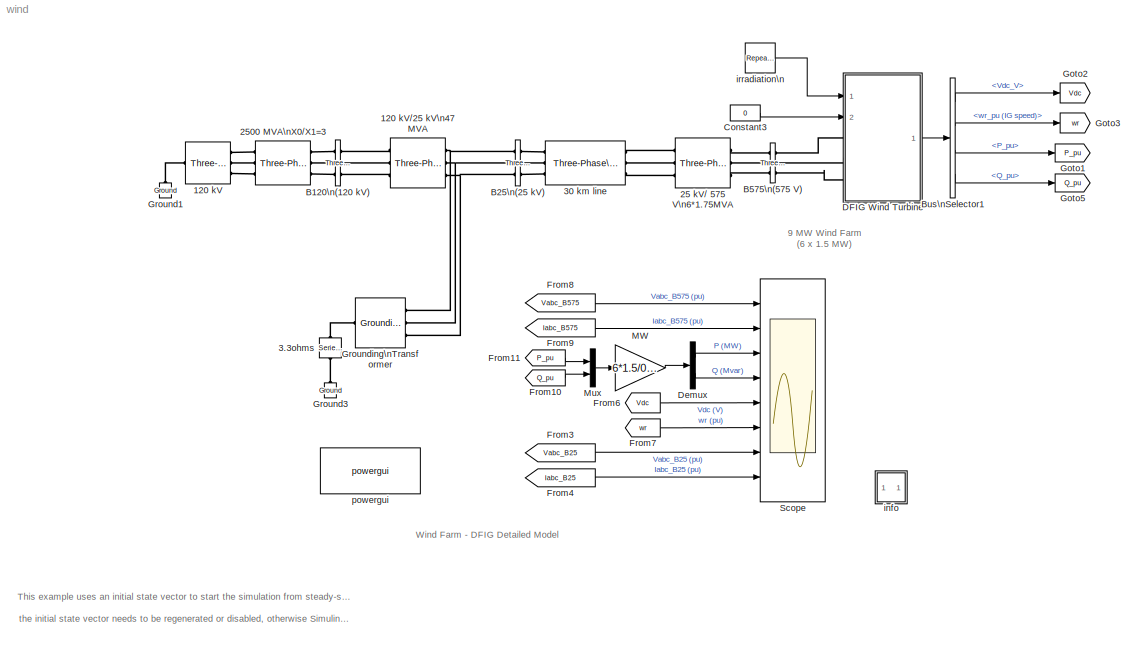
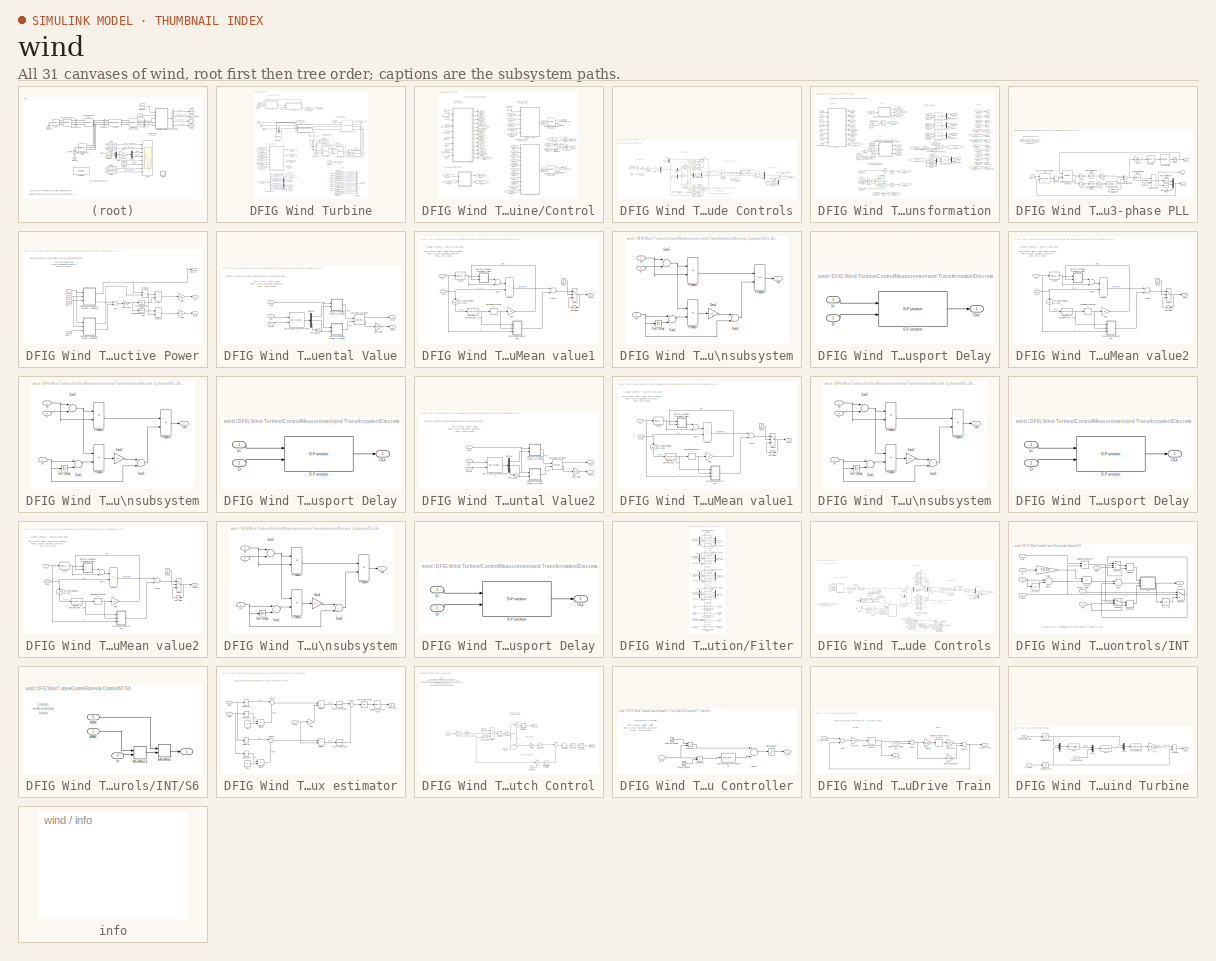
[diagram: thumbnail index - all 31 canvases of the model, root first then tree order]
MODEL wind
KIND model
CONFIG InitFcn = xInitial = init_power_wind_dfig_det;\nTs=5e-6;
CONFIG PreLoadFcn = Ts=5e-6;
BLOCK [Reference] 120 kV  REF=powerlib/Electrical\nSources/Three-Phase\nProgrammable\nVoltage Source
  Amplitudes = [1 0.5 1.0]
  BusType = swing
  HarmonicA = [1 -0.1 0 2]
  HarmonicB = [2 0.15 35 2]*0
  HarmonicGeneration = off
  Ports = [0, 0, 0, 0, 0, 1, 3]
  PositiveSequence = [120e3 0 50]
  Pref = 0
  Qmax = inf
  Qmin = -inf
  Qref = 0
  SID = 1
  SourceBlock = powerlib/Electrical\nSources/Three-Phase\nProgrammable\nVoltage Source
  SourceProductBaseCode = PS
  SourceProductName = Simscape Electrical
  SourceType = Three-Phase Programmable Voltage Source
  TimeValues = [0 0.03 0.13]
  Timing = [0.1  2]
  VariationEntity = Amplitude
  VariationFrequency = 2
  VariationMagnitude = 0.3
  VariationPhaseA = off
  VariationRate = 10
  VariationStep = -0.2
  VariationTiming = [0.05 0.05+5/60]
  VariationType = Table of time-amplitude pairs
  VariationTypeAlt = Step
BLOCK [Reference] 120 kV//25 kV\n47 MVA  REF=powerlib/Elements/Three-Phase\nTransformer\n(Two Windings)
  AttributesFormatString = \\n
  BreakLoop = off
  CoreType = Three single-phase transformers
  DataFile = 'basic_model'
  DataType = off
  DiscreteSolver = Trapezoidal iterative
  Hysteresis = off
  InitialFluxes = [ 0.8 , -0.8 , 0.7 ]
  L0 = 0.5
  Lm = 500
  Measurements = None
  NominalPower = [47e6 60 ]
  Ports = [0, 0, 0, 0, 0, 3, 3]
  Rm = 500
  SID = 2
  Saturation = [ 0,0  ;  0.005,1.2  ;  1.0,1.4 ]
  SetInitialFlux = off
  SetSaturation = off
  SourceBlock = powerlib/Elements/Three-Phase\nTransformer\n(Two Windings)
  SourceProductBaseCode = PS
  SourceProductName = Simscape Electrical
  SourceType = Three-Phase Transformer (Two Windings)
  TransfoNumber = 0
  UNITS = pu
  Winding1 = [ 120e3  0.08/30   0.08 ]
  Winding1Connection = Yg
  Winding2 = [ 25e3  0.08/30  0.08]
  Winding2Connection = Delta (D1)
BLOCK [Reference] 25 kV// 575 V\n6*1.75MVA  REF=powerlib/Elements/Three-Phase\nTransformer\n(Two Windings)
  AttributesFormatString = \\n
  BreakLoop = off
  CoreType = Three single-phase transformers
  DataFile = 'hysteresis'
  DataType = off
  DiscreteSolver = Trapezoidal iterative
  Hysteresis = off
  InitialFluxes = [ 0.8 , -0.8 , 0.7 ]
  L0 = 0.5
  Lm = inf
  Measurements = None
  NominalPower = [1.75e6*6  60]
  Ports = [0, 0, 0, 0, 0, 3, 3]
  Rm = 500
  SID = 3
  Saturation = [ 0,0 ; 0.0024,1.2 ; 1.0,1.52 ]
  SetInitialFlux = off
  SetSaturation = off
  SourceBlock = powerlib/Elements/Three-Phase\nTransformer\n(Two Windings)
  SourceProductBaseCode = PS
  SourceProductName = Simscape Electrical
  SourceType = Three-Phase Transformer (Two Windings)
  TransfoNumber = 0
  UNITS = pu
  Winding1 = [25e3 , 0.025/30 , 0.025]
  Winding1Connection = Delta (D11)
  Winding2 = [ 575, 0.025/30 , 0.025]
  Winding2Connection = Yg
BLOCK [Reference] 2500 MVA\nX0//X1=3  REF=powerlib/Elements/Three-Phase\nMutual Inductance\nZ1-Z0
  AttributesFormatString = \\n
  LConnTagsString = a|b|c
  Ports = [0, 0, 0, 0, 0, 3, 3]
  PositiveSequence = [0.1  1.0/(2*pi*60)] *120e3^2/2500e6
  RConnTagsString = A|B|C
  SID = 4
  SourceBlock = powerlib/Elements/Three-Phase\nMutual Inductance\nZ1-Z0
  SourceProductBaseCode = PS
  SourceProductName = Simscape Electrical
  SourceType = Three-Phase Mutual Inductance Z1-Z0
  ZeroSequence = [0.3  3.0/(2*pi*60)] *120e3^2/2500e6
BLOCK [Reference] 3.3ohms   REF=powerlib/Elements/Series RLC Branch
  BranchType = R
  Capacitance = []
  Inductance = []
  InitialCurrent = 0
  InitialVoltage = 0
  LConnTagsString = __new0
  Measurements = None
  Ports = [0, 0, 0, 0, 0, 1, 1]
  RConnTagsString = __new0
  Resistance = 3.3
  SID = 5
  SetiL0 = off
  Setx0 = off
  SourceBlock = powerlib/Elements/Series RLC Branch
  SourceProductBaseCode = PS
  SourceProductName = Simscape Electrical
  SourceType = Series RLC Branch
BLOCK [Reference] 30 km line  REF=powerlib/Elements/Three-Phase\nPI Section Line
  AttributesFormatString = \\n
  Capacitances = [11.33e-009 5.01e-009]
  Frequency = 60
  Inductances = [1.05e-3 3.32e-3]
  LConnTagsString = a|b|c
  Length = 30
  Ports = [0, 0, 0, 0, 0, 3, 3]
  RConnTagsString = A|B|C
  Resistances = [0.1153 0.413]
  SID = 6
  SourceBlock = powerlib/Elements/Three-Phase\nPI Section Line
  SourceProductBaseCode = PS
  SourceProductName = Simscape Electrical
  SourceType = Three-Phase PI Section Line
BLOCK [Reference] B120\n(120 kV)  REF=powerlib/Measurements/Three-Phase\nV-I Measurement
  CurrentMeasurement = no
  Ipu = off
  LabelI = Iabc_B120
  LabelV = Vabc_B120
  OutputType = Complex
  PSBequivalent = 0
  Pbase = 100e6
  PhasorSimulation = off
  Ports = [0, 0, 0, 0, 0, 3, 3]
  SID = 7
  SetLabelI = on
  SetLabelV = off
  SourceBlock = powerlib/Measurements/Three-Phase\nV-I Measurement
  SourceProductBaseCode = PS
  SourceProductName = Simscape Electrical
  SourceType = Three-Phase VI Measurement
  Vbase = 120e3
  VoltageMeasurement = no
  Vpu = off
  VpuLL = off
BLOCK [Reference] B25\n(25 kV)  REF=powerlib/Measurements/Three-Phase\nV-I Measurement
  CurrentMeasurement = yes
  Ipu = on
  LabelI = Iabc_B25
  LabelV = Vabc_B25
  OutputType = Complex
  PSBequivalent = 0
  Pbase = 10e6
  PhasorSimulation = off
  Ports = [0, 0, 0, 0, 0, 3, 3]
  SID = 8
  SetLabelI = on
  SetLabelV = on
  SourceBlock = powerlib/Measurements/Three-Phase\nV-I Measurement
  SourceProductBaseCode = PS
  SourceProductName = Simscape Electrical
  SourceType = Three-Phase VI Measurement
  Vbase = 25e3
  VoltageMeasurement = phase-to-ground
  Vpu = on
  VpuLL = off
BLOCK [Reference] B575\n(575 V)  REF=powerlib/Measurements/Three-Phase\nV-I Measurement
  CurrentMeasurement = yes
  Ipu = on
  LabelI = Iabc_B575
  LabelV = Vabc_B575
  OutputType = Complex
  PSBequivalent = 0
  Pbase = 6*1.5e6/0.9
  PhasorSimulation = off
  Ports = [0, 0, 0, 0, 0, 3, 3]
  SID = 9
  SetLabelI = on
  SetLabelV = on
  SourceBlock = powerlib/Measurements/Three-Phase\nV-I Measurement
  SourceProductBaseCode = PS
  SourceProductName = Simscape Electrical
  SourceType = Three-Phase VI Measurement
  Vbase = 575
  VoltageMeasurement = phase-to-ground
  Vpu = on
  VpuLL = off
BLOCK [BusSelector] Bus\nSelector1
  OutputAsBus = off
  OutputSignals = Vdc_V,wr_pu (IG speed),PQ_pu.P_pu,PQ_pu.Q_pu
  Ports = [1, 4]
  SID = 10
BLOCK [Constant] Constant3
  SID = 12
  Value = 0
BLOCK [SubSystem] DFIG Wind Turbine
  LoadFcn = %find_system(gcs,'FollowLinks', 'on', 'LookUnderMasks', 'all');
  Ports = [2, 1, 0, 0, 0, 3]
  RequestExecContextInheritance = off
  SID = 40
BLOCK [PMIOPort] DFIG Wind Turbine/A
  SID = 40:545
  Side = Left
  Tag = PMCPort
BLOCK [Reference] DFIG Wind Turbine/Asynchronous Machine\npu Units  REF=powerlib/Machines/Asynchronous Machine\npu Units
  Cage1 = [0.01909 0.0397]
  Cage2 = [0.01909 0.0397]
  InitialConditions = init
  IterativeDiscreteModel = Trapezoidal non iterative
  IterativeModel = Trapezoidal non iterative
  Lm = Lm
  LoadFlowParameters = 0
  MeasurementBus = off
  Mechanical = [H F p]
  MechanicalLoad = Torque Tm
  NominalParameters = [ Pnom Vnom Fnom ]
  Pmec = 0
  PolePairs = 3
  Ports = [1, 1, 0, 0, 0, 3, 3]
  PresetModel = No
  ReferenceFrame = Rotor
  Rotor = [ Rr Llr]
  RotorType = Wound
  SID = 40:3
  Saturation = [0.212,0.4201,0.8125,1.0979,1.4799,2.2457,3.2586,4.5763,6.4763 ;   0.5,0.7,0.9,1,1.1,1.2 ,1.3,1.4,1.5]
  ShowDetailedParameters = on
  SimulateSaturation = off
  SourceBlock = powerlib/Machines/Asynchronous Machine\npu Units
  SourceProductBaseCode = PS
  SourceProductName = Simscape Electrical
  SourceType = Asynchronous Machine
  Stator = [ Rs Lls]
  TsBlock = -1
  TsPowergui = 0
  Units = pu
BLOCK [PMIOPort] DFIG Wind Turbine/B
  Port = 2
  SID = 40:546
  Side = Left
  Tag = PMCPort
BLOCK [Reference] DFIG Wind Turbine/B1  REF=powerlib/Measurements/Three-Phase\nV-I Measurement
  CurrentMeasurement = no
  Ipu = on
  LabelI = Iabc_B1
  LabelV = Vabc
  OutputType = Complex
  PSBequivalent = 0
  Pbase = Pnom
  PhasorSimulation = off
  Ports = [0, 1, 0, 0, 0, 3, 3]
  SID = 40:4
  SetLabelI = on
  SetLabelV = off
  SourceBlock = powerlib/Measurements/Three-Phase\nV-I Measurement
  SourceProductBaseCode = PS
  SourceProductName = Simscape Electrical
  SourceType = Three-Phase VI Measurement
  Vbase = Vnom
  VoltageMeasurement = phase-to-ground
  Vpu = on
  VpuLL = off
BLOCK [Reference] DFIG Wind Turbine/B_grid_conv  REF=powerlib/Measurements/Three-Phase\nV-I Measurement
  CurrentMeasurement = yes
  Ipu = on
  LabelI = Iabc
  LabelV = Vabc_B1
  OutputType = Complex
  PSBequivalent = 0
  Pbase = Pnom
  PhasorSimulation = off
  Ports = [0, 2, 0, 0, 0, 3, 3]
  SID = 40:5
  SetLabelI = off
  SetLabelV = off
  SourceBlock = powerlib/Measurements/Three-Phase\nV-I Measurement
  SourceProductBaseCode = PS
  SourceProductName = Simscape Electrical
  SourceType = Three-Phase VI Measurement
  Vbase = Vnom
  VoltageMeasurement = phase-to-ground
  Vpu = on
  VpuLL = off
BLOCK [Reference] DFIG Wind Turbine/B_rotor_conv  REF=powerlib/Measurements/Three-Phase\nV-I Measurement
  CurrentMeasurement = no
  Ipu = on
  LabelI = Iabc
  LabelV = Vabc_B1
  OutputType = Complex
  PSBequivalent = 0
  Pbase = Pnom
  PhasorSimulation = off
  Ports = [0, 1, 0, 0, 0, 3, 3]
  SID = 40:6
  SetLabelI = off
  SetLabelV = off
  SourceBlock = powerlib/Measurements/Three-Phase\nV-I Measurement
  SourceProductBaseCode = PS
  SourceProductName = Simscape Electrical
  SourceType = Three-Phase VI Measurement
  Vbase = Vnom_r
  VoltageMeasurement = phase-to-phase
  Vpu = on
  VpuLL = off
BLOCK [BusCreator] DFIG Wind Turbine/Bus\nCreator
  DisplayOption = bar
  InheritFromInputs = on
  Inputs = 13
  Ports = [13, 1]
  SID = 40:7
BLOCK [BusSelector] DFIG Wind Turbine/Bus\nSelector
  OutputAsBus = off
  OutputSignals = Mechanical.Rotor speed (wm),Mechanical.Rotor angle thetam (rad),Stator measurements.Stator current is_a (pu),Stator measurements.Stator current is_b (pu),Stator measurements.Stator current is_c (pu),Rotor measurements.Rotor current ir_a (pu),Rotor measurements.Rotor current ir_b (pu),Rotor measurements.Rotor current ir_c (pu),Mechanical.Electromagnetic torque Te (pu)
  Ports = [1, 9]
  SID = 40:8
BLOCK [PMIOPort] DFIG Wind Turbine/C
  Port = 3
  SID = 40:547
  Side = Left
  Tag = PMCPort
BLOCK [Reference] DFIG Wind Turbine/C1  REF=powerlib/Elements/Series RLC Branch
  BranchType = C
  Capacitance = C_DClink
  Inductance = []
  InitialCurrent = 0
  InitialVoltage = Vdc_nom
  LConnTagsString = __new0
  Measurements = Branch voltage
  Ports = [0, 0, 0, 0, 0, 1, 1]
  RConnTagsString = __new0
  Resistance = []
  SID = 40:9
  SetiL0 = off
  Setx0 = on
  SourceBlock = powerlib/Elements/Series RLC Branch
  SourceProductBaseCode = PS
  SourceProductName = Simscape Electrical
  SourceType = Series RLC Branch
BLOCK [Reference] DFIG Wind Turbine/Choke   REF=powerlib/Elements/Three-Phase\nSeries RLC Branch
  AttributesFormatString = \\n
  BranchType = RL
  Capacitance = []
  Inductance = L_RL*Vnom^2/Pnom/(2*pi*Fnom)
  LConnTagsString = A|B|C
  Measurements = None
  Ports = [0, 0, 0, 0, 0, 3, 3]
  RConnTagsString = A|B|C
  Resistance = R_RL*Vnom^2/Pnom
  SID = 40:10
  SourceBlock = powerlib/Elements/Three-Phase\nSeries RLC Branch
  SourceProductBaseCode = PS
  SourceProductName = Simscape Electrical
  SourceType = Three-Phase Series RLC Branch
BLOCK [SubSystem] DFIG Wind Turbine/Control
  Ports = [8, 4]
  RequestExecContextInheritance = off
  SID = 40:11
BLOCK [BusCreator] DFIG Wind Turbine/Control/Bus\nCreator
  DisplayOption = bar
  InheritFromInputs = on
  Inputs = 2
  Ports = [2, 1]
  SID = 40:20
BLOCK [Constant] DFIG Wind Turbine/Control/Constant1
  SID = 40:21
  Value = 0
BLOCK [Reference] DFIG Wind Turbine/Control/Discrete 3-phase\nPWM Generator  REF=powerlib_extras/Discrete \nControl Blocks/Discrete 3-phase\nPWM Generator
  Fc = PWM_freq_grid
  Freq = 60
  ModulatingSignals = off
  ModulatorMode = Un-synchronized
  ModulatorType = 2-level
  Phase = 0
  Ports = [1, 2]
  SID = 40:22
  SourceBlock = powerlib_extras/Discrete \nControl Blocks/Discrete 3-phase\nPWM Generator
  SourceProductBaseCode = PS
  SourceProductName = Simscape Electrical
  SourceType = Discrete 3-phase PWM Generator (2- or 3-level)
  Ts = Ts
  m = 0.2
  nF = 27
BLOCK [Reference] DFIG Wind Turbine/Control/Discrete 3-phase\nPWM Generator   REF=powerlib_extras/Discrete \nControl Blocks/Discrete 3-phase\nPWM Generator
  Fc = PWM_freq_rotor
  Freq = 60
  ModulatingSignals = off
  ModulatorMode = Un-synchronized
  ModulatorType = 2-level
  Phase = 0
  Ports = [1, 2]
  SID = 40:23
  SourceBlock = powerlib_extras/Discrete \nControl Blocks/Discrete 3-phase\nPWM Generator
  SourceProductBaseCode = PS
  SourceProductName = Simscape Electrical
  SourceType = Discrete 3-phase PWM Generator (2- or 3-level)
  Ts = Ts
  m = 0.2
  nF = 27
BLOCK [From] DFIG Wind Turbine/Control/From1
  CloseFcn = tagdialog Close
  GotoTag = Idq_gc
  SID = 40:24
BLOCK [From] DFIG Wind Turbine/Control/From10
  CloseFcn = tagdialog Close
  GotoTag = r_angle_transform
  SID = 40:25
BLOCK [From] DFIG Wind Turbine/Control/From11
  CloseFcn = tagdialog Close
  GotoTag = Pitch_deg
  SID = 40:26
BLOCK [From] DFIG Wind Turbine/Control/From12
  CloseFcn = tagdialog Close
  GotoTag = wr
  SID = 40:27
BLOCK [From] DFIG Wind Turbine/Control/From13
  CloseFcn = tagdialog Close
  GotoTag = Qmeas
  SID = 40:28
BLOCK [From] DFIG Wind Turbine/Control/From14
  CloseFcn = tagdialog Close
  GotoTag = Vmeas
  SID = 40:29
BLOCK [From] DFIG Wind Turbine/Control/From16
  CloseFcn = tagdialog Close
  GotoTag = Pmeas
  SID = 40:30
BLOCK [From] DFIG Wind Turbine/Control/From17
  CloseFcn = tagdialog Close
  GotoTag = Qmeas
  SID = 40:31
BLOCK [From] DFIG Wind Turbine/Control/From18
  CloseFcn = tagdialog Close
  GotoTag = Vdqs
  SID = 40:32
BLOCK [From] DFIG Wind Turbine/Control/From2
  CloseFcn = tagdialog Close
  GotoTag = Vdc_meas_V
  SID = 40:33
BLOCK [From] DFIG Wind Turbine/Control/From20
  CloseFcn = tagdialog Close
  GotoTag = Idqr
  SID = 40:34
BLOCK [From] DFIG Wind Turbine/Control/From21
  CloseFcn = tagdialog Close
  GotoTag = Idqs
  SID = 40:35
BLOCK [From] DFIG Wind Turbine/Control/From22
  CloseFcn = tagdialog Close
  GotoTag = w
  SID = 40:36
BLOCK [From] DFIG Wind Turbine/Control/From23
  CloseFcn = tagdialog Close
  GotoTag = Pmeas
  SID = 40:37
BLOCK [From] DFIG Wind Turbine/Control/From3
  CloseFcn = tagdialog Close
  GotoTag = Vdc_meas_V
  SID = 40:38
BLOCK [From] DFIG Wind Turbine/Control/From4
  CloseFcn = tagdialog Close
  GotoTag = Vdqs
  SID = 40:39
BLOCK [From] DFIG Wind Turbine/Control/From5
  CloseFcn = tagdialog Close
  GotoTag = w
  SID = 40:40
BLOCK [From] DFIG Wind Turbine/Control/From6
  CloseFcn = tagdialog Close
  GotoTag = wr
  SID = 40:41
BLOCK [From] DFIG Wind Turbine/Control/From7
  CloseFcn = tagdialog Close
  GotoTag = Tem_cmd
  SID = 40:42
BLOCK [From] DFIG Wind Turbine/Control/From8
  CloseFcn = tagdialog Close
  GotoTag = Qref
  SID = 40:43
BLOCK [From] DFIG Wind Turbine/Control/From9
  CloseFcn = tagdialog Close
  GotoTag = Theta_PLL
  SID = 40:44
BLOCK [Goto] DFIG Wind Turbine/Control/Goto1
  GotoTag = Theta_PLL
  SID = 40:45
BLOCK [Goto] DFIG Wind Turbine/Control/Goto10
  GotoTag = Idq_gc
  SID = 40:46
BLOCK [Goto] DFIG Wind Turbine/Control/Goto11
  GotoTag = Idqs
  SID = 40:47
BLOCK [Goto] DFIG Wind Turbine/Control/Goto12
  GotoTag = Idqr
  SID = 40:48
BLOCK [Goto] DFIG Wind Turbine/Control/Goto13
  GotoTag = w
  SID = 40:49
BLOCK [Goto] DFIG Wind Turbine/Control/Goto14
  GotoTag = Vmeas
  SID = 40:50
BLOCK [Goto] DFIG Wind Turbine/Control/Goto15
  GotoTag = Pmeas
  SID = 40:51
BLOCK [Goto] DFIG Wind Turbine/Control/Goto16
  GotoTag = Pitch_deg
  SID = 40:52
BLOCK [Goto] DFIG Wind Turbine/Control/Goto17
  GotoTag = Qmeas
  SID = 40:53
BLOCK [Goto] DFIG Wind Turbine/Control/Goto2
  GotoTag = Vdc_meas_V
  SID = 40:54
BLOCK [Goto] DFIG Wind Turbine/Control/Goto4
  GotoTag = wr
  SID = 40:55
BLOCK [Goto] DFIG Wind Turbine/Control/Goto5
  GotoTag = Tem_cmd
  SID = 40:56
BLOCK [Goto] DFIG Wind Turbine/Control/Goto6
  GotoTag = Qref
  SID = 40:57
BLOCK [Goto] DFIG Wind Turbine/Control/Goto7
  GotoTag = r_angle_transform
  SID = 40:58
BLOCK [Goto] DFIG Wind Turbine/Control/Goto9
  GotoTag = Vdqs
  SID = 40:59
BLOCK [SubSystem] DFIG Wind Turbine/Control/Grid-side Controls
  Ports = [6, 1]
  RequestExecContextInheritance = off
  SID = 40:60
BLOCK [Gain] DFIG Wind Turbine/Control/Grid-side Controls/->pu
  Gain = 1/Vdc_nom
  OutDataTypeStr = Inherit: Inherit via internal rule
  ParamDataTypeStr = Inherit: Inherit via internal rule
  SID = 40:67
  SaturateOnIntegerOverflow = off
BLOCK [Saturate] DFIG Wind Turbine/Control/Grid-side Controls/0-Mod_index_max_grid
  InputPortMap = u0
  LowerLimit = 0
  Ports = [1, 1]
  SID = 40:68
  UpperLimit = Mod_index_max_grid
BLOCK [Saturate] DFIG Wind Turbine/Control/Grid-side Controls/Avoid division\nby zero
  InputPortMap = u0
  LowerLimit = 1e-6
  Ports = [1, 1]
  SID = 40:69
  UpperLimit = inf
BLOCK [Reference] DFIG Wind Turbine/Control/Grid-side Controls/Cartesian to\nPolar1  REF=simulink_extras/Transformations/Cartesian to\nPolar
  Ports = [2, 2]
  SID = 40:70
  SourceBlock = simulink_extras/Transformations/Cartesian to\nPolar
  SourceProductBaseCode = SL
  SourceProductName = Simulink
  SourceType = Cart2Polar
BLOCK [Constant] DFIG Wind Turbine/Control/Grid-side Controls/Constant1
  SID = 40:71
  Value = L_RL
BLOCK [Constant] DFIG Wind Turbine/Control/Grid-side Controls/Constant2
  SID = 40:72
  Value = L_RL
BLOCK [Constant] DFIG Wind Turbine/Control/Grid-side Controls/Constant3
  SID = 40:73
  Value = R_RL
BLOCK [Constant] DFIG Wind Turbine/Control/Grid-side Controls/Constant4
  SID = 40:74
  Value = R_RL
BLOCK [Demux] DFIG Wind Turbine/Control/Grid-side Controls/Demux
  Outputs = 2
  Ports = [1, 2]
  SID = 40:75
BLOCK [Demux] DFIG Wind Turbine/Control/Grid-side Controls/Demux1
  Outputs = 2
  Ports = [1, 2]
  SID = 40:76
BLOCK [Demux] DFIG Wind Turbine/Control/Grid-side Controls/Demux2
  Outputs = 2
  Ports = [1, 2]
  SID = 40:77
BLOCK [Demux] DFIG Wind Turbine/Control/Grid-side Controls/Demux3
  Outputs = 2
  Ports = [1, 2]
  SID = 40:78
BLOCK [Reference] DFIG Wind Turbine/Control/Grid-side Controls/Discrete\nPI Controller  REF=powerlib_extras/Discrete \nControl Blocks/Discrete\nPI Controller
  Init = 0
  Ki = Ki_dc
  Kp = Kp_dc
  Par_Limits = [1 -1]*Imax_grid_conv
  Ports = [1, 1]
  SID = 40:79
  SourceBlock = powerlib_extras/Discrete \nControl Blocks/Discrete\nPI Controller
  SourceProductBaseCode = PS
  SourceProductName = Simscape Electrical
  SourceType = Discrete PI Controller
  Ts = Ts
BLOCK [Reference] DFIG Wind Turbine/Control/Grid-side Controls/Discrete\nPI Controller1  REF=powerlib_extras/Discrete \nControl Blocks/Discrete\nPI Controller
  Init = 0
  Ki = Ki_grid_side_cur_reg
  Kp = Kp_grid_side_cur_reg
  Par_Limits = [1.0 -1.0] *Lim_grid_side_cur_reg
  Ports = [1, 1]
  SID = 40:80
  SourceBlock = powerlib_extras/Discrete \nControl Blocks/Discrete\nPI Controller
  SourceProductBaseCode = PS
  SourceProductName = Simscape Electrical
  SourceType = Discrete PI Controller
  Ts = Ts
BLOCK [From] DFIG Wind Turbine/Control/Grid-side Controls/From10
  CloseFcn = tagdialog Close
  GotoTag = id_ref
  SID = 40:81
BLOCK [From] DFIG Wind Turbine/Control/Grid-side Controls/From2
  CloseFcn = tagdialog Close
  GotoTag = w
  SID = 40:82
BLOCK [From] DFIG Wind Turbine/Control/Grid-side Controls/From3
  CloseFcn = tagdialog Close
  GotoTag = iq_ref
  SID = 40:83
BLOCK [From] DFIG Wind Turbine/Control/Grid-side Controls/From4
  CloseFcn = tagdialog Close
  GotoTag = iq_ref
  SID = 40:84
BLOCK [From] DFIG Wind Turbine/Control/Grid-side Controls/From5
  CloseFcn = tagdialog Close
  GotoTag = w
  SID = 40:85
BLOCK [From] DFIG Wind Turbine/Control/Grid-side Controls/From6
  CloseFcn = tagdialog Close
  GotoTag = id_ref
  SID = 40:86
BLOCK [From] DFIG Wind Turbine/Control/Grid-side Controls/From7
  CloseFcn = tagdialog Close
  GotoTag = Vdc
  SID = 40:87
BLOCK [Goto] DFIG Wind Turbine/Control/Grid-side Controls/Goto2
  GotoTag = iq_ref
  SID = 40:88
BLOCK [Goto] DFIG Wind Turbine/Control/Grid-side Controls/Goto3
  GotoTag = id_ref
  SID = 40:89
BLOCK [Goto] DFIG Wind Turbine/Control/Grid-side Controls/Goto4
  GotoTag = w
  SID = 40:90
BLOCK [Goto] DFIG Wind Turbine/Control/Grid-side Controls/Goto5
  GotoTag = Vdc
  SID = 40:91
BLOCK [Inport] DFIG Wind Turbine/Control/Grid-side Controls/Idq_gc
  IconDisplay = Port number
  Port = 2
  SID = 40:62
BLOCK [Inport] DFIG Wind Turbine/Control/Grid-side Controls/Iq_ref
  IconDisplay = Port number
  SID = 40:61
BLOCK [Constant] DFIG Wind Turbine/Control/Grid-side Controls/K
  SID = 40:92
  Value = Vnom*2*sqrt(2/3)
BLOCK [Mux] DFIG Wind Turbine/Control/Grid-side Controls/Mux
  DisplayOption = bar
  Inputs = 2
  Ports = [2, 1]
  SID = 40:93
BLOCK [Mux] DFIG Wind Turbine/Control/Grid-side Controls/Mux2
  DisplayOption = bar
  Inputs = 2
  Ports = [2, 1]
  SID = 40:94
BLOCK [Mux] DFIG Wind Turbine/Control/Grid-side Controls/Mux4
  DisplayOption = bar
  Inputs = 3
  Ports = [3, 1]
  SID = 40:95
BLOCK [Mux] DFIG Wind Turbine/Control/Grid-side Controls/Mux5
  DisplayOption = bar
  Inputs = 2
  Ports = [2, 1]
  SID = 40:96
BLOCK [Reference] DFIG Wind Turbine/Control/Grid-side Controls/Polar to\nCartesian  REF=simulink_extras/Transformations/Polar to\nCartesian
  Ports = [2, 2]
  SID = 40:97
  SourceBlock = simulink_extras/Transformations/Polar to\nCartesian
  SourceProductBaseCode = SL
  SourceProductName = Simulink
  SourceType = Polar2Cart
BLOCK [Product] DFIG Wind Turbine/Control/Grid-side Controls/Product
  Inputs = 3
  Ports = [3, 1]
  RndMeth = Floor
  SID = 40:98
BLOCK [Product] DFIG Wind Turbine/Control/Grid-side Controls/Product1
  Inputs = 3
  Ports = [3, 1]
  RndMeth = Floor
  SID = 40:99
BLOCK [Product] DFIG Wind Turbine/Control/Grid-side Controls/Product2
  Ports = [2, 1]
  RndMeth = Floor
  SID = 40:100
BLOCK [Product] DFIG Wind Turbine/Control/Grid-side Controls/Product3
  Ports = [2, 1]
  RndMeth = Floor
  SID = 40:101
BLOCK [Product] DFIG Wind Turbine/Control/Grid-side Controls/Product4
  Inputs = **/
  Ports = [3, 1]
  RndMeth = Floor
  SID = 40:102
BLOCK [Sum] DFIG Wind Turbine/Control/Grid-side Controls/Sum1
  IconShape = round
  Inputs = +-
  Ports = [2, 1]
  SID = 40:103
BLOCK [Sum] DFIG Wind Turbine/Control/Grid-side Controls/Sum2
  IconShape = round
  Inputs = -+|
  Ports = [2, 1]
  SID = 40:104
BLOCK [Sum] DFIG Wind Turbine/Control/Grid-side Controls/Sum3
  IconShape = round
  Inputs = ||++-
  Ports = [3, 1]
  SID = 40:105
BLOCK [Sum] DFIG Wind Turbine/Control/Grid-side Controls/Sum4
  IconShape = round
  Inputs = |+-
  Ports = [2, 1]
  SID = 40:106
BLOCK [Sum] DFIG Wind Turbine/Control/Grid-side Controls/Sum5
  IconShape = round
  Inputs = |--+
  Ports = [3, 1]
  SID = 40:107
BLOCK [Sum] DFIG Wind Turbine/Control/Grid-side Controls/Sum6
  IconShape = round
  Inputs = |-+
  Ports = [2, 1]
  SID = 40:108
BLOCK [Sum] DFIG Wind Turbine/Control/Grid-side Controls/Sum7
  IconShape = round
  Inputs = |+-
  Ports = [2, 1]
  SID = 40:109
BLOCK [Inport] DFIG Wind Turbine/Control/Grid-side Controls/Theta_PLL
  IconDisplay = Port number
  Port = 6
  SID = 40:66
BLOCK [Trigonometry] DFIG Wind Turbine/Control/Grid-side Controls/Trigonometric\nFunction2
  Ports = [1, 1]
  SID = 40:110
BLOCK [Trigonometry] DFIG Wind Turbine/Control/Grid-side Controls/Trigonometric\nFunction3
  Operator = cos
  Ports = [1, 1]
  SID = 40:111
BLOCK [Outport] DFIG Wind Turbine/Control/Grid-side Controls/Uctrl_grid_conv
  IconDisplay = Port number
  SID = 40:115
BLOCK [Constant] DFIG Wind Turbine/Control/Grid-side Controls/V0
  SID = 40:112
  Value = 0
BLOCK [Inport] DFIG Wind Turbine/Control/Grid-side Controls/Vdc
  IconDisplay = Port number
  Port = 5
  SID = 40:65
BLOCK [Constant] DFIG Wind Turbine/Control/Grid-side Controls/Vdc_ref (V)
  SID = 40:113
  Value = Vdc_nom
BLOCK [Inport] DFIG Wind Turbine/Control/Grid-side Controls/Vdqs
  IconDisplay = Port number
  Port = 4
  SID = 40:64
BLOCK [Reference] DFIG Wind Turbine/Control/Grid-side Controls/dq0_to_abc\nTransformation  REF=powerlib_extras/Measurements/dq0_to_abc\nTransformation
  Ports = [2, 1]
  SID = 40:114
  SourceBlock = powerlib_extras/Measurements/dq0_to_abc\nTransformation
  SourceProductBaseCode = PS
  SourceProductName = Simscape Electrical
  SourceType = dq0 to abc Transformation
BLOCK [Inport] DFIG Wind Turbine/Control/Grid-side Controls/w
  IconDisplay = Port number
  Port = 3
  SID = 40:63
BLOCK [Inport] DFIG Wind Turbine/Control/Iabc_grid_conv
  IconDisplay = Port number
  Port = 3
  SID = 40:14
BLOCK [Inport] DFIG Wind Turbine/Control/Iabc_rotor
  IconDisplay = Port number
  Port = 4
  SID = 40:15
BLOCK [Inport] DFIG Wind Turbine/Control/Iabc_stator
  IconDisplay = Port number
  Port = 2
  SID = 40:13
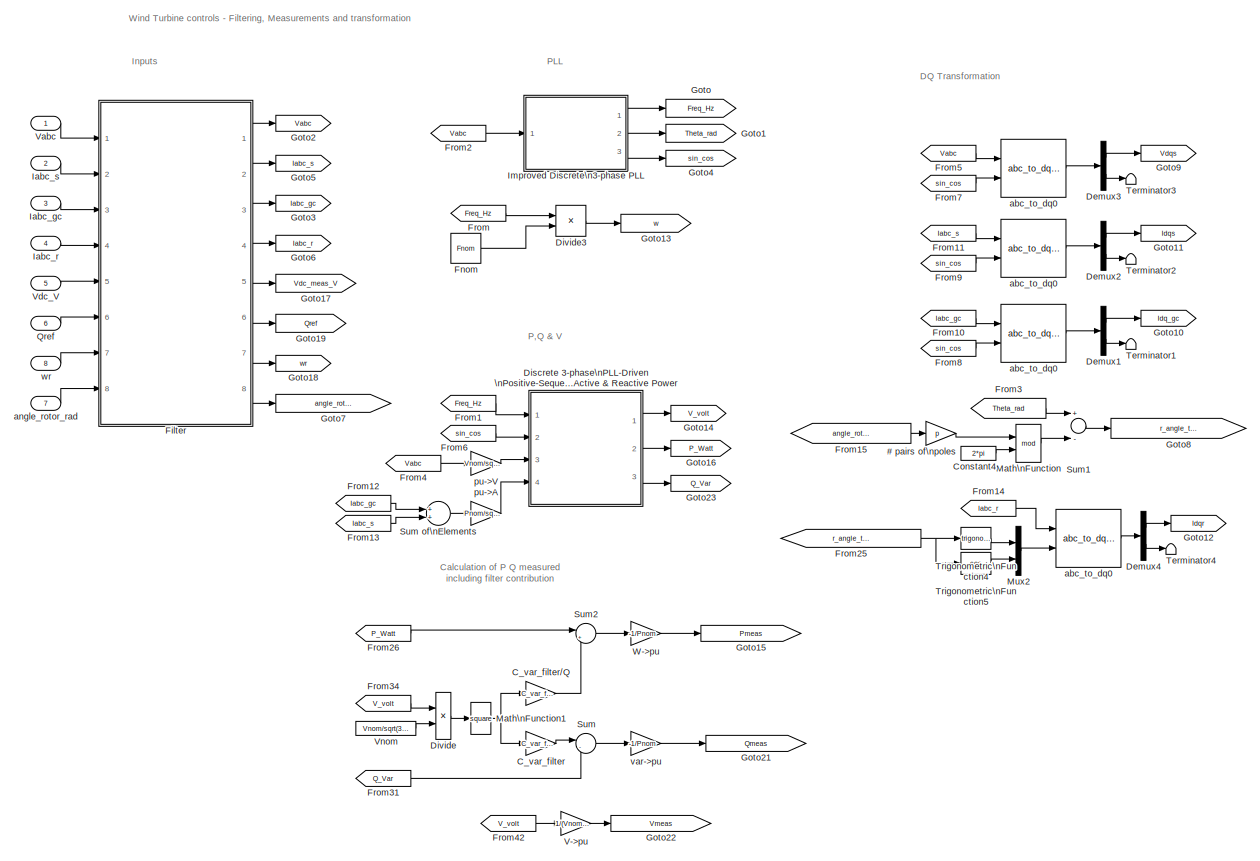
[diagram: DFIG Wind Turbine/Control/Measurement and Transformation - part 1/2, most of the canvas]
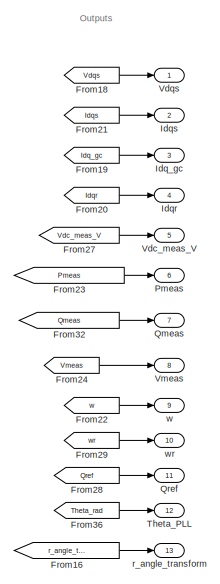
[diagram: DFIG Wind Turbine/Control/Measurement and Transformation - part 2/2, middle right region]
BLOCK [SubSystem] DFIG Wind Turbine/Control/Measurement and Transformation
  Ports = [8, 13]
  RequestExecContextInheritance = off
  SID = 40:116
BLOCK [Reference] DFIG Wind Turbine/Control/Measurement and Transformation/   abc_to_dq0      REF=powerlib_extras/Measurements/abc_to_dq0\nTransformation
  Ports = [2, 1]
  SID = 40:125
  SourceBlock = powerlib_extras/Measurements/abc_to_dq0\nTransformation
  SourceProductBaseCode = PS
  SourceProductName = Simscape Electrical
  SourceType = abc to dq0 Transformation
BLOCK [SubSystem] DFIG Wind Turbine/Control/Measurement and Transformation/ Improved Discrete\n3-phase PLL
  OpenFcn = power_openblockproxy();
  Ports = [1, 3]
  RequestExecContextInheritance = off
  SID = 40:126
BLOCK [Reference] DFIG Wind Turbine/Control/Measurement and Transformation/ Improved Discrete\n3-phase PLL/2nd-Order\nFilter  REF=powerlib_extras/Discrete \nControl Blocks/Discrete \n2nd-Order\nFilter
  FilterType = Lowpass
  Fo = 25
  Initialize = on
  PlotResponse = off
  Ports = [1, 1]
  SID = 40:126:2
  SourceBlock = powerlib_extras/Discrete \nControl Blocks/Discrete \n2nd-Order\nFilter
  SourceProductBaseCode = PS
  SourceProductName = Simscape Electrical
  SourceType = Discrete 2nd-Order Filter
  Ts = Ts
  Vac_Init = [0 0 Finit]
  Vdc_Init = Finit
  Zeta = 0.707
  param1 = [1 500 0.1]
BLOCK [Constant] DFIG Wind Turbine/Control/Measurement and Transformation/ Improved Discrete\n3-phase PLL/Constant1
  SID = 40:126:3
  Value = 2*pi*Finit
BLOCK [Constant] DFIG Wind Turbine/Control/Measurement and Transformation/ Improved Discrete\n3-phase PLL/Constant4
  SID = 40:126:4
  Value = 2*pi
BLOCK [DiscreteIntegrator] DFIG Wind Turbine/Control/Measurement and Transformation/ Improved Discrete\n3-phase PLL/Discrete-Time\nIntegrator
  ICPrevOutput = DiscIntNeverNeededParam
  ICPrevScaledInput = DiscIntNeverNeededParam
  Ports = [1, 1]
  SID = 40:126:5
  SampleTime = Ts
BLOCK [DiscreteIntegrator] DFIG Wind Turbine/Control/Measurement and Transformation/ Improved Discrete\n3-phase PLL/Discrete-Time\nIntegrator1
  ICPrevOutput = DiscIntNeverNeededParam
  ICPrevScaledInput = DiscIntNeverNeededParam
  LimitOutput = on
  LowerSaturationLimit = -2*pi*5
  Ports = [1, 1]
  SID = 40:126:6
  SampleTime = Ts
  UpperSaturationLimit = 2*pi*5
  gainval = 1
BLOCK [Outport] DFIG Wind Turbine/Control/Measurement and Transformation/ Improved Discrete\n3-phase PLL/Freq_Hz
  IconDisplay = Port number
  SID = 40:126:24
BLOCK [Gain] DFIG Wind Turbine/Control/Measurement and Transformation/ Improved Discrete\n3-phase PLL/Gain10
  Gain = 1/2/pi
  SID = 40:126:7
BLOCK [Gain] DFIG Wind Turbine/Control/Measurement and Transformation/ Improved Discrete\n3-phase PLL/Kp1
  Gain = Kp2
  SID = 40:126:8
BLOCK [Gain] DFIG Wind Turbine/Control/Measurement and Transformation/ Improved Discrete\n3-phase PLL/Kp2
  Gain = Ki2
  SID = 40:126:9
BLOCK [Gain] DFIG Wind Turbine/Control/Measurement and Transformation/ Improved Discrete\n3-phase PLL/Kp3
  Gain = Ki1
  SID = 40:126:10
BLOCK [Gain] DFIG Wind Turbine/Control/Measurement and Transformation/ Improved Discrete\n3-phase PLL/Kp4
  Gain = Kp1
  SID = 40:126:11
BLOCK [Math] DFIG Wind Turbine/Control/Measurement and Transformation/ Improved Discrete\n3-phase PLL/Math\nFunction
  Operator = mod
  Ports = [2, 1]
  SID = 40:126:12
BLOCK [Mux] DFIG Wind Turbine/Control/Measurement and Transformation/ Improved Discrete\n3-phase PLL/Mux2
  DisplayOption = bar
  Inputs = 2
  Ports = [2, 1]
  SID = 40:126:13
BLOCK [Reference] DFIG Wind Turbine/Control/Measurement and Transformation/ Improved Discrete\n3-phase PLL/Rate Limiter  REF=powerlib_extras/Discrete \nControl Blocks/Discrete\nRate Limiter
  F = -12
  Ports = [1, 1]
  R = 12
  SID = 40:126:14
  SourceBlock = powerlib_extras/Discrete \nControl Blocks/Discrete\nRate Limiter
  SourceProductBaseCode = PS
  SourceProductName = Simscape Electrical
  SourceType = Discrete Rate Limiter
  Ts = Ts
  Vinit = Finit
BLOCK [Selector] DFIG Wind Turbine/Control/Measurement and Transformation/ Improved Discrete\n3-phase PLL/Selector
  IndexOptions = Index vector (dialog)
  Indices = 2
  InputPortWidth = 3
  OutputSizes = 1
  Ports = [1, 1]
  SID = 40:126:15
BLOCK [Outport] DFIG Wind Turbine/Control/Measurement and Transformation/ Improved Discrete\n3-phase PLL/Sin_Cos
  IconDisplay = Port number
  Port = 3
  SID = 40:126:26
BLOCK [Sum] DFIG Wind Turbine/Control/Measurement and Transformation/ Improved Discrete\n3-phase PLL/Sum
  InputSameDT = off
  Inputs = +++
  OutDataTypeStr = Inherit: Inherit via internal rule
  Ports = [3, 1]
  SID = 40:126:16
  SaturateOnIntegerOverflow = off
BLOCK [Trigonometry] DFIG Wind Turbine/Control/Measurement and Transformation/ Improved Discrete\n3-phase PLL/Trigonometric\nFunction
  Ports = [1, 1]
  SID = 40:126:17
BLOCK [Trigonometry] DFIG Wind Turbine/Control/Measurement and Transformation/ Improved Discrete\n3-phase PLL/Trigonometric\nFunction1
  Operator = atan
  Ports = [1, 1]
  SID = 40:126:18
BLOCK [Trigonometry] DFIG Wind Turbine/Control/Measurement and Transformation/ Improved Discrete\n3-phase PLL/Trigonometric\nFunction2
  Operator = cos
  Ports = [1, 1]
  SID = 40:126:19
BLOCK [Trigonometry] DFIG Wind Turbine/Control/Measurement and Transformation/ Improved Discrete\n3-phase PLL/Trigonometric\nFunction3
  Operator = atan
  Ports = [1, 1]
  SID = 40:126:20
BLOCK [UnitDelay] DFIG Wind Turbine/Control/Measurement and Transformation/ Improved Discrete\n3-phase PLL/Unit Delay
  HasFrameUpgradeWarning = on
  InitialCondition = Finit
  SID = 40:126:21
  SampleTime = Ts
BLOCK [Inport] DFIG Wind Turbine/Control/Measurement and Transformation/ Improved Discrete\n3-phase PLL/Vabc_pu
  IconDisplay = Port number
  PortDimensions = 3
  SID = 40:126:1
BLOCK [Reference] DFIG Wind Turbine/Control/Measurement and Transformation/ Improved Discrete\n3-phase PLL/Variable Frequency\nMean value  REF=powerlib_extras/Discrete\nMeasurements/Discrete\nVariable Frequency\nMean value
  Finit = Finit
  Fmin = Fmin
  Ports = [2, 1]
  SID = 40:126:22
  SourceBlock = powerlib_extras/Discrete\nMeasurements/Discrete\nVariable Frequency\nMean value
  SourceProductBaseCode = PS
  SourceProductName = Simscape Electrical
  SourceType = Discrete Variable-Frequency Mean Value
  Ts = Ts
  Vinit = 0
BLOCK [Reference] DFIG Wind Turbine/Control/Measurement and Transformation/ Improved Discrete\n3-phase PLL/abc_to_dq0\nTransformation  REF=powerlib_extras/Measurements/abc_to_dq0\nTransformation
  Ports = [2, 1]
  SID = 40:126:23
  SourceBlock = powerlib_extras/Measurements/abc_to_dq0\nTransformation
  SourceProductBaseCode = PS
  SourceProductName = Simscape Electrical
  SourceType = abc to dq0 Transformation
BLOCK [Outport] DFIG Wind Turbine/Control/Measurement and Transformation/ Improved Discrete\n3-phase PLL/wt_rad
  IconDisplay = Port number
  Port = 2
  SID = 40:126:25
BLOCK [Gain] DFIG Wind Turbine/Control/Measurement and Transformation/# pairs of\npoles
  Gain = p
  SID = 40:127
BLOCK [Gain] DFIG Wind Turbine/Control/Measurement and Transformation/C_var_filter
  Gain = C_var_filter
  SID = 40:128
BLOCK [Gain] DFIG Wind Turbine/Control/Measurement and Transformation/C_var_filter//Q
  Gain = C_var_filter/Q_filter
  SID = 40:129
BLOCK [Constant] DFIG Wind Turbine/Control/Measurement and Transformation/Constant4
  SID = 40:130
  Value = 2*pi
BLOCK [Demux] DFIG Wind Turbine/Control/Measurement and Transformation/Demux1
  Outputs = [2 1]
  Ports = [1, 2]
  SID = 40:131
BLOCK [Demux] DFIG Wind Turbine/Control/Measurement and Transformation/Demux2
  Outputs = [2 1]
  Ports = [1, 2]
  SID = 40:132
BLOCK [Demux] DFIG Wind Turbine/Control/Measurement and Transformation/Demux3
  Outputs = [2 1]
  Ports = [1, 2]
  SID = 40:133
BLOCK [Demux] DFIG Wind Turbine/Control/Measurement and Transformation/Demux4
  Outputs = [2 1]
  Ports = [1, 2]
  SID = 40:134
BLOCK [SubSystem] DFIG Wind Turbine/Control/Measurement and Transformation/Discrete 3-phase\nPLL-Driven \nPositive-Sequence\nActive & Reactive Power
  OpenFcn = power_openblockproxy();
  Ports = [4, 3]
  RequestExecContextInheritance = off
  SID = 40:135
BLOCK [Gain] DFIG Wind Turbine/Control/Measurement and Transformation/Discrete 3-phase\nPLL-Driven \nPositive-Sequence\nActive & Reactive Power/Deg->Rad
  Gain = pi/180
  SID = 40:135:5
BLOCK [SubSystem] DFIG Wind Turbine/Control/Measurement and Transformation/Discrete 3-phase\nPLL-Driven \nPositive-Sequence\nActive & Reactive Power/Discrete 3-phase\nPLL-Driven\nPositive-Sequence\nFundamental Value
  OpenFcn = power_openblockproxy();
  Ports = [3, 2]
  RequestExecContextInheritance = off
  SID = 40:135:6
BLOCK [Reference] DFIG Wind Turbine/Control/Measurement and Transformation/Discrete 3-phase\nPLL-Driven \nPositive-Sequence\nActive & Reactive Power/Discrete 3-phase\nPLL-Driven\nPositive-Sequence\nFundamental Value/Cartesian to\nPolar  REF=simulink_extras/Transformations/Cartesian to\nPolar
  Ports = [2, 2]
  SID = 40:135:6:4
  SourceBlock = simulink_extras/Transformations/Cartesian to\nPolar
  SourceProductBaseCode = SL
  SourceProductName = Simulink
  SourceType = Cart2Polar
BLOCK [Demux] DFIG Wind Turbine/Control/Measurement and Transformation/Discrete 3-phase\nPLL-Driven \nPositive-Sequence\nActive & Reactive Power/Discrete 3-phase\nPLL-Driven\nPositive-Sequence\nFundamental Value/Demux
  Outputs = 3
  Ports = [1, 3]
  SID = 40:135:6:5
BLOCK [SubSystem] DFIG Wind Turbine/Control/Measurement and Transformation/Discrete 3-phase\nPLL-Driven \nPositive-Sequence\nActive & Reactive Power/Discrete 3-phase\nPLL-Driven\nPositive-Sequence\nFundamental Value/Discrete\nVariable Frequency\nMean value1
  OpenFcn = power_openblockproxy();
  Ports = [2, 1]
  RequestExecContextInheritance = off
  SID = 40:135:6:6
BLOCK [SubSystem] DFIG Wind Turbine/Control/Measurement and Transformation/Discrete 3-phase\nPLL-Driven \nPositive-Sequence\nActive & Reactive Power/Discrete 3-phase\nPLL-Driven\nPositive-Sequence\nFundamental Value/Discrete\nVariable Frequency\nMean value1/Correction\nsubsystem
  Ports = [3, 1]
  RequestExecContextInheritance = off
  SID = 40:135:6:6:3
BLOCK [Inport] DFIG Wind Turbine/Control/Measurement and Transformation/Discrete 3-phase\nPLL-Driven \nPositive-Sequence\nActive & Reactive Power/Discrete 3-phase\nPLL-Driven\nPositive-Sequence\nFundamental Value/Discrete\nVariable Frequency\nMean value1/Correction\nsubsystem/F
  IconDisplay = Port number
  Port = 2
  SID = 40:135:6:6:5
BLOCK [Gain] DFIG Wind Turbine/Control/Measurement and Transformation/Discrete 3-phase\nPLL-Driven \nPositive-Sequence\nActive & Reactive Power/Discrete 3-phase\nPLL-Driven\nPositive-Sequence\nFundamental Value/Discrete\nVariable Frequency\nMean value1/Correction\nsubsystem/Gain1
  Gain = 0.5
  SID = 40:135:6:6:7
BLOCK [Inport] DFIG Wind Turbine/Control/Measurement and Transformation/Discrete 3-phase\nPLL-Driven \nPositive-Sequence\nActive & Reactive Power/Discrete 3-phase\nPLL-Driven\nPositive-Sequence\nFundamental Value/Discrete\nVariable Frequency\nMean value1/Correction\nsubsystem/In
  IconDisplay = Port number
  Port = 3
  SID = 40:135:6:6:6
BLOCK [Inport] DFIG Wind Turbine/Control/Measurement and Transformation/Discrete 3-phase\nPLL-Driven \nPositive-Sequence\nActive & Reactive Power/Discrete 3-phase\nPLL-Driven\nPositive-Sequence\nFundamental Value/Discrete\nVariable Frequency\nMean value1/Correction\nsubsystem/N
  IconDisplay = Port number
  SID = 40:135:6:6:4
BLOCK [Outport] DFIG Wind Turbine/Control/Measurement and Transformation/Discrete 3-phase\nPLL-Driven \nPositive-Sequence\nActive & Reactive Power/Discrete 3-phase\nPLL-Driven\nPositive-Sequence\nFundamental Value/Discrete\nVariable Frequency\nMean value1/Correction\nsubsystem/Out
  IconDisplay = Port number
  SID = 40:135:6:6:15
BLOCK [Product] DFIG Wind Turbine/Control/Measurement and Transformation/Discrete 3-phase\nPLL-Driven \nPositive-Sequence\nActive & Reactive Power/Discrete 3-phase\nPLL-Driven\nPositive-Sequence\nFundamental Value/Discrete\nVariable Frequency\nMean value1/Correction\nsubsystem/Product2
  Inputs = */
  Ports = [2, 1]
  RndMeth = Floor
  SID = 40:135:6:6:8
BLOCK [Product] DFIG Wind Turbine/Control/Measurement and Transformation/Discrete 3-phase\nPLL-Driven \nPositive-Sequence\nActive & Reactive Power/Discrete 3-phase\nPLL-Driven\nPositive-Sequence\nFundamental Value/Discrete\nVariable Frequency\nMean value1/Correction\nsubsystem/Product4
  Inputs = **
  Ports = [2, 1]
  RndMeth = Floor
  SID = 40:135:6:6:9
BLOCK [Product] DFIG Wind Turbine/Control/Measurement and Transformation/Discrete 3-phase\nPLL-Driven \nPositive-Sequence\nActive & Reactive Power/Discrete 3-phase\nPLL-Driven\nPositive-Sequence\nFundamental Value/Discrete\nVariable Frequency\nMean value1/Correction\nsubsystem/Product5
  Inputs = **
  Ports = [2, 1]
  RndMeth = Floor
  SID = 40:135:6:6:10
BLOCK [Sum] DFIG Wind Turbine/Control/Measurement and Transformation/Discrete 3-phase\nPLL-Driven \nPositive-Sequence\nActive & Reactive Power/Discrete 3-phase\nPLL-Driven\nPositive-Sequence\nFundamental Value/Discrete\nVariable Frequency\nMean value1/Correction\nsubsystem/Sum1
  Inputs = +-
  Ports = [2, 1]
  SID = 40:135:6:6:11
BLOCK [Sum] DFIG Wind Turbine/Control/Measurement and Transformation/Discrete 3-phase\nPLL-Driven \nPositive-Sequence\nActive & Reactive Power/Discrete 3-phase\nPLL-Driven\nPositive-Sequence\nFundamental Value/Discrete\nVariable Frequency\nMean value1/Correction\nsubsystem/Sum4
  Ports = [2, 1]
  SID = 40:135:6:6:12
BLOCK [Sum] DFIG Wind Turbine/Control/Measurement and Transformation/Discrete 3-phase\nPLL-Driven \nPositive-Sequence\nActive & Reactive Power/Discrete 3-phase\nPLL-Driven\nPositive-Sequence\nFundamental Value/Discrete\nVariable Frequency\nMean value1/Correction\nsubsystem/Sum5
  Inputs = +-
  Ports = [2, 1]
  SID = 40:135:6:6:13
BLOCK [UnitDelay] DFIG Wind Turbine/Control/Measurement and Transformation/Discrete 3-phase\nPLL-Driven \nPositive-Sequence\nActive & Reactive Power/Discrete 3-phase\nPLL-Driven\nPositive-Sequence\nFundamental Value/Discrete\nVariable Frequency\nMean value1/Correction\nsubsystem/Unit Delay
  HasFrameUpgradeWarning = on
  SID = 40:135:6:6:14
  SampleTime = Ts
BLOCK [SubSystem] DFIG Wind Turbine/Control/Measurement and Transformation/Discrete 3-phase\nPLL-Driven \nPositive-Sequence\nActive & Reactive Power/Discrete 3-phase\nPLL-Driven\nPositive-Sequence\nFundamental Value/Discrete\nVariable Frequency\nMean value1/Discrete Variable\nTransport Delay
  Ports = [2, 1]
  RequestExecContextInheritance = off
  SID = 40:135:6:6:16
BLOCK [Inport] DFIG Wind Turbine/Control/Measurement and Transformation/Discrete 3-phase\nPLL-Driven \nPositive-Sequence\nActive & Reactive Power/Discrete 3-phase\nPLL-Driven\nPositive-Sequence\nFundamental Value/Discrete\nVariable Frequency\nMean value1/Discrete Variable\nTransport Delay/D
  IconDisplay = Port number
  Port = 2
  SID = 40:135:6:6:30
BLOCK [Inport] DFIG Wind Turbine/Control/Measurement and Transformation/Discrete 3-phase\nPLL-Driven \nPositive-Sequence\nActive & Reactive Power/Discrete 3-phase\nPLL-Driven\nPositive-Sequence\nFundamental Value/Discrete\nVariable Frequency\nMean value1/Discrete Variable\nTransport Delay/In
  IconDisplay = Port number
  SID = 40:135:6:6:29
BLOCK [Outport] DFIG Wind Turbine/Control/Measurement and Transformation/Discrete 3-phase\nPLL-Driven \nPositive-Sequence\nActive & Reactive Power/Discrete 3-phase\nPLL-Driven\nPositive-Sequence\nFundamental Value/Discrete\nVariable Frequency\nMean value1/Discrete Variable\nTransport Delay/Out
  IconDisplay = Port number
  SID = 40:135:6:6:32
BLOCK [S-Function] DFIG Wind Turbine/Control/Measurement and Transformation/Discrete 3-phase\nPLL-Driven \nPositive-Sequence\nActive & Reactive Power/Discrete 3-phase\nPLL-Driven\nPositive-Sequence\nFundamental Value/Discrete\nVariable Frequency\nMean value1/Discrete Variable\nTransport Delay/S-Function 
  EnableBusSupport = off
  FunctionName = discreteVariableTransportDelay
  Parameters = MaxDelay,Ts,InitialValue
  Ports = [2, 1]
  SFcnIsStateOwnerBlock = off
  SFunctionDeploymentMode = off
  SID = 40:135:6:6:31
BLOCK [Inport] DFIG Wind Turbine/Control/Measurement and Transformation/Discrete 3-phase\nPLL-Driven \nPositive-Sequence\nActive & Reactive Power/Discrete 3-phase\nPLL-Driven\nPositive-Sequence\nFundamental Value/Discrete\nVariable Frequency\nMean value1/Freq
  IconDisplay = Port number
  PortDimensions = 1
  SID = 40:135:6:6:1
BLOCK [Gain] DFIG Wind Turbine/Control/Measurement and Transformation/Discrete 3-phase\nPLL-Driven \nPositive-Sequence\nActive & Reactive Power/Discrete 3-phase\nPLL-Driven\nPositive-Sequence\nFundamental Value/Discrete\nVariable Frequency\nMean value1/Gain
  Gain = Ts
  SID = 40:135:6:6:17
BLOCK [Inport] DFIG Wind Turbine/Control/Measurement and Transformation/Discrete 3-phase\nPLL-Driven \nPositive-Sequence\nActive & Reactive Power/Discrete 3-phase\nPLL-Driven\nPositive-Sequence\nFundamental Value/Discrete\nVariable Frequency\nMean value1/In
  IconDisplay = Port number
  Port = 2
  PortDimensions = 1
  SID = 40:135:6:6:2
BLOCK [DiscreteIntegrator] DFIG Wind Turbine/Control/Measurement and Transformation/Discrete 3-phase\nPLL-Driven \nPositive-Sequence\nActive & Reactive Power/Discrete 3-phase\nPLL-Driven\nPositive-Sequence\nFundamental Value/Discrete\nVariable Frequency\nMean value1/Integ4
  ICPrevOutput = DiscIntNeverNeededParam
  ICPrevScaledInput = DiscIntNeverNeededParam
  IntegratorMethod = Integration: Trapezoidal
  Ports = [1, 1]
  SID = 40:135:6:6:18
  SampleTime = Ts
BLOCK [Outport] DFIG Wind Turbine/Control/Measurement and Transformation/Discrete 3-phase\nPLL-Driven \nPositive-Sequence\nActive & Reactive Power/Discrete 3-phase\nPLL-Driven\nPositive-Sequence\nFundamental Value/Discrete\nVariable Frequency\nMean value1/Mean
  IconDisplay = Port number
  SID = 40:135:6:6:28
BLOCK [Fcn] DFIG Wind Turbine/Control/Measurement and Transformation/Discrete 3-phase\nPLL-Driven \nPositive-Sequence\nActive & Reactive Power/Discrete 3-phase\nPLL-Driven\nPositive-Sequence\nFundamental Value/Discrete\nVariable Frequency\nMean value1/Number of samples\nper cycle
  Expr = 1/u[1]/Ts
  SID = 40:135:6:6:19
BLOCK [Product] DFIG Wind Turbine/Control/Measurement and Transformation/Discrete 3-phase\nPLL-Driven \nPositive-Sequence\nActive & Reactive Power/Discrete 3-phase\nPLL-Driven\nPositive-Sequence\nFundamental Value/Discrete\nVariable Frequency\nMean value1/Product
  Ports = [2, 1]
  RndMeth = Floor
  SID = 40:135:6:6:20
BLOCK [Rounding] DFIG Wind Turbine/Control/Measurement and Transformation/Discrete 3-phase\nPLL-Driven \nPositive-Sequence\nActive & Reactive Power/Discrete 3-phase\nPLL-Driven\nPositive-Sequence\nFundamental Value/Discrete\nVariable Frequency\nMean value1/Rounding\nFunction
  Operator = ceil
  SID = 40:135:6:6:21
BLOCK [Step] DFIG Wind Turbine/Control/Measurement and Transformation/Discrete 3-phase\nPLL-Driven \nPositive-Sequence\nActive & Reactive Power/Discrete 3-phase\nPLL-Driven\nPositive-Sequence\nFundamental Value/Discrete\nVariable Frequency\nMean value1/Step
  SID = 40:135:6:6:22
  SampleTime = Ts
  Time = 1/Finit
BLOCK [Sum] DFIG Wind Turbine/Control/Measurement and Transformation/Discrete 3-phase\nPLL-Driven \nPositive-Sequence\nActive & Reactive Power/Discrete 3-phase\nPLL-Driven\nPositive-Sequence\nFundamental Value/Discrete\nVariable Frequency\nMean value1/Sum5
  Ports = [2, 1]
  SID = 40:135:6:6:23
BLOCK [Sum] DFIG Wind Turbine/Control/Measurement and Transformation/Discrete 3-phase\nPLL-Driven \nPositive-Sequence\nActive & Reactive Power/Discrete 3-phase\nPLL-Driven\nPositive-Sequence\nFundamental Value/Discrete\nVariable Frequency\nMean value1/Sum7
  Inputs = -+
  Ports = [2, 1]
  SID = 40:135:6:6:24
BLOCK [Switch] DFIG Wind Turbine/Control/Measurement and Transformation/Discrete 3-phase\nPLL-Driven \nPositive-Sequence\nActive & Reactive Power/Discrete 3-phase\nPLL-Driven\nPositive-Sequence\nFundamental Value/Discrete\nVariable Frequency\nMean value1/Switch
  SID = 40:135:6:6:25
  SaturateOnIntegerOverflow = off
  Threshold = 0.5
BLOCK [Saturate] DFIG Wind Turbine/Control/Measurement and Transformation/Discrete 3-phase\nPLL-Driven \nPositive-Sequence\nActive & Reactive Power/Discrete 3-phase\nPLL-Driven\nPositive-Sequence\nFundamental Value/Discrete\nVariable Frequency\nMean value1/To avoid\ndivision by zero
  InputPortMap = u0
  LowerLimit = 1e-6
  Ports = [1, 1]
  SID = 40:135:6:6:26
  UpperLimit = 1e6
BLOCK [UnitDelay] DFIG Wind Turbine/Control/Measurement and Transformation/Discrete 3-phase\nPLL-Driven \nPositive-Sequence\nActive & Reactive Power/Discrete 3-phase\nPLL-Driven\nPositive-Sequence\nFundamental Value/Discrete\nVariable Frequency\nMean value1/Unit Delay
  HasFrameUpgradeWarning = on
  InitialCondition = Vinit
  SID = 40:135:6:6:27
  SampleTime = Ts
BLOCK [SubSystem] DFIG Wind Turbine/Control/Measurement and Transformation/Discrete 3-phase\nPLL-Driven \nPositive-Sequence\nActive & Reactive Power/Discrete 3-phase\nPLL-Driven\nPositive-Sequence\nFundamental Value/Discrete\nVariable Frequency\nMean value2
  OpenFcn = power_openblockproxy();
  Ports = [2, 1]
  RequestExecContextInheritance = off
  SID = 40:135:6:7
BLOCK [SubSystem] DFIG Wind Turbine/Control/Measurement and Transformation/Discrete 3-phase\nPLL-Driven \nPositive-Sequence\nActive & Reactive Power/Discrete 3-phase\nPLL-Driven\nPositive-Sequence\nFundamental Value/Discrete\nVariable Frequency\nMean value2/Correction\nsubsystem
  Ports = [3, 1]
  RequestExecContextInheritance = off
  SID = 40:135:6:7:3
BLOCK [Inport] DFIG Wind Turbine/Control/Measurement and Transformation/Discrete 3-phase\nPLL-Driven \nPositive-Sequence\nActive & Reactive Power/Discrete 3-phase\nPLL-Driven\nPositive-Sequence\nFundamental Value/Discrete\nVariable Frequency\nMean value2/Correction\nsubsystem/F
  IconDisplay = Port number
  Port = 2
  SID = 40:135:6:7:5
BLOCK [Gain] DFIG Wind Turbine/Control/Measurement and Transformation/Discrete 3-phase\nPLL-Driven \nPositive-Sequence\nActive & Reactive Power/Discrete 3-phase\nPLL-Driven\nPositive-Sequence\nFundamental Value/Discrete\nVariable Frequency\nMean value2/Correction\nsubsystem/Gain1
  Gain = 0.5
  SID = 40:135:6:7:7
BLOCK [Inport] DFIG Wind Turbine/Control/Measurement and Transformation/Discrete 3-phase\nPLL-Driven \nPositive-Sequence\nActive & Reactive Power/Discrete 3-phase\nPLL-Driven\nPositive-Sequence\nFundamental Value/Discrete\nVariable Frequency\nMean value2/Correction\nsubsystem/In
  IconDisplay = Port number
  Port = 3
  SID = 40:135:6:7:6
BLOCK [Inport] DFIG Wind Turbine/Control/Measurement and Transformation/Discrete 3-phase\nPLL-Driven \nPositive-Sequence\nActive & Reactive Power/Discrete 3-phase\nPLL-Driven\nPositive-Sequence\nFundamental Value/Discrete\nVariable Frequency\nMean value2/Correction\nsubsystem/N
  IconDisplay = Port number
  SID = 40:135:6:7:4
BLOCK [Outport] DFIG Wind Turbine/Control/Measurement and Transformation/Discrete 3-phase\nPLL-Driven \nPositive-Sequence\nActive & Reactive Power/Discrete 3-phase\nPLL-Driven\nPositive-Sequence\nFundamental Value/Discrete\nVariable Frequency\nMean value2/Correction\nsubsystem/Out
  IconDisplay = Port number
  SID = 40:135:6:7:15
BLOCK [Product] DFIG Wind Turbine/Control/Measurement and Transformation/Discrete 3-phase\nPLL-Driven \nPositive-Sequence\nActive & Reactive Power/Discrete 3-phase\nPLL-Driven\nPositive-Sequence\nFundamental Value/Discrete\nVariable Frequency\nMean value2/Correction\nsubsystem/Product2
  Inputs = */
  Ports = [2, 1]
  RndMeth = Floor
  SID = 40:135:6:7:8
BLOCK [Product] DFIG Wind Turbine/Control/Measurement and Transformation/Discrete 3-phase\nPLL-Driven \nPositive-Sequence\nActive & Reactive Power/Discrete 3-phase\nPLL-Driven\nPositive-Sequence\nFundamental Value/Discrete\nVariable Frequency\nMean value2/Correction\nsubsystem/Product4
  Inputs = **
  Ports = [2, 1]
  RndMeth = Floor
  SID = 40:135:6:7:9
BLOCK [Product] DFIG Wind Turbine/Control/Measurement and Transformation/Discrete 3-phase\nPLL-Driven \nPositive-Sequence\nActive & Reactive Power/Discrete 3-phase\nPLL-Driven\nPositive-Sequence\nFundamental Value/Discrete\nVariable Frequency\nMean value2/Correction\nsubsystem/Product5
  Inputs = **
  Ports = [2, 1]
  RndMeth = Floor
  SID = 40:135:6:7:10
BLOCK [Sum] DFIG Wind Turbine/Control/Measurement and Transformation/Discrete 3-phase\nPLL-Driven \nPositive-Sequence\nActive & Reactive Power/Discrete 3-phase\nPLL-Driven\nPositive-Sequence\nFundamental Value/Discrete\nVariable Frequency\nMean value2/Correction\nsubsystem/Sum1
  Inputs = +-
  Ports = [2, 1]
  SID = 40:135:6:7:11
BLOCK [Sum] DFIG Wind Turbine/Control/Measurement and Transformation/Discrete 3-phase\nPLL-Driven \nPositive-Sequence\nActive & Reactive Power/Discrete 3-phase\nPLL-Driven\nPositive-Sequence\nFundamental Value/Discrete\nVariable Frequency\nMean value2/Correction\nsubsystem/Sum4
  Ports = [2, 1]
  SID = 40:135:6:7:12
BLOCK [Sum] DFIG Wind Turbine/Control/Measurement and Transformation/Discrete 3-phase\nPLL-Driven \nPositive-Sequence\nActive & Reactive Power/Discrete 3-phase\nPLL-Driven\nPositive-Sequence\nFundamental Value/Discrete\nVariable Frequency\nMean value2/Correction\nsubsystem/Sum5
  Inputs = +-
  Ports = [2, 1]
  SID = 40:135:6:7:13
BLOCK [UnitDelay] DFIG Wind Turbine/Control/Measurement and Transformation/Discrete 3-phase\nPLL-Driven \nPositive-Sequence\nActive & Reactive Power/Discrete 3-phase\nPLL-Driven\nPositive-Sequence\nFundamental Value/Discrete\nVariable Frequency\nMean value2/Correction\nsubsystem/Unit Delay
  HasFrameUpgradeWarning = on
  SID = 40:135:6:7:14
  SampleTime = Ts
BLOCK [SubSystem] DFIG Wind Turbine/Control/Measurement and Transformation/Discrete 3-phase\nPLL-Driven \nPositive-Sequence\nActive & Reactive Power/Discrete 3-phase\nPLL-Driven\nPositive-Sequence\nFundamental Value/Discrete\nVariable Frequency\nMean value2/Discrete Variable\nTransport Delay
  Ports = [2, 1]
  RequestExecContextInheritance = off
  SID = 40:135:6:7:16
BLOCK [Inport] DFIG Wind Turbine/Control/Measurement and Transformation/Discrete 3-phase\nPLL-Driven \nPositive-Sequence\nActive & Reactive Power/Discrete 3-phase\nPLL-Driven\nPositive-Sequence\nFundamental Value/Discrete\nVariable Frequency\nMean value2/Discrete Variable\nTransport Delay/D
  IconDisplay = Port number
  Port = 2
  SID = 40:135:6:7:30
BLOCK [Inport] DFIG Wind Turbine/Control/Measurement and Transformation/Discrete 3-phase\nPLL-Driven \nPositive-Sequence\nActive & Reactive Power/Discrete 3-phase\nPLL-Driven\nPositive-Sequence\nFundamental Value/Discrete\nVariable Frequency\nMean value2/Discrete Variable\nTransport Delay/In
  IconDisplay = Port number
  SID = 40:135:6:7:29
BLOCK [Outport] DFIG Wind Turbine/Control/Measurement and Transformation/Discrete 3-phase\nPLL-Driven \nPositive-Sequence\nActive & Reactive Power/Discrete 3-phase\nPLL-Driven\nPositive-Sequence\nFundamental Value/Discrete\nVariable Frequency\nMean value2/Discrete Variable\nTransport Delay/Out
  IconDisplay = Port number
  SID = 40:135:6:7:32
BLOCK [S-Function] DFIG Wind Turbine/Control/Measurement and Transformation/Discrete 3-phase\nPLL-Driven \nPositive-Sequence\nActive & Reactive Power/Discrete 3-phase\nPLL-Driven\nPositive-Sequence\nFundamental Value/Discrete\nVariable Frequency\nMean value2/Discrete Variable\nTransport Delay/S-Function 
  EnableBusSupport = off
  FunctionName = discreteVariableTransportDelay
  Parameters = MaxDelay,Ts,InitialValue
  Ports = [2, 1]
  SFcnIsStateOwnerBlock = off
  SFunctionDeploymentMode = off
  SID = 40:135:6:7:31
BLOCK [Inport] DFIG Wind Turbine/Control/Measurement and Transformation/Discrete 3-phase\nPLL-Driven \nPositive-Sequence\nActive & Reactive Power/Discrete 3-phase\nPLL-Driven\nPositive-Sequence\nFundamental Value/Discrete\nVariable Frequency\nMean value2/Freq
  IconDisplay = Port number
  PortDimensions = 1
  SID = 40:135:6:7:1
BLOCK [Gain] DFIG Wind Turbine/Control/Measurement and Transformation/Discrete 3-phase\nPLL-Driven \nPositive-Sequence\nActive & Reactive Power/Discrete 3-phase\nPLL-Driven\nPositive-Sequence\nFundamental Value/Discrete\nVariable Frequency\nMean value2/Gain
  Gain = Ts
  SID = 40:135:6:7:17
BLOCK [Inport] DFIG Wind Turbine/Control/Measurement and Transformation/Discrete 3-phase\nPLL-Driven \nPositive-Sequence\nActive & Reactive Power/Discrete 3-phase\nPLL-Driven\nPositive-Sequence\nFundamental Value/Discrete\nVariable Frequency\nMean value2/In
  IconDisplay = Port number
  Port = 2
  PortDimensions = 1
  SID = 40:135:6:7:2
BLOCK [DiscreteIntegrator] DFIG Wind Turbine/Control/Measurement and Transformation/Discrete 3-phase\nPLL-Driven \nPositive-Sequence\nActive & Reactive Power/Discrete 3-phase\nPLL-Driven\nPositive-Sequence\nFundamental Value/Discrete\nVariable Frequency\nMean value2/Integ4
  ICPrevOutput = DiscIntNeverNeededParam
  ICPrevScaledInput = DiscIntNeverNeededParam
  IntegratorMethod = Integration: Trapezoidal
  Ports = [1, 1]
  SID = 40:135:6:7:18
  SampleTime = Ts
BLOCK [Outport] DFIG Wind Turbine/Control/Measurement and Transformation/Discrete 3-phase\nPLL-Driven \nPositive-Sequence\nActive & Reactive Power/Discrete 3-phase\nPLL-Driven\nPositive-Sequence\nFundamental Value/Discrete\nVariable Frequency\nMean value2/Mean
  IconDisplay = Port number
  SID = 40:135:6:7:28
BLOCK [Fcn] DFIG Wind Turbine/Control/Measurement and Transformation/Discrete 3-phase\nPLL-Driven \nPositive-Sequence\nActive & Reactive Power/Discrete 3-phase\nPLL-Driven\nPositive-Sequence\nFundamental Value/Discrete\nVariable Frequency\nMean value2/Number of samples\nper cycle
  Expr = 1/u[1]/Ts
  SID = 40:135:6:7:19
BLOCK [Product] DFIG Wind Turbine/Control/Measurement and Transformation/Discrete 3-phase\nPLL-Driven \nPositive-Sequence\nActive & Reactive Power/Discrete 3-phase\nPLL-Driven\nPositive-Sequence\nFundamental Value/Discrete\nVariable Frequency\nMean value2/Product
  Ports = [2, 1]
  RndMeth = Floor
  SID = 40:135:6:7:20
BLOCK [Rounding] DFIG Wind Turbine/Control/Measurement and Transformation/Discrete 3-phase\nPLL-Driven \nPositive-Sequence\nActive & Reactive Power/Discrete 3-phase\nPLL-Driven\nPositive-Sequence\nFundamental Value/Discrete\nVariable Frequency\nMean value2/Rounding\nFunction
  Operator = ceil
  SID = 40:135:6:7:21
BLOCK [Step] DFIG Wind Turbine/Control/Measurement and Transformation/Discrete 3-phase\nPLL-Driven \nPositive-Sequence\nActive & Reactive Power/Discrete 3-phase\nPLL-Driven\nPositive-Sequence\nFundamental Value/Discrete\nVariable Frequency\nMean value2/Step
  SID = 40:135:6:7:22
  SampleTime = Ts
  Time = 1/Finit
BLOCK [Sum] DFIG Wind Turbine/Control/Measurement and Transformation/Discrete 3-phase\nPLL-Driven \nPositive-Sequence\nActive & Reactive Power/Discrete 3-phase\nPLL-Driven\nPositive-Sequence\nFundamental Value/Discrete\nVariable Frequency\nMean value2/Sum5
  Ports = [2, 1]
  SID = 40:135:6:7:23
BLOCK [Sum] DFIG Wind Turbine/Control/Measurement and Transformation/Discrete 3-phase\nPLL-Driven \nPositive-Sequence\nActive & Reactive Power/Discrete 3-phase\nPLL-Driven\nPositive-Sequence\nFundamental Value/Discrete\nVariable Frequency\nMean value2/Sum7
  Inputs = -+
  Ports = [2, 1]
  SID = 40:135:6:7:24
BLOCK [Switch] DFIG Wind Turbine/Control/Measurement and Transformation/Discrete 3-phase\nPLL-Driven \nPositive-Sequence\nActive & Reactive Power/Discrete 3-phase\nPLL-Driven\nPositive-Sequence\nFundamental Value/Discrete\nVariable Frequency\nMean value2/Switch
  SID = 40:135:6:7:25
  SaturateOnIntegerOverflow = off
  Threshold = 0.5
BLOCK [Saturate] DFIG Wind Turbine/Control/Measurement and Transformation/Discrete 3-phase\nPLL-Driven \nPositive-Sequence\nActive & Reactive Power/Discrete 3-phase\nPLL-Driven\nPositive-Sequence\nFundamental Value/Discrete\nVariable Frequency\nMean value2/To avoid\ndivision by zero
  InputPortMap = u0
  LowerLimit = 1e-6
  Ports = [1, 1]
  SID = 40:135:6:7:26
  UpperLimit = 1e6
BLOCK [UnitDelay] DFIG Wind Turbine/Control/Measurement and Transformation/Discrete 3-phase\nPLL-Driven \nPositive-Sequence\nActive & Reactive Power/Discrete 3-phase\nPLL-Driven\nPositive-Sequence\nFundamental Value/Discrete\nVariable Frequency\nMean value2/Unit Delay
  HasFrameUpgradeWarning = on
  InitialCondition = Vinit
  SID = 40:135:6:7:27
  SampleTime = Ts
BLOCK [Inport] DFIG Wind Turbine/Control/Measurement and Transformation/Discrete 3-phase\nPLL-Driven \nPositive-Sequence\nActive & Reactive Power/Discrete 3-phase\nPLL-Driven\nPositive-Sequence\nFundamental Value/Freq
  IconDisplay = Port number
  SID = 40:135:6:1
BLOCK [Outport] DFIG Wind Turbine/Control/Measurement and Transformation/Discrete 3-phase\nPLL-Driven \nPositive-Sequence\nActive & Reactive Power/Discrete 3-phase\nPLL-Driven\nPositive-Sequence\nFundamental Value/Mag
  IconDisplay = Port number
  SID = 40:135:6:11
BLOCK [Outport] DFIG Wind Turbine/Control/Measurement and Transformation/Discrete 3-phase\nPLL-Driven \nPositive-Sequence\nActive & Reactive Power/Discrete 3-phase\nPLL-Driven\nPositive-Sequence\nFundamental Value/Phase
  IconDisplay = Port number
  Port = 2
  SID = 40:135:6:12
BLOCK [Gain] DFIG Wind Turbine/Control/Measurement and Transformation/Discrete 3-phase\nPLL-Driven \nPositive-Sequence\nActive & Reactive Power/Discrete 3-phase\nPLL-Driven\nPositive-Sequence\nFundamental Value/Rad->Deg.
  Gain = 180/pi
  SID = 40:135:6:8
BLOCK [Inport] DFIG Wind Turbine/Control/Measurement and Transformation/Discrete 3-phase\nPLL-Driven \nPositive-Sequence\nActive & Reactive Power/Discrete 3-phase\nPLL-Driven\nPositive-Sequence\nFundamental Value/Sin_Cos
  IconDisplay = Port number
  Port = 2
  PortDimensions = 2
  SID = 40:135:6:2
BLOCK [Terminator] DFIG Wind Turbine/Control/Measurement and Transformation/Discrete 3-phase\nPLL-Driven \nPositive-Sequence\nActive & Reactive Power/Discrete 3-phase\nPLL-Driven\nPositive-Sequence\nFundamental Value/Terminator
  SID = 40:135:6:9
BLOCK [Inport] DFIG Wind Turbine/Control/Measurement and Transformation/Discrete 3-phase\nPLL-Driven \nPositive-Sequence\nActive & Reactive Power/Discrete 3-phase\nPLL-Driven\nPositive-Sequence\nFundamental Value/abc
  IconDisplay = Port number
  Port = 3
  PortDimensions = 3
  SID = 40:135:6:3
BLOCK [Reference] DFIG Wind Turbine/Control/Measurement and Transformation/Discrete 3-phase\nPLL-Driven \nPositive-Sequence\nActive & Reactive Power/Discrete 3-phase\nPLL-Driven\nPositive-Sequence\nFundamental Value/abc_to_dq0\nTransformation  REF=powerlib_extras/Measurements/abc_to_dq0\nTransformation
  Ports = [2, 1]
  SID = 40:135:6:10
  SourceBlock = powerlib_extras/Measurements/abc_to_dq0\nTransformation
  SourceProductBaseCode = PS
  SourceProductName = Simscape Electrical
  SourceType = abc to dq0 Transformation
BLOCK [SubSystem] DFIG Wind Turbine/Control/Measurement and Transformation/Discrete 3-phase\nPLL-Driven \nPositive-Sequence\nActive & Reactive Power/Discrete 3-phase\nPLL-Driven\nPositive-Sequence\nFundamental Value2
  OpenFcn = power_openblockproxy();
  Ports = [3, 2]
  RequestExecContextInheritance = off
  SID = 40:135:7
BLOCK [Reference] DFIG Wind Turbine/Control/Measurement and Transformation/Discrete 3-phase\nPLL-Driven \nPositive-Sequence\nActive & Reactive Power/Discrete 3-phase\nPLL-Driven\nPositive-Sequence\nFundamental Value2/Cartesian to\nPolar  REF=simulink_extras/Transformations/Cartesian to\nPolar
  Ports = [2, 2]
  SID = 40:135:7:4
  SourceBlock = simulink_extras/Transformations/Cartesian to\nPolar
  SourceProductBaseCode = SL
  SourceProductName = Simulink
  SourceType = Cart2Polar
BLOCK [Demux] DFIG Wind Turbine/Control/Measurement and Transformation/Discrete 3-phase\nPLL-Driven \nPositive-Sequence\nActive & Reactive Power/Discrete 3-phase\nPLL-Driven\nPositive-Sequence\nFundamental Value2/Demux
  Outputs = 3
  Ports = [1, 3]
  SID = 40:135:7:5
BLOCK [SubSystem] DFIG Wind Turbine/Control/Measurement and Transformation/Discrete 3-phase\nPLL-Driven \nPositive-Sequence\nActive & Reactive Power/Discrete 3-phase\nPLL-Driven\nPositive-Sequence\nFundamental Value2/Discrete\nVariable Frequency\nMean value1
  OpenFcn = power_openblockproxy();
  Ports = [2, 1]
  RequestExecContextInheritance = off
  SID = 40:135:7:6
BLOCK [SubSystem] DFIG Wind Turbine/Control/Measurement and Transformation/Discrete 3-phase\nPLL-Driven \nPositive-Sequence\nActive & Reactive Power/Discrete 3-phase\nPLL-Driven\nPositive-Sequence\nFundamental Value2/Discrete\nVariable Frequency\nMean value1/Correction\nsubsystem
  Ports = [3, 1]
  RequestExecContextInheritance = off
  SID = 40:135:7:6:3
BLOCK [Inport] DFIG Wind Turbine/Control/Measurement and Transformation/Discrete 3-phase\nPLL-Driven \nPositive-Sequence\nActive & Reactive Power/Discrete 3-phase\nPLL-Driven\nPositive-Sequence\nFundamental Value2/Discrete\nVariable Frequency\nMean value1/Correction\nsubsystem/F
  IconDisplay = Port number
  Port = 2
  SID = 40:135:7:6:5
BLOCK [Gain] DFIG Wind Turbine/Control/Measurement and Transformation/Discrete 3-phase\nPLL-Driven \nPositive-Sequence\nActive & Reactive Power/Discrete 3-phase\nPLL-Driven\nPositive-Sequence\nFundamental Value2/Discrete\nVariable Frequency\nMean value1/Correction\nsubsystem/Gain1
  Gain = 0.5
  SID = 40:135:7:6:7
BLOCK [Inport] DFIG Wind Turbine/Control/Measurement and Transformation/Discrete 3-phase\nPLL-Driven \nPositive-Sequence\nActive & Reactive Power/Discrete 3-phase\nPLL-Driven\nPositive-Sequence\nFundamental Value2/Discrete\nVariable Frequency\nMean value1/Correction\nsubsystem/In
  IconDisplay = Port number
  Port = 3
  SID = 40:135:7:6:6
BLOCK [Inport] DFIG Wind Turbine/Control/Measurement and Transformation/Discrete 3-phase\nPLL-Driven \nPositive-Sequence\nActive & Reactive Power/Discrete 3-phase\nPLL-Driven\nPositive-Sequence\nFundamental Value2/Discrete\nVariable Frequency\nMean value1/Correction\nsubsystem/N
  IconDisplay = Port number
  SID = 40:135:7:6:4
BLOCK [Outport] DFIG Wind Turbine/Control/Measurement and Transformation/Discrete 3-phase\nPLL-Driven \nPositive-Sequence\nActive & Reactive Power/Discrete 3-phase\nPLL-Driven\nPositive-Sequence\nFundamental Value2/Discrete\nVariable Frequency\nMean value1/Correction\nsubsystem/Out
  IconDisplay = Port number
  SID = 40:135:7:6:15
BLOCK [Product] DFIG Wind Turbine/Control/Measurement and Transformation/Discrete 3-phase\nPLL-Driven \nPositive-Sequence\nActive & Reactive Power/Discrete 3-phase\nPLL-Driven\nPositive-Sequence\nFundamental Value2/Discrete\nVariable Frequency\nMean value1/Correction\nsubsystem/Product2
  Inputs = */
  Ports = [2, 1]
  RndMeth = Floor
  SID = 40:135:7:6:8
BLOCK [Product] DFIG Wind Turbine/Control/Measurement and Transformation/Discrete 3-phase\nPLL-Driven \nPositive-Sequence\nActive & Reactive Power/Discrete 3-phase\nPLL-Driven\nPositive-Sequence\nFundamental Value2/Discrete\nVariable Frequency\nMean value1/Correction\nsubsystem/Product4
  Inputs = **
  Ports = [2, 1]
  RndMeth = Floor
  SID = 40:135:7:6:9
BLOCK [Product] DFIG Wind Turbine/Control/Measurement and Transformation/Discrete 3-phase\nPLL-Driven \nPositive-Sequence\nActive & Reactive Power/Discrete 3-phase\nPLL-Driven\nPositive-Sequence\nFundamental Value2/Discrete\nVariable Frequency\nMean value1/Correction\nsubsystem/Product5
  Inputs = **
  Ports = [2, 1]
  RndMeth = Floor
  SID = 40:135:7:6:10
BLOCK [Sum] DFIG Wind Turbine/Control/Measurement and Transformation/Discrete 3-phase\nPLL-Driven \nPositive-Sequence\nActive & Reactive Power/Discrete 3-phase\nPLL-Driven\nPositive-Sequence\nFundamental Value2/Discrete\nVariable Frequency\nMean value1/Correction\nsubsystem/Sum1
  Inputs = +-
  Ports = [2, 1]
  SID = 40:135:7:6:11
BLOCK [Sum] DFIG Wind Turbine/Control/Measurement and Transformation/Discrete 3-phase\nPLL-Driven \nPositive-Sequence\nActive & Reactive Power/Discrete 3-phase\nPLL-Driven\nPositive-Sequence\nFundamental Value2/Discrete\nVariable Frequency\nMean value1/Correction\nsubsystem/Sum4
  Ports = [2, 1]
  SID = 40:135:7:6:12
BLOCK [Sum] DFIG Wind Turbine/Control/Measurement and Transformation/Discrete 3-phase\nPLL-Driven \nPositive-Sequence\nActive & Reactive Power/Discrete 3-phase\nPLL-Driven\nPositive-Sequence\nFundamental Value2/Discrete\nVariable Frequency\nMean value1/Correction\nsubsystem/Sum5
  Inputs = +-
  Ports = [2, 1]
  SID = 40:135:7:6:13
BLOCK [UnitDelay] DFIG Wind Turbine/Control/Measurement and Transformation/Discrete 3-phase\nPLL-Driven \nPositive-Sequence\nActive & Reactive Power/Discrete 3-phase\nPLL-Driven\nPositive-Sequence\nFundamental Value2/Discrete\nVariable Frequency\nMean value1/Correction\nsubsystem/Unit Delay
  HasFrameUpgradeWarning = on
  SID = 40:135:7:6:14
  SampleTime = Ts
BLOCK [SubSystem] DFIG Wind Turbine/Control/Measurement and Transformation/Discrete 3-phase\nPLL-Driven \nPositive-Sequence\nActive & Reactive Power/Discrete 3-phase\nPLL-Driven\nPositive-Sequence\nFundamental Value2/Discrete\nVariable Frequency\nMean value1/Discrete Variable\nTransport Delay
  Ports = [2, 1]
  RequestExecContextInheritance = off
  SID = 40:135:7:6:16
BLOCK [Inport] DFIG Wind Turbine/Control/Measurement and Transformation/Discrete 3-phase\nPLL-Driven \nPositive-Sequence\nActive & Reactive Power/Discrete 3-phase\nPLL-Driven\nPositive-Sequence\nFundamental Value2/Discrete\nVariable Frequency\nMean value1/Discrete Variable\nTransport Delay/D
  IconDisplay = Port number
  Port = 2
  SID = 40:135:7:6:30
BLOCK [Inport] DFIG Wind Turbine/Control/Measurement and Transformation/Discrete 3-phase\nPLL-Driven \nPositive-Sequence\nActive & Reactive Power/Discrete 3-phase\nPLL-Driven\nPositive-Sequence\nFundamental Value2/Discrete\nVariable Frequency\nMean value1/Discrete Variable\nTransport Delay/In
  IconDisplay = Port number
  SID = 40:135:7:6:29
BLOCK [Outport] DFIG Wind Turbine/Control/Measurement and Transformation/Discrete 3-phase\nPLL-Driven \nPositive-Sequence\nActive & Reactive Power/Discrete 3-phase\nPLL-Driven\nPositive-Sequence\nFundamental Value2/Discrete\nVariable Frequency\nMean value1/Discrete Variable\nTransport Delay/Out
  IconDisplay = Port number
  SID = 40:135:7:6:32
BLOCK [S-Function] DFIG Wind Turbine/Control/Measurement and Transformation/Discrete 3-phase\nPLL-Driven \nPositive-Sequence\nActive & Reactive Power/Discrete 3-phase\nPLL-Driven\nPositive-Sequence\nFundamental Value2/Discrete\nVariable Frequency\nMean value1/Discrete Variable\nTransport Delay/S-Function 
  EnableBusSupport = off
  FunctionName = discreteVariableTransportDelay
  Parameters = MaxDelay,Ts,InitialValue
  Ports = [2, 1]
  SFcnIsStateOwnerBlock = off
  SFunctionDeploymentMode = off
  SID = 40:135:7:6:31
BLOCK [Inport] DFIG Wind Turbine/Control/Measurement and Transformation/Discrete 3-phase\nPLL-Driven \nPositive-Sequence\nActive & Reactive Power/Discrete 3-phase\nPLL-Driven\nPositive-Sequence\nFundamental Value2/Discrete\nVariable Frequency\nMean value1/Freq
  IconDisplay = Port number
  PortDimensions = 1
  SID = 40:135:7:6:1
BLOCK [Gain] DFIG Wind Turbine/Control/Measurement and Transformation/Discrete 3-phase\nPLL-Driven \nPositive-Sequence\nActive & Reactive Power/Discrete 3-phase\nPLL-Driven\nPositive-Sequence\nFundamental Value2/Discrete\nVariable Frequency\nMean value1/Gain
  Gain = Ts
  SID = 40:135:7:6:17
BLOCK [Inport] DFIG Wind Turbine/Control/Measurement and Transformation/Discrete 3-phase\nPLL-Driven \nPositive-Sequence\nActive & Reactive Power/Discrete 3-phase\nPLL-Driven\nPositive-Sequence\nFundamental Value2/Discrete\nVariable Frequency\nMean value1/In
  IconDisplay = Port number
  Port = 2
  PortDimensions = 1
  SID = 40:135:7:6:2
BLOCK [DiscreteIntegrator] DFIG Wind Turbine/Control/Measurement and Transformation/Discrete 3-phase\nPLL-Driven \nPositive-Sequence\nActive & Reactive Power/Discrete 3-phase\nPLL-Driven\nPositive-Sequence\nFundamental Value2/Discrete\nVariable Frequency\nMean value1/Integ4
  ICPrevOutput = DiscIntNeverNeededParam
  ICPrevScaledInput = DiscIntNeverNeededParam
  IntegratorMethod = Integration: Trapezoidal
  Ports = [1, 1]
  SID = 40:135:7:6:18
  SampleTime = Ts
BLOCK [Outport] DFIG Wind Turbine/Control/Measurement and Transformation/Discrete 3-phase\nPLL-Driven \nPositive-Sequence\nActive & Reactive Power/Discrete 3-phase\nPLL-Driven\nPositive-Sequence\nFundamental Value2/Discrete\nVariable Frequency\nMean value1/Mean
  IconDisplay = Port number
  SID = 40:135:7:6:28
BLOCK [Fcn] DFIG Wind Turbine/Control/Measurement and Transformation/Discrete 3-phase\nPLL-Driven \nPositive-Sequence\nActive & Reactive Power/Discrete 3-phase\nPLL-Driven\nPositive-Sequence\nFundamental Value2/Discrete\nVariable Frequency\nMean value1/Number of samples\nper cycle
  Expr = 1/u[1]/Ts
  SID = 40:135:7:6:19
BLOCK [Product] DFIG Wind Turbine/Control/Measurement and Transformation/Discrete 3-phase\nPLL-Driven \nPositive-Sequence\nActive & Reactive Power/Discrete 3-phase\nPLL-Driven\nPositive-Sequence\nFundamental Value2/Discrete\nVariable Frequency\nMean value1/Product
  Ports = [2, 1]
  RndMeth = Floor
  SID = 40:135:7:6:20
BLOCK [Rounding] DFIG Wind Turbine/Control/Measurement and Transformation/Discrete 3-phase\nPLL-Driven \nPositive-Sequence\nActive & Reactive Power/Discrete 3-phase\nPLL-Driven\nPositive-Sequence\nFundamental Value2/Discrete\nVariable Frequency\nMean value1/Rounding\nFunction
  Operator = ceil
  SID = 40:135:7:6:21
BLOCK [Step] DFIG Wind Turbine/Control/Measurement and Transformation/Discrete 3-phase\nPLL-Driven \nPositive-Sequence\nActive & Reactive Power/Discrete 3-phase\nPLL-Driven\nPositive-Sequence\nFundamental Value2/Discrete\nVariable Frequency\nMean value1/Step
  SID = 40:135:7:6:22
  SampleTime = Ts
  Time = 1/Finit
BLOCK [Sum] DFIG Wind Turbine/Control/Measurement and Transformation/Discrete 3-phase\nPLL-Driven \nPositive-Sequence\nActive & Reactive Power/Discrete 3-phase\nPLL-Driven\nPositive-Sequence\nFundamental Value2/Discrete\nVariable Frequency\nMean value1/Sum5
  Ports = [2, 1]
  SID = 40:135:7:6:23
BLOCK [Sum] DFIG Wind Turbine/Control/Measurement and Transformation/Discrete 3-phase\nPLL-Driven \nPositive-Sequence\nActive & Reactive Power/Discrete 3-phase\nPLL-Driven\nPositive-Sequence\nFundamental Value2/Discrete\nVariable Frequency\nMean value1/Sum7
  Inputs = -+
  Ports = [2, 1]
  SID = 40:135:7:6:24
BLOCK [Switch] DFIG Wind Turbine/Control/Measurement and Transformation/Discrete 3-phase\nPLL-Driven \nPositive-Sequence\nActive & Reactive Power/Discrete 3-phase\nPLL-Driven\nPositive-Sequence\nFundamental Value2/Discrete\nVariable Frequency\nMean value1/Switch
  SID = 40:135:7:6:25
  SaturateOnIntegerOverflow = off
  Threshold = 0.5
BLOCK [Saturate] DFIG Wind Turbine/Control/Measurement and Transformation/Discrete 3-phase\nPLL-Driven \nPositive-Sequence\nActive & Reactive Power/Discrete 3-phase\nPLL-Driven\nPositive-Sequence\nFundamental Value2/Discrete\nVariable Frequency\nMean value1/To avoid\ndivision by zero
  InputPortMap = u0
  LowerLimit = 1e-6
  Ports = [1, 1]
  SID = 40:135:7:6:26
  UpperLimit = 1e6
BLOCK [UnitDelay] DFIG Wind Turbine/Control/Measurement and Transformation/Discrete 3-phase\nPLL-Driven \nPositive-Sequence\nActive & Reactive Power/Discrete 3-phase\nPLL-Driven\nPositive-Sequence\nFundamental Value2/Discrete\nVariable Frequency\nMean value1/Unit Delay
  HasFrameUpgradeWarning = on
  InitialCondition = Vinit
  SID = 40:135:7:6:27
  SampleTime = Ts
BLOCK [SubSystem] DFIG Wind Turbine/Control/Measurement and Transformation/Discrete 3-phase\nPLL-Driven \nPositive-Sequence\nActive & Reactive Power/Discrete 3-phase\nPLL-Driven\nPositive-Sequence\nFundamental Value2/Discrete\nVariable Frequency\nMean value2
  OpenFcn = power_openblockproxy();
  Ports = [2, 1]
  RequestExecContextInheritance = off
  SID = 40:135:7:7
BLOCK [SubSystem] DFIG Wind Turbine/Control/Measurement and Transformation/Discrete 3-phase\nPLL-Driven \nPositive-Sequence\nActive & Reactive Power/Discrete 3-phase\nPLL-Driven\nPositive-Sequence\nFundamental Value2/Discrete\nVariable Frequency\nMean value2/Correction\nsubsystem
  Ports = [3, 1]
  RequestExecContextInheritance = off
  SID = 40:135:7:7:3
BLOCK [Inport] DFIG Wind Turbine/Control/Measurement and Transformation/Discrete 3-phase\nPLL-Driven \nPositive-Sequence\nActive & Reactive Power/Discrete 3-phase\nPLL-Driven\nPositive-Sequence\nFundamental Value2/Discrete\nVariable Frequency\nMean value2/Correction\nsubsystem/F
  IconDisplay = Port number
  Port = 2
  SID = 40:135:7:7:5
BLOCK [Gain] DFIG Wind Turbine/Control/Measurement and Transformation/Discrete 3-phase\nPLL-Driven \nPositive-Sequence\nActive & Reactive Power/Discrete 3-phase\nPLL-Driven\nPositive-Sequence\nFundamental Value2/Discrete\nVariable Frequency\nMean value2/Correction\nsubsystem/Gain1
  Gain = 0.5
  SID = 40:135:7:7:7
BLOCK [Inport] DFIG Wind Turbine/Control/Measurement and Transformation/Discrete 3-phase\nPLL-Driven \nPositive-Sequence\nActive & Reactive Power/Discrete 3-phase\nPLL-Driven\nPositive-Sequence\nFundamental Value2/Discrete\nVariable Frequency\nMean value2/Correction\nsubsystem/In
  IconDisplay = Port number
  Port = 3
  SID = 40:135:7:7:6
BLOCK [Inport] DFIG Wind Turbine/Control/Measurement and Transformation/Discrete 3-phase\nPLL-Driven \nPositive-Sequence\nActive & Reactive Power/Discrete 3-phase\nPLL-Driven\nPositive-Sequence\nFundamental Value2/Discrete\nVariable Frequency\nMean value2/Correction\nsubsystem/N
  IconDisplay = Port number
  SID = 40:135:7:7:4
BLOCK [Outport] DFIG Wind Turbine/Control/Measurement and Transformation/Discrete 3-phase\nPLL-Driven \nPositive-Sequence\nActive & Reactive Power/Discrete 3-phase\nPLL-Driven\nPositive-Sequence\nFundamental Value2/Discrete\nVariable Frequency\nMean value2/Correction\nsubsystem/Out
  IconDisplay = Port number
  SID = 40:135:7:7:15
BLOCK [Product] DFIG Wind Turbine/Control/Measurement and Transformation/Discrete 3-phase\nPLL-Driven \nPositive-Sequence\nActive & Reactive Power/Discrete 3-phase\nPLL-Driven\nPositive-Sequence\nFundamental Value2/Discrete\nVariable Frequency\nMean value2/Correction\nsubsystem/Product2
  Inputs = */
  Ports = [2, 1]
  RndMeth = Floor
  SID = 40:135:7:7:8
BLOCK [Product] DFIG Wind Turbine/Control/Measurement and Transformation/Discrete 3-phase\nPLL-Driven \nPositive-Sequence\nActive & Reactive Power/Discrete 3-phase\nPLL-Driven\nPositive-Sequence\nFundamental Value2/Discrete\nVariable Frequency\nMean value2/Correction\nsubsystem/Product4
  Inputs = **
  Ports = [2, 1]
  RndMeth = Floor
  SID = 40:135:7:7:9
BLOCK [Product] DFIG Wind Turbine/Control/Measurement and Transformation/Discrete 3-phase\nPLL-Driven \nPositive-Sequence\nActive & Reactive Power/Discrete 3-phase\nPLL-Driven\nPositive-Sequence\nFundamental Value2/Discrete\nVariable Frequency\nMean value2/Correction\nsubsystem/Product5
  Inputs = **
  Ports = [2, 1]
  RndMeth = Floor
  SID = 40:135:7:7:10
BLOCK [Sum] DFIG Wind Turbine/Control/Measurement and Transformation/Discrete 3-phase\nPLL-Driven \nPositive-Sequence\nActive & Reactive Power/Discrete 3-phase\nPLL-Driven\nPositive-Sequence\nFundamental Value2/Discrete\nVariable Frequency\nMean value2/Correction\nsubsystem/Sum1
  Inputs = +-
  Ports = [2, 1]
  SID = 40:135:7:7:11
BLOCK [Sum] DFIG Wind Turbine/Control/Measurement and Transformation/Discrete 3-phase\nPLL-Driven \nPositive-Sequence\nActive & Reactive Power/Discrete 3-phase\nPLL-Driven\nPositive-Sequence\nFundamental Value2/Discrete\nVariable Frequency\nMean value2/Correction\nsubsystem/Sum4
  Ports = [2, 1]
  SID = 40:135:7:7:12
BLOCK [Sum] DFIG Wind Turbine/Control/Measurement and Transformation/Discrete 3-phase\nPLL-Driven \nPositive-Sequence\nActive & Reactive Power/Discrete 3-phase\nPLL-Driven\nPositive-Sequence\nFundamental Value2/Discrete\nVariable Frequency\nMean value2/Correction\nsubsystem/Sum5
  Inputs = +-
  Ports = [2, 1]
  SID = 40:135:7:7:13
BLOCK [UnitDelay] DFIG Wind Turbine/Control/Measurement and Transformation/Discrete 3-phase\nPLL-Driven \nPositive-Sequence\nActive & Reactive Power/Discrete 3-phase\nPLL-Driven\nPositive-Sequence\nFundamental Value2/Discrete\nVariable Frequency\nMean value2/Correction\nsubsystem/Unit Delay
  HasFrameUpgradeWarning = on
  SID = 40:135:7:7:14
  SampleTime = Ts
BLOCK [SubSystem] DFIG Wind Turbine/Control/Measurement and Transformation/Discrete 3-phase\nPLL-Driven \nPositive-Sequence\nActive & Reactive Power/Discrete 3-phase\nPLL-Driven\nPositive-Sequence\nFundamental Value2/Discrete\nVariable Frequency\nMean value2/Discrete Variable\nTransport Delay
  Ports = [2, 1]
  RequestExecContextInheritance = off
  SID = 40:135:7:7:16
BLOCK [Inport] DFIG Wind Turbine/Control/Measurement and Transformation/Discrete 3-phase\nPLL-Driven \nPositive-Sequence\nActive & Reactive Power/Discrete 3-phase\nPLL-Driven\nPositive-Sequence\nFundamental Value2/Discrete\nVariable Frequency\nMean value2/Discrete Variable\nTransport Delay/D
  IconDisplay = Port number
  Port = 2
  SID = 40:135:7:7:30
BLOCK [Inport] DFIG Wind Turbine/Control/Measurement and Transformation/Discrete 3-phase\nPLL-Driven \nPositive-Sequence\nActive & Reactive Power/Discrete 3-phase\nPLL-Driven\nPositive-Sequence\nFundamental Value2/Discrete\nVariable Frequency\nMean value2/Discrete Variable\nTransport Delay/In
  IconDisplay = Port number
  SID = 40:135:7:7:29
BLOCK [Outport] DFIG Wind Turbine/Control/Measurement and Transformation/Discrete 3-phase\nPLL-Driven \nPositive-Sequence\nActive & Reactive Power/Discrete 3-phase\nPLL-Driven\nPositive-Sequence\nFundamental Value2/Discrete\nVariable Frequency\nMean value2/Discrete Variable\nTransport Delay/Out
  IconDisplay = Port number
  SID = 40:135:7:7:32
BLOCK [S-Function] DFIG Wind Turbine/Control/Measurement and Transformation/Discrete 3-phase\nPLL-Driven \nPositive-Sequence\nActive & Reactive Power/Discrete 3-phase\nPLL-Driven\nPositive-Sequence\nFundamental Value2/Discrete\nVariable Frequency\nMean value2/Discrete Variable\nTransport Delay/S-Function 
  EnableBusSupport = off
  FunctionName = discreteVariableTransportDelay
  Parameters = MaxDelay,Ts,InitialValue
  Ports = [2, 1]
  SFcnIsStateOwnerBlock = off
  SFunctionDeploymentMode = off
  SID = 40:135:7:7:31
BLOCK [Inport] DFIG Wind Turbine/Control/Measurement and Transformation/Discrete 3-phase\nPLL-Driven \nPositive-Sequence\nActive & Reactive Power/Discrete 3-phase\nPLL-Driven\nPositive-Sequence\nFundamental Value2/Discrete\nVariable Frequency\nMean value2/Freq
  IconDisplay = Port number
  PortDimensions = 1
  SID = 40:135:7:7:1
BLOCK [Gain] DFIG Wind Turbine/Control/Measurement and Transformation/Discrete 3-phase\nPLL-Driven \nPositive-Sequence\nActive & Reactive Power/Discrete 3-phase\nPLL-Driven\nPositive-Sequence\nFundamental Value2/Discrete\nVariable Frequency\nMean value2/Gain
  Gain = Ts
  SID = 40:135:7:7:17
BLOCK [Inport] DFIG Wind Turbine/Control/Measurement and Transformation/Discrete 3-phase\nPLL-Driven \nPositive-Sequence\nActive & Reactive Power/Discrete 3-phase\nPLL-Driven\nPositive-Sequence\nFundamental Value2/Discrete\nVariable Frequency\nMean value2/In
  IconDisplay = Port number
  Port = 2
  PortDimensions = 1
  SID = 40:135:7:7:2
BLOCK [DiscreteIntegrator] DFIG Wind Turbine/Control/Measurement and Transformation/Discrete 3-phase\nPLL-Driven \nPositive-Sequence\nActive & Reactive Power/Discrete 3-phase\nPLL-Driven\nPositive-Sequence\nFundamental Value2/Discrete\nVariable Frequency\nMean value2/Integ4
  ICPrevOutput = DiscIntNeverNeededParam
  ICPrevScaledInput = DiscIntNeverNeededParam
  IntegratorMethod = Integration: Trapezoidal
  Ports = [1, 1]
  SID = 40:135:7:7:18
  SampleTime = Ts
BLOCK [Outport] DFIG Wind Turbine/Control/Measurement and Transformation/Discrete 3-phase\nPLL-Driven \nPositive-Sequence\nActive & Reactive Power/Discrete 3-phase\nPLL-Driven\nPositive-Sequence\nFundamental Value2/Discrete\nVariable Frequency\nMean value2/Mean
  IconDisplay = Port number
  SID = 40:135:7:7:28
BLOCK [Fcn] DFIG Wind Turbine/Control/Measurement and Transformation/Discrete 3-phase\nPLL-Driven \nPositive-Sequence\nActive & Reactive Power/Discrete 3-phase\nPLL-Driven\nPositive-Sequence\nFundamental Value2/Discrete\nVariable Frequency\nMean value2/Number of samples\nper cycle
  Expr = 1/u[1]/Ts
  SID = 40:135:7:7:19
BLOCK [Product] DFIG Wind Turbine/Control/Measurement and Transformation/Discrete 3-phase\nPLL-Driven \nPositive-Sequence\nActive & Reactive Power/Discrete 3-phase\nPLL-Driven\nPositive-Sequence\nFundamental Value2/Discrete\nVariable Frequency\nMean value2/Product
  Ports = [2, 1]
  RndMeth = Floor
  SID = 40:135:7:7:20
BLOCK [Rounding] DFIG Wind Turbine/Control/Measurement and Transformation/Discrete 3-phase\nPLL-Driven \nPositive-Sequence\nActive & Reactive Power/Discrete 3-phase\nPLL-Driven\nPositive-Sequence\nFundamental Value2/Discrete\nVariable Frequency\nMean value2/Rounding\nFunction
  Operator = ceil
  SID = 40:135:7:7:21
BLOCK [Step] DFIG Wind Turbine/Control/Measurement and Transformation/Discrete 3-phase\nPLL-Driven \nPositive-Sequence\nActive & Reactive Power/Discrete 3-phase\nPLL-Driven\nPositive-Sequence\nFundamental Value2/Discrete\nVariable Frequency\nMean value2/Step
  SID = 40:135:7:7:22
  SampleTime = Ts
  Time = 1/Finit
BLOCK [Sum] DFIG Wind Turbine/Control/Measurement and Transformation/Discrete 3-phase\nPLL-Driven \nPositive-Sequence\nActive & Reactive Power/Discrete 3-phase\nPLL-Driven\nPositive-Sequence\nFundamental Value2/Discrete\nVariable Frequency\nMean value2/Sum5
  Ports = [2, 1]
  SID = 40:135:7:7:23
BLOCK [Sum] DFIG Wind Turbine/Control/Measurement and Transformation/Discrete 3-phase\nPLL-Driven \nPositive-Sequence\nActive & Reactive Power/Discrete 3-phase\nPLL-Driven\nPositive-Sequence\nFundamental Value2/Discrete\nVariable Frequency\nMean value2/Sum7
  Inputs = -+
  Ports = [2, 1]
  SID = 40:135:7:7:24
BLOCK [Switch] DFIG Wind Turbine/Control/Measurement and Transformation/Discrete 3-phase\nPLL-Driven \nPositive-Sequence\nActive & Reactive Power/Discrete 3-phase\nPLL-Driven\nPositive-Sequence\nFundamental Value2/Discrete\nVariable Frequency\nMean value2/Switch
  SID = 40:135:7:7:25
  SaturateOnIntegerOverflow = off
  Threshold = 0.5
BLOCK [Saturate] DFIG Wind Turbine/Control/Measurement and Transformation/Discrete 3-phase\nPLL-Driven \nPositive-Sequence\nActive & Reactive Power/Discrete 3-phase\nPLL-Driven\nPositive-Sequence\nFundamental Value2/Discrete\nVariable Frequency\nMean value2/To avoid\ndivision by zero
  InputPortMap = u0
  LowerLimit = 1e-6
  Ports = [1, 1]
  SID = 40:135:7:7:26
  UpperLimit = 1e6
BLOCK [UnitDelay] DFIG Wind Turbine/Control/Measurement and Transformation/Discrete 3-phase\nPLL-Driven \nPositive-Sequence\nActive & Reactive Power/Discrete 3-phase\nPLL-Driven\nPositive-Sequence\nFundamental Value2/Discrete\nVariable Frequency\nMean value2/Unit Delay
  HasFrameUpgradeWarning = on
  InitialCondition = Vinit
  SID = 40:135:7:7:27
  SampleTime = Ts
BLOCK [Inport] DFIG Wind Turbine/Control/Measurement and Transformation/Discrete 3-phase\nPLL-Driven \nPositive-Sequence\nActive & Reactive Power/Discrete 3-phase\nPLL-Driven\nPositive-Sequence\nFundamental Value2/Freq
  IconDisplay = Port number
  SID = 40:135:7:1
BLOCK [Outport] DFIG Wind Turbine/Control/Measurement and Transformation/Discrete 3-phase\nPLL-Driven \nPositive-Sequence\nActive & Reactive Power/Discrete 3-phase\nPLL-Driven\nPositive-Sequence\nFundamental Value2/Mag
  IconDisplay = Port number
  SID = 40:135:7:11
BLOCK [Outport] DFIG Wind Turbine/Control/Measurement and Transformation/Discrete 3-phase\nPLL-Driven \nPositive-Sequence\nActive & Reactive Power/Discrete 3-phase\nPLL-Driven\nPositive-Sequence\nFundamental Value2/Phase
  IconDisplay = Port number
  Port = 2
  SID = 40:135:7:12
BLOCK [Gain] DFIG Wind Turbine/Control/Measurement and Transformation/Discrete 3-phase\nPLL-Driven \nPositive-Sequence\nActive & Reactive Power/Discrete 3-phase\nPLL-Driven\nPositive-Sequence\nFundamental Value2/Rad->Deg.
  Gain = 180/pi
  SID = 40:135:7:8
BLOCK [Inport] DFIG Wind Turbine/Control/Measurement and Transformation/Discrete 3-phase\nPLL-Driven \nPositive-Sequence\nActive & Reactive Power/Discrete 3-phase\nPLL-Driven\nPositive-Sequence\nFundamental Value2/Sin_Cos
  IconDisplay = Port number
  Port = 2
  PortDimensions = 2
  SID = 40:135:7:2
BLOCK [Terminator] DFIG Wind Turbine/Control/Measurement and Transformation/Discrete 3-phase\nPLL-Driven \nPositive-Sequence\nActive & Reactive Power/Discrete 3-phase\nPLL-Driven\nPositive-Sequence\nFundamental Value2/Terminator
  SID = 40:135:7:9
BLOCK [Inport] DFIG Wind Turbine/Control/Measurement and Transformation/Discrete 3-phase\nPLL-Driven \nPositive-Sequence\nActive & Reactive Power/Discrete 3-phase\nPLL-Driven\nPositive-Sequence\nFundamental Value2/abc
  IconDisplay = Port number
  Port = 3
  PortDimensions = 3
  SID = 40:135:7:3
BLOCK [Reference] DFIG Wind Turbine/Control/Measurement and Transformation/Discrete 3-phase\nPLL-Driven \nPositive-Sequence\nActive & Reactive Power/Discrete 3-phase\nPLL-Driven\nPositive-Sequence\nFundamental Value2/abc_to_dq0\nTransformation  REF=powerlib_extras/Measurements/abc_to_dq0\nTransformation
  Ports = [2, 1]
  SID = 40:135:7:10
  SourceBlock = powerlib_extras/Measurements/abc_to_dq0\nTransformation
  SourceProductBaseCode = PS
  SourceProductName = Simscape Electrical
  SourceType = abc to dq0 Transformation
BLOCK [Inport] DFIG Wind Turbine/Control/Measurement and Transformation/Discrete 3-phase\nPLL-Driven \nPositive-Sequence\nActive & Reactive Power/Freq_Hz
  IconDisplay = Port number
  PortDimensions = 1
  SID = 40:135:1
BLOCK [Gain] DFIG Wind Turbine/Control/Measurement and Transformation/Discrete 3-phase\nPLL-Driven \nPositive-Sequence\nActive & Reactive Power/Gain1
  Gain = 3/2
  SID = 40:135:8
BLOCK [Gain] DFIG Wind Turbine/Control/Measurement and Transformation/Discrete 3-phase\nPLL-Driven \nPositive-Sequence\nActive & Reactive Power/Gain2
  Gain = 3/2
  SID = 40:135:9
BLOCK [Inport] DFIG Wind Turbine/Control/Measurement and Transformation/Discrete 3-phase\nPLL-Driven \nPositive-Sequence\nActive & Reactive Power/Iabc_A
  IconDisplay = Port number
  Port = 4
  PortDimensions = 3
  SID = 40:135:4
BLOCK [Outport] DFIG Wind Turbine/Control/Measurement and Transformation/Discrete 3-phase\nPLL-Driven \nPositive-Sequence\nActive & Reactive Power/Mag_V_V
  IconDisplay = Port number
  SID = 40:135:16
BLOCK [Outport] DFIG Wind Turbine/Control/Measurement and Transformation/Discrete 3-phase\nPLL-Driven \nPositive-Sequence\nActive & Reactive Power/P_W
  IconDisplay = Port number
  Port = 2
  SID = 40:135:17
BLOCK [Product] DFIG Wind Turbine/Control/Measurement and Transformation/Discrete 3-phase\nPLL-Driven \nPositive-Sequence\nActive & Reactive Power/Product
  Ports = [2, 1]
  RndMeth = Floor
  SID = 40:135:10
BLOCK [Product] DFIG Wind Turbine/Control/Measurement and Transformation/Discrete 3-phase\nPLL-Driven \nPositive-Sequence\nActive & Reactive Power/Product1
  Ports = [2, 1]
  RndMeth = Floor
  SID = 40:135:11
BLOCK [Product] DFIG Wind Turbine/Control/Measurement and Transformation/Discrete 3-phase\nPLL-Driven \nPositive-Sequence\nActive & Reactive Power/Product2
  Ports = [2, 1]
  RndMeth = Floor
  SID = 40:135:12
BLOCK [Outport] DFIG Wind Turbine/Control/Measurement and Transformation/Discrete 3-phase\nPLL-Driven \nPositive-Sequence\nActive & Reactive Power/Q_Var
  IconDisplay = Port number
  Port = 3
  SID = 40:135:18
BLOCK [Inport] DFIG Wind Turbine/Control/Measurement and Transformation/Discrete 3-phase\nPLL-Driven \nPositive-Sequence\nActive & Reactive Power/Sin_Cos
  IconDisplay = Port number
  Port = 2
  PortDimensions = 2
  SID = 40:135:2
BLOCK [Sum] DFIG Wind Turbine/Control/Measurement and Transformation/Discrete 3-phase\nPLL-Driven \nPositive-Sequence\nActive & Reactive Power/Sum
  Inputs = +-
  Ports = [2, 1]
  SID = 40:135:13
BLOCK [Trigonometry] DFIG Wind Turbine/Control/Measurement and Transformation/Discrete 3-phase\nPLL-Driven \nPositive-Sequence\nActive & Reactive Power/Trigonometric\nFunction
  Ports = [1, 1]
  SID = 40:135:14
BLOCK [Trigonometry] DFIG Wind Turbine/Control/Measurement and Transformation/Discrete 3-phase\nPLL-Driven \nPositive-Sequence\nActive & Reactive Power/Trigonometric\nFunction1
  Operator = cos
  Ports = [1, 1]
  SID = 40:135:15
BLOCK [Inport] DFIG Wind Turbine/Control/Measurement and Transformation/Discrete 3-phase\nPLL-Driven \nPositive-Sequence\nActive & Reactive Power/Vabc_V
  IconDisplay = Port number
  Port = 3
  PortDimensions = 3
  SID = 40:135:3
BLOCK [Product] DFIG Wind Turbine/Control/Measurement and Transformation/Divide
  InputSameDT = off
  Inputs = */
  OutDataTypeStr = Inherit: Inherit via internal rule
  Ports = [2, 1]
  RndMeth = Floor
  SID = 40:136
  SaturateOnIntegerOverflow = off
BLOCK [Product] DFIG Wind Turbine/Control/Measurement and Transformation/Divide3
  InputSameDT = off
  Inputs = */
  OutDataTypeStr = Inherit: Inherit via internal rule
  Ports = [2, 1]
  RndMeth = Floor
  SID = 40:137
  SaturateOnIntegerOverflow = off
BLOCK [SubSystem] DFIG Wind Turbine/Control/Measurement and Transformation/Filter
  Ports = [8, 8]
  RequestExecContextInheritance = off
  SID = 40:138
BLOCK [Demux] DFIG Wind Turbine/Control/Measurement and Transformation/Filter/Demux
  Outputs = 3
  Ports = [1, 3]
  SID = 40:147
BLOCK [Demux] DFIG Wind Turbine/Control/Measurement and Transformation/Filter/Demux1
  Outputs = 3
  Ports = [1, 3]
  SID = 40:148
BLOCK [Demux] DFIG Wind Turbine/Control/Measurement and Transformation/Filter/Demux2
  Outputs = 3
  Ports = [1, 3]
  SID = 40:149
BLOCK [Demux] DFIG Wind Turbine/Control/Measurement and Transformation/Filter/Demux3
  Outputs = 3
  Ports = [1, 3]
  SID = 40:150
BLOCK [Reference] DFIG Wind Turbine/Control/Measurement and Transformation/Filter/Discrete \n2nd-Order\nFilter1  REF=powerlib_extras/Discrete \nControl Blocks/Discrete \n2nd-Order\nFilter
  FilterType = Lowpass
  Fo = Freq
  Initialize = off
  PlotResponse = off
  Ports = [1, 1]
  SID = 40:151
  SourceBlock = powerlib_extras/Discrete \nControl Blocks/Discrete \n2nd-Order\nFilter
  SourceProductBaseCode = PS
  SourceProductName = Simscape Electrical
  SourceType = Discrete 2nd-Order Filter
  Ts = Ts
  Vac_Init = [0.8 -25 60]
  Vdc_Init = -0.4
  Zeta = Zeta1
  param1 = [1 500 1]
BLOCK [Reference] DFIG Wind Turbine/Control/Measurement and Transformation/Filter/Discrete \n2nd-Order\nFilter10  REF=powerlib_extras/Discrete \nControl Blocks/Discrete \n2nd-Order\nFilter
  FilterType = Lowpass
  Fo = Freq
  Initialize = off
  PlotResponse = off
  Ports = [1, 1]
  SID = 40:152
  SourceBlock = powerlib_extras/Discrete \nControl Blocks/Discrete \n2nd-Order\nFilter
  SourceProductBaseCode = PS
  SourceProductName = Simscape Electrical
  SourceType = Discrete 2nd-Order Filter
  Ts = Ts
  Vac_Init = [0.8 -25 60]
  Vdc_Init = -0.4
  Zeta = Zeta1
  param1 = [1 500 1]
BLOCK [Reference] DFIG Wind Turbine/Control/Measurement and Transformation/Filter/Discrete \n2nd-Order\nFilter11  REF=powerlib_extras/Discrete \nControl Blocks/Discrete \n2nd-Order\nFilter
  FilterType = Lowpass
  Fo = Freq
  Initialize = off
  PlotResponse = off
  Ports = [1, 1]
  SID = 40:153
  SourceBlock = powerlib_extras/Discrete \nControl Blocks/Discrete \n2nd-Order\nFilter
  SourceProductBaseCode = PS
  SourceProductName = Simscape Electrical
  SourceType = Discrete 2nd-Order Filter
  Ts = Ts
  Vac_Init = [0.8 -25 60]
  Vdc_Init = -0.4
  Zeta = Zeta1
  param1 = [1 500 1]
BLOCK [Reference] DFIG Wind Turbine/Control/Measurement and Transformation/Filter/Discrete \n2nd-Order\nFilter12  REF=powerlib_extras/Discrete \nControl Blocks/Discrete \n2nd-Order\nFilter
  FilterType = Lowpass
  Fo = Freq
  Initialize = off
  PlotResponse = off
  Ports = [1, 1]
  SID = 40:154
  SourceBlock = powerlib_extras/Discrete \nControl Blocks/Discrete \n2nd-Order\nFilter
  SourceProductBaseCode = PS
  SourceProductName = Simscape Electrical
  SourceType = Discrete 2nd-Order Filter
  Ts = Ts
  Vac_Init = [0.8 -25 60]
  Vdc_Init = -0.4
  Zeta = Zeta1
  param1 = [1 500 1]
BLOCK [Reference] DFIG Wind Turbine/Control/Measurement and Transformation/Filter/Discrete \n2nd-Order\nFilter13  REF=powerlib_extras/Discrete \nControl Blocks/Discrete \n2nd-Order\nFilter
  FilterType = Lowpass
  Fo = Freq
  Initialize = off
  PlotResponse = off
  Ports = [1, 1]
  SID = 40:155
  SourceBlock = powerlib_extras/Discrete \nControl Blocks/Discrete \n2nd-Order\nFilter
  SourceProductBaseCode = PS
  SourceProductName = Simscape Electrical
  SourceType = Discrete 2nd-Order Filter
  Ts = Ts
  Vac_Init = [0.8 -25 60]
  Vdc_Init = -0.4
  Zeta = Zeta1
  param1 = [1 500 1]
BLOCK [Reference] DFIG Wind Turbine/Control/Measurement and Transformation/Filter/Discrete \n2nd-Order\nFilter14  REF=powerlib_extras/Discrete \nControl Blocks/Discrete \n2nd-Order\nFilter
  FilterType = Lowpass
  Fo = Freq
  Initialize = off
  PlotResponse = off
  Ports = [1, 1]
  SID = 40:156
  SourceBlock = powerlib_extras/Discrete \nControl Blocks/Discrete \n2nd-Order\nFilter
  SourceProductBaseCode = PS
  SourceProductName = Simscape Electrical
  SourceType = Discrete 2nd-Order Filter
  Ts = Ts
  Vac_Init = [0.8 -25 60]
  Vdc_Init = -0.4
  Zeta = Zeta1
  param1 = [1 500 1]
BLOCK [Reference] DFIG Wind Turbine/Control/Measurement and Transformation/Filter/Discrete \n2nd-Order\nFilter15  REF=powerlib_extras/Discrete \nControl Blocks/Discrete \n2nd-Order\nFilter
  FilterType = Lowpass
  Fo = Freq
  Initialize = off
  PlotResponse = off
  Ports = [1, 1]
  SID = 40:157
  SourceBlock = powerlib_extras/Discrete \nControl Blocks/Discrete \n2nd-Order\nFilter
  SourceProductBaseCode = PS
  SourceProductName = Simscape Electrical
  SourceType = Discrete 2nd-Order Filter
  Ts = Ts
  Vac_Init = [0.8 -25 60]
  Vdc_Init = -0.4
  Zeta = Zeta1
  param1 = [1 500 1]
BLOCK [Reference] DFIG Wind Turbine/Control/Measurement and Transformation/Filter/Discrete \n2nd-Order\nFilter16  REF=powerlib_extras/Discrete \nControl Blocks/Discrete \n2nd-Order\nFilter
  FilterType = Lowpass
  Fo = Freq
  Initialize = off
  PlotResponse = off
  Ports = [1, 1]
  SID = 40:158
  SourceBlock = powerlib_extras/Discrete \nControl Blocks/Discrete \n2nd-Order\nFilter
  SourceProductBaseCode = PS
  SourceProductName = Simscape Electrical
  SourceType = Discrete 2nd-Order Filter
  Ts = Ts
  Vac_Init = [0.8 -25 60]
  Vdc_Init = -0.4
  Zeta = Zeta1
  param1 = [1 500 1]
BLOCK [Reference] DFIG Wind Turbine/Control/Measurement and Transformation/Filter/Discrete \n2nd-Order\nFilter2  REF=powerlib_extras/Discrete \nControl Blocks/Discrete \n2nd-Order\nFilter
  FilterType = Lowpass
  Fo = Freq
  Initialize = off
  PlotResponse = off
  Ports = [1, 1]
  SID = 40:159
  SourceBlock = powerlib_extras/Discrete \nControl Blocks/Discrete \n2nd-Order\nFilter
  SourceProductBaseCode = PS
  SourceProductName = Simscape Electrical
  SourceType = Discrete 2nd-Order Filter
  Ts = Ts
  Vac_Init = [0.8 -25 60]
  Vdc_Init = -0.4
  Zeta = Zeta1
  param1 = [1 500 1]
BLOCK [Reference] DFIG Wind Turbine/Control/Measurement and Transformation/Filter/Discrete \n2nd-Order\nFilter3  REF=powerlib_extras/Discrete \nControl Blocks/Discrete \n2nd-Order\nFilter
  FilterType = Lowpass
  Fo = Freq
  Initialize = off
  PlotResponse = off
  Ports = [1, 1]
  SID = 40:160
  SourceBlock = powerlib_extras/Discrete \nControl Blocks/Discrete \n2nd-Order\nFilter
  SourceProductBaseCode = PS
  SourceProductName = Simscape Electrical
  SourceType = Discrete 2nd-Order Filter
  Ts = Ts
  Vac_Init = [0.8 -25 60]
  Vdc_Init = -0.4
  Zeta = Zeta1
  param1 = [1 500 1]
BLOCK [Reference] DFIG Wind Turbine/Control/Measurement and Transformation/Filter/Discrete \n2nd-Order\nFilter4  REF=powerlib_extras/Discrete \nControl Blocks/Discrete \n2nd-Order\nFilter
  FilterType = Lowpass
  Fo = Freq
  Initialize = off
  PlotResponse = off
  Ports = [1, 1]
  SID = 40:161
  SourceBlock = powerlib_extras/Discrete \nControl Blocks/Discrete \n2nd-Order\nFilter
  SourceProductBaseCode = PS
  SourceProductName = Simscape Electrical
  SourceType = Discrete 2nd-Order Filter
  Ts = Ts
  Vac_Init = [0.8 -25 60]
  Vdc_Init = -0.4
  Zeta = Zeta1
  param1 = [1 500 1]
BLOCK [Reference] DFIG Wind Turbine/Control/Measurement and Transformation/Filter/Discrete \n2nd-Order\nFilter5  REF=powerlib_extras/Discrete \nControl Blocks/Discrete \n2nd-Order\nFilter
  FilterType = Lowpass
  Fo = Freq
  Initialize = off
  PlotResponse = off
  Ports = [1, 1]
  SID = 40:162
  SourceBlock = powerlib_extras/Discrete \nControl Blocks/Discrete \n2nd-Order\nFilter
  SourceProductBaseCode = PS
  SourceProductName = Simscape Electrical
  SourceType = Discrete 2nd-Order Filter
  Ts = Ts
  Vac_Init = [0.8 -25 60]
  Vdc_Init = -0.4
  Zeta = Zeta1
  param1 = [1 500 1]
BLOCK [Reference] DFIG Wind Turbine/Control/Measurement and Transformation/Filter/Discrete \n2nd-Order\nFilter6  REF=powerlib_extras/Discrete \nControl Blocks/Discrete \n2nd-Order\nFilter
  FilterType = Lowpass
  Fo = Freq
  Initialize = off
  PlotResponse = off
  Ports = [1, 1]
  SID = 40:163
  SourceBlock = powerlib_extras/Discrete \nControl Blocks/Discrete \n2nd-Order\nFilter
  SourceProductBaseCode = PS
  SourceProductName = Simscape Electrical
  SourceType = Discrete 2nd-Order Filter
  Ts = Ts
  Vac_Init = [0.8 -25 60]
  Vdc_Init = -0.4
  Zeta = Zeta1
  param1 = [1 500 1]
BLOCK [Reference] DFIG Wind Turbine/Control/Measurement and Transformation/Filter/Discrete \n2nd-Order\nFilter7  REF=powerlib_extras/Discrete \nControl Blocks/Discrete \n2nd-Order\nFilter
  FilterType = Lowpass
  Fo = Freq
  Initialize = on
  PlotResponse = off
  Ports = [1, 1]
  SID = 40:164
  SourceBlock = powerlib_extras/Discrete \nControl Blocks/Discrete \n2nd-Order\nFilter
  SourceProductBaseCode = PS
  SourceProductName = Simscape Electrical
  SourceType = Discrete 2nd-Order Filter
  Ts = Ts
  Vac_Init = [0.8 -25 60]*0
  Vdc_Init = Vdc_nom
  Zeta = Zeta1
  param1 = [1 500 1]
BLOCK [Reference] DFIG Wind Turbine/Control/Measurement and Transformation/Filter/Discrete \n2nd-Order\nFilter8  REF=powerlib_extras/Discrete \nControl Blocks/Discrete \n2nd-Order\nFilter
  FilterType = Lowpass
  Fo = Freq
  Initialize = off
  PlotResponse = off
  Ports = [1, 1]
  SID = 40:165
  SourceBlock = powerlib_extras/Discrete \nControl Blocks/Discrete \n2nd-Order\nFilter
  SourceProductBaseCode = PS
  SourceProductName = Simscape Electrical
  SourceType = Discrete 2nd-Order Filter
  Ts = Ts
  Vac_Init = [0.8 -25 60]
  Vdc_Init = -0.4
  Zeta = Zeta1
  param1 = [1 500 1]
BLOCK [Reference] DFIG Wind Turbine/Control/Measurement and Transformation/Filter/Discrete \n2nd-Order\nFilter9  REF=powerlib_extras/Discrete \nControl Blocks/Discrete \n2nd-Order\nFilter
  FilterType = Lowpass
  Fo = Freq
  Initialize = off
  PlotResponse = off
  Ports = [1, 1]
  SID = 40:166
  SourceBlock = powerlib_extras/Discrete \nControl Blocks/Discrete \n2nd-Order\nFilter
  SourceProductBaseCode = PS
  SourceProductName = Simscape Electrical
  SourceType = Discrete 2nd-Order Filter
  Ts = Ts
  Vac_Init = [0.8 -25 60]
  Vdc_Init = -0.4
  Zeta = Zeta1
  param1 = [1 500 1]
BLOCK [Inport] DFIG Wind Turbine/Control/Measurement and Transformation/Filter/Iabc_grid_conv
  IconDisplay = Port number
  Port = 3
  SID = 40:141
BLOCK [Outport] DFIG Wind Turbine/Control/Measurement and Transformation/Filter/Iabc_grid_conv 
  IconDisplay = Port number
  Port = 3
  SID = 40:173
BLOCK [Inport] DFIG Wind Turbine/Control/Measurement and Transformation/Filter/Iabc_rotor
  IconDisplay = Port number
  Port = 4
  SID = 40:142
BLOCK [Outport] DFIG Wind Turbine/Control/Measurement and Transformation/Filter/Iabc_rotor 
  IconDisplay = Port number
  Port = 4
  SID = 40:174
BLOCK [Inport] DFIG Wind Turbine/Control/Measurement and Transformation/Filter/Iabc_stator
  IconDisplay = Port number
  Port = 2
  SID = 40:140
BLOCK [Outport] DFIG Wind Turbine/Control/Measurement and Transformation/Filter/Iabc_stator 
  IconDisplay = Port number
  Port = 2
  SID = 40:172
BLOCK [Mux] DFIG Wind Turbine/Control/Measurement and Transformation/Filter/Mux
  DisplayOption = bar
  Inputs = 3
  Ports = [3, 1]
  SID = 40:167
BLOCK [Mux] DFIG Wind Turbine/Control/Measurement and Transformation/Filter/Mux1
  DisplayOption = bar
  Inputs = 3
  Ports = [3, 1]
  SID = 40:168
BLOCK [Mux] DFIG Wind Turbine/Control/Measurement and Transformation/Filter/Mux2
  DisplayOption = bar
  Inputs = 3
  Ports = [3, 1]
  SID = 40:169
BLOCK [Mux] DFIG Wind Turbine/Control/Measurement and Transformation/Filter/Mux3
  DisplayOption = bar
  Inputs = 3
  Ports = [3, 1]
  SID = 40:170
BLOCK [Inport] DFIG Wind Turbine/Control/Measurement and Transformation/Filter/Qref
  IconDisplay = Port number
  Port = 6
  SID = 40:144
BLOCK [Outport] DFIG Wind Turbine/Control/Measurement and Transformation/Filter/Qref 
  IconDisplay = Port number
  Port = 6
  SID = 40:176
BLOCK [Inport] DFIG Wind Turbine/Control/Measurement and Transformation/Filter/Vabc_B1
  IconDisplay = Port number
  SID = 40:139
BLOCK [Outport] DFIG Wind Turbine/Control/Measurement and Transformation/Filter/Vabc_B1 
  IconDisplay = Port number
  SID = 40:171
BLOCK [Inport] DFIG Wind Turbine/Control/Measurement and Transformation/Filter/Vdc
  IconDisplay = Port number
  Port = 5
  SID = 40:143
BLOCK [Outport] DFIG Wind Turbine/Control/Measurement and Transformation/Filter/Vdc 
  IconDisplay = Port number
  Port = 5
  SID = 40:175
BLOCK [Inport] DFIG Wind Turbine/Control/Measurement and Transformation/Filter/angle_rotor
  IconDisplay = Port number
  Port = 8
  SID = 40:146
BLOCK [Outport] DFIG Wind Turbine/Control/Measurement and Transformation/Filter/angle_rotor 
  IconDisplay = Port number
  Port = 8
  SID = 40:178
BLOCK [Inport] DFIG Wind Turbine/Control/Measurement and Transformation/Filter/wr
  IconDisplay = Port number
  Port = 7
  SID = 40:145
BLOCK [Outport] DFIG Wind Turbine/Control/Measurement and Transformation/Filter/wr 
  IconDisplay = Port number
  Port = 7
  SID = 40:177
BLOCK [Constant] DFIG Wind Turbine/Control/Measurement and Transformation/Fnom
  SID = 40:179
  Value = Fnom
BLOCK [From] DFIG Wind Turbine/Control/Measurement and Transformation/From
  CloseFcn = tagdialog Close
  GotoTag = Freq_Hz
  SID = 40:180
BLOCK [From] DFIG Wind Turbine/Control/Measurement and Transformation/From1
  CloseFcn = tagdialog Close
  GotoTag = Freq_Hz
  SID = 40:181
BLOCK [From] DFIG Wind Turbine/Control/Measurement and Transformation/From10
  CloseFcn = tagdialog Close
  GotoTag = Iabc_gc
  SID = 40:182
BLOCK [From] DFIG Wind Turbine/Control/Measurement and Transformation/From11
  CloseFcn = tagdialog Close
  GotoTag = Iabc_s
  SID = 40:183
BLOCK [From] DFIG Wind Turbine/Control/Measurement and Transformation/From12
  CloseFcn = tagdialog Close
  GotoTag = Iabc_gc
  SID = 40:184
BLOCK [From] DFIG Wind Turbine/Control/Measurement and Transformation/From13
  CloseFcn = tagdialog Close
  GotoTag = Iabc_s
  SID = 40:185
BLOCK [From] DFIG Wind Turbine/Control/Measurement and Transformation/From14
  CloseFcn = tagdialog Close
  GotoTag = Iabc_r
  SID = 40:186
BLOCK [From] DFIG Wind Turbine/Control/Measurement and Transformation/From15
  CloseFcn = tagdialog Close
  GotoTag = angle_rotor_rad
  SID = 40:187
BLOCK [From] DFIG Wind Turbine/Control/Measurement and Transformation/From16
  CloseFcn = tagdialog Close
  GotoTag = r_angle_transform
  SID = 40:188
BLOCK [From] DFIG Wind Turbine/Control/Measurement and Transformation/From18
  CloseFcn = tagdialog Close
  GotoTag = Vdqs
  SID = 40:189
BLOCK [From] DFIG Wind Turbine/Control/Measurement and Transformation/From19
  CloseFcn = tagdialog Close
  GotoTag = Idq_gc
  SID = 40:190
BLOCK [From] DFIG Wind Turbine/Control/Measurement and Transformation/From2
  CloseFcn = tagdialog Close
  GotoTag = Vabc
  SID = 40:191
BLOCK [From] DFIG Wind Turbine/Control/Measurement and Transformation/From20
  CloseFcn = tagdialog Close
  GotoTag = Idqr
  SID = 40:192
BLOCK [From] DFIG Wind Turbine/Control/Measurement and Transformation/From21
  CloseFcn = tagdialog Close
  GotoTag = Idqs
  SID = 40:193
BLOCK [From] DFIG Wind Turbine/Control/Measurement and Transformation/From22
  CloseFcn = tagdialog Close
  GotoTag = w
  SID = 40:194
BLOCK [From] DFIG Wind Turbine/Control/Measurement and Transformation/From23
  CloseFcn = tagdialog Close
  GotoTag = Pmeas
  SID = 40:195
BLOCK [From] DFIG Wind Turbine/Control/Measurement and Transformation/From24
  CloseFcn = tagdialog Close
  GotoTag = Vmeas
  SID = 40:196
BLOCK [From] DFIG Wind Turbine/Control/Measurement and Transformation/From25
  CloseFcn = tagdialog Close
  GotoTag = r_angle_transform
  SID = 40:197
BLOCK [From] DFIG Wind Turbine/Control/Measurement and Transformation/From26
  CloseFcn = tagdialog Close
  GotoTag = P_Watt
  SID = 40:198
BLOCK [From] DFIG Wind Turbine/Control/Measurement and Transformation/From27
  CloseFcn = tagdialog Close
  GotoTag = Vdc_meas_V
  SID = 40:199
BLOCK [From] DFIG Wind Turbine/Control/Measurement and Transformation/From28
  CloseFcn = tagdialog Close
  GotoTag = Qref
  SID = 40:200
BLOCK [From] DFIG Wind Turbine/Control/Measurement and Transformation/From29
  CloseFcn = tagdialog Close
  GotoTag = wr
  SID = 40:201
BLOCK [From] DFIG Wind Turbine/Control/Measurement and Transformation/From3
  CloseFcn = tagdialog Close
  GotoTag = Theta_rad
  SID = 40:202
BLOCK [From] DFIG Wind Turbine/Control/Measurement and Transformation/From31
  CloseFcn = tagdialog Close
  GotoTag = Q_Var
  SID = 40:203
BLOCK [From] DFIG Wind Turbine/Control/Measurement and Transformation/From32
  CloseFcn = tagdialog Close
  GotoTag = Qmeas
  SID = 40:204
BLOCK [From] DFIG Wind Turbine/Control/Measurement and Transformation/From34
  CloseFcn = tagdialog Close
  GotoTag = V_volt
  SID = 40:205
BLOCK [From] DFIG Wind Turbine/Control/Measurement and Transformation/From36
  CloseFcn = tagdialog Close
  GotoTag = Theta_rad
  SID = 40:206
BLOCK [From] DFIG Wind Turbine/Control/Measurement and Transformation/From4
  CloseFcn = tagdialog Close
  GotoTag = Vabc
  SID = 40:207
BLOCK [From] DFIG Wind Turbine/Control/Measurement and Transformation/From42
  CloseFcn = tagdialog Close
  GotoTag = V_volt
  SID = 40:208
BLOCK [From] DFIG Wind Turbine/Control/Measurement and Transformation/From5
  CloseFcn = tagdialog Close
  GotoTag = Vabc
  SID = 40:209
BLOCK [From] DFIG Wind Turbine/Control/Measurement and Transformation/From6
  CloseFcn = tagdialog Close
  GotoTag = sin_cos
  SID = 40:210
BLOCK [From] DFIG Wind Turbine/Control/Measurement and Transformation/From7
  CloseFcn = tagdialog Close
  GotoTag = sin_cos
  SID = 40:211
BLOCK [From] DFIG Wind Turbine/Control/Measurement and Transformation/From8
  CloseFcn = tagdialog Close
  GotoTag = sin_cos
  SID = 40:212
BLOCK [From] DFIG Wind Turbine/Control/Measurement and Transformation/From9
  CloseFcn = tagdialog Close
  GotoTag = sin_cos
  SID = 40:213
BLOCK [Goto] DFIG Wind Turbine/Control/Measurement and Transformation/Goto
  GotoTag = Freq_Hz
  SID = 40:214
BLOCK [Goto] DFIG Wind Turbine/Control/Measurement and Transformation/Goto1
  GotoTag = Theta_rad
  SID = 40:215
BLOCK [Goto] DFIG Wind Turbine/Control/Measurement and Transformation/Goto10
  GotoTag = Idq_gc
  SID = 40:216
BLOCK [Goto] DFIG Wind Turbine/Control/Measurement and Transformation/Goto11
  GotoTag = Idqs
  SID = 40:217
BLOCK [Goto] DFIG Wind Turbine/Control/Measurement and Transformation/Goto12
  GotoTag = Idqr
  SID = 40:218
BLOCK [Goto] DFIG Wind Turbine/Control/Measurement and Transformation/Goto13
  GotoTag = w
  SID = 40:219
BLOCK [Goto] DFIG Wind Turbine/Control/Measurement and Transformation/Goto14
  GotoTag = V_volt
  SID = 40:220
BLOCK [Goto] DFIG Wind Turbine/Control/Measurement and Transformation/Goto15
  GotoTag = Pmeas
  SID = 40:221
BLOCK [Goto] DFIG Wind Turbine/Control/Measurement and Transformation/Goto16
  GotoTag = P_Watt
  SID = 40:222
BLOCK [Goto] DFIG Wind Turbine/Control/Measurement and Transformation/Goto17
  GotoTag = Vdc_meas_V
  SID = 40:223
BLOCK [Goto] DFIG Wind Turbine/Control/Measurement and Transformation/Goto18
  GotoTag = wr
  SID = 40:224
BLOCK [Goto] DFIG Wind Turbine/Control/Measurement and Transformation/Goto19
  GotoTag = Qref
  SID = 40:225
BLOCK [Goto] DFIG Wind Turbine/Control/Measurement and Transformation/Goto2
  GotoTag = Vabc
  SID = 40:226
BLOCK [Goto] DFIG Wind Turbine/Control/Measurement and Transformation/Goto21
  GotoTag = Qmeas
  SID = 40:227
BLOCK [Goto] DFIG Wind Turbine/Control/Measurement and Transformation/Goto22
  GotoTag = Vmeas
  SID = 40:228
BLOCK [Goto] DFIG Wind Turbine/Control/Measurement and Transformation/Goto23
  GotoTag = Q_Var
  SID = 40:229
BLOCK [Goto] DFIG Wind Turbine/Control/Measurement and Transformation/Goto3
  GotoTag = Iabc_gc
  SID = 40:230
BLOCK [Goto] DFIG Wind Turbine/Control/Measurement and Transformation/Goto4
  GotoTag = sin_cos
  SID = 40:231
BLOCK [Goto] DFIG Wind Turbine/Control/Measurement and Transformation/Goto5
  GotoTag = Iabc_s
  SID = 40:232
BLOCK [Goto] DFIG Wind Turbine/Control/Measurement and Transformation/Goto6
  GotoTag = Iabc_r
  SID = 40:233
BLOCK [Goto] DFIG Wind Turbine/Control/Measurement and Transformation/Goto7
  GotoTag = angle_rotor_rad
  SID = 40:234
BLOCK [Goto] DFIG Wind Turbine/Control/Measurement and Transformation/Goto8
  GotoTag = r_angle_transform
  SID = 40:235
BLOCK [Goto] DFIG Wind Turbine/Control/Measurement and Transformation/Goto9
  GotoTag = Vdqs
  SID = 40:236
BLOCK [Inport] DFIG Wind Turbine/Control/Measurement and Transformation/Iabc_gc
  IconDisplay = Port number
  Port = 3
  SID = 40:119
BLOCK [Inport] DFIG Wind Turbine/Control/Measurement and Transformation/Iabc_r
  IconDisplay = Port number
  Port = 4
  SID = 40:120
BLOCK [Inport] DFIG Wind Turbine/Control/Measurement and Transformation/Iabc_s
  IconDisplay = Port number
  Port = 2
  SID = 40:118
BLOCK [Outport] DFIG Wind Turbine/Control/Measurement and Transformation/Idq_gc
  IconDisplay = Port number
  Port = 3
  SID = 40:261
BLOCK [Outport] DFIG Wind Turbine/Control/Measurement and Transformation/Idqr
  IconDisplay = Port number
  Port = 4
  SID = 40:262
BLOCK [Outport] DFIG Wind Turbine/Control/Measurement and Transformation/Idqs
  IconDisplay = Port number
  Port = 2
  SID = 40:260
BLOCK [Math] DFIG Wind Turbine/Control/Measurement and Transformation/Math\nFunction
  Operator = mod
  Ports = [2, 1]
  SID = 40:237
BLOCK [Math] DFIG Wind Turbine/Control/Measurement and Transformation/Math\nFunction1
  Operator = square
  Ports = [1, 1]
  SID = 40:238
BLOCK [Mux] DFIG Wind Turbine/Control/Measurement and Transformation/Mux2
  DisplayOption = bar
  Inputs = 2
  Ports = [2, 1]
  SID = 40:239
BLOCK [Outport] DFIG Wind Turbine/Control/Measurement and Transformation/Pmeas
  IconDisplay = Port number
  Port = 6
  SID = 40:264
BLOCK [Outport] DFIG Wind Turbine/Control/Measurement and Transformation/Qmeas
  IconDisplay = Port number
  Port = 7
  SID = 40:265
BLOCK [Inport] DFIG Wind Turbine/Control/Measurement and Transformation/Qref
  IconDisplay = Port number
  Port = 6
  SID = 40:122
BLOCK [Outport] DFIG Wind Turbine/Control/Measurement and Transformation/Qref 
  IconDisplay = Port number
  Port = 11
  SID = 40:269
BLOCK [Sum] DFIG Wind Turbine/Control/Measurement and Transformation/Sum
  IconShape = round
  InputSameDT = off
  Inputs = |-+
  OutDataTypeStr = Inherit: Inherit via internal rule
  Ports = [2, 1]
  SID = 40:240
  SaturateOnIntegerOverflow = off
BLOCK [Sum] DFIG Wind Turbine/Control/Measurement and Transformation/Sum of\nElements
  InputSameDT = off
  OutDataTypeStr = Inherit: Inherit via internal rule
  Ports = [2, 1]
  SID = 40:241
  SaturateOnIntegerOverflow = off
BLOCK [Sum] DFIG Wind Turbine/Control/Measurement and Transformation/Sum1
  Inputs = +-
  Ports = [2, 1]
  SID = 40:242
BLOCK [Sum] DFIG Wind Turbine/Control/Measurement and Transformation/Sum2
  IconShape = round
  InputSameDT = off
  Inputs = |++
  OutDataTypeStr = Inherit: Inherit via internal rule
  Ports = [2, 1]
  SID = 40:243
  SaturateOnIntegerOverflow = off
BLOCK [Terminator] DFIG Wind Turbine/Control/Measurement and Transformation/Terminator1
  SID = 40:244
BLOCK [Terminator] DFIG Wind Turbine/Control/Measurement and Transformation/Terminator2
  SID = 40:245
BLOCK [Terminator] DFIG Wind Turbine/Control/Measurement and Transformation/Terminator3
  SID = 40:246
BLOCK [Terminator] DFIG Wind Turbine/Control/Measurement and Transformation/Terminator4
  SID = 40:247
BLOCK [Outport] DFIG Wind Turbine/Control/Measurement and Transformation/Theta_PLL
  IconDisplay = Port number
  Port = 12
  SID = 40:270
BLOCK [Trigonometry] DFIG Wind Turbine/Control/Measurement and Transformation/Trigonometric\nFunction4
  Ports = [1, 1]
  SID = 40:248
BLOCK [Trigonometry] DFIG Wind Turbine/Control/Measurement and Transformation/Trigonometric\nFunction5
  Operator = cos
  Ports = [1, 1]
  SID = 40:249
BLOCK [Gain] DFIG Wind Turbine/Control/Measurement and Transformation/V->pu
  Gain = 1/(Vnom/sqrt(3)*sqrt(2))
  SID = 40:250
BLOCK [Inport] DFIG Wind Turbine/Control/Measurement and Transformation/Vabc
  IconDisplay = Port number
  SID = 40:117
BLOCK [Inport] DFIG Wind Turbine/Control/Measurement and Transformation/Vdc_V
  IconDisplay = Port number
  Port = 5
  SID = 40:121
BLOCK [Outport] DFIG Wind Turbine/Control/Measurement and Transformation/Vdc_meas_V
  IconDisplay = Port number
  Port = 5
  SID = 40:263
BLOCK [Outport] DFIG Wind Turbine/Control/Measurement and Transformation/Vdqs
  IconDisplay = Port number
  SID = 40:259
BLOCK [Outport] DFIG Wind Turbine/Control/Measurement and Transformation/Vmeas
  IconDisplay = Port number
  Port = 8
  SID = 40:266
BLOCK [Constant] DFIG Wind Turbine/Control/Measurement and Transformation/Vnom
  SID = 40:251
  Value = Vnom/sqrt(3)*sqrt(2)
BLOCK [Gain] DFIG Wind Turbine/Control/Measurement and Transformation/W->pu
  Gain = -1/Pnom
  SID = 40:252
BLOCK [Reference] DFIG Wind Turbine/Control/Measurement and Transformation/abc_to_dq0  REF=powerlib_extras/Measurements/abc_to_dq0\nTransformation
  Ports = [2, 1]
  SID = 40:253
  SourceBlock = powerlib_extras/Measurements/abc_to_dq0\nTransformation
  SourceProductBaseCode = PS
  SourceProductName = Simscape Electrical
  SourceType = abc to dq0 Transformation
BLOCK [Reference] DFIG Wind Turbine/Control/Measurement and Transformation/abc_to_dq0   REF=powerlib_extras/Measurements/abc_to_dq0\nTransformation
  Ports = [2, 1]
  SID = 40:254
  SourceBlock = powerlib_extras/Measurements/abc_to_dq0\nTransformation
  SourceProductBaseCode = PS
  SourceProductName = Simscape Electrical
  SourceType = abc to dq0 Transformation
BLOCK [Reference] DFIG Wind Turbine/Control/Measurement and Transformation/abc_to_dq0    REF=powerlib_extras/Measurements/abc_to_dq0\nTransformation
  Ports = [2, 1]
  SID = 40:255
  SourceBlock = powerlib_extras/Measurements/abc_to_dq0\nTransformation
  SourceProductBaseCode = PS
  SourceProductName = Simscape Electrical
  SourceType = abc to dq0 Transformation
BLOCK [Inport] DFIG Wind Turbine/Control/Measurement and Transformation/angle_rotor_rad
  IconDisplay = Port number
  Port = 7
  SID = 40:123
BLOCK [Gain] DFIG Wind Turbine/Control/Measurement and Transformation/pu->A
  Gain = Pnom/sqrt(3)/Vnom*sqrt(2)
  SID = 40:256
BLOCK [Gain] DFIG Wind Turbine/Control/Measurement and Transformation/pu->V
  Gain = Vnom/sqrt(3)*sqrt(2)
  SID = 40:257
BLOCK [Outport] DFIG Wind Turbine/Control/Measurement and Transformation/r_angle_transform
  IconDisplay = Port number
  Port = 13
  SID = 40:271
BLOCK [Gain] DFIG Wind Turbine/Control/Measurement and Transformation/var->pu 
  Gain = -1/Pnom
  SID = 40:258
BLOCK [Outport] DFIG Wind Turbine/Control/Measurement and Transformation/w
  IconDisplay = Port number
  Port = 9
  SID = 40:267
BLOCK [Inport] DFIG Wind Turbine/Control/Measurement and Transformation/wr
  IconDisplay = Port number
  Port = 8
  SID = 40:124
BLOCK [Outport] DFIG Wind Turbine/Control/Measurement and Transformation/wr 
  IconDisplay = Port number
  Port = 10
  SID = 40:268
BLOCK [Outport] DFIG Wind Turbine/Control/PQ_pu
  IconDisplay = Port number
  Port = 4
  SID = 40:479
BLOCK [Outport] DFIG Wind Turbine/Control/Pitch_deg
  IconDisplay = Port number
  Port = 3
  SID = 40:478
BLOCK [Outport] DFIG Wind Turbine/Control/Pulses_grid_conv
  IconDisplay = Port number
  SID = 40:476
BLOCK [Outport] DFIG Wind Turbine/Control/Pulses_rotor_conv
  IconDisplay = Port number
  Port = 2
  SID = 40:477
BLOCK [Inport] DFIG Wind Turbine/Control/Qref
  IconDisplay = Port number
  Port = 6
  SID = 40:17
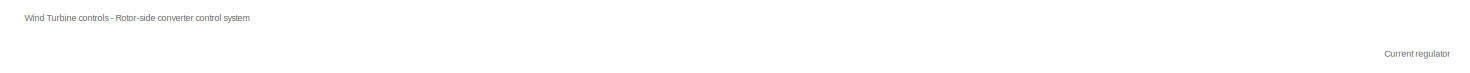
[diagram: DFIG Wind Turbine/Control/Rotor-side Controls - part 1/4, top left region]
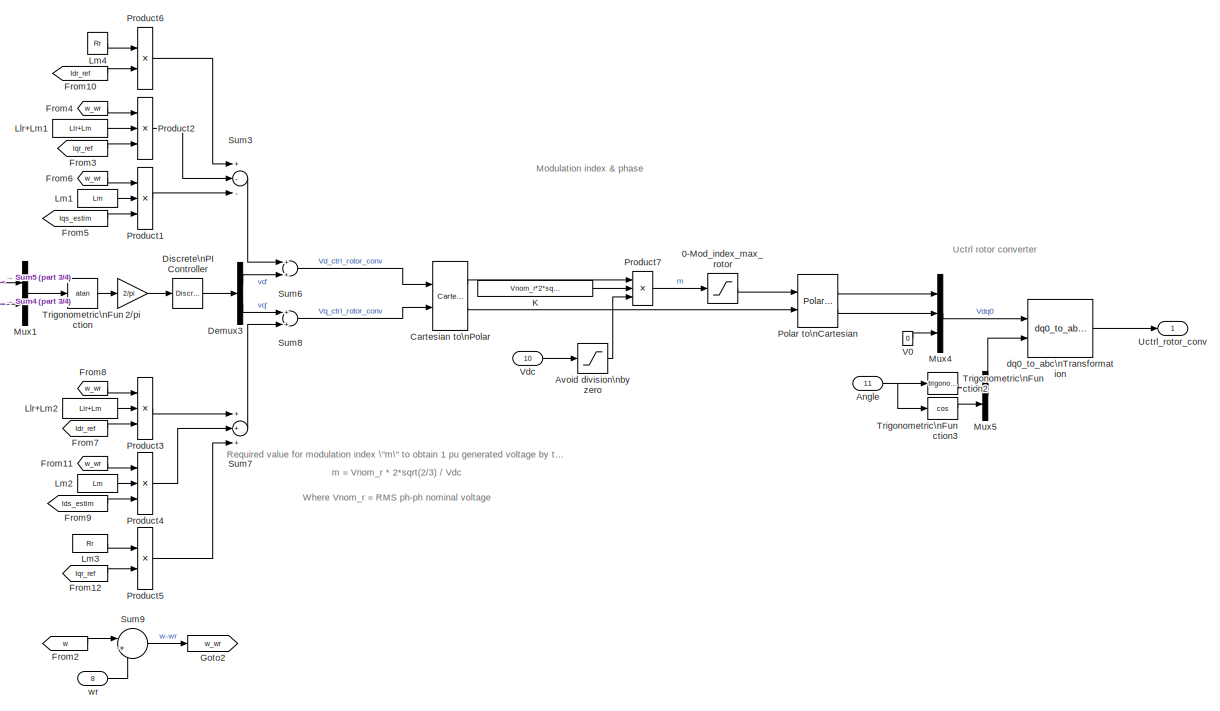
[diagram: DFIG Wind Turbine/Control/Rotor-side Controls - part 2/4, middle right region]
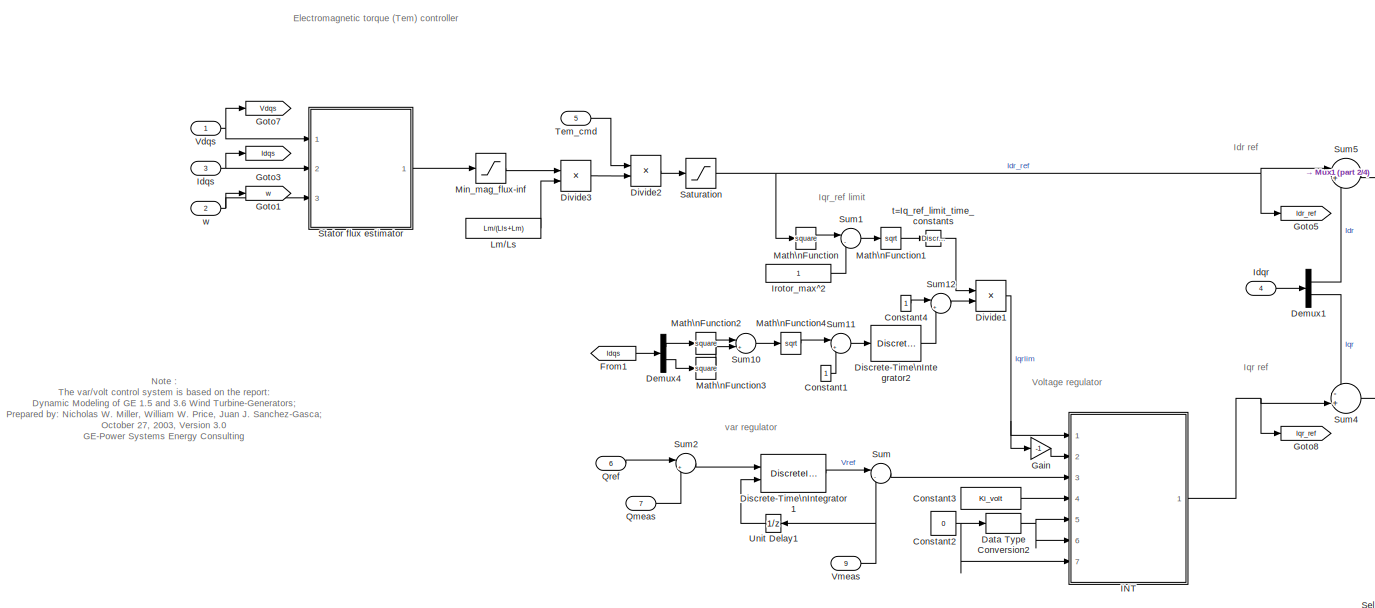
[diagram: DFIG Wind Turbine/Control/Rotor-side Controls - part 3/4, middle left region]
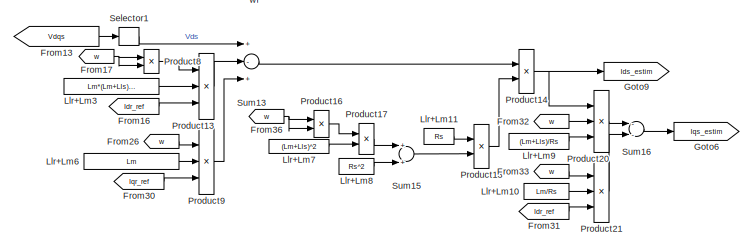
[diagram: DFIG Wind Turbine/Control/Rotor-side Controls - part 4/4, bottom center region]
BLOCK [SubSystem] DFIG Wind Turbine/Control/Rotor-side Controls
  Ports = [11, 1]
  RequestExecContextInheritance = off
  SID = 40:272
BLOCK [Saturate] DFIG Wind Turbine/Control/Rotor-side Controls/0-Mod_index_max_rotor
  InputPortMap = u0
  LowerLimit = 0
  Ports = [1, 1]
  SID = 40:284
  UpperLimit = Mod_index_max_rotor
BLOCK [Gain] DFIG Wind Turbine/Control/Rotor-side Controls/2//pi
  Gain = 2/pi
  OutDataTypeStr = Inherit: Inherit via internal rule
  ParamDataTypeStr = Inherit: Inherit via internal rule
  SID = 40:285
  SaturateOnIntegerOverflow = off
BLOCK [Inport] DFIG Wind Turbine/Control/Rotor-side Controls/Angle
  IconDisplay = Port number
  Port = 11
  SID = 40:283
BLOCK [Saturate] DFIG Wind Turbine/Control/Rotor-side Controls/Avoid division\nby zero
  InputPortMap = u0
  LowerLimit = 1e-6
  Ports = [1, 1]
  SID = 40:286
  UpperLimit = inf
BLOCK [Reference] DFIG Wind Turbine/Control/Rotor-side Controls/Cartesian to\nPolar  REF=simulink_extras/Transformations/Cartesian to\nPolar
  Ports = [2, 2]
  SID = 40:287
  SourceBlock = simulink_extras/Transformations/Cartesian to\nPolar
  SourceProductBaseCode = SL
  SourceProductName = Simulink
  SourceType = Cart2Polar
BLOCK [Constant] DFIG Wind Turbine/Control/Rotor-side Controls/Constant1
  SID = 40:288
BLOCK [Constant] DFIG Wind Turbine/Control/Rotor-side Controls/Constant2
  SID = 40:289
  Value = 0
BLOCK [Constant] DFIG Wind Turbine/Control/Rotor-side Controls/Constant3
  SID = 40:290
  Value = Ki_volt
BLOCK [Constant] DFIG Wind Turbine/Control/Rotor-side Controls/Constant4
  SID = 40:291
BLOCK [DataTypeConversion] DFIG Wind Turbine/Control/Rotor-side Controls/Data Type Conversion2
  OutDataTypeStr = boolean
  RndMeth = Floor
  SID = 40:292
  SaturateOnIntegerOverflow = off
BLOCK [Demux] DFIG Wind Turbine/Control/Rotor-side Controls/Demux1
  Outputs = 2
  Ports = [1, 2]
  SID = 40:293
BLOCK [Demux] DFIG Wind Turbine/Control/Rotor-side Controls/Demux3
  Outputs = 2
  Ports = [1, 2]
  SID = 40:294
BLOCK [Demux] DFIG Wind Turbine/Control/Rotor-side Controls/Demux4
  Outputs = 2
  Ports = [1, 2]
  SID = 40:295
BLOCK [DiscreteIntegrator] DFIG Wind Turbine/Control/Rotor-side Controls/Discrete-Time\nIntegrator1
  ICPrevOutput = DiscIntNeverNeededParam
  ICPrevScaledInput = DiscIntNeverNeededParam
  InitialCondition = 1
  InitialConditionSource = external
  LimitOutput = on
  LowerSaturationLimit = Min_var_reg
  Ports = [2, 1]
  SID = 40:297
  SampleTime = Ts
  UpperSaturationLimit = Max_var_reg
  gainval = Ki_var
BLOCK [DiscreteIntegrator] DFIG Wind Turbine/Control/Rotor-side Controls/Discrete-Time\nIntegrator2
  ICPrevOutput = DiscIntNeverNeededParam
  ICPrevScaledInput = DiscIntNeverNeededParam
  LimitOutput = on
  LowerSaturationLimit = 0
  Ports = [1, 1]
  SID = 40:298
  SampleTime = Ts
  UpperSaturationLimit = 1
  gainval = 10
BLOCK [Reference] DFIG Wind Turbine/Control/Rotor-side Controls/Discrete\nPI Controller  REF=powerlib_extras/Discrete \nControl Blocks/Discrete\nPI Controller
  Init = 0
  Ki = Ki_rotor_side_cur_reg
  Kp = Kp_rotor_side_cur_reg
  Par_Limits = [1 -1]*Lim_rotor_side_cur_reg
  Ports = [1, 1]
  SID = 40:296
  SourceBlock = powerlib_extras/Discrete \nControl Blocks/Discrete\nPI Controller
  SourceProductBaseCode = PS
  SourceProductName = Simscape Electrical
  SourceType = Discrete PI Controller
  Ts = Ts
BLOCK [Product] DFIG Wind Turbine/Control/Rotor-side Controls/Divide1
  InputSameDT = off
  Inputs = **
  OutDataTypeStr = Inherit: Inherit via internal rule
  Ports = [2, 1]
  RndMeth = Floor
  SID = 40:299
  SaturateOnIntegerOverflow = off
BLOCK [Product] DFIG Wind Turbine/Control/Rotor-side Controls/Divide2
  InputSameDT = off
  Inputs = */
  OutDataTypeStr = Inherit: Inherit via internal rule
  Ports = [2, 1]
  RndMeth = Floor
  SID = 40:300
  SaturateOnIntegerOverflow = off
BLOCK [Product] DFIG Wind Turbine/Control/Rotor-side Controls/Divide3
  InputSameDT = off
  Inputs = **
  OutDataTypeStr = Inherit: Inherit via internal rule
  Ports = [2, 1]
  RndMeth = Floor
  SID = 40:301
  SaturateOnIntegerOverflow = off
BLOCK [From] DFIG Wind Turbine/Control/Rotor-side Controls/From1
  CloseFcn = tagdialog Close
  GotoTag = Idqs
  SID = 40:302
BLOCK [From] DFIG Wind Turbine/Control/Rotor-side Controls/From10
  CloseFcn = tagdialog Close
  GotoTag = Idr_ref
  SID = 40:303
BLOCK [From] DFIG Wind Turbine/Control/Rotor-side Controls/From11
  CloseFcn = tagdialog Close
  GotoTag = w_wr
  SID = 40:304
BLOCK [From] DFIG Wind Turbine/Control/Rotor-side Controls/From12
  CloseFcn = tagdialog Close
  GotoTag = Iqr_ref
  SID = 40:305
BLOCK [From] DFIG Wind Turbine/Control/Rotor-side Controls/From13
  CloseFcn = tagdialog Close
  GotoTag = Vdqs
  SID = 40:306
BLOCK [From] DFIG Wind Turbine/Control/Rotor-side Controls/From16
  CloseFcn = tagdialog Close
  GotoTag = Idr_ref
  SID = 40:307
BLOCK [From] DFIG Wind Turbine/Control/Rotor-side Controls/From17
  CloseFcn = tagdialog Close
  GotoTag = w
  SID = 40:308
BLOCK [From] DFIG Wind Turbine/Control/Rotor-side Controls/From2
  CloseFcn = tagdialog Close
  GotoTag = w
  SID = 40:309
BLOCK [From] DFIG Wind Turbine/Control/Rotor-side Controls/From26
  CloseFcn = tagdialog Close
  GotoTag = w
  SID = 40:310
BLOCK [From] DFIG Wind Turbine/Control/Rotor-side Controls/From3
  CloseFcn = tagdialog Close
  GotoTag = Iqr_ref
  SID = 40:311
BLOCK [From] DFIG Wind Turbine/Control/Rotor-side Controls/From30
  CloseFcn = tagdialog Close
  GotoTag = Iqr_ref
  SID = 40:312
BLOCK [From] DFIG Wind Turbine/Control/Rotor-side Controls/From31
  CloseFcn = tagdialog Close
  GotoTag = Idr_ref
  SID = 40:313
BLOCK [From] DFIG Wind Turbine/Control/Rotor-side Controls/From32
  CloseFcn = tagdialog Close
  GotoTag = w
  SID = 40:314
BLOCK [From] DFIG Wind Turbine/Control/Rotor-side Controls/From33
  CloseFcn = tagdialog Close
  GotoTag = w
  SID = 40:315
BLOCK [From] DFIG Wind Turbine/Control/Rotor-side Controls/From36
  CloseFcn = tagdialog Close
  GotoTag = w
  SID = 40:316
BLOCK [From] DFIG Wind Turbine/Control/Rotor-side Controls/From4
  CloseFcn = tagdialog Close
  GotoTag = w_wr
  SID = 40:317
BLOCK [From] DFIG Wind Turbine/Control/Rotor-side Controls/From5
  CloseFcn = tagdialog Close
  GotoTag = Iqs_estim
  SID = 40:318
BLOCK [From] DFIG Wind Turbine/Control/Rotor-side Controls/From6
  CloseFcn = tagdialog Close
  GotoTag = w_wr
  SID = 40:319
BLOCK [From] DFIG Wind Turbine/Control/Rotor-side Controls/From7
  CloseFcn = tagdialog Close
  GotoTag = Idr_ref
  SID = 40:320
BLOCK [From] DFIG Wind Turbine/Control/Rotor-side Controls/From8
  CloseFcn = tagdialog Close
  GotoTag = w_wr
  SID = 40:321
BLOCK [From] DFIG Wind Turbine/Control/Rotor-side Controls/From9
  CloseFcn = tagdialog Close
  GotoTag = Ids_estim
  SID = 40:322
BLOCK [Gain] DFIG Wind Turbine/Control/Rotor-side Controls/Gain
  Gain = -1
  SID = 40:323
BLOCK [Goto] DFIG Wind Turbine/Control/Rotor-side Controls/Goto1
  GotoTag = w
  SID = 40:324
BLOCK [Goto] DFIG Wind Turbine/Control/Rotor-side Controls/Goto2
  GotoTag = w_wr
  SID = 40:325
BLOCK [Goto] DFIG Wind Turbine/Control/Rotor-side Controls/Goto3
  GotoTag = Idqs
  SID = 40:326
BLOCK [Goto] DFIG Wind Turbine/Control/Rotor-side Controls/Goto5
  GotoTag = Idr_ref
  SID = 40:327
BLOCK [Goto] DFIG Wind Turbine/Control/Rotor-side Controls/Goto6
  GotoTag = Iqs_estim
  SID = 40:328
BLOCK [Goto] DFIG Wind Turbine/Control/Rotor-side Controls/Goto7
  GotoTag = Vdqs
  SID = 40:329
BLOCK [Goto] DFIG Wind Turbine/Control/Rotor-side Controls/Goto8
  GotoTag = Iqr_ref
  SID = 40:330
BLOCK [Goto] DFIG Wind Turbine/Control/Rotor-side Controls/Goto9
  GotoTag = Ids_estim
  SID = 40:331
BLOCK [SubSystem] DFIG Wind Turbine/Control/Rotor-side Controls/INT
  Ports = [7, 1]
  RequestExecContextInheritance = off
  SID = 40:332
BLOCK [Gain] DFIG Wind Turbine/Control/Rotor-side Controls/INT/Gain
  Gain = Ts* 0.5
  SID = 40:340
BLOCK [Inport] DFIG Wind Turbine/Control/Rotor-side Controls/INT/Hold
  IconDisplay = Port number
  Port = 5
  SID = 40:337
BLOCK [UnitDelay] DFIG Wind Turbine/Control/Rotor-side Controls/INT/IC = 0
  HasFrameUpgradeWarning = on
  SID = 40:341
  SampleTime = Ts
BLOCK [UnitDelay] DFIG Wind Turbine/Control/Rotor-side Controls/INT/IC = i_ic
  HasFrameUpgradeWarning = on
  SID = 40:342
  SampleTime = Ts
BLOCK [Inport] DFIG Wind Turbine/Control/Rotor-side Controls/INT/In
  IconDisplay = Port number
  Port = 3
  SID = 40:335
BLOCK [Inport] DFIG Wind Turbine/Control/Rotor-side Controls/INT/Ki
  IconDisplay = Port number
  Port = 4
  SID = 40:336
BLOCK [Logic] DFIG Wind Turbine/Control/Rotor-side Controls/INT/Logical\nOperator4
  Operator = OR
  Ports = [2, 1]
  SID = 40:343
BLOCK [Inport] DFIG Wind Turbine/Control/Rotor-side Controls/INT/Max
  IconDisplay = Port number
  SID = 40:333
BLOCK [Inport] DFIG Wind Turbine/Control/Rotor-side Controls/INT/Min
  IconDisplay = Port number
  Port = 2
  SID = 40:334
BLOCK [MinMax] DFIG Wind Turbine/Control/Rotor-side Controls/INT/MinMax
  Inputs = 2
  Ports = [2, 1]
  SID = 40:344
BLOCK [MinMax] DFIG Wind Turbine/Control/Rotor-side Controls/INT/MinMax1
  Function = max
  Inputs = 2
  Ports = [2, 1]
  SID = 40:345
BLOCK [Outport] DFIG Wind Turbine/Control/Rotor-side Controls/INT/Out
  IconDisplay = Port number
  InitialOutput = 0
  SID = 40:353
BLOCK [Product] DFIG Wind Turbine/Control/Rotor-side Controls/INT/Product
  InputSameDT = off
  Ports = [2, 1]
  RndMeth = Floor
  SID = 40:346
BLOCK [Inport] DFIG Wind Turbine/Control/Rotor-side Controls/INT/Reset
  IconDisplay = Port number
  Port = 6
  SID = 40:338
BLOCK [Inport] DFIG Wind Turbine/Control/Rotor-side Controls/INT/Reset Value
  IconDisplay = Port number
  Port = 7
  SID = 40:339
BLOCK [SubSystem] DFIG Wind Turbine/Control/Rotor-side Controls/INT/S6
  Ports = [3, 1]
  RequestExecContextInheritance = off
  SID = 40:347
BLOCK [Outport] DFIG Wind Turbine/Control/Rotor-side Controls/INT/S6/  
  IconDisplay = Port number
  InitialOutput = 0
  SID = 40:554
BLOCK [Inport] DFIG Wind Turbine/Control/Rotor-side Controls/INT/S6/In
  IconDisplay = Port number
  Port = 2
  SID = 40:550
BLOCK [Inport] DFIG Wind Turbine/Control/Rotor-side Controls/INT/S6/MAX
  IconDisplay = Port number
  SID = 40:549
BLOCK [Inport] DFIG Wind Turbine/Control/Rotor-side Controls/INT/S6/MIN
  IconDisplay = Port number
  Port = 3
  SID = 40:551
BLOCK [MinMax] DFIG Wind Turbine/Control/Rotor-side Controls/INT/S6/MinMax
  Function = max
  Inputs = 2
  Ports = [2, 1]
  SID = 40:552
BLOCK [MinMax] DFIG Wind Turbine/Control/Rotor-side Controls/INT/S6/MinMax1
  Inputs = 2
  Ports = [2, 1]
  SID = 40:553
BLOCK [Sum] DFIG Wind Turbine/Control/Rotor-side Controls/INT/Sum
  Ports = [2, 1]
  SID = 40:348
BLOCK [Sum] DFIG Wind Turbine/Control/Rotor-side Controls/INT/Sum1
  Ports = [2, 1]
  SID = 40:349
BLOCK [Switch] DFIG Wind Turbine/Control/Rotor-side Controls/INT/Switch2
  SID = 40:350
  Threshold = 0.5
BLOCK [Switch] DFIG Wind Turbine/Control/Rotor-side Controls/INT/Switch3
  SID = 40:351
  Threshold = 0.5
BLOCK [Switch] DFIG Wind Turbine/Control/Rotor-side Controls/INT/Switch7
  SID = 40:352
  Threshold = 0.5
BLOCK [Inport] DFIG Wind Turbine/Control/Rotor-side Controls/Idqr
  IconDisplay = Port number
  Port = 4
  SID = 40:276
BLOCK [Inport] DFIG Wind Turbine/Control/Rotor-side Controls/Idqs
  IconDisplay = Port number
  Port = 3
  SID = 40:275
BLOCK [Constant] DFIG Wind Turbine/Control/Rotor-side Controls/Irotor_max^2
  SID = 40:354
BLOCK [Constant] DFIG Wind Turbine/Control/Rotor-side Controls/K
  SID = 40:355
  Value = Vnom_r*2*sqrt(2/3)
BLOCK [Constant] DFIG Wind Turbine/Control/Rotor-side Controls/Llr+Lm1
  SID = 40:356
  Value = Llr+Lm
BLOCK [Constant] DFIG Wind Turbine/Control/Rotor-side Controls/Llr+Lm10
  SID = 40:357
  Value = Lm/Rs
BLOCK [Constant] DFIG Wind Turbine/Control/Rotor-side Controls/Llr+Lm11
  SID = 40:358
  Value = Rs
BLOCK [Constant] DFIG Wind Turbine/Control/Rotor-side Controls/Llr+Lm2
  SID = 40:359
  Value = Llr+Lm
BLOCK [Constant] DFIG Wind Turbine/Control/Rotor-side Controls/Llr+Lm3
  SID = 40:360
  Value = Lm*(Lm+Lls)/Rs
BLOCK [Constant] DFIG Wind Turbine/Control/Rotor-side Controls/Llr+Lm6
  SID = 40:361
  Value = Lm
BLOCK [Constant] DFIG Wind Turbine/Control/Rotor-side Controls/Llr+Lm7
  SID = 40:362
  Value = (Lm+Lls)^2
BLOCK [Constant] DFIG Wind Turbine/Control/Rotor-side Controls/Llr+Lm8
  SID = 40:363
  Value = Rs^2
BLOCK [Constant] DFIG Wind Turbine/Control/Rotor-side Controls/Llr+Lm9
  SID = 40:364
  Value = (Lm+Lls)/Rs
BLOCK [Constant] DFIG Wind Turbine/Control/Rotor-side Controls/Lm//Ls
  SID = 40:365
  Value = Lm/(Lls+Lm)
BLOCK [Constant] DFIG Wind Turbine/Control/Rotor-side Controls/Lm1
  SID = 40:366
  Value = Lm
BLOCK [Constant] DFIG Wind Turbine/Control/Rotor-side Controls/Lm2
  SID = 40:367
  Value = Lm
BLOCK [Constant] DFIG Wind Turbine/Control/Rotor-side Controls/Lm3
  SID = 40:368
  Value = Rr
BLOCK [Constant] DFIG Wind Turbine/Control/Rotor-side Controls/Lm4
  SID = 40:369
  Value = Rr
  VectorParams1D = off
BLOCK [Math] DFIG Wind Turbine/Control/Rotor-side Controls/Math\nFunction
  Operator = square
  Ports = [1, 1]
  SID = 40:370
BLOCK [Math] DFIG Wind Turbine/Control/Rotor-side Controls/Math\nFunction1
  Operator = sqrt
  Ports = [1, 1]
  SID = 40:371
BLOCK [Math] DFIG Wind Turbine/Control/Rotor-side Controls/Math\nFunction2
  Operator = square
  Ports = [1, 1]
  SID = 40:372
BLOCK [Math] DFIG Wind Turbine/Control/Rotor-side Controls/Math\nFunction3
  Operator = square
  Ports = [1, 1]
  SID = 40:373
BLOCK [Math] DFIG Wind Turbine/Control/Rotor-side Controls/Math\nFunction4
  Operator = sqrt
  Ports = [1, 1]
  SID = 40:374
BLOCK [Saturate] DFIG Wind Turbine/Control/Rotor-side Controls/Min_mag_flux-inf
  InputPortMap = u0
  LowerLimit = Min_mag_flux
  Ports = [1, 1]
  SID = 40:375
  UpperLimit = inf
BLOCK [Mux] DFIG Wind Turbine/Control/Rotor-side Controls/Mux1
  DisplayOption = bar
  Inputs = 2
  Ports = [2, 1]
  SID = 40:376
BLOCK [Mux] DFIG Wind Turbine/Control/Rotor-side Controls/Mux4
  DisplayOption = bar
  Inputs = 3
  Ports = [3, 1]
  SID = 40:377
BLOCK [Mux] DFIG Wind Turbine/Control/Rotor-side Controls/Mux5
  DisplayOption = bar
  Inputs = 2
  Ports = [2, 1]
  SID = 40:378
BLOCK [Reference] DFIG Wind Turbine/Control/Rotor-side Controls/Polar to\nCartesian  REF=simulink_extras/Transformations/Polar to\nCartesian
  Ports = [2, 2]
  SID = 40:379
  SourceBlock = simulink_extras/Transformations/Polar to\nCartesian
  SourceProductBaseCode = SL
  SourceProductName = Simulink
  SourceType = Polar2Cart
BLOCK [Product] DFIG Wind Turbine/Control/Rotor-side Controls/Product1
  InputSameDT = off
  Inputs = 3
  Ports = [3, 1]
  RndMeth = Floor
  SID = 40:380
BLOCK [Product] DFIG Wind Turbine/Control/Rotor-side Controls/Product13
  InputSameDT = off
  Inputs = 3
  Ports = [3, 1]
  RndMeth = Floor
  SID = 40:381
BLOCK [Product] DFIG Wind Turbine/Control/Rotor-side Controls/Product14
  InputSameDT = off
  Ports = [2, 1]
  RndMeth = Floor
  SID = 40:382
BLOCK [Product] DFIG Wind Turbine/Control/Rotor-side Controls/Product16
  InputSameDT = off
  Ports = [2, 1]
  RndMeth = Floor
  SID = 40:383
BLOCK [Product] DFIG Wind Turbine/Control/Rotor-side Controls/Product17
  InputSameDT = off
  Ports = [2, 1]
  RndMeth = Floor
  SID = 40:384
BLOCK [Product] DFIG Wind Turbine/Control/Rotor-side Controls/Product18
  InputSameDT = off
  Inputs = */
  Ports = [2, 1]
  RndMeth = Floor
  SID = 40:385
BLOCK [Product] DFIG Wind Turbine/Control/Rotor-side Controls/Product2
  InputSameDT = off
  Inputs = 3
  Ports = [3, 1]
  RndMeth = Floor
  SID = 40:386
BLOCK [Product] DFIG Wind Turbine/Control/Rotor-side Controls/Product20
  InputSameDT = off
  Inputs = 3
  Ports = [3, 1]
  RndMeth = Floor
  SID = 40:387
BLOCK [Product] DFIG Wind Turbine/Control/Rotor-side Controls/Product21
  InputSameDT = off
  Inputs = 3
  Ports = [3, 1]
  RndMeth = Floor
  SID = 40:388
BLOCK [Product] DFIG Wind Turbine/Control/Rotor-side Controls/Product3
  InputSameDT = off
  Inputs = 3
  Ports = [3, 1]
  RndMeth = Floor
  SID = 40:389
BLOCK [Product] DFIG Wind Turbine/Control/Rotor-side Controls/Product4
  InputSameDT = off
  Inputs = 3
  Ports = [3, 1]
  RndMeth = Floor
  SID = 40:390
BLOCK [Product] DFIG Wind Turbine/Control/Rotor-side Controls/Product5
  InputSameDT = off
  Ports = [2, 1]
  RndMeth = Floor
  SID = 40:391
BLOCK [Product] DFIG Wind Turbine/Control/Rotor-side Controls/Product6
  InputSameDT = off
  Ports = [2, 1]
  RndMeth = Floor
  SID = 40:392
BLOCK [Product] DFIG Wind Turbine/Control/Rotor-side Controls/Product7
  Inputs = **/
  Ports = [3, 1]
  RndMeth = Floor
  SID = 40:393
BLOCK [Product] DFIG Wind Turbine/Control/Rotor-side Controls/Product8
  InputSameDT = off
  Ports = [2, 1]
  RndMeth = Floor
  SID = 40:394
BLOCK [Product] DFIG Wind Turbine/Control/Rotor-side Controls/Product9
  InputSameDT = off
  Inputs = 3
  Ports = [3, 1]
  RndMeth = Floor
  SID = 40:395
BLOCK [Inport] DFIG Wind Turbine/Control/Rotor-side Controls/Qmeas
  IconDisplay = Port number
  Port = 7
  SID = 40:279
BLOCK [Inport] DFIG Wind Turbine/Control/Rotor-side Controls/Qref
  IconDisplay = Port number
  Port = 6
  SID = 40:278
BLOCK [Saturate] DFIG Wind Turbine/Control/Rotor-side Controls/Saturation
  InputPortMap = u0
  LowerLimit = 0
  Ports = [1, 1]
  SID = 40:396
  UpperLimit = Max_Idr_ref
BLOCK [Selector] DFIG Wind Turbine/Control/Rotor-side Controls/Selector1
  IndexOptions = Index vector (dialog)
  Indices = 1
  InputPortWidth = 2
  OutputSizes = [(-2)]
  Ports = [1, 1]
  SID = 40:397
BLOCK [SubSystem] DFIG Wind Turbine/Control/Rotor-side Controls/Stator flux estimator
  Ports = [3, 1]
  RequestExecContextInheritance = off
  SID = 40:398
BLOCK [Product] DFIG Wind Turbine/Control/Rotor-side Controls/Stator flux estimator/Divide1
  InputSameDT = off
  Inputs = */
  OutDataTypeStr = Inherit: Inherit via internal rule
  Ports = [2, 1]
  RndMeth = Floor
  SID = 40:402
  SaturateOnIntegerOverflow = off
BLOCK [Product] DFIG Wind Turbine/Control/Rotor-side Controls/Stator flux estimator/Divide2
  InputSameDT = off
  Inputs = **
  OutDataTypeStr = Inherit: Inherit via internal rule
  Ports = [2, 1]
  RndMeth = Floor
  SID = 40:403
  SaturateOnIntegerOverflow = off
BLOCK [Product] DFIG Wind Turbine/Control/Rotor-side Controls/Stator flux estimator/Divide4
  InputSameDT = off
  Inputs = */
  OutDataTypeStr = Inherit: Inherit via internal rule
  Ports = [2, 1]
  RndMeth = Floor
  SID = 40:404
  SaturateOnIntegerOverflow = off
BLOCK [Product] DFIG Wind Turbine/Control/Rotor-side Controls/Stator flux estimator/Divide6
  InputSameDT = off
  Inputs = **
  OutDataTypeStr = Inherit: Inherit via internal rule
  Ports = [2, 1]
  RndMeth = Floor
  SID = 40:405
  SaturateOnIntegerOverflow = off
BLOCK [Gain] DFIG Wind Turbine/Control/Rotor-side Controls/Stator flux estimator/Gain
  Gain = -1
  OutDataTypeStr = Inherit: Inherit via internal rule
  ParamDataTypeStr = Inherit: Inherit via internal rule
  SID = 40:406
  SaturateOnIntegerOverflow = off
BLOCK [Inport] DFIG Wind Turbine/Control/Rotor-side Controls/Stator flux estimator/Idqs
  IconDisplay = Port number
  Port = 2
  SID = 40:400
BLOCK [Reference] DFIG Wind Turbine/Control/Rotor-side Controls/Stator flux estimator/Lowpass\nTau=1//4 cycle  REF=powerlib_extras/Discrete \nControl Blocks/Discrete\n1st-Order\nFilter
  FilterType = Lowpass
  Initialize = on
  PlotResponse = off
  Ports = [1, 1]
  SID = 40:407
  SourceBlock = powerlib_extras/Discrete \nControl Blocks/Discrete\n1st-Order\nFilter
  SourceProductBaseCode = PS
  SourceProductName = Simscape Electrical
  SourceType = Discrete 1st-Order Filter
  Tc = 0.25*(1/Fnom)
  Ts = Ts
  Vac_Init = [0.8 -25 60]*0
  Vdc_Init = 1
  param1 = [1 500 0.1]
BLOCK [Outport] DFIG Wind Turbine/Control/Rotor-side Controls/Stator flux estimator/Mag_Flux
  IconDisplay = Port number
  SID = 40:420
BLOCK [Math] DFIG Wind Turbine/Control/Rotor-side Controls/Stator flux estimator/Math\nFunction1
  Operator = square
  Ports = [1, 1]
  SID = 40:408
BLOCK [Math] DFIG Wind Turbine/Control/Rotor-side Controls/Stator flux estimator/Math\nFunction2
  Operator = square
  Ports = [1, 1]
  SID = 40:409
BLOCK [Math] DFIG Wind Turbine/Control/Rotor-side Controls/Stator flux estimator/Math\nFunction3
  Operator = sqrt
  Ports = [1, 1]
  SID = 40:410
BLOCK [Constant] DFIG Wind Turbine/Control/Rotor-side Controls/Stator flux estimator/Rs
  SID = 40:411
  Value = Rs
BLOCK [Constant] DFIG Wind Turbine/Control/Rotor-side Controls/Stator flux estimator/Rs2
  SID = 40:412
  Value = Rs
BLOCK [Selector] DFIG Wind Turbine/Control/Rotor-side Controls/Stator flux estimator/Selector1
  IndexOptions = Index vector (dialog)
  Indices = 2
  InputPortWidth = 2
  OutputSizes = 1
  Ports = [1, 1]
  SID = 40:413
BLOCK [Selector] DFIG Wind Turbine/Control/Rotor-side Controls/Stator flux estimator/Selector2
  IndexOptions = Index vector (dialog)
  Indices = 1
  InputPortWidth = 2
  OutputSizes = 1
  Ports = [1, 1]
  SID = 40:414
BLOCK [Selector] DFIG Wind Turbine/Control/Rotor-side Controls/Stator flux estimator/Selector3
  IndexOptions = Index vector (dialog)
  Indices = 2
  InputPortWidth = 2
  OutputSizes = 1
  Ports = [1, 1]
  SID = 40:415
BLOCK [Selector] DFIG Wind Turbine/Control/Rotor-side Controls/Stator flux estimator/Selector4
  IndexOptions = Index vector (dialog)
  Indices = 1
  InputPortWidth = 2
  OutputSizes = 1
  Ports = [1, 1]
  SID = 40:416
BLOCK [Sum] DFIG Wind Turbine/Control/Rotor-side Controls/Stator flux estimator/Sum1
  IconShape = round
  InputSameDT = off
  Inputs = |++
  OutDataTypeStr = Inherit: Inherit via internal rule
  Ports = [2, 1]
  SID = 40:417
  SaturateOnIntegerOverflow = off
BLOCK [Sum] DFIG Wind Turbine/Control/Rotor-side Controls/Stator flux estimator/Sum2
  IconShape = round
  InputSameDT = off
  Inputs = |+-
  OutDataTypeStr = Inherit: Inherit via internal rule
  Ports = [2, 1]
  SID = 40:418
  SaturateOnIntegerOverflow = off
BLOCK [Sum] DFIG Wind Turbine/Control/Rotor-side Controls/Stator flux estimator/Sum3
  IconShape = round
  InputSameDT = off
  Inputs = |+-
  OutDataTypeStr = Inherit: Inherit via internal rule
  Ports = [2, 1]
  SID = 40:419
  SaturateOnIntegerOverflow = off
BLOCK [Inport] DFIG Wind Turbine/Control/Rotor-side Controls/Stator flux estimator/Vdqs
  IconDisplay = Port number
  SID = 40:399
BLOCK [Inport] DFIG Wind Turbine/Control/Rotor-side Controls/Stator flux estimator/w_pu
  IconDisplay = Port number
  Port = 3
  SID = 40:401
BLOCK [Sum] DFIG Wind Turbine/Control/Rotor-side Controls/Sum
  IconShape = round
  Inputs = |-+
  Ports = [2, 1]
  SID = 40:421
BLOCK [Sum] DFIG Wind Turbine/Control/Rotor-side Controls/Sum1
  IconShape = round
  Inputs = |-+
  Ports = [2, 1]
  SID = 40:422
BLOCK [Sum] DFIG Wind Turbine/Control/Rotor-side Controls/Sum10
  IconShape = round
  Inputs = |++
  Ports = [2, 1]
  SID = 40:423
BLOCK [Sum] DFIG Wind Turbine/Control/Rotor-side Controls/Sum11
  IconShape = round
  Inputs = |+-
  Ports = [2, 1]
  SID = 40:424
BLOCK [Sum] DFIG Wind Turbine/Control/Rotor-side Controls/Sum12
  IconShape = round
  Inputs = |+-
  Ports = [2, 1]
  SID = 40:425
BLOCK [Sum] DFIG Wind Turbine/Control/Rotor-side Controls/Sum13
  Inputs = +-+
  Ports = [3, 1]
  SID = 40:426
BLOCK [Sum] DFIG Wind Turbine/Control/Rotor-side Controls/Sum15
  Ports = [2, 1]
  SID = 40:427
BLOCK [Sum] DFIG Wind Turbine/Control/Rotor-side Controls/Sum16
  Inputs = --
  Ports = [2, 1]
  SID = 40:428
BLOCK [Sum] DFIG Wind Turbine/Control/Rotor-side Controls/Sum2
  IconShape = round
  Inputs = |+-
  Ports = [2, 1]
  SID = 40:429
BLOCK [Sum] DFIG Wind Turbine/Control/Rotor-side Controls/Sum3
  Inputs = +--
  Ports = [3, 1]
  SID = 40:430
BLOCK [Sum] DFIG Wind Turbine/Control/Rotor-side Controls/Sum4
  IconShape = round
  Inputs = -+|
  Ports = [2, 1]
  SID = 40:431
BLOCK [Sum] DFIG Wind Turbine/Control/Rotor-side Controls/Sum5
  IconShape = round
  Inputs = |+-
  Ports = [2, 1]
  SID = 40:432
BLOCK [Sum] DFIG Wind Turbine/Control/Rotor-side Controls/Sum6
  Ports = [2, 1]
  SID = 40:433
BLOCK [Sum] DFIG Wind Turbine/Control/Rotor-side Controls/Sum7
  Inputs = +++
  Ports = [3, 1]
  SID = 40:434
BLOCK [Sum] DFIG Wind Turbine/Control/Rotor-side Controls/Sum8
  Ports = [2, 1]
  SID = 40:435
BLOCK [Sum] DFIG Wind Turbine/Control/Rotor-side Controls/Sum9
  IconShape = round
  Inputs = |+-
  Ports = [2, 1]
  SID = 40:436
BLOCK [Inport] DFIG Wind Turbine/Control/Rotor-side Controls/Tem_cmd
  IconDisplay = Port number
  Port = 5
  SID = 40:277
BLOCK [Trigonometry] DFIG Wind Turbine/Control/Rotor-side Controls/Trigonometric\nFunction
  Operator = atan
  Ports = [1, 1]
  SID = 40:437
BLOCK [Trigonometry] DFIG Wind Turbine/Control/Rotor-side Controls/Trigonometric\nFunction2
  Ports = [1, 1]
  SID = 40:438
BLOCK [Trigonometry] DFIG Wind Turbine/Control/Rotor-side Controls/Trigonometric\nFunction3
  Operator = cos
  Ports = [1, 1]
  SID = 40:439
BLOCK [Outport] DFIG Wind Turbine/Control/Rotor-side Controls/Uctrl_rotor_conv
  IconDisplay = Port number
  SID = 40:444
BLOCK [UnitDelay] DFIG Wind Turbine/Control/Rotor-side Controls/Unit Delay1
  HasFrameUpgradeWarning = on
  InitialCondition = 1
  SID = 40:440
  SampleTime = Ts
BLOCK [Constant] DFIG Wind Turbine/Control/Rotor-side Controls/V0
  SID = 40:441
  Value = 0
BLOCK [Inport] DFIG Wind Turbine/Control/Rotor-side Controls/Vdc
  IconDisplay = Port number
  Port = 10
  SID = 40:282
BLOCK [Inport] DFIG Wind Turbine/Control/Rotor-side Controls/Vdqs
  IconDisplay = Port number
  SID = 40:273
BLOCK [Inport] DFIG Wind Turbine/Control/Rotor-side Controls/Vmeas
  IconDisplay = Port number
  Port = 9
  SID = 40:281
BLOCK [Reference] DFIG Wind Turbine/Control/Rotor-side Controls/dq0_to_abc\nTransformation  REF=powerlib_extras/Measurements/dq0_to_abc\nTransformation
  Ports = [2, 1]
  SID = 40:442
  SourceBlock = powerlib_extras/Measurements/dq0_to_abc\nTransformation
  SourceProductBaseCode = PS
  SourceProductName = Simscape Electrical
  SourceType = dq0 to abc Transformation
BLOCK [Reference] DFIG Wind Turbine/Control/Rotor-side Controls/t=Iq_ref_limit_time_constants  REF=powerlib_extras/Discrete \nControl Blocks/Discrete\n1st-Order\nFilter
  FilterType = Lowpass
  Initialize = on
  PlotResponse = off
  Ports = [1, 1]
  SID = 40:443
  SourceBlock = powerlib_extras/Discrete \nControl Blocks/Discrete\n1st-Order\nFilter
  SourceProductBaseCode = PS
  SourceProductName = Simscape Electrical
  SourceType = Discrete 1st-Order Filter
  Tc = Iq_ref_limit_time_constant
  Ts = Ts
  Vac_Init = [0 0 0]
  Vdc_Init = Imax_grid_conv
  param1 = [1 500 0.1]
BLOCK [Inport] DFIG Wind Turbine/Control/Rotor-side Controls/w
  IconDisplay = Port number
  Port = 2
  SID = 40:274
BLOCK [Inport] DFIG Wind Turbine/Control/Rotor-side Controls/wr
  IconDisplay = Port number
  Port = 8
  SID = 40:280
BLOCK [SubSystem] DFIG Wind Turbine/Control/Speed & Pitch Control
  Ports = [2, 2]
  RequestExecContextInheritance = off
  SID = 40:445
BLOCK [Saturate] DFIG Wind Turbine/Control/Speed & Pitch Control/0-inf
  InputPortMap = u0
  LowerLimit = 0
  Ports = [1, 1]
  SID = 40:448
  UpperLimit = inf
BLOCK [Saturate] DFIG Wind Turbine/Control/Speed & Pitch Control/0-pitch_max
  InputPortMap = u0
  LowerLimit = 0
  Ports = [1, 1]
  SID = 40:449
  UpperLimit = pitch_max
BLOCK [Saturate] DFIG Wind Turbine/Control/Speed & Pitch Control/0-pitch_max 
  InputPortMap = u0
  LowerLimit = 0
  Ports = [1, 1]
  SID = 40:450
  UpperLimit = pitch_max
BLOCK [Constant] DFIG Wind Turbine/Control/Speed & Pitch Control/Constant2
  SID = 40:451
BLOCK [SubSystem] DFIG Wind Turbine/Control/Speed & Pitch Control/Discrete\nPI Controller
  DialogController = POWERSYS.PowerSysDialog
  Ports = [1, 1]
  RequestExecContextInheritance = off
  SID = 40:452
BLOCK [DiscreteIntegrator] DFIG Wind Turbine/Control/Speed & Pitch Control/Discrete\nPI Controller/Discrete-Time\nIntegrator
  ICPrevOutput = DiscIntNeverNeededParam
  ICPrevScaledInput = DiscIntNeverNeededParam
  InitialCondition = Init
  LimitOutput = on
  LowerSaturationLimit = LowerLimit
  Ports = [1, 1]
  SID = 40:452:2
  SampleTime = Ts
  UpperSaturationLimit = UpperLimit
BLOCK [Inport] DFIG Wind Turbine/Control/Speed & Pitch Control/Discrete\nPI Controller/Error
  IconDisplay = Port number
  SID = 40:452:1
BLOCK [Outport] DFIG Wind Turbine/Control/Speed & Pitch Control/Discrete\nPI Controller/Out
  IconDisplay = Port number
  InitialOutput = 0
  SID = 40:452:9
BLOCK [Product] DFIG Wind Turbine/Control/Speed & Pitch Control/Discrete\nPI Controller/Product1
  InputSameDT = off
  OutDataTypeStr = Inherit: Inherit via internal rule
  Ports = [2, 1]
  SID = 40:452:3
  SaturateOnIntegerOverflow = off
BLOCK [Product] DFIG Wind Turbine/Control/Speed & Pitch Control/Discrete\nPI Controller/Product2
  InputSameDT = off
  OutDataTypeStr = Inherit: Inherit via internal rule
  Ports = [2, 1]
  SID = 40:452:4
  SaturateOnIntegerOverflow = off
BLOCK [Saturate] DFIG Wind Turbine/Control/Speed & Pitch Control/Discrete\nPI Controller/Saturation2
  InputPortMap = u0
  LowerLimit = LowerLimit
  Ports = [1, 1]
  SID = 40:452:5
  UpperLimit = UpperLimit
BLOCK [Step] DFIG Wind Turbine/Control/Speed & Pitch Control/Discrete\nPI Controller/Step_Ki_speed
  After = Ki
  Before = Ki
  SID = 40:452:6
  SampleTime = Ts
  Time = 999
BLOCK [Step] DFIG Wind Turbine/Control/Speed & Pitch Control/Discrete\nPI Controller/Step_Kp_speed
  After = Kp
  Before = Kp
  SID = 40:452:7
  SampleTime = Ts
  Time = 999
BLOCK [Sum] DFIG Wind Turbine/Control/Speed & Pitch Control/Discrete\nPI Controller/Sum6
  Ports = [2, 1]
  SID = 40:452:8
BLOCK [Reference] DFIG Wind Turbine/Control/Speed & Pitch Control/Discrete\nPI Controller1  REF=powerlib_extras/Discrete \nControl Blocks/Discrete\nPI Controller
  Init = 0
  Ki = Ki_compensation
  Kp = Kp_compensation
  Par_Limits = [pitch_max 0]
  Ports = [1, 1]
  SID = 40:453
  SourceBlock = powerlib_extras/Discrete \nControl Blocks/Discrete\nPI Controller
  SourceProductBaseCode = PS
  SourceProductName = Simscape Electrical
  SourceType = Discrete PI Controller
  Ts = Ts
BLOCK [Gain] DFIG Wind Turbine/Control/Speed & Pitch Control/Gain2
  Gain = Kp_pitch
  SID = 40:454
BLOCK [Outport] DFIG Wind Turbine/Control/Speed & Pitch Control/Pitch (deg)
  IconDisplay = Port number
  Port = 2
  SID = 40:468
BLOCK [Inport] DFIG Wind Turbine/Control/Speed & Pitch Control/Pmeas
  IconDisplay = Port number
  Port = 2
  SID = 40:447
BLOCK [RateLimiter] DFIG Wind Turbine/Control/Speed & Pitch Control/Rate Limiter   1
  FallingSlewLimit = -pitch_rate
  RisingSlewLimit = pitch_rate
  SID = 40:455
BLOCK [Saturate] DFIG Wind Turbine/Control/Speed & Pitch Control/Saturation
  InputPortMap = u0
  LowerLimit = Speed_min
  Ports = [1, 1]
  SID = 40:456
  UpperLimit = Speed_max
BLOCK [Sum] DFIG Wind Turbine/Control/Speed & Pitch Control/Sum
  IconShape = round
  InputSameDT = off
  Inputs = -+
  OutDataTypeStr = Inherit: Inherit via internal rule
  Ports = [2, 1]
  SID = 40:457
BLOCK [Sum] DFIG Wind Turbine/Control/Speed & Pitch Control/Sum1
  IconShape = round
  InputSameDT = off
  Inputs = |+-
  OutDataTypeStr = Inherit: Inherit via internal rule
  Ports = [2, 1]
  SID = 40:458
  SaturateOnIntegerOverflow = off
BLOCK [Sum] DFIG Wind Turbine/Control/Speed & Pitch Control/Sum2
  IconShape = round
  InputSameDT = off
  Inputs = |+-
  OutDataTypeStr = Inherit: Inherit via internal rule
  Ports = [2, 1]
  SID = 40:459
BLOCK [Sum] DFIG Wind Turbine/Control/Speed & Pitch Control/Sum3
  IconShape = round
  InputSameDT = off
  Inputs = |++
  OutDataTypeStr = Inherit: Inherit via internal rule
  Ports = [2, 1]
  SID = 40:460
  SaturateOnIntegerOverflow = off
BLOCK [Switch] DFIG Wind Turbine/Control/Speed & Pitch Control/Switch
  InputSameDT = off
  SID = 40:461
  SaturateOnIntegerOverflow = off
  Threshold = 0.75
BLOCK [Outport] DFIG Wind Turbine/Control/Speed & Pitch Control/Tem_cmd
  IconDisplay = Port number
  SID = 40:467
BLOCK [Fcn] DFIG Wind Turbine/Control/Speed & Pitch Control/Tracking Curve
  Expr = -0.67*u(1)^2+1.42*u(1)+0.51
  SID = 40:462
BLOCK [Gain] DFIG Wind Turbine/Control/Speed & Pitch Control/pu_elec->pu_mec
  Gain = Pnom/Pmec
  OutDataTypeStr = Inherit: Inherit via internal rule
  ParamDataTypeStr = Inherit: Inherit via internal rule
  SID = 40:463
  SaturateOnIntegerOverflow = off
BLOCK [Reference] DFIG Wind Turbine/Control/Speed & Pitch Control/t=Pitch_time_constant  REF=powerlib_extras/Discrete \nControl Blocks/Discrete\n1st-Order\nFilter
  FilterType = Lowpass
  Initialize = on
  PlotResponse = off
  Ports = [1, 1]
  SID = 40:464
  SourceBlock = powerlib_extras/Discrete \nControl Blocks/Discrete\n1st-Order\nFilter
  SourceProductBaseCode = PS
  SourceProductName = Simscape Electrical
  SourceType = Discrete 1st-Order Filter
  Tc = Pitch_time_constant
  Ts = Ts
  Vac_Init = [0.8 -25 60]*0
  Vdc_Init = 0
  param1 = [1 500 0.1]
BLOCK [Reference] DFIG Wind Turbine/Control/Speed & Pitch Control/t=T_speed  REF=powerlib_extras/Discrete \nControl Blocks/Discrete\n1st-Order\nFilter
  FilterType = Lowpass
  Initialize = on
  PlotResponse = off
  Ports = [1, 1]
  SID = 40:465
  SourceBlock = powerlib_extras/Discrete \nControl Blocks/Discrete\n1st-Order\nFilter
  SourceProductBaseCode = PS
  SourceProductName = Simscape Electrical
  SourceType = Discrete 1st-Order Filter
  Tc = T_speed
  Ts = Ts
  Vac_Init = [0 0 0]
  Vdc_Init = 1-init(1)
  param1 = [1 500 0.1]
BLOCK [Inport] DFIG Wind Turbine/Control/Speed & Pitch Control/wr
  IconDisplay = Port number
  SID = 40:446
BLOCK [Constant] DFIG Wind Turbine/Control/Speed & Pitch Control/wref
  SID = 40:466
  Value = 1.2
BLOCK [Terminator] DFIG Wind Turbine/Control/Terminator
  SID = 40:469
BLOCK [Terminator] DFIG Wind Turbine/Control/Terminator1
  SID = 40:470
BLOCK [UnitDelay] DFIG Wind Turbine/Control/Unit Delay1
  HasFrameUpgradeWarning = on
  SID = 40:471
  SampleTime = Ts
BLOCK [UnitDelay] DFIG Wind Turbine/Control/Unit Delay2
  HasFrameUpgradeWarning = on
  SID = 40:472
  SampleTime = Ts
BLOCK [UnitDelay] DFIG Wind Turbine/Control/Unit Delay4
  HasFrameUpgradeWarning = on
  SID = 40:473
  SampleTime = Ts
BLOCK [UnitDelay] DFIG Wind Turbine/Control/Unit Delay5
  HasFrameUpgradeWarning = on
  SID = 40:474
  SampleTime = Ts
BLOCK [UnitDelay] DFIG Wind Turbine/Control/Unit Delay6
  HasFrameUpgradeWarning = on
  SID = 40:475
  SampleTime = Ts
BLOCK [Inport] DFIG Wind Turbine/Control/Vabc_B1
  IconDisplay = Port number
  SID = 40:12
BLOCK [Inport] DFIG Wind Turbine/Control/Vdc_V
  IconDisplay = Port number
  Port = 5
  SID = 40:16
BLOCK [Inport] DFIG Wind Turbine/Control/angle_rotor_rad
  IconDisplay = Port number
  Port = 7
  SID = 40:18
BLOCK [Inport] DFIG Wind Turbine/Control/wr
  IconDisplay = Port number
  Port = 8
  SID = 40:19
BLOCK [SubSystem] DFIG Wind Turbine/Drive Train
  Ports = [2, 2]
  RequestExecContextInheritance = off
  SID = 40:480
BLOCK [Gain] DFIG Wind Turbine/Drive Train/1_2H_WT
  Gain = 1/(2*H_WT)
  SID = 40:483
BLOCK [DiscreteIntegrator] DFIG Wind Turbine/Drive Train/Discrete-Time\nIntegrator
  ICPrevOutput = DiscIntNeverNeededParam
  ICPrevScaledInput = DiscIntNeverNeededParam
  InitialCondition = w_wt0
  Ports = [1, 1]
  SID = 40:484
  SampleTime = Ts
BLOCK [DiscreteIntegrator] DFIG Wind Turbine/Drive Train/Discrete-Time\nIntegrator1
  ICPrevOutput = DiscIntNeverNeededParam
  ICPrevScaledInput = DiscIntNeverNeededParam
  InitialCondition = torque0/Ksh
  Ports = [1, 1]
  SID = 40:485
  SampleTime = Ts
BLOCK [Inport] DFIG Wind Turbine/Drive Train/Generator speed (pu)
  IconDisplay = Port number
  Port = 2
  SID = 40:482
BLOCK [Gain] DFIG Wind Turbine/Drive Train/Mutual damping
  Gain = D_mutual
  SID = 40:486
BLOCK [Gain] DFIG Wind Turbine/Drive Train/Stiffness
  Gain = Ksh
  SID = 40:487
BLOCK [Sum] DFIG Wind Turbine/Drive Train/Sum
  Inputs = +-
  Ports = [2, 1]
  SID = 40:488
BLOCK [Sum] DFIG Wind Turbine/Drive Train/Sum1
  Inputs = +-
  Ports = [2, 1]
  SID = 40:489
BLOCK [Sum] DFIG Wind Turbine/Drive Train/Sum2
  Ports = [2, 1]
  SID = 40:490
BLOCK [Outport] DFIG Wind Turbine/Drive Train/T_shaft (pu)
  IconDisplay = Port number
  Port = 2
  SID = 40:493
BLOCK [Inport] DFIG Wind Turbine/Drive Train/T_wt (pu)
  IconDisplay = Port number
  SID = 40:481
BLOCK [Outport] DFIG Wind Turbine/Drive Train/W_wt (pu)
  IconDisplay = Port number
  SID = 40:492
BLOCK [Gain] DFIG Wind Turbine/Drive Train/wbase
  Gain = wbase
  SID = 40:491
BLOCK [Reference] DFIG Wind Turbine/Filter\nQ=50  REF=powerlib/Elements/Three-Phase\nSeries RLC Load
  ActivePower = C_var_filter/Q_filter
  AttributesFormatString = \\n
  CapacitivePower = C_var_filter
  Configuration = Y (grounded)
  InductivePower = 0
  LConnTagsString = A|B|C
  LoadType = constant Z
  Measurements = None
  NominalFrequency = Fnom
  NominalVoltage = Vnom
  Pabc = [10e3 9e3 11e3]
  Pabcp = [10e3 9e3 11e3]
  Ports = [0, 0, 0, 0, 0, 3]
  QCabc = [100 90 110]
  QCabcp = [100 90 110]
  QLabc = [100 90 110]
  QLabcp = [100 90 110]
  SID = 40:494
  SourceBlock = powerlib/Elements/Three-Phase\nSeries RLC Load
  SourceProductBaseCode = PS
  SourceProductName = Simscape Electrical
  SourceType = Three-Phase Series RLC Load
  UnbalancedPower = off
  Vabc = [1e3 1e3 1e3]
  Vabcp = [1e3 1e3 1e3]
BLOCK [From] DFIG Wind Turbine/From
  CloseFcn = tagdialog Close
  GotoTag = wr
  SID = 40:495
BLOCK [From] DFIG Wind Turbine/From1
  CloseFcn = tagdialog Close
  GotoTag = Vdc_V
  SID = 40:496
BLOCK [From] DFIG Wind Turbine/From10
  CloseFcn = tagdialog Close
  GotoTag = Iabc_rotor
  SID = 40:497
BLOCK [From] DFIG Wind Turbine/From11
  CloseFcn = tagdialog Close
  GotoTag = angle_rotor_rad
  SID = 40:498
BLOCK [From] DFIG Wind Turbine/From12
  CloseFcn = tagdialog Close
  GotoTag = Pulses_grid_conv
  SID = 40:499
BLOCK [From] DFIG Wind Turbine/From13
  CloseFcn = tagdialog Close
  GotoTag = wr
  SID = 40:500
BLOCK [From] DFIG Wind Turbine/From14
  CloseFcn = tagdialog Close
  GotoTag = Tm
  SID = 40:501
BLOCK [From] DFIG Wind Turbine/From15
  CloseFcn = tagdialog Close
  GotoTag = Vabc_B1
  SID = 40:502
BLOCK [From] DFIG Wind Turbine/From16
  CloseFcn = tagdialog Close
  GotoTag = wr
  SID = 40:503
BLOCK [From] DFIG Wind Turbine/From17
  CloseFcn = tagdialog Close
  GotoTag = Pulses_rotor_conv
  SID = 40:504
BLOCK [From] DFIG Wind Turbine/From18
  CloseFcn = tagdialog Close
  GotoTag = Pitch_deg
  SID = 40:505
BLOCK [From] DFIG Wind Turbine/From2
  CloseFcn = tagdialog Close
  GotoTag = Tm
  SID = 40:506
BLOCK [From] DFIG Wind Turbine/From21
  CloseFcn = tagdialog Close
  GotoTag = Iabc_grid_conv
  SID = 40:507
BLOCK [From] DFIG Wind Turbine/From22
  CloseFcn = tagdialog Close
  GotoTag = Vdc_V
  SID = 40:508
BLOCK [From] DFIG Wind Turbine/From23
  CloseFcn = tagdialog Close
  GotoTag = Vabc_grid_conv
  SID = 40:509
BLOCK [From] DFIG Wind Turbine/From24
  CloseFcn = tagdialog Close
  GotoTag = PQ_pu
  SID = 40:510
BLOCK [From] DFIG Wind Turbine/From25
  CloseFcn = tagdialog Close
  GotoTag = Tem
  SID = 40:511
BLOCK [From] DFIG Wind Turbine/From26
  CloseFcn = tagdialog Close
  GotoTag = AsyncMac_sig
  SID = 40:512
BLOCK [From] DFIG Wind Turbine/From27
  CloseFcn = tagdialog Close
  GotoTag = TurbineSpeed
  SID = 40:513
BLOCK [From] DFIG Wind Turbine/From3
  CloseFcn = tagdialog Close
  GotoTag = Iabc_grid_conv
  SID = 40:514
BLOCK [From] DFIG Wind Turbine/From4
  CloseFcn = tagdialog Close
  GotoTag = Vabc_B1
  SID = 40:515
BLOCK [From] DFIG Wind Turbine/From5
  CloseFcn = tagdialog Close
  GotoTag = Iabc_rotor
  SID = 40:516
BLOCK [From] DFIG Wind Turbine/From6
  CloseFcn = tagdialog Close
  GotoTag = Vabc_rotor
  SID = 40:517
BLOCK [From] DFIG Wind Turbine/From7
  CloseFcn = tagdialog Close
  GotoTag = Pitch_deg
  SID = 40:518
BLOCK [From] DFIG Wind Turbine/From8
  CloseFcn = tagdialog Close
  GotoTag = Iabc_stator
  SID = 40:519
BLOCK [From] DFIG Wind Turbine/From9
  CloseFcn = tagdialog Close
  GotoTag = Iabc_stator
  SID = 40:520
BLOCK [Goto] DFIG Wind Turbine/Goto1
  GotoTag = Tm
  SID = 40:521
BLOCK [Goto] DFIG Wind Turbine/Goto10
  GotoTag = angle_rotor_rad
  SID = 40:522
BLOCK [Goto] DFIG Wind Turbine/Goto11
  GotoTag = wr
  SID = 40:523
BLOCK [Goto] DFIG Wind Turbine/Goto12
  GotoTag = Vabc_rotor
  SID = 40:524
BLOCK [Goto] DFIG Wind Turbine/Goto13
  GotoTag = Vabc_grid_conv
  SID = 40:525
BLOCK [Goto] DFIG Wind Turbine/Goto14
  GotoTag = PQ_pu
  SID = 40:526
BLOCK [Goto] DFIG Wind Turbine/Goto16
  GotoTag = AsyncMac_sig
  SID = 40:527
BLOCK [Goto] DFIG Wind Turbine/Goto18
  GotoTag = Pulses_grid_conv
  SID = 40:528
BLOCK [Goto] DFIG Wind Turbine/Goto2
  GotoTag = Pulses_rotor_conv
  SID = 40:529
BLOCK [Goto] DFIG Wind Turbine/Goto3
  GotoTag = Pitch_deg
  SID = 40:530
BLOCK [Goto] DFIG Wind Turbine/Goto4
  GotoTag = Tem
  SID = 40:531
BLOCK [Goto] DFIG Wind Turbine/Goto5
  GotoTag = Iabc_rotor
  SID = 40:532
BLOCK [Goto] DFIG Wind Turbine/Goto6
  GotoTag = Vdc_V
  SID = 40:533
BLOCK [Goto] DFIG Wind Turbine/Goto7
  GotoTag = Vabc_B1
  SID = 40:534
BLOCK [Goto] DFIG Wind Turbine/Goto8
  GotoTag = Iabc_grid_conv
  SID = 40:535
BLOCK [Goto] DFIG Wind Turbine/Goto9
  GotoTag = Iabc_stator
  SID = 40:536
BLOCK [Reference] DFIG Wind Turbine/Multimeter  REF=powerlib/Measurements/Multimeter
  AxesSetting = [0,0.1,-100,100]
  Display = 0
  Gain = 1
  L = 1
  OutputType = Complex
  PSBOutputType = 1
  PSBequivalent = 0
  PhasorSimulation = off
  Ports = [0, 1]
  SID = 40:537
  SavedBlockNames = -11
  SourceBlock = powerlib/Measurements/Multimeter
  SourceProductBaseCode = PS
  SourceProductName = Simscape Electrical
  SourceType = MultimeterPSB
  sel = 1
  yselected = {'Ub: DFIG Wind Turbine/C1'};
BLOCK [Mux] DFIG Wind Turbine/Mux
  DisplayOption = bar
  Inputs = 3
  Ports = [3, 1]
  SID = 40:538
BLOCK [Mux] DFIG Wind Turbine/Mux1
  DisplayOption = bar
  Inputs = 3
  Ports = [3, 1]
  SID = 40:539
BLOCK [Gain] DFIG Wind Turbine/Power base for the Generator
  Gain = -Pmec/Pnom
  SID = 40:540
BLOCK [Inport] DFIG Wind Turbine/Qref_pu
  IconDisplay = Port number
  Port = 2
  SID = 40:2
BLOCK [Reference] DFIG Wind Turbine/Universal Bridge  REF=powerlib/Power\nElectronics/Universal Bridge
  Arms = 3
  Device = IGBT / Diodes
  ForwardVoltage = 0
  ForwardVoltages = [  0  0  ]
  GTOparameters = [ 10e-6 , 20e-6 ]
  IGBTparameters = [ 0 , 0 ]
  Lon = 0
  Measurements = None
  Measurements_2 = None
  Ports = [1, 0, 0, 0, 0, 3, 2]
  Ron = 1e-4/Nb_wt
  SID = 40:541
  SnubberCapacitance = inf
  SnubberResistance = 1e3
  SourceBlock = powerlib/Power\nElectronics/Universal Bridge
  SourceProductBaseCode = PS
  SourceProductName = Simscape Electrical
  SourceType = Universal Bridge
  converterType = Rectifier
BLOCK [Reference] DFIG Wind Turbine/Universal Bridge1  REF=powerlib/Power\nElectronics/Universal Bridge
  Arms = 3
  Device = IGBT / Diodes
  ForwardVoltage = 0
  ForwardVoltages = [  0  0  ]
  GTOparameters = [ 10e-6 , 20e-6 ]
  IGBTparameters = [ 0 , 0 ]
  Lon = 0
  Measurements = None
  Measurements_2 = None
  Ports = [1, 0, 0, 0, 0, 3, 2]
  Ron = 1e-4/Nb_wt
  SID = 40:542
  SnubberCapacitance = inf
  SnubberResistance = 1e3
  SourceBlock = powerlib/Power\nElectronics/Universal Bridge
  SourceProductBaseCode = PS
  SourceProductName = Simscape Electrical
  SourceType = Universal Bridge
  converterType = Rectifier
BLOCK [Reference] DFIG Wind Turbine/Vnom_r//Vnom\nZ=0%  REF=powerlib/Elements/Three-Phase\nTransformer\n(Two Windings)
  BreakLoop = off
  CoreType = Three single-phase transformers
  DataFile = 'hysteresis'
  DataType = off
  DiscreteSolver = Trapezoidal iterative
  Hysteresis = off
  InitialFluxes = [ 0.8 , -0.8 , 0.7 ]
  L0 = 0.5
  Lm = inf
  Measurements = None
  NominalPower = [ Pnom , Fnom ]
  Ports = [0, 0, 0, 0, 0, 3, 3]
  Rm = 500
  SID = 40:543
  Saturation = [ 0,0 ; 0.0024,1.2 ; 1.0,1.52 ]
  SetInitialFlux = off
  SetSaturation = off
  SourceBlock = powerlib/Elements/Three-Phase\nTransformer\n(Two Windings)
  SourceProductBaseCode = PS
  SourceProductName = Simscape Electrical
  SourceType = Three-Phase Transformer (Two Windings)
  TransfoNumber = 0
  UNITS = pu
  Winding1 = [ Vnom_r , 0, 0]
  Winding1Connection = Y
  Winding2 = [ Vnom , 0, 0]
  Winding2Connection = Y
BLOCK [Inport] DFIG Wind Turbine/Wind (m//s) 
  IconDisplay = Port number
  SID = 40:1
BLOCK [SubSystem] DFIG Wind Turbine/Wind Turbine
  OpenFcn = power_openblockproxy();
  Ports = [3, 1]
  RequestExecContextInheritance = off
  SID = 40:544
BLOCK [Gain] DFIG Wind Turbine/Wind Turbine/->pu
  Gain = 1/Prated
  OutDataTypeStr = Inherit: Inherit via internal rule
  ParamDataTypeStr = Inherit: Inherit via internal rule
  SID = 40:544:4
  SaturateOnIntegerOverflow = off
BLOCK [Saturate] DFIG Wind Turbine/Wind Turbine/Avoid div. by zero
  InputPortMap = u0
  LowerLimit = eps
  Ports = [1, 1]
  SID = 40:544:5
  UpperLimit = inf
BLOCK [Saturate] DFIG Wind Turbine/Wind Turbine/Avoid div. by zero 
  InputPortMap = u0
  LowerLimit = eps
  Ports = [1, 1]
  SID = 40:544:6
  UpperLimit = inf
BLOCK [Fcn] DFIG Wind Turbine/Wind Turbine/Fcn1
  Expr = K1*u[2]/u[1]
  SID = 40:544:7
BLOCK [Fcn] DFIG Wind Turbine/Wind Turbine/Fcn2
  Expr = c1*(c6*u[1] + (-c4 - c3*(2.5 + u[2]) + c2*(1/(u[1] + c7*(2.5 + u[2])) -c8/(1 + (2.5 + u[2])^3)))/exp(c5*(1/(u[1] + c7*(2.5 + u[2])) - c8/(1 + (2.5 + u[2])^3))))
  SID = 40:544:8
BLOCK [Fcn] DFIG Wind Turbine/Wind Turbine/K2*Cp*wind^3\n
  Expr = K2*u[1]^3*u[2]
  SID = 40:544:9
BLOCK [Mux] DFIG Wind Turbine/Wind Turbine/Mux
  DisplayOption = bar
  Inputs = 2
  Ports = [2, 1]
  SID = 40:544:10
BLOCK [Mux] DFIG Wind Turbine/Wind Turbine/Mux1
  DisplayOption = bar
  Inputs = 2
  Ports = [2, 1]
  SID = 40:544:11
BLOCK [Mux] DFIG Wind Turbine/Wind Turbine/Mux2
  DisplayOption = bar
  Inputs = 2
  Ports = [2, 1]
  SID = 40:544:12
BLOCK [Inport] DFIG Wind Turbine/Wind Turbine/Pitch angle (deg)
  IconDisplay = Port number
  Port = 2
  SID = 40:544:2
BLOCK [Product] DFIG Wind Turbine/Wind Turbine/Product2
  Inputs = */
  Ports = [2, 1]
  RndMeth = Floor
  SID = 40:544:13
BLOCK [Outport] DFIG Wind Turbine/Wind Turbine/Tt (pu)
  IconDisplay = Port number
  SID = 40:544:14
BLOCK [Inport] DFIG Wind Turbine/Wind Turbine/W_wt (pu)
  IconDisplay = Port number
  SID = 40:544:1
BLOCK [Inport] DFIG Wind Turbine/Wind Turbine/Wind speed\n(m//s)
  IconDisplay = Port number
  Port = 3
  SID = 40:544:3
BLOCK [Outport] DFIG Wind Turbine/m
  IconDisplay = Port number
  SID = 40:548
BLOCK [Demux] Demux
  DisplayOption = bar
  Outputs = 2
  Ports = [1, 2]
  SID = 14
BLOCK [From] From10
  CloseFcn = tagdialog Close
  GotoTag = Q_pu
  SID = 15
BLOCK [From] From11
  CloseFcn = tagdialog Close
  GotoTag = P_pu
  SID = 16
BLOCK [From] From3
  CloseFcn = tagdialog Close
  GotoTag = Vabc_B25
  SID = 17
  TagVisibility = global
BLOCK [From] From4
  CloseFcn = tagdialog Close
  GotoTag = Iabc_B25
  SID = 18
  TagVisibility = global
BLOCK [From] From6
  CloseFcn = tagdialog Close
  GotoTag = Vdc
  SID = 19
BLOCK [From] From7
  CloseFcn = tagdialog Close
  GotoTag = wr
  SID = 20
BLOCK [From] From8
  CloseFcn = tagdialog Close
  GotoTag = Vabc_B575
  SID = 21
  TagVisibility = global
BLOCK [From] From9
  CloseFcn = tagdialog Close
  GotoTag = Iabc_B575
  SID = 22
  TagVisibility = global
BLOCK [Goto] Goto1
  GotoTag = P_pu
  SID = 23
BLOCK [Goto] Goto2
  GotoTag = Vdc
  SID = 24
BLOCK [Goto] Goto3
  GotoTag = wr
  SID = 25
BLOCK [Goto] Goto5
  GotoTag = Q_pu
  SID = 26
BLOCK [Reference] Ground1  REF=powerlib/Elements/Ground
  AttributesFormatString = \\n
  LConnTagsString = a
  Ports = [0, 0, 0, 0, 0, 1]
  SID = 27
  SourceBlock = powerlib/Elements/Ground
  SourceProductBaseCode = PS
  SourceProductName = Simscape Electrical
  SourceType = Ground
BLOCK [Reference] Ground3  REF=powerlib/Elements/Ground
  AttributesFormatString = \\n
  LConnTagsString = a
  Ports = [0, 0, 0, 0, 0, 1]
  SID = 28
  SourceBlock = powerlib/Elements/Ground
  SourceProductBaseCode = PS
  SourceProductName = Simscape Electrical
  SourceType = Ground
BLOCK [Reference] Grounding\nTransformer   REF=powerlib/Elements/Grounding\nTransformer 
  MagnetizationBranch_SI = [1041.7 3.927e+005]
  MagnetizationBranch_pu = [500 500]
  Measurements = None
  NominalPower = [100e6   60]
  NominalVoltage = 25e3
  Ports = [0, 0, 0, 0, 0, 3, 1]
  SID = 29
  SourceBlock = powerlib/Elements/Grounding\nTransformer
  SourceProductBaseCode = PS
  SourceProductName = Simscape Electrical
  SourceType = Grounding Transformer
  UNITS = pu
  ZeroSequenceImpedance_SI = [0.052083 589.05]
  ZeroSequenceImpedance_pu = [0.025 0.75]
BLOCK [Gain] MW
  Gain = 6*1.5/0.9
  SID = 30
BLOCK [Mux] Mux
  DisplayOption = bar
  Inputs = 2
  Ports = [2, 1]
  SID = 31
BLOCK [Scope] Scope
  Floating = off
  NumInputPorts = 8
  Ports = [8]
  SID = 32
  ScopeSpecificationString = C++SS(StrPVP('Location','[516, 182, 1059, 861]'),StrPVP('Open','off'),MxPVP('AxesTitles',53,'struct(''axes1'',''%<SignalLabel>'',''axes2'',''%<SignalLabel>'',''axes3'',''%<SignalLabel>'',''axes4'',''%<SignalLabel>'',''axes5'',''%<SignalLabel>'',''axes6'',''%<SignalLabel>'',''axes7'',''%<SignalLabel>'',''axes8'',''%<SignalLabel>'')'),MxPVP('ScopeGraphics',56,'struct(''FigureColor'',''[0.5 0.5 0.5]'...<+533ch>
BLOCK [SubSystem] info
  OpenFcn = showdemo(bdroot(gcb))
  Ports = []
  RequestExecContextInheritance = off
  SID = 39
BLOCK [Reference] irradiation\n  REF=simulink/Sources/Repeating\nSequence\nInterpolated
  LockScale = off
  LookUpMeth = Interpolation-Use End Values
  OutDataType = fixdt(0,8)
  OutDataTypeStr = double
  OutMax = []
  OutMin = []
  OutScaling = 2^-10
  OutValues = windSpeed
  OutputDataTypeScalingMode = double
  Ports = [0, 1]
  SID = 42
  SourceBlock = simulink/Sources/Repeating\nSequence\nInterpolated
  SourceProductBaseCode = SL
  SourceProductName = Simulink
  SourceType = Repeating Sequence Interpolated
  TimeValues = timeStamp
  tsamp = 0.1
BLOCK [Reference] powergui  REF=powerlib/powergui
  AutomaticDiscreteSolvers = off
  ContinueOnMaxIteration = off
  CurrentSourceSwitches = off
  DisableRonSwitches = off
  DisableSnubberDevices = off
  DisableVfSwitches = off
  DisplayEquations = off
  DisplayStyle = 1
  EnableUseOfTLC = off
  ErrMax = 1e-4
  ExternalGateDelay = off
  Frange = [0:0.1:90]
  FreqAxis = off
  FunctionMessages = off
  HookPort = off
  Interpol = off
  Iterations = 50
  MaxFrequency = 1000
  NonlinearTolerance = 0
  Pbase = 100e6
  Ports = []
  ResistiveCurrentMeasurement = off
  RestoreLinks = warning
  RmsSteady = 1
  SID = 33
  SPID = off
  SampleTime = Ts
  ShowGrid = off
  SolverType = Tustin/Backward Euler (TBE)
  SourceBlock = powerlib/powergui
  SourceProductBaseCode = PS
  SourceProductName = Simscape Electrical
  SourceType = PSB option menu block
  StartTime = 0.0
  SwTol = 0
  Ts = 0
  UnitsV = kV
  UnitsW = MW
  Xlog = off
  Ylog = off
  ZoomFFT = on
  buscounter = 0
  cycles = 1
  display = off
  echomessages = off
  frequency = 60
  frequencyindice = 60
  frequencyindicesteady = 1
  fundamental = 60
  methode = off
  nMaxIteration = 15
  save = on
  structure = Vabc_Iabc
  variable = ZData
  x0status = blocks
ANNOTATION (root): 9 MW Wind Farm\n(6 x 1.5 MW)
ANNOTATION (root): \n \n This example uses an initial state vector to start the simulation from steady-state. When you make changes to the model (add, delete, rename blocks, etc), \n the initial state vector needs to be regenerated or disabled, otherwise Simulink signals an error when the simulation is started. \n To disable the use of initial state vector for this model, go to the Data Import/Export section of the ...<+341ch>
ANNOTATION (root): Wind Farm - DFIG Detailed Model
ANNOTATION DFIG Wind Turbine: Outputs
ANNOTATION DFIG Wind Turbine: AC-DC-AC Converter\nAverage Model
ANNOTATION DFIG Wind Turbine: Turbine and Drive Train
ANNOTATION DFIG Wind Turbine: Wind Turbine Control
ANNOTATION DFIG Wind Turbine: Wound-Rotor\nInduction Generator
ANNOTATION DFIG Wind Turbine/Control: Filtering and\nMeasurements
ANNOTATION DFIG Wind Turbine/Control: Grid-Side Converter\nControl System
ANNOTATION DFIG Wind Turbine/Control: Rotor-Side Converter\nControl System
ANNOTATION DFIG Wind Turbine/Control: Speed regulator & Pitch Control
ANNOTATION DFIG Wind Turbine/Control: Wind Turbine controls - GE DFIG 1.5MW
ANNOTATION DFIG Wind Turbine/Control/Grid-side Controls: Current regulator
ANNOTATION DFIG Wind Turbine/Control/Grid-side Controls: Modulation index & phase
ANNOTATION DFIG Wind Turbine/Control/Grid-side Controls: Required value for modulation index \"m\" to obtain 1 pu generated voltage by the converter:
ANNOTATION DFIG Wind Turbine/Control/Grid-side Controls: Uctrl grid converter
ANNOTATION DFIG Wind Turbine/Control/Grid-side Controls: Vdc regulator
ANNOTATION DFIG Wind Turbine/Control/Grid-side Controls: Where Vnom = RMS ph-ph nominal voltage
ANNOTATION DFIG Wind Turbine/Control/Grid-side Controls: Wind Turbine controls - Grid-side converter control system
ANNOTATION DFIG Wind Turbine/Control/Grid-side Controls: m = Vnom * 2*sqrt(2/3) / Vdc
ANNOTATION DFIG Wind Turbine/Control/Measurement and Transformation: Calculation of P Q measured\nincluding filter contribution
ANNOTATION DFIG Wind Turbine/Control/Measurement and Transformation: DQ Transformation
ANNOTATION DFIG Wind Turbine/Control/Measurement and Transformation: Inputs
ANNOTATION DFIG Wind Turbine/Control/Measurement and Transformation: Outputs
ANNOTATION DFIG Wind Turbine/Control/Measurement and Transformation: P,Q & V
ANNOTATION DFIG Wind Turbine/Control/Measurement and Transformation: PLL
ANNOTATION DFIG Wind Turbine/Control/Measurement and Transformation: Wind Turbine controls - Filtering, Measurements and transformation
ANNOTATION DFIG Wind Turbine/Control/Measurement and Transformation/ Improved Discrete\n3-phase PLL: New Discrete 3-phase PLL
ANNOTATION DFIG Wind Turbine/Control/Measurement and Transformation/ Improved Discrete\n3-phase PLL: Pierre Giroux, Gilbert Sybille, R. Gagnon\nPower System Laboratory, IREQ\nHydro-Quebec
ANNOTATION DFIG Wind Turbine/Control/Measurement and Transformation/Discrete 3-phase\nPLL-Driven \nPositive-Sequence\nActive & Reactive Power: Discrete 3-phase PLL-driven Positive-Sequence Active & Reactive Power
ANNOTATION DFIG Wind Turbine/Control/Measurement and Transformation/Discrete 3-phase\nPLL-Driven \nPositive-Sequence\nActive & Reactive Power: Pierre Giroux, Gilbert Sybille\nPower System Simulation Laboratory\nIREQ, Hydro-Quebc
ANNOTATION DFIG Wind Turbine/Control/Measurement and Transformation/Discrete 3-phase\nPLL-Driven \nPositive-Sequence\nActive & Reactive Power/Discrete 3-phase\nPLL-Driven\nPositive-Sequence\nFundamental Value: Discrete 3-phase PLL-Driven Positive-Sequence Fundamental Value
ANNOTATION DFIG Wind Turbine/Control/Measurement and Transformation/Discrete 3-phase\nPLL-Driven \nPositive-Sequence\nActive & Reactive Power/Discrete 3-phase\nPLL-Driven\nPositive-Sequence\nFundamental Value: Pierre Giroux, Gilbert Sybille\nPower System Simulation Laboratory\nIREQ, Hydro-Quebc
ANNOTATION DFIG Wind Turbine/Control/Measurement and Transformation/Discrete 3-phase\nPLL-Driven \nPositive-Sequence\nActive & Reactive Power/Discrete 3-phase\nPLL-Driven\nPositive-Sequence\nFundamental Value/Discrete\nVariable Frequency\nMean value1: Pierre Giroux, Gilbert Sybille, Richard Gagnon\nPower System Simulation Laboratory\nIREQ, Hydro-Quebc
ANNOTATION DFIG Wind Turbine/Control/Measurement and Transformation/Discrete 3-phase\nPLL-Driven \nPositive-Sequence\nActive & Reactive Power/Discrete 3-phase\nPLL-Driven\nPositive-Sequence\nFundamental Value/Discrete\nVariable Frequency\nMean value1: Variable frequency - Discrete Mean Value
ANNOTATION DFIG Wind Turbine/Control/Measurement and Transformation/Discrete 3-phase\nPLL-Driven \nPositive-Sequence\nActive & Reactive Power/Discrete 3-phase\nPLL-Driven\nPositive-Sequence\nFundamental Value/Discrete\nVariable Frequency\nMean value2: Pierre Giroux, Gilbert Sybille, Richard Gagnon\nPower System Simulation Laboratory\nIREQ, Hydro-Quebc
ANNOTATION DFIG Wind Turbine/Control/Measurement and Transformation/Discrete 3-phase\nPLL-Driven \nPositive-Sequence\nActive & Reactive Power/Discrete 3-phase\nPLL-Driven\nPositive-Sequence\nFundamental Value/Discrete\nVariable Frequency\nMean value2: Variable frequency - Discrete Mean Value
ANNOTATION DFIG Wind Turbine/Control/Measurement and Transformation/Discrete 3-phase\nPLL-Driven \nPositive-Sequence\nActive & Reactive Power/Discrete 3-phase\nPLL-Driven\nPositive-Sequence\nFundamental Value2: Discrete 3-phase PLL-Driven Positive-Sequence Fundamental Value
ANNOTATION DFIG Wind Turbine/Control/Measurement and Transformation/Discrete 3-phase\nPLL-Driven \nPositive-Sequence\nActive & Reactive Power/Discrete 3-phase\nPLL-Driven\nPositive-Sequence\nFundamental Value2: Pierre Giroux, Gilbert Sybille\nPower System Simulation Laboratory\nIREQ, Hydro-Quebc
ANNOTATION DFIG Wind Turbine/Control/Measurement and Transformation/Discrete 3-phase\nPLL-Driven \nPositive-Sequence\nActive & Reactive Power/Discrete 3-phase\nPLL-Driven\nPositive-Sequence\nFundamental Value2/Discrete\nVariable Frequency\nMean value1: Pierre Giroux, Gilbert Sybille, Richard Gagnon\nPower System Simulation Laboratory\nIREQ, Hydro-Quebc
ANNOTATION DFIG Wind Turbine/Control/Measurement and Transformation/Discrete 3-phase\nPLL-Driven \nPositive-Sequence\nActive & Reactive Power/Discrete 3-phase\nPLL-Driven\nPositive-Sequence\nFundamental Value2/Discrete\nVariable Frequency\nMean value1: Variable frequency - Discrete Mean Value
ANNOTATION DFIG Wind Turbine/Control/Measurement and Transformation/Discrete 3-phase\nPLL-Driven \nPositive-Sequence\nActive & Reactive Power/Discrete 3-phase\nPLL-Driven\nPositive-Sequence\nFundamental Value2/Discrete\nVariable Frequency\nMean value2: Pierre Giroux, Gilbert Sybille, Richard Gagnon\nPower System Simulation Laboratory\nIREQ, Hydro-Quebc
ANNOTATION DFIG Wind Turbine/Control/Measurement and Transformation/Discrete 3-phase\nPLL-Driven \nPositive-Sequence\nActive & Reactive Power/Discrete 3-phase\nPLL-Driven\nPositive-Sequence\nFundamental Value2/Discrete\nVariable Frequency\nMean value2: Variable frequency - Discrete Mean Value
ANNOTATION DFIG Wind Turbine/Control/Rotor-side Controls: Current regulator
ANNOTATION DFIG Wind Turbine/Control/Rotor-side Controls: Electromagnetic torque (Tem) controller
ANNOTATION DFIG Wind Turbine/Control/Rotor-side Controls: Idr ref
ANNOTATION DFIG Wind Turbine/Control/Rotor-side Controls: Iqr ref
ANNOTATION DFIG Wind Turbine/Control/Rotor-side Controls: Iqr_ref limit
ANNOTATION DFIG Wind Turbine/Control/Rotor-side Controls: Modulation index & phase
ANNOTATION DFIG Wind Turbine/Control/Rotor-side Controls: Note :\nThe var/volt control system is based on the report:\nDynamic Modeling of GE 1.5 and 3.6 Wind Turbine-Generators;\nPrepared by: Nicholas W. Miller, William W. Price, Juan J. Sanchez-Gasca;\nOctober 27, 2003, Version 3.0\nGE-Power Systems Energy Consulting\nCopyright 2002 General Electric Company, U.S.A.\n\nRefer to figure 4.3 on page 4.4 of this report to see the control system.\n\nhttp://w...<+49ch>
ANNOTATION DFIG Wind Turbine/Control/Rotor-side Controls: Required value for modulation index \"m\" to obtain 1 pu generated voltage by the converter:
ANNOTATION DFIG Wind Turbine/Control/Rotor-side Controls: Uctrl rotor converter
ANNOTATION DFIG Wind Turbine/Control/Rotor-side Controls: Voltage regulator
ANNOTATION DFIG Wind Turbine/Control/Rotor-side Controls: Where Vnom_r = RMS ph-ph nominal voltage
ANNOTATION DFIG Wind Turbine/Control/Rotor-side Controls: Wind Turbine controls - Rotor-side converter control system
ANNOTATION DFIG Wind Turbine/Control/Rotor-side Controls: m = Vnom_r * 2*sqrt(2/3) / Vdc
ANNOTATION DFIG Wind Turbine/Control/Rotor-side Controls: var regulator
ANNOTATION DFIG Wind Turbine/Control/Rotor-side Controls/INT: INTEGRATOR (Trapezoidal) with External limits & Reset & Hold
ANNOTATION DFIG Wind Turbine/Control/Rotor-side Controls/INT/S6: Limiter\nwith external\nlimits
ANNOTATION DFIG Wind Turbine/Control/Rotor-side Controls/Stator flux estimator: Quasi steady-state magnitude of flux at generator stator
ANNOTATION DFIG Wind Turbine/Control/Speed & Pitch Control: Note :\nThis control system is based on the report:\nDynamic Modeling of GE 1.5 and 3.6 Wind Turbine-Generators;\nPrepared by: Nicholas W. Miller, William W. Price, Juan J. Sanchez-Gasca;\nOctober 27, 2003, Version 3.0\nGE-Power Systems Energy Consulting\nCopyright 2002 General Electric Company, U.S.A.\n\nhttp://www.easthavenwindfarm.com/filing/high/modeling.pdf\n\nAnother reference is:\n\nDYNAMIC...<+261ch>
ANNOTATION DFIG Wind Turbine/Control/Speed & Pitch Control: Pitch Compensation
ANNOTATION DFIG Wind Turbine/Control/Speed & Pitch Control: Pitch Control
ANNOTATION DFIG Wind Turbine/Control/Speed & Pitch Control: Speed Regulator\n(Torque control)
ANNOTATION DFIG Wind Turbine/Control/Speed & Pitch Control/Discrete\nPI Controller: Discrete PID Controller
ANNOTATION DFIG Wind Turbine/Control/Speed & Pitch Control/Discrete\nPI Controller: Pierre Giroux, Gilbert Sybille\nPower System Simulation Laboratory\nIREQ, Hydro-Quebc
ANNOTATION DFIG Wind Turbine/Drive Train: Shaft
ANNOTATION DFIG Wind Turbine/Drive Train: Turbine
ANNOTATION DFIG Wind Turbine/Drive Train: Wind turbine drive train based on a 2-masse model
LINE Bus\nSelector1:1 -> Goto2:1
LINE Bus\nSelector1:2 -> Goto3:1
LINE Bus\nSelector1:3 -> Goto1:1
LINE Bus\nSelector1:4 -> Goto5:1
LINE Constant3:1 -> DFIG Wind Turbine:2
LINE DFIG Wind Turbine/Asynchronous Machine\npu Units:1 -> DFIG Wind Turbine/Goto16:1
LINE DFIG Wind Turbine/B1:1 -> DFIG Wind Turbine/Goto7:1
LINE DFIG Wind Turbine/B_grid_conv:1 -> DFIG Wind Turbine/Goto13:1
LINE DFIG Wind Turbine/B_grid_conv:2 -> DFIG Wind Turbine/Goto8:1
LINE DFIG Wind Turbine/B_rotor_conv:1 -> DFIG Wind Turbine/Goto12:1
LINE DFIG Wind Turbine/Bus\nCreator:1 -> DFIG Wind Turbine/m:1
LINE DFIG Wind Turbine/Bus\nSelector:1 -> DFIG Wind Turbine/Goto11:1
LINE DFIG Wind Turbine/Bus\nSelector:2 -> DFIG Wind Turbine/Goto10:1
LINE DFIG Wind Turbine/Bus\nSelector:3 -> DFIG Wind Turbine/Mux:1
LINE DFIG Wind Turbine/Bus\nSelector:4 -> DFIG Wind Turbine/Mux:2
LINE DFIG Wind Turbine/Bus\nSelector:5 -> DFIG Wind Turbine/Mux:3
LINE DFIG Wind Turbine/Bus\nSelector:6 -> DFIG Wind Turbine/Mux1:1
LINE DFIG Wind Turbine/Bus\nSelector:7 -> DFIG Wind Turbine/Mux1:2
LINE DFIG Wind Turbine/Bus\nSelector:8 -> DFIG Wind Turbine/Mux1:3
LINE DFIG Wind Turbine/Bus\nSelector:9 -> DFIG Wind Turbine/Goto4:1
LINE DFIG Wind Turbine/Control/Bus\nCreator:1 -> DFIG Wind Turbine/Control/PQ_pu:1
LINE DFIG Wind Turbine/Control/Constant1:1 -> DFIG Wind Turbine/Control/Grid-side Controls:1
LINE DFIG Wind Turbine/Control/Discrete 3-phase\nPWM Generator :1 -> DFIG Wind Turbine/Control/Pulses_rotor_conv:1
LINE DFIG Wind Turbine/Control/Discrete 3-phase\nPWM Generator :2 -> DFIG Wind Turbine/Control/Terminator1:1
LINE DFIG Wind Turbine/Control/Discrete 3-phase\nPWM Generator:1 -> DFIG Wind Turbine/Control/Pulses_grid_conv:1
LINE DFIG Wind Turbine/Control/Discrete 3-phase\nPWM Generator:2 -> DFIG Wind Turbine/Control/Terminator:1
LINE DFIG Wind Turbine/Control/From10:1 -> DFIG Wind Turbine/Control/Rotor-side Controls:11
LINE DFIG Wind Turbine/Control/From11:1 -> DFIG Wind Turbine/Control/Unit Delay2:1
LINE DFIG Wind Turbine/Control/From12:1 -> DFIG Wind Turbine/Control/Speed & Pitch Control:1
LINE DFIG Wind Turbine/Control/From13:1 -> DFIG Wind Turbine/Control/Rotor-side Controls:7
LINE DFIG Wind Turbine/Control/From14:1 -> DFIG Wind Turbine/Control/Rotor-side Controls:9
LINE DFIG Wind Turbine/Control/From16:1 -> DFIG Wind Turbine/Control/Unit Delay4:1
LINE DFIG Wind Turbine/Control/From17:1 -> DFIG Wind Turbine/Control/Unit Delay6:1
LINE DFIG Wind Turbine/Control/From18:1 -> DFIG Wind Turbine/Control/Grid-side Controls:4
LINE DFIG Wind Turbine/Control/From1:1 -> DFIG Wind Turbine/Control/Grid-side Controls:2
LINE DFIG Wind Turbine/Control/From20:1 -> DFIG Wind Turbine/Control/Rotor-side Controls:4
LINE DFIG Wind Turbine/Control/From21:1 -> DFIG Wind Turbine/Control/Rotor-side Controls:3
LINE DFIG Wind Turbine/Control/From22:1 -> DFIG Wind Turbine/Control/Grid-side Controls:3
LINE DFIG Wind Turbine/Control/From23:1 -> DFIG Wind Turbine/Control/Speed & Pitch Control:2
LINE DFIG Wind Turbine/Control/From2:1 -> DFIG Wind Turbine/Control/Grid-side Controls:5
LINE DFIG Wind Turbine/Control/From3:1 -> DFIG Wind Turbine/Control/Rotor-side Controls:10
LINE DFIG Wind Turbine/Control/From4:1 -> DFIG Wind Turbine/Control/Rotor-side Controls:1
LINE DFIG Wind Turbine/Control/From5:1 -> DFIG Wind Turbine/Control/Rotor-side Controls:2
LINE DFIG Wind Turbine/Control/From6:1 -> DFIG Wind Turbine/Control/Rotor-side Controls:8
LINE DFIG Wind Turbine/Control/From7:1 -> DFIG Wind Turbine/Control/Rotor-side Controls:5
LINE DFIG Wind Turbine/Control/From8:1 -> DFIG Wind Turbine/Control/Rotor-side Controls:6
LINE DFIG Wind Turbine/Control/From9:1 -> DFIG Wind Turbine/Control/Grid-side Controls:6
LINE DFIG Wind Turbine/Control/Grid-side Controls/->pu:1 -> DFIG Wind Turbine/Control/Grid-side Controls/Discrete\nPI Controller:1
LINE DFIG Wind Turbine/Control/Grid-side Controls/0-Mod_index_max_grid:1 -> DFIG Wind Turbine/Control/Grid-side Controls/Polar to\nCartesian:1
LINE DFIG Wind Turbine/Control/Grid-side Controls/Avoid division\nby zero:1 -> DFIG Wind Turbine/Control/Grid-side Controls/Product4:3
LINE DFIG Wind Turbine/Control/Grid-side Controls/Cartesian to\nPolar1:1 -> DFIG Wind Turbine/Control/Grid-side Controls/Product4:1
LINE DFIG Wind Turbine/Control/Grid-side Controls/Cartesian to\nPolar1:2 -> DFIG Wind Turbine/Control/Grid-side Controls/Polar to\nCartesian:2
LINE DFIG Wind Turbine/Control/Grid-side Controls/Constant1:1 -> DFIG Wind Turbine/Control/Grid-side Controls/Product:1
LINE DFIG Wind Turbine/Control/Grid-side Controls/Constant2:1 -> DFIG Wind Turbine/Control/Grid-side Controls/Product1:2
LINE DFIG Wind Turbine/Control/Grid-side Controls/Constant3:1 -> DFIG Wind Turbine/Control/Grid-side Controls/Product2:1
LINE DFIG Wind Turbine/Control/Grid-side Controls/Constant4:1 -> DFIG Wind Turbine/Control/Grid-side Controls/Product3:2
NET DFIG Wind Turbine/Control/Grid-side Controls/Demux1:1 -> DFIG Wind Turbine/Control/Grid-side Controls/Goto3:1, DFIG Wind Turbine/Control/Grid-side Controls/Sum4:1
NET DFIG Wind Turbine/Control/Grid-side Controls/Demux1:2 -> DFIG Wind Turbine/Control/Grid-side Controls/Goto2:1, DFIG Wind Turbine/Control/Grid-side Controls/Sum2:2
LINE DFIG Wind Turbine/Control/Grid-side Controls/Demux2:1 -> DFIG Wind Turbine/Control/Grid-side Controls/Sum3:1
LINE DFIG Wind Turbine/Control/Grid-side Controls/Demux2:2 -> DFIG Wind Turbine/Control/Grid-side Controls/Sum5:3
LINE DFIG Wind Turbine/Control/Grid-side Controls/Demux3:1 -> DFIG Wind Turbine/Control/Grid-side Controls/Sum1:2
LINE DFIG Wind Turbine/Control/Grid-side Controls/Demux3:2 -> DFIG Wind Turbine/Control/Grid-side Controls/Sum6:1
LINE DFIG Wind Turbine/Control/Grid-side Controls/Demux:1 -> DFIG Wind Turbine/Control/Grid-side Controls/Sum4:2
LINE DFIG Wind Turbine/Control/Grid-side Controls/Demux:2 -> DFIG Wind Turbine/Control/Grid-side Controls/Sum2:1
LINE DFIG Wind Turbine/Control/Grid-side Controls/Discrete\nPI Controller1:1 -> DFIG Wind Turbine/Control/Grid-side Controls/Demux3:1
LINE DFIG Wind Turbine/Control/Grid-side Controls/Discrete\nPI Controller:1 -> DFIG Wind Turbine/Control/Grid-side Controls/Mux:1
LINE DFIG Wind Turbine/Control/Grid-side Controls/From10:1 -> DFIG Wind Turbine/Control/Grid-side Controls/Product2:2
LINE DFIG Wind Turbine/Control/Grid-side Controls/From2:1 -> DFIG Wind Turbine/Control/Grid-side Controls/Product1:3
LINE DFIG Wind Turbine/Control/Grid-side Controls/From3:1 -> DFIG Wind Turbine/Control/Grid-side Controls/Product3:1
LINE DFIG Wind Turbine/Control/Grid-side Controls/From4:1 -> DFIG Wind Turbine/Control/Grid-side Controls/Product:3
LINE DFIG Wind Turbine/Control/Grid-side Controls/From5:1 -> DFIG Wind Turbine/Control/Grid-side Controls/Product:2
LINE DFIG Wind Turbine/Control/Grid-side Controls/From6:1 -> DFIG Wind Turbine/Control/Grid-side Controls/Product1:1
LINE DFIG Wind Turbine/Control/Grid-side Controls/From7:1 -> DFIG Wind Turbine/Control/Grid-side Controls/Avoid division\nby zero:1
LINE DFIG Wind Turbine/Control/Grid-side Controls/Idq_gc:1 -> DFIG Wind Turbine/Control/Grid-side Controls/Demux:1
LINE DFIG Wind Turbine/Control/Grid-side Controls/Iq_ref:1 -> DFIG Wind Turbine/Control/Grid-side Controls/Mux:2
LINE DFIG Wind Turbine/Control/Grid-side Controls/K:1 -> DFIG Wind Turbine/Control/Grid-side Controls/Product4:2
LINE DFIG Wind Turbine/Control/Grid-side Controls/Mux2:1 -> DFIG Wind Turbine/Control/Grid-side Controls/Discrete\nPI Controller1:1
LINE DFIG Wind Turbine/Control/Grid-side Controls/Mux4:1 -> DFIG Wind Turbine/Control/Grid-side Controls/dq0_to_abc\nTransformation:1
LINE DFIG Wind Turbine/Control/Grid-side Controls/Mux5:1 -> DFIG Wind Turbine/Control/Grid-side Controls/dq0_to_abc\nTransformation:2
LINE DFIG Wind Turbine/Control/Grid-side Controls/Mux:1 -> DFIG Wind Turbine/Control/Grid-side Controls/Demux1:1
LINE DFIG Wind Turbine/Control/Grid-side Controls/Polar to\nCartesian:1 -> DFIG Wind Turbine/Control/Grid-side Controls/Mux4:1
LINE DFIG Wind Turbine/Control/Grid-side Controls/Polar to\nCartesian:2 -> DFIG Wind Turbine/Control/Grid-side Controls/Mux4:2
LINE DFIG Wind Turbine/Control/Grid-side Controls/Product1:1 -> DFIG Wind Turbine/Control/Grid-side Controls/Sum5:2
LINE DFIG Wind Turbine/Control/Grid-side Controls/Product2:1 -> DFIG Wind Turbine/Control/Grid-side Controls/Sum3:3
LINE DFIG Wind Turbine/Control/Grid-side Controls/Product3:1 -> DFIG Wind Turbine/Control/Grid-side Controls/Sum5:1
LINE DFIG Wind Turbine/Control/Grid-side Controls/Product4:1 -> DFIG Wind Turbine/Control/Grid-side Controls/0-Mod_index_max_grid:1
LINE DFIG Wind Turbine/Control/Grid-side Controls/Product:1 -> DFIG Wind Turbine/Control/Grid-side Controls/Sum3:2
LINE DFIG Wind Turbine/Control/Grid-side Controls/Sum1:1 -> DFIG Wind Turbine/Control/Grid-side Controls/Cartesian to\nPolar1:1
LINE DFIG Wind Turbine/Control/Grid-side Controls/Sum2:1 -> DFIG Wind Turbine/Control/Grid-side Controls/Mux2:2
LINE DFIG Wind Turbine/Control/Grid-side Controls/Sum3:1 -> DFIG Wind Turbine/Control/Grid-side Controls/Sum1:1
LINE DFIG Wind Turbine/Control/Grid-side Controls/Sum4:1 -> DFIG Wind Turbine/Control/Grid-side Controls/Mux2:1
LINE DFIG Wind Turbine/Control/Grid-side Controls/Sum5:1 -> DFIG Wind Turbine/Control/Grid-side Controls/Sum6:2
LINE DFIG Wind Turbine/Control/Grid-side Controls/Sum6:1 -> DFIG Wind Turbine/Control/Grid-side Controls/Cartesian to\nPolar1:2
LINE DFIG Wind Turbine/Control/Grid-side Controls/Sum7:1 -> DFIG Wind Turbine/Control/Grid-side Controls/->pu:1
NET DFIG Wind Turbine/Control/Grid-side Controls/Theta_PLL:1 -> DFIG Wind Turbine/Control/Grid-side Controls/Trigonometric\nFunction2:1, DFIG Wind Turbine/Control/Grid-side Controls/Trigonometric\nFunction3:1
LINE DFIG Wind Turbine/Control/Grid-side Controls/Trigonometric\nFunction2:1 -> DFIG Wind Turbine/Control/Grid-side Controls/Mux5:1
LINE DFIG Wind Turbine/Control/Grid-side Controls/Trigonometric\nFunction3:1 -> DFIG Wind Turbine/Control/Grid-side Controls/Mux5:2
LINE DFIG Wind Turbine/Control/Grid-side Controls/V0:1 -> DFIG Wind Turbine/Control/Grid-side Controls/Mux4:3
NET DFIG Wind Turbine/Control/Grid-side Controls/Vdc:1 -> DFIG Wind Turbine/Control/Grid-side Controls/Goto5:1, DFIG Wind Turbine/Control/Grid-side Controls/Sum7:2
LINE DFIG Wind Turbine/Control/Grid-side Controls/Vdc_ref (V):1 -> DFIG Wind Turbine/Control/Grid-side Controls/Sum7:1
LINE DFIG Wind Turbine/Control/Grid-side Controls/Vdqs:1 -> DFIG Wind Turbine/Control/Grid-side Controls/Demux2:1
LINE DFIG Wind Turbine/Control/Grid-side Controls/dq0_to_abc\nTransformation:1 -> DFIG Wind Turbine/Control/Grid-side Controls/Uctrl_grid_conv:1
LINE DFIG Wind Turbine/Control/Grid-side Controls/w:1 -> DFIG Wind Turbine/Control/Grid-side Controls/Goto4:1
LINE DFIG Wind Turbine/Control/Grid-side Controls:1 -> DFIG Wind Turbine/Control/Unit Delay5:1
LINE DFIG Wind Turbine/Control/Iabc_grid_conv:1 -> DFIG Wind Turbine/Control/Measurement and Transformation:3
LINE DFIG Wind Turbine/Control/Iabc_rotor:1 -> DFIG Wind Turbine/Control/Measurement and Transformation:4
LINE DFIG Wind Turbine/Control/Iabc_stator:1 -> DFIG Wind Turbine/Control/Measurement and Transformation:2
LINE DFIG Wind Turbine/Control/Measurement and Transformation/   abc_to_dq0    :1 -> DFIG Wind Turbine/Control/Measurement and Transformation/Demux4:1
LINE DFIG Wind Turbine/Control/Measurement and Transformation/ Improved Discrete\n3-phase PLL/2nd-Order\nFilter:1 -> DFIG Wind Turbine/Control/Measurement and Transformation/ Improved Discrete\n3-phase PLL/Unit Delay:1
LINE DFIG Wind Turbine/Control/Measurement and Transformation/ Improved Discrete\n3-phase PLL/Constant1:1 -> DFIG Wind Turbine/Control/Measurement and Transformation/ Improved Discrete\n3-phase PLL/Sum:3
LINE DFIG Wind Turbine/Control/Measurement and Transformation/ Improved Discrete\n3-phase PLL/Constant4:1 -> DFIG Wind Turbine/Control/Measurement and Transformation/ Improved Discrete\n3-phase PLL/Math\nFunction:2
LINE DFIG Wind Turbine/Control/Measurement and Transformation/ Improved Discrete\n3-phase PLL/Discrete-Time\nIntegrator1:1 -> DFIG Wind Turbine/Control/Measurement and Transformation/ Improved Discrete\n3-phase PLL/Sum:2
LINE DFIG Wind Turbine/Control/Measurement and Transformation/ Improved Discrete\n3-phase PLL/Discrete-Time\nIntegrator:1 -> DFIG Wind Turbine/Control/Measurement and Transformation/ Improved Discrete\n3-phase PLL/Math\nFunction:1
LINE DFIG Wind Turbine/Control/Measurement and Transformation/ Improved Discrete\n3-phase PLL/Gain10:1 -> DFIG Wind Turbine/Control/Measurement and Transformation/ Improved Discrete\n3-phase PLL/Rate Limiter:1
LINE DFIG Wind Turbine/Control/Measurement and Transformation/ Improved Discrete\n3-phase PLL/Kp1:1 -> DFIG Wind Turbine/Control/Measurement and Transformation/ Improved Discrete\n3-phase PLL/Sum:1
LINE DFIG Wind Turbine/Control/Measurement and Transformation/ Improved Discrete\n3-phase PLL/Kp2:1 -> DFIG Wind Turbine/Control/Measurement and Transformation/ Improved Discrete\n3-phase PLL/Discrete-Time\nIntegrator1:1
LINE DFIG Wind Turbine/Control/Measurement and Transformation/ Improved Discrete\n3-phase PLL/Kp3:1 -> DFIG Wind Turbine/Control/Measurement and Transformation/ Improved Discrete\n3-phase PLL/Trigonometric\nFunction3:1
LINE DFIG Wind Turbine/Control/Measurement and Transformation/ Improved Discrete\n3-phase PLL/Kp4:1 -> DFIG Wind Turbine/Control/Measurement and Transformation/ Improved Discrete\n3-phase PLL/Trigonometric\nFunction1:1
NET DFIG Wind Turbine/Control/Measurement and Transformation/ Improved Discrete\n3-phase PLL/Math\nFunction:1 -> DFIG Wind Turbine/Control/Measurement and Transformation/ Improved Discrete\n3-phase PLL/Trigonometric\nFunction2:1, DFIG Wind Turbine/Control/Measurement and Transformation/ Improved Discrete\n3-phase PLL/Trigonometric\nFunction:1, DFIG Wind Turbine/Control/Measurement and Transformation/ Improved Discrete\n3-phase PLL/wt_rad:1
NET DFIG Wind Turbine/Control/Measurement and Transformation/ Improved Discrete\n3-phase PLL/Mux2:1 -> DFIG Wind Turbine/Control/Measurement and Transformation/ Improved Discrete\n3-phase PLL/Sin_Cos:1, DFIG Wind Turbine/Control/Measurement and Transformation/ Improved Discrete\n3-phase PLL/abc_to_dq0\nTransformation:2
LINE DFIG Wind Turbine/Control/Measurement and Transformation/ Improved Discrete\n3-phase PLL/Rate Limiter:1 -> DFIG Wind Turbine/Control/Measurement and Transformation/ Improved Discrete\n3-phase PLL/2nd-Order\nFilter:1
LINE DFIG Wind Turbine/Control/Measurement and Transformation/ Improved Discrete\n3-phase PLL/Selector:1 -> DFIG Wind Turbine/Control/Measurement and Transformation/ Improved Discrete\n3-phase PLL/Variable Frequency\nMean value:2
NET DFIG Wind Turbine/Control/Measurement and Transformation/ Improved Discrete\n3-phase PLL/Sum:1 -> DFIG Wind Turbine/Control/Measurement and Transformation/ Improved Discrete\n3-phase PLL/Discrete-Time\nIntegrator:1, DFIG Wind Turbine/Control/Measurement and Transformation/ Improved Discrete\n3-phase PLL/Gain10:1
LINE DFIG Wind Turbine/Control/Measurement and Transformation/ Improved Discrete\n3-phase PLL/Trigonometric\nFunction1:1 -> DFIG Wind Turbine/Control/Measurement and Transformation/ Improved Discrete\n3-phase PLL/Kp1:1
LINE DFIG Wind Turbine/Control/Measurement and Transformation/ Improved Discrete\n3-phase PLL/Trigonometric\nFunction2:1 -> DFIG Wind Turbine/Control/Measurement and Transformation/ Improved Discrete\n3-phase PLL/Mux2:2
LINE DFIG Wind Turbine/Control/Measurement and Transformation/ Improved Discrete\n3-phase PLL/Trigonometric\nFunction3:1 -> DFIG Wind Turbine/Control/Measurement and Transformation/ Improved Discrete\n3-phase PLL/Kp2:1
LINE DFIG Wind Turbine/Control/Measurement and Transformation/ Improved Discrete\n3-phase PLL/Trigonometric\nFunction:1 -> DFIG Wind Turbine/Control/Measurement and Transformation/ Improved Discrete\n3-phase PLL/Mux2:1
NET DFIG Wind Turbine/Control/Measurement and Transformation/ Improved Discrete\n3-phase PLL/Unit Delay:1 -> DFIG Wind Turbine/Control/Measurement and Transformation/ Improved Discrete\n3-phase PLL/Freq_Hz:1, DFIG Wind Turbine/Control/Measurement and Transformation/ Improved Discrete\n3-phase PLL/Variable Frequency\nMean value:1
LINE DFIG Wind Turbine/Control/Measurement and Transformation/ Improved Discrete\n3-phase PLL/Vabc_pu:1 -> DFIG Wind Turbine/Control/Measurement and Transformation/ Improved Discrete\n3-phase PLL/abc_to_dq0\nTransformation:1
NET DFIG Wind Turbine/Control/Measurement and Transformation/ Improved Discrete\n3-phase PLL/Variable Frequency\nMean value:1 -> DFIG Wind Turbine/Control/Measurement and Transformation/ Improved Discrete\n3-phase PLL/Kp3:1, DFIG Wind Turbine/Control/Measurement and Transformation/ Improved Discrete\n3-phase PLL/Kp4:1
LINE DFIG Wind Turbine/Control/Measurement and Transformation/ Improved Discrete\n3-phase PLL/abc_to_dq0\nTransformation:1 -> DFIG Wind Turbine/Control/Measurement and Transformation/ Improved Discrete\n3-phase PLL/Selector:1
LINE DFIG Wind Turbine/Control/Measurement and Transformation/ Improved Discrete\n3-phase PLL:1 -> DFIG Wind Turbine/Control/Measurement and Transformation/Goto:1
LINE DFIG Wind Turbine/Control/Measurement and Transformation/ Improved Discrete\n3-phase PLL:2 -> DFIG Wind Turbine/Control/Measurement and Transformation/Goto1:1
LINE DFIG Wind Turbine/Control/Measurement and Transformation/ Improved Discrete\n3-phase PLL:3 -> DFIG Wind Turbine/Control/Measurement and Transformation/Goto4:1
LINE DFIG Wind Turbine/Control/Measurement and Transformation/# pairs of\npoles:1 -> DFIG Wind Turbine/Control/Measurement and Transformation/Math\nFunction:1
LINE DFIG Wind Turbine/Control/Measurement and Transformation/C_var_filter//Q:1 -> DFIG Wind Turbine/Control/Measurement and Transformation/Sum2:2
LINE DFIG Wind Turbine/Control/Measurement and Transformation/C_var_filter:1 -> DFIG Wind Turbine/Control/Measurement and Transformation/Sum:1
LINE DFIG Wind Turbine/Control/Measurement and Transformation/Constant4:1 -> DFIG Wind Turbine/Control/Measurement and Transformation/Math\nFunction:2
LINE DFIG Wind Turbine/Control/Measurement and Transformation/Demux1:1 -> DFIG Wind Turbine/Control/Measurement and Transformation/Goto10:1
LINE DFIG Wind Turbine/Control/Measurement and Transformation/Demux1:2 -> DFIG Wind Turbine/Control/Measurement and Transformation/Terminator1:1
LINE DFIG Wind Turbine/Control/Measurement and Transformation/Demux2:1 -> DFIG Wind Turbine/Control/Measurement and Transformation/Goto11:1
LINE DFIG Wind Turbine/Control/Measurement and Transformation/Demux2:2 -> DFIG Wind Turbine/Control/Measurement and Transformation/Terminator2:1
LINE DFIG Wind Turbine/Control/Measurement and Transformation/Demux3:1 -> DFIG Wind Turbine/Control/Measurement and Transformation/Goto9:1
LINE DFIG Wind Turbine/Control/Measurement and Transformation/Demux3:2 -> DFIG Wind Turbine/Control/Measurement and Transformation/Terminator3:1
LINE DFIG Wind Turbine/Control/Measurement and Transformation/Demux4:1 -> DFIG Wind Turbine/Control/Measurement and Transformation/Goto12:1
LINE DFIG Wind Turbine/Control/Measurement and Transformation/Demux4:2 -> DFIG Wind Turbine/Control/Measurement and Transformation/Terminator4:1
NET DFIG Wind Turbine/Control/Measurement and Transformation/Discrete 3-phase\nPLL-Driven \nPositive-Sequence\nActive & Reactive Power/Deg->Rad:1 -> DFIG Wind Turbine/Control/Measurement and Transformation/Discrete 3-phase\nPLL-Driven \nPositive-Sequence\nActive & Reactive Power/Trigonometric\nFunction1:1, DFIG Wind Turbine/Control/Measurement and Transformation/Discrete 3-phase\nPLL-Driven \nPositive-Sequence\nActive & Reactive Power/Trigonometric\nFunction:1
LINE DFIG Wind Turbine/Control/Measurement and Transformation/Discrete 3-phase\nPLL-Driven \nPositive-Sequence\nActive & Reactive Power/Discrete 3-phase\nPLL-Driven\nPositive-Sequence\nFundamental Value/Cartesian to\nPolar:1 -> DFIG Wind Turbine/Control/Measurement and Transformation/Discrete 3-phase\nPLL-Driven \nPositive-Sequence\nActive & Reactive Power/Discrete 3-phase\nPLL-Driven\nPositive-Sequence\nFundamental Value/Mag:1
LINE DFIG Wind Turbine/Control/Measurement and Transformation/Discrete 3-phase\nPLL-Driven \nPositive-Sequence\nActive & Reactive Power/Discrete 3-phase\nPLL-Driven\nPositive-Sequence\nFundamental Value/Cartesian to\nPolar:2 -> DFIG Wind Turbine/Control/Measurement and Transformation/Discrete 3-phase\nPLL-Driven \nPositive-Sequence\nActive & Reactive Power/Discrete 3-phase\nPLL-Driven\nPositive-Sequence\nFundamental Value/Rad->Deg.:1
LINE DFIG Wind Turbine/Control/Measurement and Transformation/Discrete 3-phase\nPLL-Driven \nPositive-Sequence\nActive & Reactive Power/Discrete 3-phase\nPLL-Driven\nPositive-Sequence\nFundamental Value/Demux:1 -> DFIG Wind Turbine/Control/Measurement and Transformation/Discrete 3-phase\nPLL-Driven \nPositive-Sequence\nActive & Reactive Power/Discrete 3-phase\nPLL-Driven\nPositive-Sequence\nFundamental Value/Discrete\nVariable Frequency\nMean value2:2
LINE DFIG Wind Turbine/Control/Measurement and Transformation/Discrete 3-phase\nPLL-Driven \nPositive-Sequence\nActive & Reactive Power/Discrete 3-phase\nPLL-Driven\nPositive-Sequence\nFundamental Value/Demux:2 -> DFIG Wind Turbine/Control/Measurement and Transformation/Discrete 3-phase\nPLL-Driven \nPositive-Sequence\nActive & Reactive Power/Discrete 3-phase\nPLL-Driven\nPositive-Sequence\nFundamental Value/Discrete\nVariable Frequency\nMean value1:2
LINE DFIG Wind Turbine/Control/Measurement and Transformation/Discrete 3-phase\nPLL-Driven \nPositive-Sequence\nActive & Reactive Power/Discrete 3-phase\nPLL-Driven\nPositive-Sequence\nFundamental Value/Demux:3 -> DFIG Wind Turbine/Control/Measurement and Transformation/Discrete 3-phase\nPLL-Driven \nPositive-Sequence\nActive & Reactive Power/Discrete 3-phase\nPLL-Driven\nPositive-Sequence\nFundamental Value/Terminator:1
LINE DFIG Wind Turbine/Control/Measurement and Transformation/Discrete 3-phase\nPLL-Driven \nPositive-Sequence\nActive & Reactive Power/Discrete 3-phase\nPLL-Driven\nPositive-Sequence\nFundamental Value/Discrete\nVariable Frequency\nMean value1/Correction\nsubsystem/F:1 -> DFIG Wind Turbine/Control/Measurement and Transformation/Discrete 3-phase\nPLL-Driven \nPositive-Sequence\nActive & Reactive Power/Discrete 3-phase\nPLL-Driven\nPositive-Sequence\nFundamental Value/Discrete\nVariable Frequency\nMean value1/Correction\nsubsystem/Sum5:2
LINE DFIG Wind Turbine/Control/Measurement and Transformation/Discrete 3-phase\nPLL-Driven \nPositive-Sequence\nActive & Reactive Power/Discrete 3-phase\nPLL-Driven\nPositive-Sequence\nFundamental Value/Discrete\nVariable Frequency\nMean value1/Correction\nsubsystem/Gain1:1 -> DFIG Wind Turbine/Control/Measurement and Transformation/Discrete 3-phase\nPLL-Driven \nPositive-Sequence\nActive & Reactive Power/Discrete 3-phase\nPLL-Driven\nPositive-Sequence\nFundamental Value/Discrete\nVariable Frequency\nMean value1/Correction\nsubsystem/Sum4:1
NET DFIG Wind Turbine/Control/Measurement and Transformation/Discrete 3-phase\nPLL-Driven \nPositive-Sequence\nActive & Reactive Power/Discrete 3-phase\nPLL-Driven\nPositive-Sequence\nFundamental Value/Discrete\nVariable Frequency\nMean value1/Correction\nsubsystem/In:1 -> DFIG Wind Turbine/Control/Measurement and Transformation/Discrete 3-phase\nPLL-Driven \nPositive-Sequence\nActive & Reactive Power/Discrete 3-phase\nPLL-Driven\nPositive-Sequence\nFundamental Value/Discrete\nVariable Frequency\nMean value1/Correction\nsubsystem/Sum1:1, DFIG Wind Turbine/Control/Measurement and Transformation/Discrete 3-phase\nPLL-Driven \nPositive-Sequence\nActive & Reactive Power/Discrete 3-phase\nPLL-Driven\nPositive-Sequence\nFundamental Value/Discrete\nVariable Frequency\nMean value1/Correction\nsubsystem/Sum4:2, DFIG Wind Turbine/Control/Measurement and Transformation/Discrete 3-phase\nPLL-Driven \nPositive-Sequence\nActive & Reactive Power/Discrete 3-phase\nPLL-Driven\nPositive-Sequence\nFundamental Value/Discrete\nVariable Frequency\nMean value1/Correction\nsubsystem/Unit Delay:1
NET DFIG Wind Turbine/Control/Measurement and Transformation/Discrete 3-phase\nPLL-Driven \nPositive-Sequence\nActive & Reactive Power/Discrete 3-phase\nPLL-Driven\nPositive-Sequence\nFundamental Value/Discrete\nVariable Frequency\nMean value1/Correction\nsubsystem/N:1 -> DFIG Wind Turbine/Control/Measurement and Transformation/Discrete 3-phase\nPLL-Driven \nPositive-Sequence\nActive & Reactive Power/Discrete 3-phase\nPLL-Driven\nPositive-Sequence\nFundamental Value/Discrete\nVariable Frequency\nMean value1/Correction\nsubsystem/Product2:2, DFIG Wind Turbine/Control/Measurement and Transformation/Discrete 3-phase\nPLL-Driven \nPositive-Sequence\nActive & Reactive Power/Discrete 3-phase\nPLL-Driven\nPositive-Sequence\nFundamental Value/Discrete\nVariable Frequency\nMean value1/Correction\nsubsystem/Sum5:1
LINE DFIG Wind Turbine/Control/Measurement and Transformation/Discrete 3-phase\nPLL-Driven \nPositive-Sequence\nActive & Reactive Power/Discrete 3-phase\nPLL-Driven\nPositive-Sequence\nFundamental Value/Discrete\nVariable Frequency\nMean value1/Correction\nsubsystem/Product2:1 -> DFIG Wind Turbine/Control/Measurement and Transformation/Discrete 3-phase\nPLL-Driven \nPositive-Sequence\nActive & Reactive Power/Discrete 3-phase\nPLL-Driven\nPositive-Sequence\nFundamental Value/Discrete\nVariable Frequency\nMean value1/Correction\nsubsystem/Product4:1
LINE DFIG Wind Turbine/Control/Measurement and Transformation/Discrete 3-phase\nPLL-Driven \nPositive-Sequence\nActive & Reactive Power/Discrete 3-phase\nPLL-Driven\nPositive-Sequence\nFundamental Value/Discrete\nVariable Frequency\nMean value1/Correction\nsubsystem/Product4:1 -> DFIG Wind Turbine/Control/Measurement and Transformation/Discrete 3-phase\nPLL-Driven \nPositive-Sequence\nActive & Reactive Power/Discrete 3-phase\nPLL-Driven\nPositive-Sequence\nFundamental Value/Discrete\nVariable Frequency\nMean value1/Correction\nsubsystem/Out:1
LINE DFIG Wind Turbine/Control/Measurement and Transformation/Discrete 3-phase\nPLL-Driven \nPositive-Sequence\nActive & Reactive Power/Discrete 3-phase\nPLL-Driven\nPositive-Sequence\nFundamental Value/Discrete\nVariable Frequency\nMean value1/Correction\nsubsystem/Product5:1 -> DFIG Wind Turbine/Control/Measurement and Transformation/Discrete 3-phase\nPLL-Driven \nPositive-Sequence\nActive & Reactive Power/Discrete 3-phase\nPLL-Driven\nPositive-Sequence\nFundamental Value/Discrete\nVariable Frequency\nMean value1/Correction\nsubsystem/Gain1:1
LINE DFIG Wind Turbine/Control/Measurement and Transformation/Discrete 3-phase\nPLL-Driven \nPositive-Sequence\nActive & Reactive Power/Discrete 3-phase\nPLL-Driven\nPositive-Sequence\nFundamental Value/Discrete\nVariable Frequency\nMean value1/Correction\nsubsystem/Sum1:1 -> DFIG Wind Turbine/Control/Measurement and Transformation/Discrete 3-phase\nPLL-Driven \nPositive-Sequence\nActive & Reactive Power/Discrete 3-phase\nPLL-Driven\nPositive-Sequence\nFundamental Value/Discrete\nVariable Frequency\nMean value1/Correction\nsubsystem/Product5:2
LINE DFIG Wind Turbine/Control/Measurement and Transformation/Discrete 3-phase\nPLL-Driven \nPositive-Sequence\nActive & Reactive Power/Discrete 3-phase\nPLL-Driven\nPositive-Sequence\nFundamental Value/Discrete\nVariable Frequency\nMean value1/Correction\nsubsystem/Sum4:1 -> DFIG Wind Turbine/Control/Measurement and Transformation/Discrete 3-phase\nPLL-Driven \nPositive-Sequence\nActive & Reactive Power/Discrete 3-phase\nPLL-Driven\nPositive-Sequence\nFundamental Value/Discrete\nVariable Frequency\nMean value1/Correction\nsubsystem/Product4:2
NET DFIG Wind Turbine/Control/Measurement and Transformation/Discrete 3-phase\nPLL-Driven \nPositive-Sequence\nActive & Reactive Power/Discrete 3-phase\nPLL-Driven\nPositive-Sequence\nFundamental Value/Discrete\nVariable Frequency\nMean value1/Correction\nsubsystem/Sum5:1 -> DFIG Wind Turbine/Control/Measurement and Transformation/Discrete 3-phase\nPLL-Driven \nPositive-Sequence\nActive & Reactive Power/Discrete 3-phase\nPLL-Driven\nPositive-Sequence\nFundamental Value/Discrete\nVariable Frequency\nMean value1/Correction\nsubsystem/Product2:1, DFIG Wind Turbine/Control/Measurement and Transformation/Discrete 3-phase\nPLL-Driven \nPositive-Sequence\nActive & Reactive Power/Discrete 3-phase\nPLL-Driven\nPositive-Sequence\nFundamental Value/Discrete\nVariable Frequency\nMean value1/Correction\nsubsystem/Product5:1
LINE DFIG Wind Turbine/Control/Measurement and Transformation/Discrete 3-phase\nPLL-Driven \nPositive-Sequence\nActive & Reactive Power/Discrete 3-phase\nPLL-Driven\nPositive-Sequence\nFundamental Value/Discrete\nVariable Frequency\nMean value1/Correction\nsubsystem/Unit Delay:1 -> DFIG Wind Turbine/Control/Measurement and Transformation/Discrete 3-phase\nPLL-Driven \nPositive-Sequence\nActive & Reactive Power/Discrete 3-phase\nPLL-Driven\nPositive-Sequence\nFundamental Value/Discrete\nVariable Frequency\nMean value1/Correction\nsubsystem/Sum1:2
LINE DFIG Wind Turbine/Control/Measurement and Transformation/Discrete 3-phase\nPLL-Driven \nPositive-Sequence\nActive & Reactive Power/Discrete 3-phase\nPLL-Driven\nPositive-Sequence\nFundamental Value/Discrete\nVariable Frequency\nMean value1/Correction\nsubsystem:1 -> DFIG Wind Turbine/Control/Measurement and Transformation/Discrete 3-phase\nPLL-Driven \nPositive-Sequence\nActive & Reactive Power/Discrete 3-phase\nPLL-Driven\nPositive-Sequence\nFundamental Value/Discrete\nVariable Frequency\nMean value1/Sum5:2
LINE DFIG Wind Turbine/Control/Measurement and Transformation/Discrete 3-phase\nPLL-Driven \nPositive-Sequence\nActive & Reactive Power/Discrete 3-phase\nPLL-Driven\nPositive-Sequence\nFundamental Value/Discrete\nVariable Frequency\nMean value1/Discrete Variable\nTransport Delay/D:1 -> DFIG Wind Turbine/Control/Measurement and Transformation/Discrete 3-phase\nPLL-Driven \nPositive-Sequence\nActive & Reactive Power/Discrete 3-phase\nPLL-Driven\nPositive-Sequence\nFundamental Value/Discrete\nVariable Frequency\nMean value1/Discrete Variable\nTransport Delay/S-Function :2
LINE DFIG Wind Turbine/Control/Measurement and Transformation/Discrete 3-phase\nPLL-Driven \nPositive-Sequence\nActive & Reactive Power/Discrete 3-phase\nPLL-Driven\nPositive-Sequence\nFundamental Value/Discrete\nVariable Frequency\nMean value1/Discrete Variable\nTransport Delay/In:1 -> DFIG Wind Turbine/Control/Measurement and Transformation/Discrete 3-phase\nPLL-Driven \nPositive-Sequence\nActive & Reactive Power/Discrete 3-phase\nPLL-Driven\nPositive-Sequence\nFundamental Value/Discrete\nVariable Frequency\nMean value1/Discrete Variable\nTransport Delay/S-Function :1
LINE DFIG Wind Turbine/Control/Measurement and Transformation/Discrete 3-phase\nPLL-Driven \nPositive-Sequence\nActive & Reactive Power/Discrete 3-phase\nPLL-Driven\nPositive-Sequence\nFundamental Value/Discrete\nVariable Frequency\nMean value1/Discrete Variable\nTransport Delay/S-Function :1 -> DFIG Wind Turbine/Control/Measurement and Transformation/Discrete 3-phase\nPLL-Driven \nPositive-Sequence\nActive & Reactive Power/Discrete 3-phase\nPLL-Driven\nPositive-Sequence\nFundamental Value/Discrete\nVariable Frequency\nMean value1/Discrete Variable\nTransport Delay/Out:1
LINE DFIG Wind Turbine/Control/Measurement and Transformation/Discrete 3-phase\nPLL-Driven \nPositive-Sequence\nActive & Reactive Power/Discrete 3-phase\nPLL-Driven\nPositive-Sequence\nFundamental Value/Discrete\nVariable Frequency\nMean value1/Discrete Variable\nTransport Delay:1 -> DFIG Wind Turbine/Control/Measurement and Transformation/Discrete 3-phase\nPLL-Driven \nPositive-Sequence\nActive & Reactive Power/Discrete 3-phase\nPLL-Driven\nPositive-Sequence\nFundamental Value/Discrete\nVariable Frequency\nMean value1/Sum7:1
NET DFIG Wind Turbine/Control/Measurement and Transformation/Discrete 3-phase\nPLL-Driven \nPositive-Sequence\nActive & Reactive Power/Discrete 3-phase\nPLL-Driven\nPositive-Sequence\nFundamental Value/Discrete\nVariable Frequency\nMean value1/Freq:1 -> DFIG Wind Turbine/Control/Measurement and Transformation/Discrete 3-phase\nPLL-Driven \nPositive-Sequence\nActive & Reactive Power/Discrete 3-phase\nPLL-Driven\nPositive-Sequence\nFundamental Value/Discrete\nVariable Frequency\nMean value1/Product:2, DFIG Wind Turbine/Control/Measurement and Transformation/Discrete 3-phase\nPLL-Driven \nPositive-Sequence\nActive & Reactive Power/Discrete 3-phase\nPLL-Driven\nPositive-Sequence\nFundamental Value/Discrete\nVariable Frequency\nMean value1/To avoid\ndivision by zero:1
LINE DFIG Wind Turbine/Control/Measurement and Transformation/Discrete 3-phase\nPLL-Driven \nPositive-Sequence\nActive & Reactive Power/Discrete 3-phase\nPLL-Driven\nPositive-Sequence\nFundamental Value/Discrete\nVariable Frequency\nMean value1/Gain:1 -> DFIG Wind Turbine/Control/Measurement and Transformation/Discrete 3-phase\nPLL-Driven \nPositive-Sequence\nActive & Reactive Power/Discrete 3-phase\nPLL-Driven\nPositive-Sequence\nFundamental Value/Discrete\nVariable Frequency\nMean value1/Discrete Variable\nTransport Delay:2
NET DFIG Wind Turbine/Control/Measurement and Transformation/Discrete 3-phase\nPLL-Driven \nPositive-Sequence\nActive & Reactive Power/Discrete 3-phase\nPLL-Driven\nPositive-Sequence\nFundamental Value/Discrete\nVariable Frequency\nMean value1/In:1 -> DFIG Wind Turbine/Control/Measurement and Transformation/Discrete 3-phase\nPLL-Driven \nPositive-Sequence\nActive & Reactive Power/Discrete 3-phase\nPLL-Driven\nPositive-Sequence\nFundamental Value/Discrete\nVariable Frequency\nMean value1/Correction\nsubsystem:3, DFIG Wind Turbine/Control/Measurement and Transformation/Discrete 3-phase\nPLL-Driven \nPositive-Sequence\nActive & Reactive Power/Discrete 3-phase\nPLL-Driven\nPositive-Sequence\nFundamental Value/Discrete\nVariable Frequency\nMean value1/Integ4:1
NET DFIG Wind Turbine/Control/Measurement and Transformation/Discrete 3-phase\nPLL-Driven \nPositive-Sequence\nActive & Reactive Power/Discrete 3-phase\nPLL-Driven\nPositive-Sequence\nFundamental Value/Discrete\nVariable Frequency\nMean value1/Integ4:1 -> DFIG Wind Turbine/Control/Measurement and Transformation/Discrete 3-phase\nPLL-Driven \nPositive-Sequence\nActive & Reactive Power/Discrete 3-phase\nPLL-Driven\nPositive-Sequence\nFundamental Value/Discrete\nVariable Frequency\nMean value1/Discrete Variable\nTransport Delay:1, DFIG Wind Turbine/Control/Measurement and Transformation/Discrete 3-phase\nPLL-Driven \nPositive-Sequence\nActive & Reactive Power/Discrete 3-phase\nPLL-Driven\nPositive-Sequence\nFundamental Value/Discrete\nVariable Frequency\nMean value1/Sum7:2
NET DFIG Wind Turbine/Control/Measurement and Transformation/Discrete 3-phase\nPLL-Driven \nPositive-Sequence\nActive & Reactive Power/Discrete 3-phase\nPLL-Driven\nPositive-Sequence\nFundamental Value/Discrete\nVariable Frequency\nMean value1/Number of samples\nper cycle:1 -> DFIG Wind Turbine/Control/Measurement and Transformation/Discrete 3-phase\nPLL-Driven \nPositive-Sequence\nActive & Reactive Power/Discrete 3-phase\nPLL-Driven\nPositive-Sequence\nFundamental Value/Discrete\nVariable Frequency\nMean value1/Correction\nsubsystem:1, DFIG Wind Turbine/Control/Measurement and Transformation/Discrete 3-phase\nPLL-Driven \nPositive-Sequence\nActive & Reactive Power/Discrete 3-phase\nPLL-Driven\nPositive-Sequence\nFundamental Value/Discrete\nVariable Frequency\nMean value1/Rounding\nFunction:1
LINE DFIG Wind Turbine/Control/Measurement and Transformation/Discrete 3-phase\nPLL-Driven \nPositive-Sequence\nActive & Reactive Power/Discrete 3-phase\nPLL-Driven\nPositive-Sequence\nFundamental Value/Discrete\nVariable Frequency\nMean value1/Product:1 -> DFIG Wind Turbine/Control/Measurement and Transformation/Discrete 3-phase\nPLL-Driven \nPositive-Sequence\nActive & Reactive Power/Discrete 3-phase\nPLL-Driven\nPositive-Sequence\nFundamental Value/Discrete\nVariable Frequency\nMean value1/Sum5:1
NET DFIG Wind Turbine/Control/Measurement and Transformation/Discrete 3-phase\nPLL-Driven \nPositive-Sequence\nActive & Reactive Power/Discrete 3-phase\nPLL-Driven\nPositive-Sequence\nFundamental Value/Discrete\nVariable Frequency\nMean value1/Rounding\nFunction:1 -> DFIG Wind Turbine/Control/Measurement and Transformation/Discrete 3-phase\nPLL-Driven \nPositive-Sequence\nActive & Reactive Power/Discrete 3-phase\nPLL-Driven\nPositive-Sequence\nFundamental Value/Discrete\nVariable Frequency\nMean value1/Correction\nsubsystem:2, DFIG Wind Turbine/Control/Measurement and Transformation/Discrete 3-phase\nPLL-Driven \nPositive-Sequence\nActive & Reactive Power/Discrete 3-phase\nPLL-Driven\nPositive-Sequence\nFundamental Value/Discrete\nVariable Frequency\nMean value1/Gain:1
LINE DFIG Wind Turbine/Control/Measurement and Transformation/Discrete 3-phase\nPLL-Driven \nPositive-Sequence\nActive & Reactive Power/Discrete 3-phase\nPLL-Driven\nPositive-Sequence\nFundamental Value/Discrete\nVariable Frequency\nMean value1/Step:1 -> DFIG Wind Turbine/Control/Measurement and Transformation/Discrete 3-phase\nPLL-Driven \nPositive-Sequence\nActive & Reactive Power/Discrete 3-phase\nPLL-Driven\nPositive-Sequence\nFundamental Value/Discrete\nVariable Frequency\nMean value1/Switch:2
LINE DFIG Wind Turbine/Control/Measurement and Transformation/Discrete 3-phase\nPLL-Driven \nPositive-Sequence\nActive & Reactive Power/Discrete 3-phase\nPLL-Driven\nPositive-Sequence\nFundamental Value/Discrete\nVariable Frequency\nMean value1/Sum5:1 -> DFIG Wind Turbine/Control/Measurement and Transformation/Discrete 3-phase\nPLL-Driven \nPositive-Sequence\nActive & Reactive Power/Discrete 3-phase\nPLL-Driven\nPositive-Sequence\nFundamental Value/Discrete\nVariable Frequency\nMean value1/Switch:1
LINE DFIG Wind Turbine/Control/Measurement and Transformation/Discrete 3-phase\nPLL-Driven \nPositive-Sequence\nActive & Reactive Power/Discrete 3-phase\nPLL-Driven\nPositive-Sequence\nFundamental Value/Discrete\nVariable Frequency\nMean value1/Sum7:1 -> DFIG Wind Turbine/Control/Measurement and Transformation/Discrete 3-phase\nPLL-Driven \nPositive-Sequence\nActive & Reactive Power/Discrete 3-phase\nPLL-Driven\nPositive-Sequence\nFundamental Value/Discrete\nVariable Frequency\nMean value1/Product:1
NET DFIG Wind Turbine/Control/Measurement and Transformation/Discrete 3-phase\nPLL-Driven \nPositive-Sequence\nActive & Reactive Power/Discrete 3-phase\nPLL-Driven\nPositive-Sequence\nFundamental Value/Discrete\nVariable Frequency\nMean value1/Switch:1 -> DFIG Wind Turbine/Control/Measurement and Transformation/Discrete 3-phase\nPLL-Driven \nPositive-Sequence\nActive & Reactive Power/Discrete 3-phase\nPLL-Driven\nPositive-Sequence\nFundamental Value/Discrete\nVariable Frequency\nMean value1/Mean:1, DFIG Wind Turbine/Control/Measurement and Transformation/Discrete 3-phase\nPLL-Driven \nPositive-Sequence\nActive & Reactive Power/Discrete 3-phase\nPLL-Driven\nPositive-Sequence\nFundamental Value/Discrete\nVariable Frequency\nMean value1/Unit Delay:1
LINE DFIG Wind Turbine/Control/Measurement and Transformation/Discrete 3-phase\nPLL-Driven \nPositive-Sequence\nActive & Reactive Power/Discrete 3-phase\nPLL-Driven\nPositive-Sequence\nFundamental Value/Discrete\nVariable Frequency\nMean value1/To avoid\ndivision by zero:1 -> DFIG Wind Turbine/Control/Measurement and Transformation/Discrete 3-phase\nPLL-Driven \nPositive-Sequence\nActive & Reactive Power/Discrete 3-phase\nPLL-Driven\nPositive-Sequence\nFundamental Value/Discrete\nVariable Frequency\nMean value1/Number of samples\nper cycle:1
LINE DFIG Wind Turbine/Control/Measurement and Transformation/Discrete 3-phase\nPLL-Driven \nPositive-Sequence\nActive & Reactive Power/Discrete 3-phase\nPLL-Driven\nPositive-Sequence\nFundamental Value/Discrete\nVariable Frequency\nMean value1/Unit Delay:1 -> DFIG Wind Turbine/Control/Measurement and Transformation/Discrete 3-phase\nPLL-Driven \nPositive-Sequence\nActive & Reactive Power/Discrete 3-phase\nPLL-Driven\nPositive-Sequence\nFundamental Value/Discrete\nVariable Frequency\nMean value1/Switch:3
LINE DFIG Wind Turbine/Control/Measurement and Transformation/Discrete 3-phase\nPLL-Driven \nPositive-Sequence\nActive & Reactive Power/Discrete 3-phase\nPLL-Driven\nPositive-Sequence\nFundamental Value/Discrete\nVariable Frequency\nMean value1:1 -> DFIG Wind Turbine/Control/Measurement and Transformation/Discrete 3-phase\nPLL-Driven \nPositive-Sequence\nActive & Reactive Power/Discrete 3-phase\nPLL-Driven\nPositive-Sequence\nFundamental Value/Cartesian to\nPolar:2
LINE DFIG Wind Turbine/Control/Measurement and Transformation/Discrete 3-phase\nPLL-Driven \nPositive-Sequence\nActive & Reactive Power/Discrete 3-phase\nPLL-Driven\nPositive-Sequence\nFundamental Value/Discrete\nVariable Frequency\nMean value2/Correction\nsubsystem/F:1 -> DFIG Wind Turbine/Control/Measurement and Transformation/Discrete 3-phase\nPLL-Driven \nPositive-Sequence\nActive & Reactive Power/Discrete 3-phase\nPLL-Driven\nPositive-Sequence\nFundamental Value/Discrete\nVariable Frequency\nMean value2/Correction\nsubsystem/Sum5:2
LINE DFIG Wind Turbine/Control/Measurement and Transformation/Discrete 3-phase\nPLL-Driven \nPositive-Sequence\nActive & Reactive Power/Discrete 3-phase\nPLL-Driven\nPositive-Sequence\nFundamental Value/Discrete\nVariable Frequency\nMean value2/Correction\nsubsystem/Gain1:1 -> DFIG Wind Turbine/Control/Measurement and Transformation/Discrete 3-phase\nPLL-Driven \nPositive-Sequence\nActive & Reactive Power/Discrete 3-phase\nPLL-Driven\nPositive-Sequence\nFundamental Value/Discrete\nVariable Frequency\nMean value2/Correction\nsubsystem/Sum4:1
NET DFIG Wind Turbine/Control/Measurement and Transformation/Discrete 3-phase\nPLL-Driven \nPositive-Sequence\nActive & Reactive Power/Discrete 3-phase\nPLL-Driven\nPositive-Sequence\nFundamental Value/Discrete\nVariable Frequency\nMean value2/Correction\nsubsystem/In:1 -> DFIG Wind Turbine/Control/Measurement and Transformation/Discrete 3-phase\nPLL-Driven \nPositive-Sequence\nActive & Reactive Power/Discrete 3-phase\nPLL-Driven\nPositive-Sequence\nFundamental Value/Discrete\nVariable Frequency\nMean value2/Correction\nsubsystem/Sum1:1, DFIG Wind Turbine/Control/Measurement and Transformation/Discrete 3-phase\nPLL-Driven \nPositive-Sequence\nActive & Reactive Power/Discrete 3-phase\nPLL-Driven\nPositive-Sequence\nFundamental Value/Discrete\nVariable Frequency\nMean value2/Correction\nsubsystem/Sum4:2, DFIG Wind Turbine/Control/Measurement and Transformation/Discrete 3-phase\nPLL-Driven \nPositive-Sequence\nActive & Reactive Power/Discrete 3-phase\nPLL-Driven\nPositive-Sequence\nFundamental Value/Discrete\nVariable Frequency\nMean value2/Correction\nsubsystem/Unit Delay:1
NET DFIG Wind Turbine/Control/Measurement and Transformation/Discrete 3-phase\nPLL-Driven \nPositive-Sequence\nActive & Reactive Power/Discrete 3-phase\nPLL-Driven\nPositive-Sequence\nFundamental Value/Discrete\nVariable Frequency\nMean value2/Correction\nsubsystem/N:1 -> DFIG Wind Turbine/Control/Measurement and Transformation/Discrete 3-phase\nPLL-Driven \nPositive-Sequence\nActive & Reactive Power/Discrete 3-phase\nPLL-Driven\nPositive-Sequence\nFundamental Value/Discrete\nVariable Frequency\nMean value2/Correction\nsubsystem/Product2:2, DFIG Wind Turbine/Control/Measurement and Transformation/Discrete 3-phase\nPLL-Driven \nPositive-Sequence\nActive & Reactive Power/Discrete 3-phase\nPLL-Driven\nPositive-Sequence\nFundamental Value/Discrete\nVariable Frequency\nMean value2/Correction\nsubsystem/Sum5:1
LINE DFIG Wind Turbine/Control/Measurement and Transformation/Discrete 3-phase\nPLL-Driven \nPositive-Sequence\nActive & Reactive Power/Discrete 3-phase\nPLL-Driven\nPositive-Sequence\nFundamental Value/Discrete\nVariable Frequency\nMean value2/Correction\nsubsystem/Product2:1 -> DFIG Wind Turbine/Control/Measurement and Transformation/Discrete 3-phase\nPLL-Driven \nPositive-Sequence\nActive & Reactive Power/Discrete 3-phase\nPLL-Driven\nPositive-Sequence\nFundamental Value/Discrete\nVariable Frequency\nMean value2/Correction\nsubsystem/Product4:1
LINE DFIG Wind Turbine/Control/Measurement and Transformation/Discrete 3-phase\nPLL-Driven \nPositive-Sequence\nActive & Reactive Power/Discrete 3-phase\nPLL-Driven\nPositive-Sequence\nFundamental Value/Discrete\nVariable Frequency\nMean value2/Correction\nsubsystem/Product4:1 -> DFIG Wind Turbine/Control/Measurement and Transformation/Discrete 3-phase\nPLL-Driven \nPositive-Sequence\nActive & Reactive Power/Discrete 3-phase\nPLL-Driven\nPositive-Sequence\nFundamental Value/Discrete\nVariable Frequency\nMean value2/Correction\nsubsystem/Out:1
LINE DFIG Wind Turbine/Control/Measurement and Transformation/Discrete 3-phase\nPLL-Driven \nPositive-Sequence\nActive & Reactive Power/Discrete 3-phase\nPLL-Driven\nPositive-Sequence\nFundamental Value/Discrete\nVariable Frequency\nMean value2/Correction\nsubsystem/Product5:1 -> DFIG Wind Turbine/Control/Measurement and Transformation/Discrete 3-phase\nPLL-Driven \nPositive-Sequence\nActive & Reactive Power/Discrete 3-phase\nPLL-Driven\nPositive-Sequence\nFundamental Value/Discrete\nVariable Frequency\nMean value2/Correction\nsubsystem/Gain1:1
LINE DFIG Wind Turbine/Control/Measurement and Transformation/Discrete 3-phase\nPLL-Driven \nPositive-Sequence\nActive & Reactive Power/Discrete 3-phase\nPLL-Driven\nPositive-Sequence\nFundamental Value/Discrete\nVariable Frequency\nMean value2/Correction\nsubsystem/Sum1:1 -> DFIG Wind Turbine/Control/Measurement and Transformation/Discrete 3-phase\nPLL-Driven \nPositive-Sequence\nActive & Reactive Power/Discrete 3-phase\nPLL-Driven\nPositive-Sequence\nFundamental Value/Discrete\nVariable Frequency\nMean value2/Correction\nsubsystem/Product5:2
LINE DFIG Wind Turbine/Control/Measurement and Transformation/Discrete 3-phase\nPLL-Driven \nPositive-Sequence\nActive & Reactive Power/Discrete 3-phase\nPLL-Driven\nPositive-Sequence\nFundamental Value/Discrete\nVariable Frequency\nMean value2/Correction\nsubsystem/Sum4:1 -> DFIG Wind Turbine/Control/Measurement and Transformation/Discrete 3-phase\nPLL-Driven \nPositive-Sequence\nActive & Reactive Power/Discrete 3-phase\nPLL-Driven\nPositive-Sequence\nFundamental Value/Discrete\nVariable Frequency\nMean value2/Correction\nsubsystem/Product4:2
NET DFIG Wind Turbine/Control/Measurement and Transformation/Discrete 3-phase\nPLL-Driven \nPositive-Sequence\nActive & Reactive Power/Discrete 3-phase\nPLL-Driven\nPositive-Sequence\nFundamental Value/Discrete\nVariable Frequency\nMean value2/Correction\nsubsystem/Sum5:1 -> DFIG Wind Turbine/Control/Measurement and Transformation/Discrete 3-phase\nPLL-Driven \nPositive-Sequence\nActive & Reactive Power/Discrete 3-phase\nPLL-Driven\nPositive-Sequence\nFundamental Value/Discrete\nVariable Frequency\nMean value2/Correction\nsubsystem/Product2:1, DFIG Wind Turbine/Control/Measurement and Transformation/Discrete 3-phase\nPLL-Driven \nPositive-Sequence\nActive & Reactive Power/Discrete 3-phase\nPLL-Driven\nPositive-Sequence\nFundamental Value/Discrete\nVariable Frequency\nMean value2/Correction\nsubsystem/Product5:1
LINE DFIG Wind Turbine/Control/Measurement and Transformation/Discrete 3-phase\nPLL-Driven \nPositive-Sequence\nActive & Reactive Power/Discrete 3-phase\nPLL-Driven\nPositive-Sequence\nFundamental Value/Discrete\nVariable Frequency\nMean value2/Correction\nsubsystem/Unit Delay:1 -> DFIG Wind Turbine/Control/Measurement and Transformation/Discrete 3-phase\nPLL-Driven \nPositive-Sequence\nActive & Reactive Power/Discrete 3-phase\nPLL-Driven\nPositive-Sequence\nFundamental Value/Discrete\nVariable Frequency\nMean value2/Correction\nsubsystem/Sum1:2
LINE DFIG Wind Turbine/Control/Measurement and Transformation/Discrete 3-phase\nPLL-Driven \nPositive-Sequence\nActive & Reactive Power/Discrete 3-phase\nPLL-Driven\nPositive-Sequence\nFundamental Value/Discrete\nVariable Frequency\nMean value2/Correction\nsubsystem:1 -> DFIG Wind Turbine/Control/Measurement and Transformation/Discrete 3-phase\nPLL-Driven \nPositive-Sequence\nActive & Reactive Power/Discrete 3-phase\nPLL-Driven\nPositive-Sequence\nFundamental Value/Discrete\nVariable Frequency\nMean value2/Sum5:2
LINE DFIG Wind Turbine/Control/Measurement and Transformation/Discrete 3-phase\nPLL-Driven \nPositive-Sequence\nActive & Reactive Power/Discrete 3-phase\nPLL-Driven\nPositive-Sequence\nFundamental Value/Discrete\nVariable Frequency\nMean value2/Discrete Variable\nTransport Delay/D:1 -> DFIG Wind Turbine/Control/Measurement and Transformation/Discrete 3-phase\nPLL-Driven \nPositive-Sequence\nActive & Reactive Power/Discrete 3-phase\nPLL-Driven\nPositive-Sequence\nFundamental Value/Discrete\nVariable Frequency\nMean value2/Discrete Variable\nTransport Delay/S-Function :2
LINE DFIG Wind Turbine/Control/Measurement and Transformation/Discrete 3-phase\nPLL-Driven \nPositive-Sequence\nActive & Reactive Power/Discrete 3-phase\nPLL-Driven\nPositive-Sequence\nFundamental Value/Discrete\nVariable Frequency\nMean value2/Discrete Variable\nTransport Delay/In:1 -> DFIG Wind Turbine/Control/Measurement and Transformation/Discrete 3-phase\nPLL-Driven \nPositive-Sequence\nActive & Reactive Power/Discrete 3-phase\nPLL-Driven\nPositive-Sequence\nFundamental Value/Discrete\nVariable Frequency\nMean value2/Discrete Variable\nTransport Delay/S-Function :1
LINE DFIG Wind Turbine/Control/Measurement and Transformation/Discrete 3-phase\nPLL-Driven \nPositive-Sequence\nActive & Reactive Power/Discrete 3-phase\nPLL-Driven\nPositive-Sequence\nFundamental Value/Discrete\nVariable Frequency\nMean value2/Discrete Variable\nTransport Delay/S-Function :1 -> DFIG Wind Turbine/Control/Measurement and Transformation/Discrete 3-phase\nPLL-Driven \nPositive-Sequence\nActive & Reactive Power/Discrete 3-phase\nPLL-Driven\nPositive-Sequence\nFundamental Value/Discrete\nVariable Frequency\nMean value2/Discrete Variable\nTransport Delay/Out:1
LINE DFIG Wind Turbine/Control/Measurement and Transformation/Discrete 3-phase\nPLL-Driven \nPositive-Sequence\nActive & Reactive Power/Discrete 3-phase\nPLL-Driven\nPositive-Sequence\nFundamental Value/Discrete\nVariable Frequency\nMean value2/Discrete Variable\nTransport Delay:1 -> DFIG Wind Turbine/Control/Measurement and Transformation/Discrete 3-phase\nPLL-Driven \nPositive-Sequence\nActive & Reactive Power/Discrete 3-phase\nPLL-Driven\nPositive-Sequence\nFundamental Value/Discrete\nVariable Frequency\nMean value2/Sum7:1
NET DFIG Wind Turbine/Control/Measurement and Transformation/Discrete 3-phase\nPLL-Driven \nPositive-Sequence\nActive & Reactive Power/Discrete 3-phase\nPLL-Driven\nPositive-Sequence\nFundamental Value/Discrete\nVariable Frequency\nMean value2/Freq:1 -> DFIG Wind Turbine/Control/Measurement and Transformation/Discrete 3-phase\nPLL-Driven \nPositive-Sequence\nActive & Reactive Power/Discrete 3-phase\nPLL-Driven\nPositive-Sequence\nFundamental Value/Discrete\nVariable Frequency\nMean value2/Product:2, DFIG Wind Turbine/Control/Measurement and Transformation/Discrete 3-phase\nPLL-Driven \nPositive-Sequence\nActive & Reactive Power/Discrete 3-phase\nPLL-Driven\nPositive-Sequence\nFundamental Value/Discrete\nVariable Frequency\nMean value2/To avoid\ndivision by zero:1
LINE DFIG Wind Turbine/Control/Measurement and Transformation/Discrete 3-phase\nPLL-Driven \nPositive-Sequence\nActive & Reactive Power/Discrete 3-phase\nPLL-Driven\nPositive-Sequence\nFundamental Value/Discrete\nVariable Frequency\nMean value2/Gain:1 -> DFIG Wind Turbine/Control/Measurement and Transformation/Discrete 3-phase\nPLL-Driven \nPositive-Sequence\nActive & Reactive Power/Discrete 3-phase\nPLL-Driven\nPositive-Sequence\nFundamental Value/Discrete\nVariable Frequency\nMean value2/Discrete Variable\nTransport Delay:2
NET DFIG Wind Turbine/Control/Measurement and Transformation/Discrete 3-phase\nPLL-Driven \nPositive-Sequence\nActive & Reactive Power/Discrete 3-phase\nPLL-Driven\nPositive-Sequence\nFundamental Value/Discrete\nVariable Frequency\nMean value2/In:1 -> DFIG Wind Turbine/Control/Measurement and Transformation/Discrete 3-phase\nPLL-Driven \nPositive-Sequence\nActive & Reactive Power/Discrete 3-phase\nPLL-Driven\nPositive-Sequence\nFundamental Value/Discrete\nVariable Frequency\nMean value2/Correction\nsubsystem:3, DFIG Wind Turbine/Control/Measurement and Transformation/Discrete 3-phase\nPLL-Driven \nPositive-Sequence\nActive & Reactive Power/Discrete 3-phase\nPLL-Driven\nPositive-Sequence\nFundamental Value/Discrete\nVariable Frequency\nMean value2/Integ4:1
NET DFIG Wind Turbine/Control/Measurement and Transformation/Discrete 3-phase\nPLL-Driven \nPositive-Sequence\nActive & Reactive Power/Discrete 3-phase\nPLL-Driven\nPositive-Sequence\nFundamental Value/Discrete\nVariable Frequency\nMean value2/Integ4:1 -> DFIG Wind Turbine/Control/Measurement and Transformation/Discrete 3-phase\nPLL-Driven \nPositive-Sequence\nActive & Reactive Power/Discrete 3-phase\nPLL-Driven\nPositive-Sequence\nFundamental Value/Discrete\nVariable Frequency\nMean value2/Discrete Variable\nTransport Delay:1, DFIG Wind Turbine/Control/Measurement and Transformation/Discrete 3-phase\nPLL-Driven \nPositive-Sequence\nActive & Reactive Power/Discrete 3-phase\nPLL-Driven\nPositive-Sequence\nFundamental Value/Discrete\nVariable Frequency\nMean value2/Sum7:2
NET DFIG Wind Turbine/Control/Measurement and Transformation/Discrete 3-phase\nPLL-Driven \nPositive-Sequence\nActive & Reactive Power/Discrete 3-phase\nPLL-Driven\nPositive-Sequence\nFundamental Value/Discrete\nVariable Frequency\nMean value2/Number of samples\nper cycle:1 -> DFIG Wind Turbine/Control/Measurement and Transformation/Discrete 3-phase\nPLL-Driven \nPositive-Sequence\nActive & Reactive Power/Discrete 3-phase\nPLL-Driven\nPositive-Sequence\nFundamental Value/Discrete\nVariable Frequency\nMean value2/Correction\nsubsystem:1, DFIG Wind Turbine/Control/Measurement and Transformation/Discrete 3-phase\nPLL-Driven \nPositive-Sequence\nActive & Reactive Power/Discrete 3-phase\nPLL-Driven\nPositive-Sequence\nFundamental Value/Discrete\nVariable Frequency\nMean value2/Rounding\nFunction:1
LINE DFIG Wind Turbine/Control/Measurement and Transformation/Discrete 3-phase\nPLL-Driven \nPositive-Sequence\nActive & Reactive Power/Discrete 3-phase\nPLL-Driven\nPositive-Sequence\nFundamental Value/Discrete\nVariable Frequency\nMean value2/Product:1 -> DFIG Wind Turbine/Control/Measurement and Transformation/Discrete 3-phase\nPLL-Driven \nPositive-Sequence\nActive & Reactive Power/Discrete 3-phase\nPLL-Driven\nPositive-Sequence\nFundamental Value/Discrete\nVariable Frequency\nMean value2/Sum5:1
NET DFIG Wind Turbine/Control/Measurement and Transformation/Discrete 3-phase\nPLL-Driven \nPositive-Sequence\nActive & Reactive Power/Discrete 3-phase\nPLL-Driven\nPositive-Sequence\nFundamental Value/Discrete\nVariable Frequency\nMean value2/Rounding\nFunction:1 -> DFIG Wind Turbine/Control/Measurement and Transformation/Discrete 3-phase\nPLL-Driven \nPositive-Sequence\nActive & Reactive Power/Discrete 3-phase\nPLL-Driven\nPositive-Sequence\nFundamental Value/Discrete\nVariable Frequency\nMean value2/Correction\nsubsystem:2, DFIG Wind Turbine/Control/Measurement and Transformation/Discrete 3-phase\nPLL-Driven \nPositive-Sequence\nActive & Reactive Power/Discrete 3-phase\nPLL-Driven\nPositive-Sequence\nFundamental Value/Discrete\nVariable Frequency\nMean value2/Gain:1
LINE DFIG Wind Turbine/Control/Measurement and Transformation/Discrete 3-phase\nPLL-Driven \nPositive-Sequence\nActive & Reactive Power/Discrete 3-phase\nPLL-Driven\nPositive-Sequence\nFundamental Value/Discrete\nVariable Frequency\nMean value2/Step:1 -> DFIG Wind Turbine/Control/Measurement and Transformation/Discrete 3-phase\nPLL-Driven \nPositive-Sequence\nActive & Reactive Power/Discrete 3-phase\nPLL-Driven\nPositive-Sequence\nFundamental Value/Discrete\nVariable Frequency\nMean value2/Switch:2
LINE DFIG Wind Turbine/Control/Measurement and Transformation/Discrete 3-phase\nPLL-Driven \nPositive-Sequence\nActive & Reactive Power/Discrete 3-phase\nPLL-Driven\nPositive-Sequence\nFundamental Value/Discrete\nVariable Frequency\nMean value2/Sum5:1 -> DFIG Wind Turbine/Control/Measurement and Transformation/Discrete 3-phase\nPLL-Driven \nPositive-Sequence\nActive & Reactive Power/Discrete 3-phase\nPLL-Driven\nPositive-Sequence\nFundamental Value/Discrete\nVariable Frequency\nMean value2/Switch:1
LINE DFIG Wind Turbine/Control/Measurement and Transformation/Discrete 3-phase\nPLL-Driven \nPositive-Sequence\nActive & Reactive Power/Discrete 3-phase\nPLL-Driven\nPositive-Sequence\nFundamental Value/Discrete\nVariable Frequency\nMean value2/Sum7:1 -> DFIG Wind Turbine/Control/Measurement and Transformation/Discrete 3-phase\nPLL-Driven \nPositive-Sequence\nActive & Reactive Power/Discrete 3-phase\nPLL-Driven\nPositive-Sequence\nFundamental Value/Discrete\nVariable Frequency\nMean value2/Product:1
NET DFIG Wind Turbine/Control/Measurement and Transformation/Discrete 3-phase\nPLL-Driven \nPositive-Sequence\nActive & Reactive Power/Discrete 3-phase\nPLL-Driven\nPositive-Sequence\nFundamental Value/Discrete\nVariable Frequency\nMean value2/Switch:1 -> DFIG Wind Turbine/Control/Measurement and Transformation/Discrete 3-phase\nPLL-Driven \nPositive-Sequence\nActive & Reactive Power/Discrete 3-phase\nPLL-Driven\nPositive-Sequence\nFundamental Value/Discrete\nVariable Frequency\nMean value2/Mean:1, DFIG Wind Turbine/Control/Measurement and Transformation/Discrete 3-phase\nPLL-Driven \nPositive-Sequence\nActive & Reactive Power/Discrete 3-phase\nPLL-Driven\nPositive-Sequence\nFundamental Value/Discrete\nVariable Frequency\nMean value2/Unit Delay:1
LINE DFIG Wind Turbine/Control/Measurement and Transformation/Discrete 3-phase\nPLL-Driven \nPositive-Sequence\nActive & Reactive Power/Discrete 3-phase\nPLL-Driven\nPositive-Sequence\nFundamental Value/Discrete\nVariable Frequency\nMean value2/To avoid\ndivision by zero:1 -> DFIG Wind Turbine/Control/Measurement and Transformation/Discrete 3-phase\nPLL-Driven \nPositive-Sequence\nActive & Reactive Power/Discrete 3-phase\nPLL-Driven\nPositive-Sequence\nFundamental Value/Discrete\nVariable Frequency\nMean value2/Number of samples\nper cycle:1
LINE DFIG Wind Turbine/Control/Measurement and Transformation/Discrete 3-phase\nPLL-Driven \nPositive-Sequence\nActive & Reactive Power/Discrete 3-phase\nPLL-Driven\nPositive-Sequence\nFundamental Value/Discrete\nVariable Frequency\nMean value2/Unit Delay:1 -> DFIG Wind Turbine/Control/Measurement and Transformation/Discrete 3-phase\nPLL-Driven \nPositive-Sequence\nActive & Reactive Power/Discrete 3-phase\nPLL-Driven\nPositive-Sequence\nFundamental Value/Discrete\nVariable Frequency\nMean value2/Switch:3
LINE DFIG Wind Turbine/Control/Measurement and Transformation/Discrete 3-phase\nPLL-Driven \nPositive-Sequence\nActive & Reactive Power/Discrete 3-phase\nPLL-Driven\nPositive-Sequence\nFundamental Value/Discrete\nVariable Frequency\nMean value2:1 -> DFIG Wind Turbine/Control/Measurement and Transformation/Discrete 3-phase\nPLL-Driven \nPositive-Sequence\nActive & Reactive Power/Discrete 3-phase\nPLL-Driven\nPositive-Sequence\nFundamental Value/Cartesian to\nPolar:1
NET DFIG Wind Turbine/Control/Measurement and Transformation/Discrete 3-phase\nPLL-Driven \nPositive-Sequence\nActive & Reactive Power/Discrete 3-phase\nPLL-Driven\nPositive-Sequence\nFundamental Value/Freq:1 -> DFIG Wind Turbine/Control/Measurement and Transformation/Discrete 3-phase\nPLL-Driven \nPositive-Sequence\nActive & Reactive Power/Discrete 3-phase\nPLL-Driven\nPositive-Sequence\nFundamental Value/Discrete\nVariable Frequency\nMean value1:1, DFIG Wind Turbine/Control/Measurement and Transformation/Discrete 3-phase\nPLL-Driven \nPositive-Sequence\nActive & Reactive Power/Discrete 3-phase\nPLL-Driven\nPositive-Sequence\nFundamental Value/Discrete\nVariable Frequency\nMean value2:1
LINE DFIG Wind Turbine/Control/Measurement and Transformation/Discrete 3-phase\nPLL-Driven \nPositive-Sequence\nActive & Reactive Power/Discrete 3-phase\nPLL-Driven\nPositive-Sequence\nFundamental Value/Rad->Deg.:1 -> DFIG Wind Turbine/Control/Measurement and Transformation/Discrete 3-phase\nPLL-Driven \nPositive-Sequence\nActive & Reactive Power/Discrete 3-phase\nPLL-Driven\nPositive-Sequence\nFundamental Value/Phase:1
LINE DFIG Wind Turbine/Control/Measurement and Transformation/Discrete 3-phase\nPLL-Driven \nPositive-Sequence\nActive & Reactive Power/Discrete 3-phase\nPLL-Driven\nPositive-Sequence\nFundamental Value/Sin_Cos:1 -> DFIG Wind Turbine/Control/Measurement and Transformation/Discrete 3-phase\nPLL-Driven \nPositive-Sequence\nActive & Reactive Power/Discrete 3-phase\nPLL-Driven\nPositive-Sequence\nFundamental Value/abc_to_dq0\nTransformation:2
LINE DFIG Wind Turbine/Control/Measurement and Transformation/Discrete 3-phase\nPLL-Driven \nPositive-Sequence\nActive & Reactive Power/Discrete 3-phase\nPLL-Driven\nPositive-Sequence\nFundamental Value/abc:1 -> DFIG Wind Turbine/Control/Measurement and Transformation/Discrete 3-phase\nPLL-Driven \nPositive-Sequence\nActive & Reactive Power/Discrete 3-phase\nPLL-Driven\nPositive-Sequence\nFundamental Value/abc_to_dq0\nTransformation:1
LINE DFIG Wind Turbine/Control/Measurement and Transformation/Discrete 3-phase\nPLL-Driven \nPositive-Sequence\nActive & Reactive Power/Discrete 3-phase\nPLL-Driven\nPositive-Sequence\nFundamental Value/abc_to_dq0\nTransformation:1 -> DFIG Wind Turbine/Control/Measurement and Transformation/Discrete 3-phase\nPLL-Driven \nPositive-Sequence\nActive & Reactive Power/Discrete 3-phase\nPLL-Driven\nPositive-Sequence\nFundamental Value/Demux:1
LINE DFIG Wind Turbine/Control/Measurement and Transformation/Discrete 3-phase\nPLL-Driven \nPositive-Sequence\nActive & Reactive Power/Discrete 3-phase\nPLL-Driven\nPositive-Sequence\nFundamental Value2/Cartesian to\nPolar:1 -> DFIG Wind Turbine/Control/Measurement and Transformation/Discrete 3-phase\nPLL-Driven \nPositive-Sequence\nActive & Reactive Power/Discrete 3-phase\nPLL-Driven\nPositive-Sequence\nFundamental Value2/Mag:1
LINE DFIG Wind Turbine/Control/Measurement and Transformation/Discrete 3-phase\nPLL-Driven \nPositive-Sequence\nActive & Reactive Power/Discrete 3-phase\nPLL-Driven\nPositive-Sequence\nFundamental Value2/Cartesian to\nPolar:2 -> DFIG Wind Turbine/Control/Measurement and Transformation/Discrete 3-phase\nPLL-Driven \nPositive-Sequence\nActive & Reactive Power/Discrete 3-phase\nPLL-Driven\nPositive-Sequence\nFundamental Value2/Rad->Deg.:1
LINE DFIG Wind Turbine/Control/Measurement and Transformation/Discrete 3-phase\nPLL-Driven \nPositive-Sequence\nActive & Reactive Power/Discrete 3-phase\nPLL-Driven\nPositive-Sequence\nFundamental Value2/Demux:1 -> DFIG Wind Turbine/Control/Measurement and Transformation/Discrete 3-phase\nPLL-Driven \nPositive-Sequence\nActive & Reactive Power/Discrete 3-phase\nPLL-Driven\nPositive-Sequence\nFundamental Value2/Discrete\nVariable Frequency\nMean value2:2
LINE DFIG Wind Turbine/Control/Measurement and Transformation/Discrete 3-phase\nPLL-Driven \nPositive-Sequence\nActive & Reactive Power/Discrete 3-phase\nPLL-Driven\nPositive-Sequence\nFundamental Value2/Demux:2 -> DFIG Wind Turbine/Control/Measurement and Transformation/Discrete 3-phase\nPLL-Driven \nPositive-Sequence\nActive & Reactive Power/Discrete 3-phase\nPLL-Driven\nPositive-Sequence\nFundamental Value2/Discrete\nVariable Frequency\nMean value1:2
LINE DFIG Wind Turbine/Control/Measurement and Transformation/Discrete 3-phase\nPLL-Driven \nPositive-Sequence\nActive & Reactive Power/Discrete 3-phase\nPLL-Driven\nPositive-Sequence\nFundamental Value2/Demux:3 -> DFIG Wind Turbine/Control/Measurement and Transformation/Discrete 3-phase\nPLL-Driven \nPositive-Sequence\nActive & Reactive Power/Discrete 3-phase\nPLL-Driven\nPositive-Sequence\nFundamental Value2/Terminator:1
LINE DFIG Wind Turbine/Control/Measurement and Transformation/Discrete 3-phase\nPLL-Driven \nPositive-Sequence\nActive & Reactive Power/Discrete 3-phase\nPLL-Driven\nPositive-Sequence\nFundamental Value2/Discrete\nVariable Frequency\nMean value1/Correction\nsubsystem/F:1 -> DFIG Wind Turbine/Control/Measurement and Transformation/Discrete 3-phase\nPLL-Driven \nPositive-Sequence\nActive & Reactive Power/Discrete 3-phase\nPLL-Driven\nPositive-Sequence\nFundamental Value2/Discrete\nVariable Frequency\nMean value1/Correction\nsubsystem/Sum5:2
LINE DFIG Wind Turbine/Control/Measurement and Transformation/Discrete 3-phase\nPLL-Driven \nPositive-Sequence\nActive & Reactive Power/Discrete 3-phase\nPLL-Driven\nPositive-Sequence\nFundamental Value2/Discrete\nVariable Frequency\nMean value1/Correction\nsubsystem/Gain1:1 -> DFIG Wind Turbine/Control/Measurement and Transformation/Discrete 3-phase\nPLL-Driven \nPositive-Sequence\nActive & Reactive Power/Discrete 3-phase\nPLL-Driven\nPositive-Sequence\nFundamental Value2/Discrete\nVariable Frequency\nMean value1/Correction\nsubsystem/Sum4:1
NET DFIG Wind Turbine/Control/Measurement and Transformation/Discrete 3-phase\nPLL-Driven \nPositive-Sequence\nActive & Reactive Power/Discrete 3-phase\nPLL-Driven\nPositive-Sequence\nFundamental Value2/Discrete\nVariable Frequency\nMean value1/Correction\nsubsystem/In:1 -> DFIG Wind Turbine/Control/Measurement and Transformation/Discrete 3-phase\nPLL-Driven \nPositive-Sequence\nActive & Reactive Power/Discrete 3-phase\nPLL-Driven\nPositive-Sequence\nFundamental Value2/Discrete\nVariable Frequency\nMean value1/Correction\nsubsystem/Sum1:1, DFIG Wind Turbine/Control/Measurement and Transformation/Discrete 3-phase\nPLL-Driven \nPositive-Sequence\nActive & Reactive Power/Discrete 3-phase\nPLL-Driven\nPositive-Sequence\nFundamental Value2/Discrete\nVariable Frequency\nMean value1/Correction\nsubsystem/Sum4:2, DFIG Wind Turbine/Control/Measurement and Transformation/Discrete 3-phase\nPLL-Driven \nPositive-Sequence\nActive & Reactive Power/Discrete 3-phase\nPLL-Driven\nPositive-Sequence\nFundamental Value2/Discrete\nVariable Frequency\nMean value1/Correction\nsubsystem/Unit Delay:1
NET DFIG Wind Turbine/Control/Measurement and Transformation/Discrete 3-phase\nPLL-Driven \nPositive-Sequence\nActive & Reactive Power/Discrete 3-phase\nPLL-Driven\nPositive-Sequence\nFundamental Value2/Discrete\nVariable Frequency\nMean value1/Correction\nsubsystem/N:1 -> DFIG Wind Turbine/Control/Measurement and Transformation/Discrete 3-phase\nPLL-Driven \nPositive-Sequence\nActive & Reactive Power/Discrete 3-phase\nPLL-Driven\nPositive-Sequence\nFundamental Value2/Discrete\nVariable Frequency\nMean value1/Correction\nsubsystem/Product2:2, DFIG Wind Turbine/Control/Measurement and Transformation/Discrete 3-phase\nPLL-Driven \nPositive-Sequence\nActive & Reactive Power/Discrete 3-phase\nPLL-Driven\nPositive-Sequence\nFundamental Value2/Discrete\nVariable Frequency\nMean value1/Correction\nsubsystem/Sum5:1
LINE DFIG Wind Turbine/Control/Measurement and Transformation/Discrete 3-phase\nPLL-Driven \nPositive-Sequence\nActive & Reactive Power/Discrete 3-phase\nPLL-Driven\nPositive-Sequence\nFundamental Value2/Discrete\nVariable Frequency\nMean value1/Correction\nsubsystem/Product2:1 -> DFIG Wind Turbine/Control/Measurement and Transformation/Discrete 3-phase\nPLL-Driven \nPositive-Sequence\nActive & Reactive Power/Discrete 3-phase\nPLL-Driven\nPositive-Sequence\nFundamental Value2/Discrete\nVariable Frequency\nMean value1/Correction\nsubsystem/Product4:1
LINE DFIG Wind Turbine/Control/Measurement and Transformation/Discrete 3-phase\nPLL-Driven \nPositive-Sequence\nActive & Reactive Power/Discrete 3-phase\nPLL-Driven\nPositive-Sequence\nFundamental Value2/Discrete\nVariable Frequency\nMean value1/Correction\nsubsystem/Product4:1 -> DFIG Wind Turbine/Control/Measurement and Transformation/Discrete 3-phase\nPLL-Driven \nPositive-Sequence\nActive & Reactive Power/Discrete 3-phase\nPLL-Driven\nPositive-Sequence\nFundamental Value2/Discrete\nVariable Frequency\nMean value1/Correction\nsubsystem/Out:1
LINE DFIG Wind Turbine/Control/Measurement and Transformation/Discrete 3-phase\nPLL-Driven \nPositive-Sequence\nActive & Reactive Power/Discrete 3-phase\nPLL-Driven\nPositive-Sequence\nFundamental Value2/Discrete\nVariable Frequency\nMean value1/Correction\nsubsystem/Product5:1 -> DFIG Wind Turbine/Control/Measurement and Transformation/Discrete 3-phase\nPLL-Driven \nPositive-Sequence\nActive & Reactive Power/Discrete 3-phase\nPLL-Driven\nPositive-Sequence\nFundamental Value2/Discrete\nVariable Frequency\nMean value1/Correction\nsubsystem/Gain1:1
LINE DFIG Wind Turbine/Control/Measurement and Transformation/Discrete 3-phase\nPLL-Driven \nPositive-Sequence\nActive & Reactive Power/Discrete 3-phase\nPLL-Driven\nPositive-Sequence\nFundamental Value2/Discrete\nVariable Frequency\nMean value1/Correction\nsubsystem/Sum1:1 -> DFIG Wind Turbine/Control/Measurement and Transformation/Discrete 3-phase\nPLL-Driven \nPositive-Sequence\nActive & Reactive Power/Discrete 3-phase\nPLL-Driven\nPositive-Sequence\nFundamental Value2/Discrete\nVariable Frequency\nMean value1/Correction\nsubsystem/Product5:2
LINE DFIG Wind Turbine/Control/Measurement and Transformation/Discrete 3-phase\nPLL-Driven \nPositive-Sequence\nActive & Reactive Power/Discrete 3-phase\nPLL-Driven\nPositive-Sequence\nFundamental Value2/Discrete\nVariable Frequency\nMean value1/Correction\nsubsystem/Sum4:1 -> DFIG Wind Turbine/Control/Measurement and Transformation/Discrete 3-phase\nPLL-Driven \nPositive-Sequence\nActive & Reactive Power/Discrete 3-phase\nPLL-Driven\nPositive-Sequence\nFundamental Value2/Discrete\nVariable Frequency\nMean value1/Correction\nsubsystem/Product4:2
NET DFIG Wind Turbine/Control/Measurement and Transformation/Discrete 3-phase\nPLL-Driven \nPositive-Sequence\nActive & Reactive Power/Discrete 3-phase\nPLL-Driven\nPositive-Sequence\nFundamental Value2/Discrete\nVariable Frequency\nMean value1/Correction\nsubsystem/Sum5:1 -> DFIG Wind Turbine/Control/Measurement and Transformation/Discrete 3-phase\nPLL-Driven \nPositive-Sequence\nActive & Reactive Power/Discrete 3-phase\nPLL-Driven\nPositive-Sequence\nFundamental Value2/Discrete\nVariable Frequency\nMean value1/Correction\nsubsystem/Product2:1, DFIG Wind Turbine/Control/Measurement and Transformation/Discrete 3-phase\nPLL-Driven \nPositive-Sequence\nActive & Reactive Power/Discrete 3-phase\nPLL-Driven\nPositive-Sequence\nFundamental Value2/Discrete\nVariable Frequency\nMean value1/Correction\nsubsystem/Product5:1
LINE DFIG Wind Turbine/Control/Measurement and Transformation/Discrete 3-phase\nPLL-Driven \nPositive-Sequence\nActive & Reactive Power/Discrete 3-phase\nPLL-Driven\nPositive-Sequence\nFundamental Value2/Discrete\nVariable Frequency\nMean value1/Correction\nsubsystem/Unit Delay:1 -> DFIG Wind Turbine/Control/Measurement and Transformation/Discrete 3-phase\nPLL-Driven \nPositive-Sequence\nActive & Reactive Power/Discrete 3-phase\nPLL-Driven\nPositive-Sequence\nFundamental Value2/Discrete\nVariable Frequency\nMean value1/Correction\nsubsystem/Sum1:2
LINE DFIG Wind Turbine/Control/Measurement and Transformation/Discrete 3-phase\nPLL-Driven \nPositive-Sequence\nActive & Reactive Power/Discrete 3-phase\nPLL-Driven\nPositive-Sequence\nFundamental Value2/Discrete\nVariable Frequency\nMean value1/Correction\nsubsystem:1 -> DFIG Wind Turbine/Control/Measurement and Transformation/Discrete 3-phase\nPLL-Driven \nPositive-Sequence\nActive & Reactive Power/Discrete 3-phase\nPLL-Driven\nPositive-Sequence\nFundamental Value2/Discrete\nVariable Frequency\nMean value1/Sum5:2
LINE DFIG Wind Turbine/Control/Measurement and Transformation/Discrete 3-phase\nPLL-Driven \nPositive-Sequence\nActive & Reactive Power/Discrete 3-phase\nPLL-Driven\nPositive-Sequence\nFundamental Value2/Discrete\nVariable Frequency\nMean value1/Discrete Variable\nTransport Delay/D:1 -> DFIG Wind Turbine/Control/Measurement and Transformation/Discrete 3-phase\nPLL-Driven \nPositive-Sequence\nActive & Reactive Power/Discrete 3-phase\nPLL-Driven\nPositive-Sequence\nFundamental Value2/Discrete\nVariable Frequency\nMean value1/Discrete Variable\nTransport Delay/S-Function :2
LINE DFIG Wind Turbine/Control/Measurement and Transformation/Discrete 3-phase\nPLL-Driven \nPositive-Sequence\nActive & Reactive Power/Discrete 3-phase\nPLL-Driven\nPositive-Sequence\nFundamental Value2/Discrete\nVariable Frequency\nMean value1/Discrete Variable\nTransport Delay/In:1 -> DFIG Wind Turbine/Control/Measurement and Transformation/Discrete 3-phase\nPLL-Driven \nPositive-Sequence\nActive & Reactive Power/Discrete 3-phase\nPLL-Driven\nPositive-Sequence\nFundamental Value2/Discrete\nVariable Frequency\nMean value1/Discrete Variable\nTransport Delay/S-Function :1
LINE DFIG Wind Turbine/Control/Measurement and Transformation/Discrete 3-phase\nPLL-Driven \nPositive-Sequence\nActive & Reactive Power/Discrete 3-phase\nPLL-Driven\nPositive-Sequence\nFundamental Value2/Discrete\nVariable Frequency\nMean value1/Discrete Variable\nTransport Delay/S-Function :1 -> DFIG Wind Turbine/Control/Measurement and Transformation/Discrete 3-phase\nPLL-Driven \nPositive-Sequence\nActive & Reactive Power/Discrete 3-phase\nPLL-Driven\nPositive-Sequence\nFundamental Value2/Discrete\nVariable Frequency\nMean value1/Discrete Variable\nTransport Delay/Out:1
LINE DFIG Wind Turbine/Control/Measurement and Transformation/Discrete 3-phase\nPLL-Driven \nPositive-Sequence\nActive & Reactive Power/Discrete 3-phase\nPLL-Driven\nPositive-Sequence\nFundamental Value2/Discrete\nVariable Frequency\nMean value1/Discrete Variable\nTransport Delay:1 -> DFIG Wind Turbine/Control/Measurement and Transformation/Discrete 3-phase\nPLL-Driven \nPositive-Sequence\nActive & Reactive Power/Discrete 3-phase\nPLL-Driven\nPositive-Sequence\nFundamental Value2/Discrete\nVariable Frequency\nMean value1/Sum7:1
NET DFIG Wind Turbine/Control/Measurement and Transformation/Discrete 3-phase\nPLL-Driven \nPositive-Sequence\nActive & Reactive Power/Discrete 3-phase\nPLL-Driven\nPositive-Sequence\nFundamental Value2/Discrete\nVariable Frequency\nMean value1/Freq:1 -> DFIG Wind Turbine/Control/Measurement and Transformation/Discrete 3-phase\nPLL-Driven \nPositive-Sequence\nActive & Reactive Power/Discrete 3-phase\nPLL-Driven\nPositive-Sequence\nFundamental Value2/Discrete\nVariable Frequency\nMean value1/Product:2, DFIG Wind Turbine/Control/Measurement and Transformation/Discrete 3-phase\nPLL-Driven \nPositive-Sequence\nActive & Reactive Power/Discrete 3-phase\nPLL-Driven\nPositive-Sequence\nFundamental Value2/Discrete\nVariable Frequency\nMean value1/To avoid\ndivision by zero:1
LINE DFIG Wind Turbine/Control/Measurement and Transformation/Discrete 3-phase\nPLL-Driven \nPositive-Sequence\nActive & Reactive Power/Discrete 3-phase\nPLL-Driven\nPositive-Sequence\nFundamental Value2/Discrete\nVariable Frequency\nMean value1/Gain:1 -> DFIG Wind Turbine/Control/Measurement and Transformation/Discrete 3-phase\nPLL-Driven \nPositive-Sequence\nActive & Reactive Power/Discrete 3-phase\nPLL-Driven\nPositive-Sequence\nFundamental Value2/Discrete\nVariable Frequency\nMean value1/Discrete Variable\nTransport Delay:2
NET DFIG Wind Turbine/Control/Measurement and Transformation/Discrete 3-phase\nPLL-Driven \nPositive-Sequence\nActive & Reactive Power/Discrete 3-phase\nPLL-Driven\nPositive-Sequence\nFundamental Value2/Discrete\nVariable Frequency\nMean value1/In:1 -> DFIG Wind Turbine/Control/Measurement and Transformation/Discrete 3-phase\nPLL-Driven \nPositive-Sequence\nActive & Reactive Power/Discrete 3-phase\nPLL-Driven\nPositive-Sequence\nFundamental Value2/Discrete\nVariable Frequency\nMean value1/Correction\nsubsystem:3, DFIG Wind Turbine/Control/Measurement and Transformation/Discrete 3-phase\nPLL-Driven \nPositive-Sequence\nActive & Reactive Power/Discrete 3-phase\nPLL-Driven\nPositive-Sequence\nFundamental Value2/Discrete\nVariable Frequency\nMean value1/Integ4:1
NET DFIG Wind Turbine/Control/Measurement and Transformation/Discrete 3-phase\nPLL-Driven \nPositive-Sequence\nActive & Reactive Power/Discrete 3-phase\nPLL-Driven\nPositive-Sequence\nFundamental Value2/Discrete\nVariable Frequency\nMean value1/Integ4:1 -> DFIG Wind Turbine/Control/Measurement and Transformation/Discrete 3-phase\nPLL-Driven \nPositive-Sequence\nActive & Reactive Power/Discrete 3-phase\nPLL-Driven\nPositive-Sequence\nFundamental Value2/Discrete\nVariable Frequency\nMean value1/Discrete Variable\nTransport Delay:1, DFIG Wind Turbine/Control/Measurement and Transformation/Discrete 3-phase\nPLL-Driven \nPositive-Sequence\nActive & Reactive Power/Discrete 3-phase\nPLL-Driven\nPositive-Sequence\nFundamental Value2/Discrete\nVariable Frequency\nMean value1/Sum7:2
NET DFIG Wind Turbine/Control/Measurement and Transformation/Discrete 3-phase\nPLL-Driven \nPositive-Sequence\nActive & Reactive Power/Discrete 3-phase\nPLL-Driven\nPositive-Sequence\nFundamental Value2/Discrete\nVariable Frequency\nMean value1/Number of samples\nper cycle:1 -> DFIG Wind Turbine/Control/Measurement and Transformation/Discrete 3-phase\nPLL-Driven \nPositive-Sequence\nActive & Reactive Power/Discrete 3-phase\nPLL-Driven\nPositive-Sequence\nFundamental Value2/Discrete\nVariable Frequency\nMean value1/Correction\nsubsystem:1, DFIG Wind Turbine/Control/Measurement and Transformation/Discrete 3-phase\nPLL-Driven \nPositive-Sequence\nActive & Reactive Power/Discrete 3-phase\nPLL-Driven\nPositive-Sequence\nFundamental Value2/Discrete\nVariable Frequency\nMean value1/Rounding\nFunction:1
LINE DFIG Wind Turbine/Control/Measurement and Transformation/Discrete 3-phase\nPLL-Driven \nPositive-Sequence\nActive & Reactive Power/Discrete 3-phase\nPLL-Driven\nPositive-Sequence\nFundamental Value2/Discrete\nVariable Frequency\nMean value1/Product:1 -> DFIG Wind Turbine/Control/Measurement and Transformation/Discrete 3-phase\nPLL-Driven \nPositive-Sequence\nActive & Reactive Power/Discrete 3-phase\nPLL-Driven\nPositive-Sequence\nFundamental Value2/Discrete\nVariable Frequency\nMean value1/Sum5:1
NET DFIG Wind Turbine/Control/Measurement and Transformation/Discrete 3-phase\nPLL-Driven \nPositive-Sequence\nActive & Reactive Power/Discrete 3-phase\nPLL-Driven\nPositive-Sequence\nFundamental Value2/Discrete\nVariable Frequency\nMean value1/Rounding\nFunction:1 -> DFIG Wind Turbine/Control/Measurement and Transformation/Discrete 3-phase\nPLL-Driven \nPositive-Sequence\nActive & Reactive Power/Discrete 3-phase\nPLL-Driven\nPositive-Sequence\nFundamental Value2/Discrete\nVariable Frequency\nMean value1/Correction\nsubsystem:2, DFIG Wind Turbine/Control/Measurement and Transformation/Discrete 3-phase\nPLL-Driven \nPositive-Sequence\nActive & Reactive Power/Discrete 3-phase\nPLL-Driven\nPositive-Sequence\nFundamental Value2/Discrete\nVariable Frequency\nMean value1/Gain:1
LINE DFIG Wind Turbine/Control/Measurement and Transformation/Discrete 3-phase\nPLL-Driven \nPositive-Sequence\nActive & Reactive Power/Discrete 3-phase\nPLL-Driven\nPositive-Sequence\nFundamental Value2/Discrete\nVariable Frequency\nMean value1/Step:1 -> DFIG Wind Turbine/Control/Measurement and Transformation/Discrete 3-phase\nPLL-Driven \nPositive-Sequence\nActive & Reactive Power/Discrete 3-phase\nPLL-Driven\nPositive-Sequence\nFundamental Value2/Discrete\nVariable Frequency\nMean value1/Switch:2
LINE DFIG Wind Turbine/Control/Measurement and Transformation/Discrete 3-phase\nPLL-Driven \nPositive-Sequence\nActive & Reactive Power/Discrete 3-phase\nPLL-Driven\nPositive-Sequence\nFundamental Value2/Discrete\nVariable Frequency\nMean value1/Sum5:1 -> DFIG Wind Turbine/Control/Measurement and Transformation/Discrete 3-phase\nPLL-Driven \nPositive-Sequence\nActive & Reactive Power/Discrete 3-phase\nPLL-Driven\nPositive-Sequence\nFundamental Value2/Discrete\nVariable Frequency\nMean value1/Switch:1
LINE DFIG Wind Turbine/Control/Measurement and Transformation/Discrete 3-phase\nPLL-Driven \nPositive-Sequence\nActive & Reactive Power/Discrete 3-phase\nPLL-Driven\nPositive-Sequence\nFundamental Value2/Discrete\nVariable Frequency\nMean value1/Sum7:1 -> DFIG Wind Turbine/Control/Measurement and Transformation/Discrete 3-phase\nPLL-Driven \nPositive-Sequence\nActive & Reactive Power/Discrete 3-phase\nPLL-Driven\nPositive-Sequence\nFundamental Value2/Discrete\nVariable Frequency\nMean value1/Product:1
NET DFIG Wind Turbine/Control/Measurement and Transformation/Discrete 3-phase\nPLL-Driven \nPositive-Sequence\nActive & Reactive Power/Discrete 3-phase\nPLL-Driven\nPositive-Sequence\nFundamental Value2/Discrete\nVariable Frequency\nMean value1/Switch:1 -> DFIG Wind Turbine/Control/Measurement and Transformation/Discrete 3-phase\nPLL-Driven \nPositive-Sequence\nActive & Reactive Power/Discrete 3-phase\nPLL-Driven\nPositive-Sequence\nFundamental Value2/Discrete\nVariable Frequency\nMean value1/Mean:1, DFIG Wind Turbine/Control/Measurement and Transformation/Discrete 3-phase\nPLL-Driven \nPositive-Sequence\nActive & Reactive Power/Discrete 3-phase\nPLL-Driven\nPositive-Sequence\nFundamental Value2/Discrete\nVariable Frequency\nMean value1/Unit Delay:1
LINE DFIG Wind Turbine/Control/Measurement and Transformation/Discrete 3-phase\nPLL-Driven \nPositive-Sequence\nActive & Reactive Power/Discrete 3-phase\nPLL-Driven\nPositive-Sequence\nFundamental Value2/Discrete\nVariable Frequency\nMean value1/To avoid\ndivision by zero:1 -> DFIG Wind Turbine/Control/Measurement and Transformation/Discrete 3-phase\nPLL-Driven \nPositive-Sequence\nActive & Reactive Power/Discrete 3-phase\nPLL-Driven\nPositive-Sequence\nFundamental Value2/Discrete\nVariable Frequency\nMean value1/Number of samples\nper cycle:1
LINE DFIG Wind Turbine/Control/Measurement and Transformation/Discrete 3-phase\nPLL-Driven \nPositive-Sequence\nActive & Reactive Power/Discrete 3-phase\nPLL-Driven\nPositive-Sequence\nFundamental Value2/Discrete\nVariable Frequency\nMean value1/Unit Delay:1 -> DFIG Wind Turbine/Control/Measurement and Transformation/Discrete 3-phase\nPLL-Driven \nPositive-Sequence\nActive & Reactive Power/Discrete 3-phase\nPLL-Driven\nPositive-Sequence\nFundamental Value2/Discrete\nVariable Frequency\nMean value1/Switch:3
LINE DFIG Wind Turbine/Control/Measurement and Transformation/Discrete 3-phase\nPLL-Driven \nPositive-Sequence\nActive & Reactive Power/Discrete 3-phase\nPLL-Driven\nPositive-Sequence\nFundamental Value2/Discrete\nVariable Frequency\nMean value1:1 -> DFIG Wind Turbine/Control/Measurement and Transformation/Discrete 3-phase\nPLL-Driven \nPositive-Sequence\nActive & Reactive Power/Discrete 3-phase\nPLL-Driven\nPositive-Sequence\nFundamental Value2/Cartesian to\nPolar:2
LINE DFIG Wind Turbine/Control/Measurement and Transformation/Discrete 3-phase\nPLL-Driven \nPositive-Sequence\nActive & Reactive Power/Discrete 3-phase\nPLL-Driven\nPositive-Sequence\nFundamental Value2/Discrete\nVariable Frequency\nMean value2/Correction\nsubsystem/F:1 -> DFIG Wind Turbine/Control/Measurement and Transformation/Discrete 3-phase\nPLL-Driven \nPositive-Sequence\nActive & Reactive Power/Discrete 3-phase\nPLL-Driven\nPositive-Sequence\nFundamental Value2/Discrete\nVariable Frequency\nMean value2/Correction\nsubsystem/Sum5:2
LINE DFIG Wind Turbine/Control/Measurement and Transformation/Discrete 3-phase\nPLL-Driven \nPositive-Sequence\nActive & Reactive Power/Discrete 3-phase\nPLL-Driven\nPositive-Sequence\nFundamental Value2/Discrete\nVariable Frequency\nMean value2/Correction\nsubsystem/Gain1:1 -> DFIG Wind Turbine/Control/Measurement and Transformation/Discrete 3-phase\nPLL-Driven \nPositive-Sequence\nActive & Reactive Power/Discrete 3-phase\nPLL-Driven\nPositive-Sequence\nFundamental Value2/Discrete\nVariable Frequency\nMean value2/Correction\nsubsystem/Sum4:1
NET DFIG Wind Turbine/Control/Measurement and Transformation/Discrete 3-phase\nPLL-Driven \nPositive-Sequence\nActive & Reactive Power/Discrete 3-phase\nPLL-Driven\nPositive-Sequence\nFundamental Value2/Discrete\nVariable Frequency\nMean value2/Correction\nsubsystem/In:1 -> DFIG Wind Turbine/Control/Measurement and Transformation/Discrete 3-phase\nPLL-Driven \nPositive-Sequence\nActive & Reactive Power/Discrete 3-phase\nPLL-Driven\nPositive-Sequence\nFundamental Value2/Discrete\nVariable Frequency\nMean value2/Correction\nsubsystem/Sum1:1, DFIG Wind Turbine/Control/Measurement and Transformation/Discrete 3-phase\nPLL-Driven \nPositive-Sequence\nActive & Reactive Power/Discrete 3-phase\nPLL-Driven\nPositive-Sequence\nFundamental Value2/Discrete\nVariable Frequency\nMean value2/Correction\nsubsystem/Sum4:2, DFIG Wind Turbine/Control/Measurement and Transformation/Discrete 3-phase\nPLL-Driven \nPositive-Sequence\nActive & Reactive Power/Discrete 3-phase\nPLL-Driven\nPositive-Sequence\nFundamental Value2/Discrete\nVariable Frequency\nMean value2/Correction\nsubsystem/Unit Delay:1
NET DFIG Wind Turbine/Control/Measurement and Transformation/Discrete 3-phase\nPLL-Driven \nPositive-Sequence\nActive & Reactive Power/Discrete 3-phase\nPLL-Driven\nPositive-Sequence\nFundamental Value2/Discrete\nVariable Frequency\nMean value2/Correction\nsubsystem/N:1 -> DFIG Wind Turbine/Control/Measurement and Transformation/Discrete 3-phase\nPLL-Driven \nPositive-Sequence\nActive & Reactive Power/Discrete 3-phase\nPLL-Driven\nPositive-Sequence\nFundamental Value2/Discrete\nVariable Frequency\nMean value2/Correction\nsubsystem/Product2:2, DFIG Wind Turbine/Control/Measurement and Transformation/Discrete 3-phase\nPLL-Driven \nPositive-Sequence\nActive & Reactive Power/Discrete 3-phase\nPLL-Driven\nPositive-Sequence\nFundamental Value2/Discrete\nVariable Frequency\nMean value2/Correction\nsubsystem/Sum5:1
LINE DFIG Wind Turbine/Control/Measurement and Transformation/Discrete 3-phase\nPLL-Driven \nPositive-Sequence\nActive & Reactive Power/Discrete 3-phase\nPLL-Driven\nPositive-Sequence\nFundamental Value2/Discrete\nVariable Frequency\nMean value2/Correction\nsubsystem/Product2:1 -> DFIG Wind Turbine/Control/Measurement and Transformation/Discrete 3-phase\nPLL-Driven \nPositive-Sequence\nActive & Reactive Power/Discrete 3-phase\nPLL-Driven\nPositive-Sequence\nFundamental Value2/Discrete\nVariable Frequency\nMean value2/Correction\nsubsystem/Product4:1
LINE DFIG Wind Turbine/Control/Measurement and Transformation/Discrete 3-phase\nPLL-Driven \nPositive-Sequence\nActive & Reactive Power/Discrete 3-phase\nPLL-Driven\nPositive-Sequence\nFundamental Value2/Discrete\nVariable Frequency\nMean value2/Correction\nsubsystem/Product4:1 -> DFIG Wind Turbine/Control/Measurement and Transformation/Discrete 3-phase\nPLL-Driven \nPositive-Sequence\nActive & Reactive Power/Discrete 3-phase\nPLL-Driven\nPositive-Sequence\nFundamental Value2/Discrete\nVariable Frequency\nMean value2/Correction\nsubsystem/Out:1
LINE DFIG Wind Turbine/Control/Measurement and Transformation/Discrete 3-phase\nPLL-Driven \nPositive-Sequence\nActive & Reactive Power/Discrete 3-phase\nPLL-Driven\nPositive-Sequence\nFundamental Value2/Discrete\nVariable Frequency\nMean value2/Correction\nsubsystem/Product5:1 -> DFIG Wind Turbine/Control/Measurement and Transformation/Discrete 3-phase\nPLL-Driven \nPositive-Sequence\nActive & Reactive Power/Discrete 3-phase\nPLL-Driven\nPositive-Sequence\nFundamental Value2/Discrete\nVariable Frequency\nMean value2/Correction\nsubsystem/Gain1:1
LINE DFIG Wind Turbine/Control/Measurement and Transformation/Discrete 3-phase\nPLL-Driven \nPositive-Sequence\nActive & Reactive Power/Discrete 3-phase\nPLL-Driven\nPositive-Sequence\nFundamental Value2/Discrete\nVariable Frequency\nMean value2/Correction\nsubsystem/Sum1:1 -> DFIG Wind Turbine/Control/Measurement and Transformation/Discrete 3-phase\nPLL-Driven \nPositive-Sequence\nActive & Reactive Power/Discrete 3-phase\nPLL-Driven\nPositive-Sequence\nFundamental Value2/Discrete\nVariable Frequency\nMean value2/Correction\nsubsystem/Product5:2
LINE DFIG Wind Turbine/Control/Measurement and Transformation/Discrete 3-phase\nPLL-Driven \nPositive-Sequence\nActive & Reactive Power/Discrete 3-phase\nPLL-Driven\nPositive-Sequence\nFundamental Value2/Discrete\nVariable Frequency\nMean value2/Correction\nsubsystem/Sum4:1 -> DFIG Wind Turbine/Control/Measurement and Transformation/Discrete 3-phase\nPLL-Driven \nPositive-Sequence\nActive & Reactive Power/Discrete 3-phase\nPLL-Driven\nPositive-Sequence\nFundamental Value2/Discrete\nVariable Frequency\nMean value2/Correction\nsubsystem/Product4:2
NET DFIG Wind Turbine/Control/Measurement and Transformation/Discrete 3-phase\nPLL-Driven \nPositive-Sequence\nActive & Reactive Power/Discrete 3-phase\nPLL-Driven\nPositive-Sequence\nFundamental Value2/Discrete\nVariable Frequency\nMean value2/Correction\nsubsystem/Sum5:1 -> DFIG Wind Turbine/Control/Measurement and Transformation/Discrete 3-phase\nPLL-Driven \nPositive-Sequence\nActive & Reactive Power/Discrete 3-phase\nPLL-Driven\nPositive-Sequence\nFundamental Value2/Discrete\nVariable Frequency\nMean value2/Correction\nsubsystem/Product2:1, DFIG Wind Turbine/Control/Measurement and Transformation/Discrete 3-phase\nPLL-Driven \nPositive-Sequence\nActive & Reactive Power/Discrete 3-phase\nPLL-Driven\nPositive-Sequence\nFundamental Value2/Discrete\nVariable Frequency\nMean value2/Correction\nsubsystem/Product5:1
LINE DFIG Wind Turbine/Control/Measurement and Transformation/Discrete 3-phase\nPLL-Driven \nPositive-Sequence\nActive & Reactive Power/Discrete 3-phase\nPLL-Driven\nPositive-Sequence\nFundamental Value2/Discrete\nVariable Frequency\nMean value2/Correction\nsubsystem/Unit Delay:1 -> DFIG Wind Turbine/Control/Measurement and Transformation/Discrete 3-phase\nPLL-Driven \nPositive-Sequence\nActive & Reactive Power/Discrete 3-phase\nPLL-Driven\nPositive-Sequence\nFundamental Value2/Discrete\nVariable Frequency\nMean value2/Correction\nsubsystem/Sum1:2
LINE DFIG Wind Turbine/Control/Measurement and Transformation/Discrete 3-phase\nPLL-Driven \nPositive-Sequence\nActive & Reactive Power/Discrete 3-phase\nPLL-Driven\nPositive-Sequence\nFundamental Value2/Discrete\nVariable Frequency\nMean value2/Correction\nsubsystem:1 -> DFIG Wind Turbine/Control/Measurement and Transformation/Discrete 3-phase\nPLL-Driven \nPositive-Sequence\nActive & Reactive Power/Discrete 3-phase\nPLL-Driven\nPositive-Sequence\nFundamental Value2/Discrete\nVariable Frequency\nMean value2/Sum5:2
LINE DFIG Wind Turbine/Control/Measurement and Transformation/Discrete 3-phase\nPLL-Driven \nPositive-Sequence\nActive & Reactive Power/Discrete 3-phase\nPLL-Driven\nPositive-Sequence\nFundamental Value2/Discrete\nVariable Frequency\nMean value2/Discrete Variable\nTransport Delay/D:1 -> DFIG Wind Turbine/Control/Measurement and Transformation/Discrete 3-phase\nPLL-Driven \nPositive-Sequence\nActive & Reactive Power/Discrete 3-phase\nPLL-Driven\nPositive-Sequence\nFundamental Value2/Discrete\nVariable Frequency\nMean value2/Discrete Variable\nTransport Delay/S-Function :2
LINE DFIG Wind Turbine/Control/Measurement and Transformation/Discrete 3-phase\nPLL-Driven \nPositive-Sequence\nActive & Reactive Power/Discrete 3-phase\nPLL-Driven\nPositive-Sequence\nFundamental Value2/Discrete\nVariable Frequency\nMean value2/Discrete Variable\nTransport Delay/In:1 -> DFIG Wind Turbine/Control/Measurement and Transformation/Discrete 3-phase\nPLL-Driven \nPositive-Sequence\nActive & Reactive Power/Discrete 3-phase\nPLL-Driven\nPositive-Sequence\nFundamental Value2/Discrete\nVariable Frequency\nMean value2/Discrete Variable\nTransport Delay/S-Function :1
LINE DFIG Wind Turbine/Control/Measurement and Transformation/Discrete 3-phase\nPLL-Driven \nPositive-Sequence\nActive & Reactive Power/Discrete 3-phase\nPLL-Driven\nPositive-Sequence\nFundamental Value2/Discrete\nVariable Frequency\nMean value2/Discrete Variable\nTransport Delay/S-Function :1 -> DFIG Wind Turbine/Control/Measurement and Transformation/Discrete 3-phase\nPLL-Driven \nPositive-Sequence\nActive & Reactive Power/Discrete 3-phase\nPLL-Driven\nPositive-Sequence\nFundamental Value2/Discrete\nVariable Frequency\nMean value2/Discrete Variable\nTransport Delay/Out:1
LINE DFIG Wind Turbine/Control/Measurement and Transformation/Discrete 3-phase\nPLL-Driven \nPositive-Sequence\nActive & Reactive Power/Discrete 3-phase\nPLL-Driven\nPositive-Sequence\nFundamental Value2/Discrete\nVariable Frequency\nMean value2/Discrete Variable\nTransport Delay:1 -> DFIG Wind Turbine/Control/Measurement and Transformation/Discrete 3-phase\nPLL-Driven \nPositive-Sequence\nActive & Reactive Power/Discrete 3-phase\nPLL-Driven\nPositive-Sequence\nFundamental Value2/Discrete\nVariable Frequency\nMean value2/Sum7:1
NET DFIG Wind Turbine/Control/Measurement and Transformation/Discrete 3-phase\nPLL-Driven \nPositive-Sequence\nActive & Reactive Power/Discrete 3-phase\nPLL-Driven\nPositive-Sequence\nFundamental Value2/Discrete\nVariable Frequency\nMean value2/Freq:1 -> DFIG Wind Turbine/Control/Measurement and Transformation/Discrete 3-phase\nPLL-Driven \nPositive-Sequence\nActive & Reactive Power/Discrete 3-phase\nPLL-Driven\nPositive-Sequence\nFundamental Value2/Discrete\nVariable Frequency\nMean value2/Product:2, DFIG Wind Turbine/Control/Measurement and Transformation/Discrete 3-phase\nPLL-Driven \nPositive-Sequence\nActive & Reactive Power/Discrete 3-phase\nPLL-Driven\nPositive-Sequence\nFundamental Value2/Discrete\nVariable Frequency\nMean value2/To avoid\ndivision by zero:1
LINE DFIG Wind Turbine/Control/Measurement and Transformation/Discrete 3-phase\nPLL-Driven \nPositive-Sequence\nActive & Reactive Power/Discrete 3-phase\nPLL-Driven\nPositive-Sequence\nFundamental Value2/Discrete\nVariable Frequency\nMean value2/Gain:1 -> DFIG Wind Turbine/Control/Measurement and Transformation/Discrete 3-phase\nPLL-Driven \nPositive-Sequence\nActive & Reactive Power/Discrete 3-phase\nPLL-Driven\nPositive-Sequence\nFundamental Value2/Discrete\nVariable Frequency\nMean value2/Discrete Variable\nTransport Delay:2
NET DFIG Wind Turbine/Control/Measurement and Transformation/Discrete 3-phase\nPLL-Driven \nPositive-Sequence\nActive & Reactive Power/Discrete 3-phase\nPLL-Driven\nPositive-Sequence\nFundamental Value2/Discrete\nVariable Frequency\nMean value2/In:1 -> DFIG Wind Turbine/Control/Measurement and Transformation/Discrete 3-phase\nPLL-Driven \nPositive-Sequence\nActive & Reactive Power/Discrete 3-phase\nPLL-Driven\nPositive-Sequence\nFundamental Value2/Discrete\nVariable Frequency\nMean value2/Correction\nsubsystem:3, DFIG Wind Turbine/Control/Measurement and Transformation/Discrete 3-phase\nPLL-Driven \nPositive-Sequence\nActive & Reactive Power/Discrete 3-phase\nPLL-Driven\nPositive-Sequence\nFundamental Value2/Discrete\nVariable Frequency\nMean value2/Integ4:1
NET DFIG Wind Turbine/Control/Measurement and Transformation/Discrete 3-phase\nPLL-Driven \nPositive-Sequence\nActive & Reactive Power/Discrete 3-phase\nPLL-Driven\nPositive-Sequence\nFundamental Value2/Discrete\nVariable Frequency\nMean value2/Integ4:1 -> DFIG Wind Turbine/Control/Measurement and Transformation/Discrete 3-phase\nPLL-Driven \nPositive-Sequence\nActive & Reactive Power/Discrete 3-phase\nPLL-Driven\nPositive-Sequence\nFundamental Value2/Discrete\nVariable Frequency\nMean value2/Discrete Variable\nTransport Delay:1, DFIG Wind Turbine/Control/Measurement and Transformation/Discrete 3-phase\nPLL-Driven \nPositive-Sequence\nActive & Reactive Power/Discrete 3-phase\nPLL-Driven\nPositive-Sequence\nFundamental Value2/Discrete\nVariable Frequency\nMean value2/Sum7:2
NET DFIG Wind Turbine/Control/Measurement and Transformation/Discrete 3-phase\nPLL-Driven \nPositive-Sequence\nActive & Reactive Power/Discrete 3-phase\nPLL-Driven\nPositive-Sequence\nFundamental Value2/Discrete\nVariable Frequency\nMean value2/Number of samples\nper cycle:1 -> DFIG Wind Turbine/Control/Measurement and Transformation/Discrete 3-phase\nPLL-Driven \nPositive-Sequence\nActive & Reactive Power/Discrete 3-phase\nPLL-Driven\nPositive-Sequence\nFundamental Value2/Discrete\nVariable Frequency\nMean value2/Correction\nsubsystem:1, DFIG Wind Turbine/Control/Measurement and Transformation/Discrete 3-phase\nPLL-Driven \nPositive-Sequence\nActive & Reactive Power/Discrete 3-phase\nPLL-Driven\nPositive-Sequence\nFundamental Value2/Discrete\nVariable Frequency\nMean value2/Rounding\nFunction:1
LINE DFIG Wind Turbine/Control/Measurement and Transformation/Discrete 3-phase\nPLL-Driven \nPositive-Sequence\nActive & Reactive Power/Discrete 3-phase\nPLL-Driven\nPositive-Sequence\nFundamental Value2/Discrete\nVariable Frequency\nMean value2/Product:1 -> DFIG Wind Turbine/Control/Measurement and Transformation/Discrete 3-phase\nPLL-Driven \nPositive-Sequence\nActive & Reactive Power/Discrete 3-phase\nPLL-Driven\nPositive-Sequence\nFundamental Value2/Discrete\nVariable Frequency\nMean value2/Sum5:1
NET DFIG Wind Turbine/Control/Measurement and Transformation/Discrete 3-phase\nPLL-Driven \nPositive-Sequence\nActive & Reactive Power/Discrete 3-phase\nPLL-Driven\nPositive-Sequence\nFundamental Value2/Discrete\nVariable Frequency\nMean value2/Rounding\nFunction:1 -> DFIG Wind Turbine/Control/Measurement and Transformation/Discrete 3-phase\nPLL-Driven \nPositive-Sequence\nActive & Reactive Power/Discrete 3-phase\nPLL-Driven\nPositive-Sequence\nFundamental Value2/Discrete\nVariable Frequency\nMean value2/Correction\nsubsystem:2, DFIG Wind Turbine/Control/Measurement and Transformation/Discrete 3-phase\nPLL-Driven \nPositive-Sequence\nActive & Reactive Power/Discrete 3-phase\nPLL-Driven\nPositive-Sequence\nFundamental Value2/Discrete\nVariable Frequency\nMean value2/Gain:1
LINE DFIG Wind Turbine/Control/Measurement and Transformation/Discrete 3-phase\nPLL-Driven \nPositive-Sequence\nActive & Reactive Power/Discrete 3-phase\nPLL-Driven\nPositive-Sequence\nFundamental Value2/Discrete\nVariable Frequency\nMean value2/Step:1 -> DFIG Wind Turbine/Control/Measurement and Transformation/Discrete 3-phase\nPLL-Driven \nPositive-Sequence\nActive & Reactive Power/Discrete 3-phase\nPLL-Driven\nPositive-Sequence\nFundamental Value2/Discrete\nVariable Frequency\nMean value2/Switch:2
LINE DFIG Wind Turbine/Control/Measurement and Transformation/Discrete 3-phase\nPLL-Driven \nPositive-Sequence\nActive & Reactive Power/Discrete 3-phase\nPLL-Driven\nPositive-Sequence\nFundamental Value2/Discrete\nVariable Frequency\nMean value2/Sum5:1 -> DFIG Wind Turbine/Control/Measurement and Transformation/Discrete 3-phase\nPLL-Driven \nPositive-Sequence\nActive & Reactive Power/Discrete 3-phase\nPLL-Driven\nPositive-Sequence\nFundamental Value2/Discrete\nVariable Frequency\nMean value2/Switch:1
LINE DFIG Wind Turbine/Control/Measurement and Transformation/Discrete 3-phase\nPLL-Driven \nPositive-Sequence\nActive & Reactive Power/Discrete 3-phase\nPLL-Driven\nPositive-Sequence\nFundamental Value2/Discrete\nVariable Frequency\nMean value2/Sum7:1 -> DFIG Wind Turbine/Control/Measurement and Transformation/Discrete 3-phase\nPLL-Driven \nPositive-Sequence\nActive & Reactive Power/Discrete 3-phase\nPLL-Driven\nPositive-Sequence\nFundamental Value2/Discrete\nVariable Frequency\nMean value2/Product:1
NET DFIG Wind Turbine/Control/Measurement and Transformation/Discrete 3-phase\nPLL-Driven \nPositive-Sequence\nActive & Reactive Power/Discrete 3-phase\nPLL-Driven\nPositive-Sequence\nFundamental Value2/Discrete\nVariable Frequency\nMean value2/Switch:1 -> DFIG Wind Turbine/Control/Measurement and Transformation/Discrete 3-phase\nPLL-Driven \nPositive-Sequence\nActive & Reactive Power/Discrete 3-phase\nPLL-Driven\nPositive-Sequence\nFundamental Value2/Discrete\nVariable Frequency\nMean value2/Mean:1, DFIG Wind Turbine/Control/Measurement and Transformation/Discrete 3-phase\nPLL-Driven \nPositive-Sequence\nActive & Reactive Power/Discrete 3-phase\nPLL-Driven\nPositive-Sequence\nFundamental Value2/Discrete\nVariable Frequency\nMean value2/Unit Delay:1
LINE DFIG Wind Turbine/Control/Measurement and Transformation/Discrete 3-phase\nPLL-Driven \nPositive-Sequence\nActive & Reactive Power/Discrete 3-phase\nPLL-Driven\nPositive-Sequence\nFundamental Value2/Discrete\nVariable Frequency\nMean value2/To avoid\ndivision by zero:1 -> DFIG Wind Turbine/Control/Measurement and Transformation/Discrete 3-phase\nPLL-Driven \nPositive-Sequence\nActive & Reactive Power/Discrete 3-phase\nPLL-Driven\nPositive-Sequence\nFundamental Value2/Discrete\nVariable Frequency\nMean value2/Number of samples\nper cycle:1
LINE DFIG Wind Turbine/Control/Measurement and Transformation/Discrete 3-phase\nPLL-Driven \nPositive-Sequence\nActive & Reactive Power/Discrete 3-phase\nPLL-Driven\nPositive-Sequence\nFundamental Value2/Discrete\nVariable Frequency\nMean value2/Unit Delay:1 -> DFIG Wind Turbine/Control/Measurement and Transformation/Discrete 3-phase\nPLL-Driven \nPositive-Sequence\nActive & Reactive Power/Discrete 3-phase\nPLL-Driven\nPositive-Sequence\nFundamental Value2/Discrete\nVariable Frequency\nMean value2/Switch:3
LINE DFIG Wind Turbine/Control/Measurement and Transformation/Discrete 3-phase\nPLL-Driven \nPositive-Sequence\nActive & Reactive Power/Discrete 3-phase\nPLL-Driven\nPositive-Sequence\nFundamental Value2/Discrete\nVariable Frequency\nMean value2:1 -> DFIG Wind Turbine/Control/Measurement and Transformation/Discrete 3-phase\nPLL-Driven \nPositive-Sequence\nActive & Reactive Power/Discrete 3-phase\nPLL-Driven\nPositive-Sequence\nFundamental Value2/Cartesian to\nPolar:1
NET DFIG Wind Turbine/Control/Measurement and Transformation/Discrete 3-phase\nPLL-Driven \nPositive-Sequence\nActive & Reactive Power/Discrete 3-phase\nPLL-Driven\nPositive-Sequence\nFundamental Value2/Freq:1 -> DFIG Wind Turbine/Control/Measurement and Transformation/Discrete 3-phase\nPLL-Driven \nPositive-Sequence\nActive & Reactive Power/Discrete 3-phase\nPLL-Driven\nPositive-Sequence\nFundamental Value2/Discrete\nVariable Frequency\nMean value1:1, DFIG Wind Turbine/Control/Measurement and Transformation/Discrete 3-phase\nPLL-Driven \nPositive-Sequence\nActive & Reactive Power/Discrete 3-phase\nPLL-Driven\nPositive-Sequence\nFundamental Value2/Discrete\nVariable Frequency\nMean value2:1
LINE DFIG Wind Turbine/Control/Measurement and Transformation/Discrete 3-phase\nPLL-Driven \nPositive-Sequence\nActive & Reactive Power/Discrete 3-phase\nPLL-Driven\nPositive-Sequence\nFundamental Value2/Rad->Deg.:1 -> DFIG Wind Turbine/Control/Measurement and Transformation/Discrete 3-phase\nPLL-Driven \nPositive-Sequence\nActive & Reactive Power/Discrete 3-phase\nPLL-Driven\nPositive-Sequence\nFundamental Value2/Phase:1
LINE DFIG Wind Turbine/Control/Measurement and Transformation/Discrete 3-phase\nPLL-Driven \nPositive-Sequence\nActive & Reactive Power/Discrete 3-phase\nPLL-Driven\nPositive-Sequence\nFundamental Value2/Sin_Cos:1 -> DFIG Wind Turbine/Control/Measurement and Transformation/Discrete 3-phase\nPLL-Driven \nPositive-Sequence\nActive & Reactive Power/Discrete 3-phase\nPLL-Driven\nPositive-Sequence\nFundamental Value2/abc_to_dq0\nTransformation:2
LINE DFIG Wind Turbine/Control/Measurement and Transformation/Discrete 3-phase\nPLL-Driven \nPositive-Sequence\nActive & Reactive Power/Discrete 3-phase\nPLL-Driven\nPositive-Sequence\nFundamental Value2/abc:1 -> DFIG Wind Turbine/Control/Measurement and Transformation/Discrete 3-phase\nPLL-Driven \nPositive-Sequence\nActive & Reactive Power/Discrete 3-phase\nPLL-Driven\nPositive-Sequence\nFundamental Value2/abc_to_dq0\nTransformation:1
LINE DFIG Wind Turbine/Control/Measurement and Transformation/Discrete 3-phase\nPLL-Driven \nPositive-Sequence\nActive & Reactive Power/Discrete 3-phase\nPLL-Driven\nPositive-Sequence\nFundamental Value2/abc_to_dq0\nTransformation:1 -> DFIG Wind Turbine/Control/Measurement and Transformation/Discrete 3-phase\nPLL-Driven \nPositive-Sequence\nActive & Reactive Power/Discrete 3-phase\nPLL-Driven\nPositive-Sequence\nFundamental Value2/Demux:1
LINE DFIG Wind Turbine/Control/Measurement and Transformation/Discrete 3-phase\nPLL-Driven \nPositive-Sequence\nActive & Reactive Power/Discrete 3-phase\nPLL-Driven\nPositive-Sequence\nFundamental Value2:1 -> DFIG Wind Turbine/Control/Measurement and Transformation/Discrete 3-phase\nPLL-Driven \nPositive-Sequence\nActive & Reactive Power/Product2:2
LINE DFIG Wind Turbine/Control/Measurement and Transformation/Discrete 3-phase\nPLL-Driven \nPositive-Sequence\nActive & Reactive Power/Discrete 3-phase\nPLL-Driven\nPositive-Sequence\nFundamental Value2:2 -> DFIG Wind Turbine/Control/Measurement and Transformation/Discrete 3-phase\nPLL-Driven \nPositive-Sequence\nActive & Reactive Power/Sum:2
NET DFIG Wind Turbine/Control/Measurement and Transformation/Discrete 3-phase\nPLL-Driven \nPositive-Sequence\nActive & Reactive Power/Discrete 3-phase\nPLL-Driven\nPositive-Sequence\nFundamental Value:1 -> DFIG Wind Turbine/Control/Measurement and Transformation/Discrete 3-phase\nPLL-Driven \nPositive-Sequence\nActive & Reactive Power/Mag_V_V:1, DFIG Wind Turbine/Control/Measurement and Transformation/Discrete 3-phase\nPLL-Driven \nPositive-Sequence\nActive & Reactive Power/Product2:1
LINE DFIG Wind Turbine/Control/Measurement and Transformation/Discrete 3-phase\nPLL-Driven \nPositive-Sequence\nActive & Reactive Power/Discrete 3-phase\nPLL-Driven\nPositive-Sequence\nFundamental Value:2 -> DFIG Wind Turbine/Control/Measurement and Transformation/Discrete 3-phase\nPLL-Driven \nPositive-Sequence\nActive & Reactive Power/Sum:1
NET DFIG Wind Turbine/Control/Measurement and Transformation/Discrete 3-phase\nPLL-Driven \nPositive-Sequence\nActive & Reactive Power/Freq_Hz:1 -> DFIG Wind Turbine/Control/Measurement and Transformation/Discrete 3-phase\nPLL-Driven \nPositive-Sequence\nActive & Reactive Power/Discrete 3-phase\nPLL-Driven\nPositive-Sequence\nFundamental Value2:1, DFIG Wind Turbine/Control/Measurement and Transformation/Discrete 3-phase\nPLL-Driven \nPositive-Sequence\nActive & Reactive Power/Discrete 3-phase\nPLL-Driven\nPositive-Sequence\nFundamental Value:1
LINE DFIG Wind Turbine/Control/Measurement and Transformation/Discrete 3-phase\nPLL-Driven \nPositive-Sequence\nActive & Reactive Power/Gain1:1 -> DFIG Wind Turbine/Control/Measurement and Transformation/Discrete 3-phase\nPLL-Driven \nPositive-Sequence\nActive & Reactive Power/P_W:1
LINE DFIG Wind Turbine/Control/Measurement and Transformation/Discrete 3-phase\nPLL-Driven \nPositive-Sequence\nActive & Reactive Power/Gain2:1 -> DFIG Wind Turbine/Control/Measurement and Transformation/Discrete 3-phase\nPLL-Driven \nPositive-Sequence\nActive & Reactive Power/Q_Var:1
LINE DFIG Wind Turbine/Control/Measurement and Transformation/Discrete 3-phase\nPLL-Driven \nPositive-Sequence\nActive & Reactive Power/Iabc_A:1 -> DFIG Wind Turbine/Control/Measurement and Transformation/Discrete 3-phase\nPLL-Driven \nPositive-Sequence\nActive & Reactive Power/Discrete 3-phase\nPLL-Driven\nPositive-Sequence\nFundamental Value2:3
LINE DFIG Wind Turbine/Control/Measurement and Transformation/Discrete 3-phase\nPLL-Driven \nPositive-Sequence\nActive & Reactive Power/Product1:1 -> DFIG Wind Turbine/Control/Measurement and Transformation/Discrete 3-phase\nPLL-Driven \nPositive-Sequence\nActive & Reactive Power/Gain2:1
NET DFIG Wind Turbine/Control/Measurement and Transformation/Discrete 3-phase\nPLL-Driven \nPositive-Sequence\nActive & Reactive Power/Product2:1 -> DFIG Wind Turbine/Control/Measurement and Transformation/Discrete 3-phase\nPLL-Driven \nPositive-Sequence\nActive & Reactive Power/Product1:2, DFIG Wind Turbine/Control/Measurement and Transformation/Discrete 3-phase\nPLL-Driven \nPositive-Sequence\nActive & Reactive Power/Product:1
LINE DFIG Wind Turbine/Control/Measurement and Transformation/Discrete 3-phase\nPLL-Driven \nPositive-Sequence\nActive & Reactive Power/Product:1 -> DFIG Wind Turbine/Control/Measurement and Transformation/Discrete 3-phase\nPLL-Driven \nPositive-Sequence\nActive & Reactive Power/Gain1:1
NET DFIG Wind Turbine/Control/Measurement and Transformation/Discrete 3-phase\nPLL-Driven \nPositive-Sequence\nActive & Reactive Power/Sin_Cos:1 -> DFIG Wind Turbine/Control/Measurement and Transformation/Discrete 3-phase\nPLL-Driven \nPositive-Sequence\nActive & Reactive Power/Discrete 3-phase\nPLL-Driven\nPositive-Sequence\nFundamental Value2:2, DFIG Wind Turbine/Control/Measurement and Transformation/Discrete 3-phase\nPLL-Driven \nPositive-Sequence\nActive & Reactive Power/Discrete 3-phase\nPLL-Driven\nPositive-Sequence\nFundamental Value:2
LINE DFIG Wind Turbine/Control/Measurement and Transformation/Discrete 3-phase\nPLL-Driven \nPositive-Sequence\nActive & Reactive Power/Sum:1 -> DFIG Wind Turbine/Control/Measurement and Transformation/Discrete 3-phase\nPLL-Driven \nPositive-Sequence\nActive & Reactive Power/Deg->Rad:1
LINE DFIG Wind Turbine/Control/Measurement and Transformation/Discrete 3-phase\nPLL-Driven \nPositive-Sequence\nActive & Reactive Power/Trigonometric\nFunction1:1 -> DFIG Wind Turbine/Control/Measurement and Transformation/Discrete 3-phase\nPLL-Driven \nPositive-Sequence\nActive & Reactive Power/Product:2
LINE DFIG Wind Turbine/Control/Measurement and Transformation/Discrete 3-phase\nPLL-Driven \nPositive-Sequence\nActive & Reactive Power/Trigonometric\nFunction:1 -> DFIG Wind Turbine/Control/Measurement and Transformation/Discrete 3-phase\nPLL-Driven \nPositive-Sequence\nActive & Reactive Power/Product1:1
LINE DFIG Wind Turbine/Control/Measurement and Transformation/Discrete 3-phase\nPLL-Driven \nPositive-Sequence\nActive & Reactive Power/Vabc_V:1 -> DFIG Wind Turbine/Control/Measurement and Transformation/Discrete 3-phase\nPLL-Driven \nPositive-Sequence\nActive & Reactive Power/Discrete 3-phase\nPLL-Driven\nPositive-Sequence\nFundamental Value:3
LINE DFIG Wind Turbine/Control/Measurement and Transformation/Discrete 3-phase\nPLL-Driven \nPositive-Sequence\nActive & Reactive Power:1 -> DFIG Wind Turbine/Control/Measurement and Transformation/Goto14:1
LINE DFIG Wind Turbine/Control/Measurement and Transformation/Discrete 3-phase\nPLL-Driven \nPositive-Sequence\nActive & Reactive Power:2 -> DFIG Wind Turbine/Control/Measurement and Transformation/Goto16:1
LINE DFIG Wind Turbine/Control/Measurement and Transformation/Discrete 3-phase\nPLL-Driven \nPositive-Sequence\nActive & Reactive Power:3 -> DFIG Wind Turbine/Control/Measurement and Transformation/Goto23:1
LINE DFIG Wind Turbine/Control/Measurement and Transformation/Divide3:1 -> DFIG Wind Turbine/Control/Measurement and Transformation/Goto13:1
LINE DFIG Wind Turbine/Control/Measurement and Transformation/Divide:1 -> DFIG Wind Turbine/Control/Measurement and Transformation/Math\nFunction1:1
LINE DFIG Wind Turbine/Control/Measurement and Transformation/Filter/Demux1:1 -> DFIG Wind Turbine/Control/Measurement and Transformation/Filter/Discrete \n2nd-Order\nFilter5:1
LINE DFIG Wind Turbine/Control/Measurement and Transformation/Filter/Demux1:2 -> DFIG Wind Turbine/Control/Measurement and Transformation/Filter/Discrete \n2nd-Order\nFilter6:1
LINE DFIG Wind Turbine/Control/Measurement and Transformation/Filter/Demux1:3 -> DFIG Wind Turbine/Control/Measurement and Transformation/Filter/Discrete \n2nd-Order\nFilter4:1
LINE DFIG Wind Turbine/Control/Measurement and Transformation/Filter/Demux2:1 -> DFIG Wind Turbine/Control/Measurement and Transformation/Filter/Discrete \n2nd-Order\nFilter8:1
LINE DFIG Wind Turbine/Control/Measurement and Transformation/Filter/Demux2:2 -> DFIG Wind Turbine/Control/Measurement and Transformation/Filter/Discrete \n2nd-Order\nFilter9:1
LINE DFIG Wind Turbine/Control/Measurement and Transformation/Filter/Demux2:3 -> DFIG Wind Turbine/Control/Measurement and Transformation/Filter/Discrete \n2nd-Order\nFilter10:1
LINE DFIG Wind Turbine/Control/Measurement and Transformation/Filter/Demux3:1 -> DFIG Wind Turbine/Control/Measurement and Transformation/Filter/Discrete \n2nd-Order\nFilter15:1
LINE DFIG Wind Turbine/Control/Measurement and Transformation/Filter/Demux3:2 -> DFIG Wind Turbine/Control/Measurement and Transformation/Filter/Discrete \n2nd-Order\nFilter16:1
LINE DFIG Wind Turbine/Control/Measurement and Transformation/Filter/Demux3:3 -> DFIG Wind Turbine/Control/Measurement and Transformation/Filter/Discrete \n2nd-Order\nFilter14:1
LINE DFIG Wind Turbine/Control/Measurement and Transformation/Filter/Demux:1 -> DFIG Wind Turbine/Control/Measurement and Transformation/Filter/Discrete \n2nd-Order\nFilter1:1
LINE DFIG Wind Turbine/Control/Measurement and Transformation/Filter/Demux:2 -> DFIG Wind Turbine/Control/Measurement and Transformation/Filter/Discrete \n2nd-Order\nFilter2:1
LINE DFIG Wind Turbine/Control/Measurement and Transformation/Filter/Demux:3 -> DFIG Wind Turbine/Control/Measurement and Transformation/Filter/Discrete \n2nd-Order\nFilter3:1
LINE DFIG Wind Turbine/Control/Measurement and Transformation/Filter/Discrete \n2nd-Order\nFilter10:1 -> DFIG Wind Turbine/Control/Measurement and Transformation/Filter/Mux2:3
LINE DFIG Wind Turbine/Control/Measurement and Transformation/Filter/Discrete \n2nd-Order\nFilter11:1 -> DFIG Wind Turbine/Control/Measurement and Transformation/Filter/Qref :1
LINE DFIG Wind Turbine/Control/Measurement and Transformation/Filter/Discrete \n2nd-Order\nFilter12:1 -> DFIG Wind Turbine/Control/Measurement and Transformation/Filter/angle_rotor :1
LINE DFIG Wind Turbine/Control/Measurement and Transformation/Filter/Discrete \n2nd-Order\nFilter13:1 -> DFIG Wind Turbine/Control/Measurement and Transformation/Filter/wr :1
LINE DFIG Wind Turbine/Control/Measurement and Transformation/Filter/Discrete \n2nd-Order\nFilter14:1 -> DFIG Wind Turbine/Control/Measurement and Transformation/Filter/Mux3:3
LINE DFIG Wind Turbine/Control/Measurement and Transformation/Filter/Discrete \n2nd-Order\nFilter15:1 -> DFIG Wind Turbine/Control/Measurement and Transformation/Filter/Mux3:1
LINE DFIG Wind Turbine/Control/Measurement and Transformation/Filter/Discrete \n2nd-Order\nFilter16:1 -> DFIG Wind Turbine/Control/Measurement and Transformation/Filter/Mux3:2
LINE DFIG Wind Turbine/Control/Measurement and Transformation/Filter/Discrete \n2nd-Order\nFilter1:1 -> DFIG Wind Turbine/Control/Measurement and Transformation/Filter/Mux:1
LINE DFIG Wind Turbine/Control/Measurement and Transformation/Filter/Discrete \n2nd-Order\nFilter2:1 -> DFIG Wind Turbine/Control/Measurement and Transformation/Filter/Mux:2
LINE DFIG Wind Turbine/Control/Measurement and Transformation/Filter/Discrete \n2nd-Order\nFilter3:1 -> DFIG Wind Turbine/Control/Measurement and Transformation/Filter/Mux:3
LINE DFIG Wind Turbine/Control/Measurement and Transformation/Filter/Discrete \n2nd-Order\nFilter4:1 -> DFIG Wind Turbine/Control/Measurement and Transformation/Filter/Mux1:3
LINE DFIG Wind Turbine/Control/Measurement and Transformation/Filter/Discrete \n2nd-Order\nFilter5:1 -> DFIG Wind Turbine/Control/Measurement and Transformation/Filter/Mux1:1
LINE DFIG Wind Turbine/Control/Measurement and Transformation/Filter/Discrete \n2nd-Order\nFilter6:1 -> DFIG Wind Turbine/Control/Measurement and Transformation/Filter/Mux1:2
LINE DFIG Wind Turbine/Control/Measurement and Transformation/Filter/Discrete \n2nd-Order\nFilter7:1 -> DFIG Wind Turbine/Control/Measurement and Transformation/Filter/Vdc :1
LINE DFIG Wind Turbine/Control/Measurement and Transformation/Filter/Discrete \n2nd-Order\nFilter8:1 -> DFIG Wind Turbine/Control/Measurement and Transformation/Filter/Mux2:1
LINE DFIG Wind Turbine/Control/Measurement and Transformation/Filter/Discrete \n2nd-Order\nFilter9:1 -> DFIG Wind Turbine/Control/Measurement and Transformation/Filter/Mux2:2
LINE DFIG Wind Turbine/Control/Measurement and Transformation/Filter/Iabc_grid_conv:1 -> DFIG Wind Turbine/Control/Measurement and Transformation/Filter/Demux1:1
LINE DFIG Wind Turbine/Control/Measurement and Transformation/Filter/Iabc_rotor:1 -> DFIG Wind Turbine/Control/Measurement and Transformation/Filter/Demux3:1
LINE DFIG Wind Turbine/Control/Measurement and Transformation/Filter/Iabc_stator:1 -> DFIG Wind Turbine/Control/Measurement and Transformation/Filter/Demux2:1
LINE DFIG Wind Turbine/Control/Measurement and Transformation/Filter/Mux1:1 -> DFIG Wind Turbine/Control/Measurement and Transformation/Filter/Iabc_grid_conv :1
LINE DFIG Wind Turbine/Control/Measurement and Transformation/Filter/Mux2:1 -> DFIG Wind Turbine/Control/Measurement and Transformation/Filter/Iabc_stator :1
LINE DFIG Wind Turbine/Control/Measurement and Transformation/Filter/Mux3:1 -> DFIG Wind Turbine/Control/Measurement and Transformation/Filter/Iabc_rotor :1
LINE DFIG Wind Turbine/Control/Measurement and Transformation/Filter/Mux:1 -> DFIG Wind Turbine/Control/Measurement and Transformation/Filter/Vabc_B1 :1
LINE DFIG Wind Turbine/Control/Measurement and Transformation/Filter/Qref:1 -> DFIG Wind Turbine/Control/Measurement and Transformation/Filter/Discrete \n2nd-Order\nFilter11:1
LINE DFIG Wind Turbine/Control/Measurement and Transformation/Filter/Vabc_B1:1 -> DFIG Wind Turbine/Control/Measurement and Transformation/Filter/Demux:1
LINE DFIG Wind Turbine/Control/Measurement and Transformation/Filter/Vdc:1 -> DFIG Wind Turbine/Control/Measurement and Transformation/Filter/Discrete \n2nd-Order\nFilter7:1
LINE DFIG Wind Turbine/Control/Measurement and Transformation/Filter/angle_rotor:1 -> DFIG Wind Turbine/Control/Measurement and Transformation/Filter/Discrete \n2nd-Order\nFilter12:1
LINE DFIG Wind Turbine/Control/Measurement and Transformation/Filter/wr:1 -> DFIG Wind Turbine/Control/Measurement and Transformation/Filter/Discrete \n2nd-Order\nFilter13:1
LINE DFIG Wind Turbine/Control/Measurement and Transformation/Filter:1 -> DFIG Wind Turbine/Control/Measurement and Transformation/Goto2:1
LINE DFIG Wind Turbine/Control/Measurement and Transformation/Filter:2 -> DFIG Wind Turbine/Control/Measurement and Transformation/Goto5:1
LINE DFIG Wind Turbine/Control/Measurement and Transformation/Filter:3 -> DFIG Wind Turbine/Control/Measurement and Transformation/Goto3:1
LINE DFIG Wind Turbine/Control/Measurement and Transformation/Filter:4 -> DFIG Wind Turbine/Control/Measurement and Transformation/Goto6:1
LINE DFIG Wind Turbine/Control/Measurement and Transformation/Filter:5 -> DFIG Wind Turbine/Control/Measurement and Transformation/Goto17:1
LINE DFIG Wind Turbine/Control/Measurement and Transformation/Filter:6 -> DFIG Wind Turbine/Control/Measurement and Transformation/Goto19:1
LINE DFIG Wind Turbine/Control/Measurement and Transformation/Filter:7 -> DFIG Wind Turbine/Control/Measurement and Transformation/Goto18:1
LINE DFIG Wind Turbine/Control/Measurement and Transformation/Filter:8 -> DFIG Wind Turbine/Control/Measurement and Transformation/Goto7:1
LINE DFIG Wind Turbine/Control/Measurement and Transformation/Fnom:1 -> DFIG Wind Turbine/Control/Measurement and Transformation/Divide3:2
LINE DFIG Wind Turbine/Control/Measurement and Transformation/From10:1 -> DFIG Wind Turbine/Control/Measurement and Transformation/abc_to_dq0  :1
LINE DFIG Wind Turbine/Control/Measurement and Transformation/From11:1 -> DFIG Wind Turbine/Control/Measurement and Transformation/abc_to_dq0 :1
LINE DFIG Wind Turbine/Control/Measurement and Transformation/From12:1 -> DFIG Wind Turbine/Control/Measurement and Transformation/Sum of\nElements:1
LINE DFIG Wind Turbine/Control/Measurement and Transformation/From13:1 -> DFIG Wind Turbine/Control/Measurement and Transformation/Sum of\nElements:2
LINE DFIG Wind Turbine/Control/Measurement and Transformation/From14:1 -> DFIG Wind Turbine/Control/Measurement and Transformation/   abc_to_dq0    :1
LINE DFIG Wind Turbine/Control/Measurement and Transformation/From15:1 -> DFIG Wind Turbine/Control/Measurement and Transformation/# pairs of\npoles:1
LINE DFIG Wind Turbine/Control/Measurement and Transformation/From16:1 -> DFIG Wind Turbine/Control/Measurement and Transformation/r_angle_transform:1
LINE DFIG Wind Turbine/Control/Measurement and Transformation/From18:1 -> DFIG Wind Turbine/Control/Measurement and Transformation/Vdqs:1
LINE DFIG Wind Turbine/Control/Measurement and Transformation/From19:1 -> DFIG Wind Turbine/Control/Measurement and Transformation/Idq_gc:1
LINE DFIG Wind Turbine/Control/Measurement and Transformation/From1:1 -> DFIG Wind Turbine/Control/Measurement and Transformation/Discrete 3-phase\nPLL-Driven \nPositive-Sequence\nActive & Reactive Power:1
LINE DFIG Wind Turbine/Control/Measurement and Transformation/From20:1 -> DFIG Wind Turbine/Control/Measurement and Transformation/Idqr:1
LINE DFIG Wind Turbine/Control/Measurement and Transformation/From21:1 -> DFIG Wind Turbine/Control/Measurement and Transformation/Idqs:1
LINE DFIG Wind Turbine/Control/Measurement and Transformation/From22:1 -> DFIG Wind Turbine/Control/Measurement and Transformation/w:1
LINE DFIG Wind Turbine/Control/Measurement and Transformation/From23:1 -> DFIG Wind Turbine/Control/Measurement and Transformation/Pmeas:1
LINE DFIG Wind Turbine/Control/Measurement and Transformation/From24:1 -> DFIG Wind Turbine/Control/Measurement and Transformation/Vmeas:1
NET DFIG Wind Turbine/Control/Measurement and Transformation/From25:1 -> DFIG Wind Turbine/Control/Measurement and Transformation/Trigonometric\nFunction4:1, DFIG Wind Turbine/Control/Measurement and Transformation/Trigonometric\nFunction5:1
LINE DFIG Wind Turbine/Control/Measurement and Transformation/From26:1 -> DFIG Wind Turbine/Control/Measurement and Transformation/Sum2:1
LINE DFIG Wind Turbine/Control/Measurement and Transformation/From27:1 -> DFIG Wind Turbine/Control/Measurement and Transformation/Vdc_meas_V:1
LINE DFIG Wind Turbine/Control/Measurement and Transformation/From28:1 -> DFIG Wind Turbine/Control/Measurement and Transformation/Qref :1
LINE DFIG Wind Turbine/Control/Measurement and Transformation/From29:1 -> DFIG Wind Turbine/Control/Measurement and Transformation/wr :1
LINE DFIG Wind Turbine/Control/Measurement and Transformation/From2:1 -> DFIG Wind Turbine/Control/Measurement and Transformation/ Improved Discrete\n3-phase PLL:1
LINE DFIG Wind Turbine/Control/Measurement and Transformation/From31:1 -> DFIG Wind Turbine/Control/Measurement and Transformation/Sum:2
LINE DFIG Wind Turbine/Control/Measurement and Transformation/From32:1 -> DFIG Wind Turbine/Control/Measurement and Transformation/Qmeas:1
LINE DFIG Wind Turbine/Control/Measurement and Transformation/From34:1 -> DFIG Wind Turbine/Control/Measurement and Transformation/Divide:1
LINE DFIG Wind Turbine/Control/Measurement and Transformation/From36:1 -> DFIG Wind Turbine/Control/Measurement and Transformation/Theta_PLL:1
LINE DFIG Wind Turbine/Control/Measurement and Transformation/From3:1 -> DFIG Wind Turbine/Control/Measurement and Transformation/Sum1:1
LINE DFIG Wind Turbine/Control/Measurement and Transformation/From42:1 -> DFIG Wind Turbine/Control/Measurement and Transformation/V->pu:1
LINE DFIG Wind Turbine/Control/Measurement and Transformation/From4:1 -> DFIG Wind Turbine/Control/Measurement and Transformation/pu->V:1
LINE DFIG Wind Turbine/Control/Measurement and Transformation/From5:1 -> DFIG Wind Turbine/Control/Measurement and Transformation/abc_to_dq0:1
LINE DFIG Wind Turbine/Control/Measurement and Transformation/From6:1 -> DFIG Wind Turbine/Control/Measurement and Transformation/Discrete 3-phase\nPLL-Driven \nPositive-Sequence\nActive & Reactive Power:2
LINE DFIG Wind Turbine/Control/Measurement and Transformation/From7:1 -> DFIG Wind Turbine/Control/Measurement and Transformation/abc_to_dq0:2
LINE DFIG Wind Turbine/Control/Measurement and Transformation/From8:1 -> DFIG Wind Turbine/Control/Measurement and Transformation/abc_to_dq0  :2
LINE DFIG Wind Turbine/Control/Measurement and Transformation/From9:1 -> DFIG Wind Turbine/Control/Measurement and Transformation/abc_to_dq0 :2
LINE DFIG Wind Turbine/Control/Measurement and Transformation/From:1 -> DFIG Wind Turbine/Control/Measurement and Transformation/Divide3:1
LINE DFIG Wind Turbine/Control/Measurement and Transformation/Iabc_gc:1 -> DFIG Wind Turbine/Control/Measurement and Transformation/Filter:3
LINE DFIG Wind Turbine/Control/Measurement and Transformation/Iabc_r:1 -> DFIG Wind Turbine/Control/Measurement and Transformation/Filter:4
LINE DFIG Wind Turbine/Control/Measurement and Transformation/Iabc_s:1 -> DFIG Wind Turbine/Control/Measurement and Transformation/Filter:2
NET DFIG Wind Turbine/Control/Measurement and Transformation/Math\nFunction1:1 -> DFIG Wind Turbine/Control/Measurement and Transformation/C_var_filter//Q:1, DFIG Wind Turbine/Control/Measurement and Transformation/C_var_filter:1
LINE DFIG Wind Turbine/Control/Measurement and Transformation/Math\nFunction:1 -> DFIG Wind Turbine/Control/Measurement and Transformation/Sum1:2
LINE DFIG Wind Turbine/Control/Measurement and Transformation/Mux2:1 -> DFIG Wind Turbine/Control/Measurement and Transformation/   abc_to_dq0    :2
LINE DFIG Wind Turbine/Control/Measurement and Transformation/Qref:1 -> DFIG Wind Turbine/Control/Measurement and Transformation/Filter:6
LINE DFIG Wind Turbine/Control/Measurement and Transformation/Sum of\nElements:1 -> DFIG Wind Turbine/Control/Measurement and Transformation/pu->A:1
LINE DFIG Wind Turbine/Control/Measurement and Transformation/Sum1:1 -> DFIG Wind Turbine/Control/Measurement and Transformation/Goto8:1
LINE DFIG Wind Turbine/Control/Measurement and Transformation/Sum2:1 -> DFIG Wind Turbine/Control/Measurement and Transformation/W->pu:1
LINE DFIG Wind Turbine/Control/Measurement and Transformation/Sum:1 -> DFIG Wind Turbine/Control/Measurement and Transformation/var->pu :1
LINE DFIG Wind Turbine/Control/Measurement and Transformation/Trigonometric\nFunction4:1 -> DFIG Wind Turbine/Control/Measurement and Transformation/Mux2:1
LINE DFIG Wind Turbine/Control/Measurement and Transformation/Trigonometric\nFunction5:1 -> DFIG Wind Turbine/Control/Measurement and Transformation/Mux2:2
LINE DFIG Wind Turbine/Control/Measurement and Transformation/V->pu:1 -> DFIG Wind Turbine/Control/Measurement and Transformation/Goto22:1
LINE DFIG Wind Turbine/Control/Measurement and Transformation/Vabc:1 -> DFIG Wind Turbine/Control/Measurement and Transformation/Filter:1
LINE DFIG Wind Turbine/Control/Measurement and Transformation/Vdc_V:1 -> DFIG Wind Turbine/Control/Measurement and Transformation/Filter:5
LINE DFIG Wind Turbine/Control/Measurement and Transformation/Vnom:1 -> DFIG Wind Turbine/Control/Measurement and Transformation/Divide:2
LINE DFIG Wind Turbine/Control/Measurement and Transformation/W->pu:1 -> DFIG Wind Turbine/Control/Measurement and Transformation/Goto15:1
LINE DFIG Wind Turbine/Control/Measurement and Transformation/abc_to_dq0  :1 -> DFIG Wind Turbine/Control/Measurement and Transformation/Demux1:1
LINE DFIG Wind Turbine/Control/Measurement and Transformation/abc_to_dq0 :1 -> DFIG Wind Turbine/Control/Measurement and Transformation/Demux2:1
LINE DFIG Wind Turbine/Control/Measurement and Transformation/abc_to_dq0:1 -> DFIG Wind Turbine/Control/Measurement and Transformation/Demux3:1
LINE DFIG Wind Turbine/Control/Measurement and Transformation/angle_rotor_rad:1 -> DFIG Wind Turbine/Control/Measurement and Transformation/Filter:8
LINE DFIG Wind Turbine/Control/Measurement and Transformation/pu->A:1 -> DFIG Wind Turbine/Control/Measurement and Transformation/Discrete 3-phase\nPLL-Driven \nPositive-Sequence\nActive & Reactive Power:4
LINE DFIG Wind Turbine/Control/Measurement and Transformation/pu->V:1 -> DFIG Wind Turbine/Control/Measurement and Transformation/Discrete 3-phase\nPLL-Driven \nPositive-Sequence\nActive & Reactive Power:3
LINE DFIG Wind Turbine/Control/Measurement and Transformation/var->pu :1 -> DFIG Wind Turbine/Control/Measurement and Transformation/Goto21:1
LINE DFIG Wind Turbine/Control/Measurement and Transformation/wr:1 -> DFIG Wind Turbine/Control/Measurement and Transformation/Filter:7
LINE DFIG Wind Turbine/Control/Measurement and Transformation:1 -> DFIG Wind Turbine/Control/Goto9:1
LINE DFIG Wind Turbine/Control/Measurement and Transformation:10 -> DFIG Wind Turbine/Control/Goto4:1
LINE DFIG Wind Turbine/Control/Measurement and Transformation:11 -> DFIG Wind Turbine/Control/Goto6:1
LINE DFIG Wind Turbine/Control/Measurement and Transformation:12 -> DFIG Wind Turbine/Control/Goto1:1
LINE DFIG Wind Turbine/Control/Measurement and Transformation:13 -> DFIG Wind Turbine/Control/Goto7:1
LINE DFIG Wind Turbine/Control/Measurement and Transformation:2 -> DFIG Wind Turbine/Control/Goto11:1
LINE DFIG Wind Turbine/Control/Measurement and Transformation:3 -> DFIG Wind Turbine/Control/Goto10:1
LINE DFIG Wind Turbine/Control/Measurement and Transformation:4 -> DFIG Wind Turbine/Control/Goto12:1
LINE DFIG Wind Turbine/Control/Measurement and Transformation:5 -> DFIG Wind Turbine/Control/Goto2:1
LINE DFIG Wind Turbine/Control/Measurement and Transformation:6 -> DFIG Wind Turbine/Control/Goto15:1
LINE DFIG Wind Turbine/Control/Measurement and Transformation:7 -> DFIG Wind Turbine/Control/Goto17:1
LINE DFIG Wind Turbine/Control/Measurement and Transformation:8 -> DFIG Wind Turbine/Control/Goto14:1
LINE DFIG Wind Turbine/Control/Measurement and Transformation:9 -> DFIG Wind Turbine/Control/Goto13:1
LINE DFIG Wind Turbine/Control/Qref:1 -> DFIG Wind Turbine/Control/Measurement and Transformation:6
LINE DFIG Wind Turbine/Control/Rotor-side Controls/0-Mod_index_max_rotor:1 -> DFIG Wind Turbine/Control/Rotor-side Controls/Polar to\nCartesian:1
LINE DFIG Wind Turbine/Control/Rotor-side Controls/2//pi:1 -> DFIG Wind Turbine/Control/Rotor-side Controls/Discrete\nPI Controller:1
NET DFIG Wind Turbine/Control/Rotor-side Controls/Angle:1 -> DFIG Wind Turbine/Control/Rotor-side Controls/Trigonometric\nFunction2:1, DFIG Wind Turbine/Control/Rotor-side Controls/Trigonometric\nFunction3:1
LINE DFIG Wind Turbine/Control/Rotor-side Controls/Avoid division\nby zero:1 -> DFIG Wind Turbine/Control/Rotor-side Controls/Product7:3
LINE DFIG Wind Turbine/Control/Rotor-side Controls/Cartesian to\nPolar:1 -> DFIG Wind Turbine/Control/Rotor-side Controls/Product7:1
LINE DFIG Wind Turbine/Control/Rotor-side Controls/Cartesian to\nPolar:2 -> DFIG Wind Turbine/Control/Rotor-side Controls/Polar to\nCartesian:2
LINE DFIG Wind Turbine/Control/Rotor-side Controls/Constant1:1 -> DFIG Wind Turbine/Control/Rotor-side Controls/Sum11:2
NET DFIG Wind Turbine/Control/Rotor-side Controls/Constant2:1 -> DFIG Wind Turbine/Control/Rotor-side Controls/Data Type Conversion2:1, DFIG Wind Turbine/Control/Rotor-side Controls/INT:7
LINE DFIG Wind Turbine/Control/Rotor-side Controls/Constant3:1 -> DFIG Wind Turbine/Control/Rotor-side Controls/INT:4
LINE DFIG Wind Turbine/Control/Rotor-side Controls/Constant4:1 -> DFIG Wind Turbine/Control/Rotor-side Controls/Sum12:1
NET DFIG Wind Turbine/Control/Rotor-side Controls/Data Type Conversion2:1 -> DFIG Wind Turbine/Control/Rotor-side Controls/INT:5, DFIG Wind Turbine/Control/Rotor-side Controls/INT:6
LINE DFIG Wind Turbine/Control/Rotor-side Controls/Demux1:1 -> DFIG Wind Turbine/Control/Rotor-side Controls/Sum5:2
LINE DFIG Wind Turbine/Control/Rotor-side Controls/Demux1:2 -> DFIG Wind Turbine/Control/Rotor-side Controls/Sum4:1
LINE DFIG Wind Turbine/Control/Rotor-side Controls/Demux3:1 -> DFIG Wind Turbine/Control/Rotor-side Controls/Sum6:2
LINE DFIG Wind Turbine/Control/Rotor-side Controls/Demux3:2 -> DFIG Wind Turbine/Control/Rotor-side Controls/Sum8:1
LINE DFIG Wind Turbine/Control/Rotor-side Controls/Demux4:1 -> DFIG Wind Turbine/Control/Rotor-side Controls/Math\nFunction2:1
LINE DFIG Wind Turbine/Control/Rotor-side Controls/Demux4:2 -> DFIG Wind Turbine/Control/Rotor-side Controls/Math\nFunction3:1
LINE DFIG Wind Turbine/Control/Rotor-side Controls/Discrete-Time\nIntegrator1:1 -> DFIG Wind Turbine/Control/Rotor-side Controls/Sum:1
LINE DFIG Wind Turbine/Control/Rotor-side Controls/Discrete-Time\nIntegrator2:1 -> DFIG Wind Turbine/Control/Rotor-side Controls/Sum12:2
LINE DFIG Wind Turbine/Control/Rotor-side Controls/Discrete\nPI Controller:1 -> DFIG Wind Turbine/Control/Rotor-side Controls/Demux3:1
NET DFIG Wind Turbine/Control/Rotor-side Controls/Divide1:1 -> DFIG Wind Turbine/Control/Rotor-side Controls/Gain:1, DFIG Wind Turbine/Control/Rotor-side Controls/INT:1
LINE DFIG Wind Turbine/Control/Rotor-side Controls/Divide2:1 -> DFIG Wind Turbine/Control/Rotor-side Controls/Saturation:1
LINE DFIG Wind Turbine/Control/Rotor-side Controls/Divide3:1 -> DFIG Wind Turbine/Control/Rotor-side Controls/Divide2:2
LINE DFIG Wind Turbine/Control/Rotor-side Controls/From10:1 -> DFIG Wind Turbine/Control/Rotor-side Controls/Product6:2
LINE DFIG Wind Turbine/Control/Rotor-side Controls/From11:1 -> DFIG Wind Turbine/Control/Rotor-side Controls/Product4:1
LINE DFIG Wind Turbine/Control/Rotor-side Controls/From12:1 -> DFIG Wind Turbine/Control/Rotor-side Controls/Product5:2
LINE DFIG Wind Turbine/Control/Rotor-side Controls/From13:1 -> DFIG Wind Turbine/Control/Rotor-side Controls/Selector1:1
LINE DFIG Wind Turbine/Control/Rotor-side Controls/From16:1 -> DFIG Wind Turbine/Control/Rotor-side Controls/Product13:3
NET DFIG Wind Turbine/Control/Rotor-side Controls/From17:1 -> DFIG Wind Turbine/Control/Rotor-side Controls/Product8:1, DFIG Wind Turbine/Control/Rotor-side Controls/Product8:2
LINE DFIG Wind Turbine/Control/Rotor-side Controls/From1:1 -> DFIG Wind Turbine/Control/Rotor-side Controls/Demux4:1
LINE DFIG Wind Turbine/Control/Rotor-side Controls/From26:1 -> DFIG Wind Turbine/Control/Rotor-side Controls/Product9:1
LINE DFIG Wind Turbine/Control/Rotor-side Controls/From2:1 -> DFIG Wind Turbine/Control/Rotor-side Controls/Sum9:1
LINE DFIG Wind Turbine/Control/Rotor-side Controls/From30:1 -> DFIG Wind Turbine/Control/Rotor-side Controls/Product9:3
LINE DFIG Wind Turbine/Control/Rotor-side Controls/From31:1 -> DFIG Wind Turbine/Control/Rotor-side Controls/Product21:3
LINE DFIG Wind Turbine/Control/Rotor-side Controls/From32:1 -> DFIG Wind Turbine/Control/Rotor-side Controls/Product20:2
LINE DFIG Wind Turbine/Control/Rotor-side Controls/From33:1 -> DFIG Wind Turbine/Control/Rotor-side Controls/Product21:1
NET DFIG Wind Turbine/Control/Rotor-side Controls/From36:1 -> DFIG Wind Turbine/Control/Rotor-side Controls/Product16:1, DFIG Wind Turbine/Control/Rotor-side Controls/Product16:2
LINE DFIG Wind Turbine/Control/Rotor-side Controls/From3:1 -> DFIG Wind Turbine/Control/Rotor-side Controls/Product2:3
LINE DFIG Wind Turbine/Control/Rotor-side Controls/From4:1 -> DFIG Wind Turbine/Control/Rotor-side Controls/Product2:1
LINE DFIG Wind Turbine/Control/Rotor-side Controls/From5:1 -> DFIG Wind Turbine/Control/Rotor-side Controls/Product1:3
LINE DFIG Wind Turbine/Control/Rotor-side Controls/From6:1 -> DFIG Wind Turbine/Control/Rotor-side Controls/Product1:1
LINE DFIG Wind Turbine/Control/Rotor-side Controls/From7:1 -> DFIG Wind Turbine/Control/Rotor-side Controls/Product3:3
LINE DFIG Wind Turbine/Control/Rotor-side Controls/From8:1 -> DFIG Wind Turbine/Control/Rotor-side Controls/Product3:1
LINE DFIG Wind Turbine/Control/Rotor-side Controls/From9:1 -> DFIG Wind Turbine/Control/Rotor-side Controls/Product4:3
LINE DFIG Wind Turbine/Control/Rotor-side Controls/Gain:1 -> DFIG Wind Turbine/Control/Rotor-side Controls/INT:2
LINE DFIG Wind Turbine/Control/Rotor-side Controls/INT/Gain:1 -> DFIG Wind Turbine/Control/Rotor-side Controls/INT/Product:1
LINE DFIG Wind Turbine/Control/Rotor-side Controls/INT/Hold:1 -> DFIG Wind Turbine/Control/Rotor-side Controls/INT/Logical\nOperator4:1
LINE DFIG Wind Turbine/Control/Rotor-side Controls/INT/IC = 0:1 -> DFIG Wind Turbine/Control/Rotor-side Controls/INT/Sum1:2
LINE DFIG Wind Turbine/Control/Rotor-side Controls/INT/IC = i_ic:1 -> DFIG Wind Turbine/Control/Rotor-side Controls/INT/Switch7:3
NET DFIG Wind Turbine/Control/Rotor-side Controls/INT/In:1 -> DFIG Wind Turbine/Control/Rotor-side Controls/INT/IC = 0:1, DFIG Wind Turbine/Control/Rotor-side Controls/INT/Sum1:1
LINE DFIG Wind Turbine/Control/Rotor-side Controls/INT/Ki:1 -> DFIG Wind Turbine/Control/Rotor-side Controls/INT/Gain:1
NET DFIG Wind Turbine/Control/Rotor-side Controls/INT/Logical\nOperator4:1 -> DFIG Wind Turbine/Control/Rotor-side Controls/INT/Switch2:2, DFIG Wind Turbine/Control/Rotor-side Controls/INT/Switch3:2
NET DFIG Wind Turbine/Control/Rotor-side Controls/INT/Max:1 -> DFIG Wind Turbine/Control/Rotor-side Controls/INT/MinMax:2, DFIG Wind Turbine/Control/Rotor-side Controls/INT/Switch2:3
NET DFIG Wind Turbine/Control/Rotor-side Controls/INT/Min:1 -> DFIG Wind Turbine/Control/Rotor-side Controls/INT/MinMax1:2, DFIG Wind Turbine/Control/Rotor-side Controls/INT/Switch3:3
LINE DFIG Wind Turbine/Control/Rotor-side Controls/INT/MinMax1:1 -> DFIG Wind Turbine/Control/Rotor-side Controls/INT/S6:3
LINE DFIG Wind Turbine/Control/Rotor-side Controls/INT/MinMax:1 -> DFIG Wind Turbine/Control/Rotor-side Controls/INT/S6:1
LINE DFIG Wind Turbine/Control/Rotor-side Controls/INT/Product:1 -> DFIG Wind Turbine/Control/Rotor-side Controls/INT/Sum:1
LINE DFIG Wind Turbine/Control/Rotor-side Controls/INT/Reset Value:1 -> DFIG Wind Turbine/Control/Rotor-side Controls/INT/Switch7:1
NET DFIG Wind Turbine/Control/Rotor-side Controls/INT/Reset:1 -> DFIG Wind Turbine/Control/Rotor-side Controls/INT/Logical\nOperator4:2, DFIG Wind Turbine/Control/Rotor-side Controls/INT/Switch7:2
LINE DFIG Wind Turbine/Control/Rotor-side Controls/INT/S6/In:1 -> DFIG Wind Turbine/Control/Rotor-side Controls/INT/S6/MinMax1:2
LINE DFIG Wind Turbine/Control/Rotor-side Controls/INT/S6/MAX:1 -> DFIG Wind Turbine/Control/Rotor-side Controls/INT/S6/MinMax1:1
LINE DFIG Wind Turbine/Control/Rotor-side Controls/INT/S6/MIN:1 -> DFIG Wind Turbine/Control/Rotor-side Controls/INT/S6/MinMax:1
LINE DFIG Wind Turbine/Control/Rotor-side Controls/INT/S6/MinMax1:1 -> DFIG Wind Turbine/Control/Rotor-side Controls/INT/S6/MinMax:2
LINE DFIG Wind Turbine/Control/Rotor-side Controls/INT/S6/MinMax:1 -> DFIG Wind Turbine/Control/Rotor-side Controls/INT/S6/  :1
NET DFIG Wind Turbine/Control/Rotor-side Controls/INT/S6:1 -> DFIG Wind Turbine/Control/Rotor-side Controls/INT/IC = i_ic:1, DFIG Wind Turbine/Control/Rotor-side Controls/INT/Out:1
LINE DFIG Wind Turbine/Control/Rotor-side Controls/INT/Sum1:1 -> DFIG Wind Turbine/Control/Rotor-side Controls/INT/Product:2
LINE DFIG Wind Turbine/Control/Rotor-side Controls/INT/Sum:1 -> DFIG Wind Turbine/Control/Rotor-side Controls/INT/S6:2
LINE DFIG Wind Turbine/Control/Rotor-side Controls/INT/Switch2:1 -> DFIG Wind Turbine/Control/Rotor-side Controls/INT/MinMax:1
LINE DFIG Wind Turbine/Control/Rotor-side Controls/INT/Switch3:1 -> DFIG Wind Turbine/Control/Rotor-side Controls/INT/MinMax1:1
NET DFIG Wind Turbine/Control/Rotor-side Controls/INT/Switch7:1 -> DFIG Wind Turbine/Control/Rotor-side Controls/INT/Sum:2, DFIG Wind Turbine/Control/Rotor-side Controls/INT/Switch2:1, DFIG Wind Turbine/Control/Rotor-side Controls/INT/Switch3:1
NET DFIG Wind Turbine/Control/Rotor-side Controls/INT:1 -> DFIG Wind Turbine/Control/Rotor-side Controls/Goto8:1, DFIG Wind Turbine/Control/Rotor-side Controls/Sum4:2
LINE DFIG Wind Turbine/Control/Rotor-side Controls/Idqr:1 -> DFIG Wind Turbine/Control/Rotor-side Controls/Demux1:1
NET DFIG Wind Turbine/Control/Rotor-side Controls/Idqs:1 -> DFIG Wind Turbine/Control/Rotor-side Controls/Goto3:1, DFIG Wind Turbine/Control/Rotor-side Controls/Stator flux estimator:2
LINE DFIG Wind Turbine/Control/Rotor-side Controls/Irotor_max^2:1 -> DFIG Wind Turbine/Control/Rotor-side Controls/Sum1:2
LINE DFIG Wind Turbine/Control/Rotor-side Controls/K:1 -> DFIG Wind Turbine/Control/Rotor-side Controls/Product7:2
LINE DFIG Wind Turbine/Control/Rotor-side Controls/Llr+Lm10:1 -> DFIG Wind Turbine/Control/Rotor-side Controls/Product21:2
LINE DFIG Wind Turbine/Control/Rotor-side Controls/Llr+Lm11:1 -> DFIG Wind Turbine/Control/Rotor-side Controls/Product18:1
LINE DFIG Wind Turbine/Control/Rotor-side Controls/Llr+Lm1:1 -> DFIG Wind Turbine/Control/Rotor-side Controls/Product2:2
LINE DFIG Wind Turbine/Control/Rotor-side Controls/Llr+Lm2:1 -> DFIG Wind Turbine/Control/Rotor-side Controls/Product3:2
LINE DFIG Wind Turbine/Control/Rotor-side Controls/Llr+Lm3:1 -> DFIG Wind Turbine/Control/Rotor-side Controls/Product13:2
LINE DFIG Wind Turbine/Control/Rotor-side Controls/Llr+Lm6:1 -> DFIG Wind Turbine/Control/Rotor-side Controls/Product9:2
LINE DFIG Wind Turbine/Control/Rotor-side Controls/Llr+Lm7:1 -> DFIG Wind Turbine/Control/Rotor-side Controls/Product17:2
LINE DFIG Wind Turbine/Control/Rotor-side Controls/Llr+Lm8:1 -> DFIG Wind Turbine/Control/Rotor-side Controls/Sum15:2
LINE DFIG Wind Turbine/Control/Rotor-side Controls/Llr+Lm9:1 -> DFIG Wind Turbine/Control/Rotor-side Controls/Product20:3
LINE DFIG Wind Turbine/Control/Rotor-side Controls/Lm//Ls:1 -> DFIG Wind Turbine/Control/Rotor-side Controls/Divide3:2
LINE DFIG Wind Turbine/Control/Rotor-side Controls/Lm1:1 -> DFIG Wind Turbine/Control/Rotor-side Controls/Product1:2
LINE DFIG Wind Turbine/Control/Rotor-side Controls/Lm2:1 -> DFIG Wind Turbine/Control/Rotor-side Controls/Product4:2
LINE DFIG Wind Turbine/Control/Rotor-side Controls/Lm3:1 -> DFIG Wind Turbine/Control/Rotor-side Controls/Product5:1
LINE DFIG Wind Turbine/Control/Rotor-side Controls/Lm4:1 -> DFIG Wind Turbine/Control/Rotor-side Controls/Product6:1
LINE DFIG Wind Turbine/Control/Rotor-side Controls/Math\nFunction1:1 -> DFIG Wind Turbine/Control/Rotor-side Controls/t=Iq_ref_limit_time_constants:1
LINE DFIG Wind Turbine/Control/Rotor-side Controls/Math\nFunction2:1 -> DFIG Wind Turbine/Control/Rotor-side Controls/Sum10:1
LINE DFIG Wind Turbine/Control/Rotor-side Controls/Math\nFunction3:1 -> DFIG Wind Turbine/Control/Rotor-side Controls/Sum10:2
LINE DFIG Wind Turbine/Control/Rotor-side Controls/Math\nFunction4:1 -> DFIG Wind Turbine/Control/Rotor-side Controls/Sum11:1
LINE DFIG Wind Turbine/Control/Rotor-side Controls/Math\nFunction:1 -> DFIG Wind Turbine/Control/Rotor-side Controls/Sum1:1
LINE DFIG Wind Turbine/Control/Rotor-side Controls/Min_mag_flux-inf:1 -> DFIG Wind Turbine/Control/Rotor-side Controls/Divide3:1
LINE DFIG Wind Turbine/Control/Rotor-side Controls/Mux1:1 -> DFIG Wind Turbine/Control/Rotor-side Controls/Trigonometric\nFunction:1
LINE DFIG Wind Turbine/Control/Rotor-side Controls/Mux4:1 -> DFIG Wind Turbine/Control/Rotor-side Controls/dq0_to_abc\nTransformation:1
LINE DFIG Wind Turbine/Control/Rotor-side Controls/Mux5:1 -> DFIG Wind Turbine/Control/Rotor-side Controls/dq0_to_abc\nTransformation:2
LINE DFIG Wind Turbine/Control/Rotor-side Controls/Polar to\nCartesian:1 -> DFIG Wind Turbine/Control/Rotor-side Controls/Mux4:1
LINE DFIG Wind Turbine/Control/Rotor-side Controls/Polar to\nCartesian:2 -> DFIG Wind Turbine/Control/Rotor-side Controls/Mux4:2
LINE DFIG Wind Turbine/Control/Rotor-side Controls/Product13:1 -> DFIG Wind Turbine/Control/Rotor-side Controls/Sum13:2
NET DFIG Wind Turbine/Control/Rotor-side Controls/Product14:1 -> DFIG Wind Turbine/Control/Rotor-side Controls/Goto9:1, DFIG Wind Turbine/Control/Rotor-side Controls/Product20:1
LINE DFIG Wind Turbine/Control/Rotor-side Controls/Product16:1 -> DFIG Wind Turbine/Control/Rotor-side Controls/Product17:1
LINE DFIG Wind Turbine/Control/Rotor-side Controls/Product17:1 -> DFIG Wind Turbine/Control/Rotor-side Controls/Sum15:1
LINE DFIG Wind Turbine/Control/Rotor-side Controls/Product18:1 -> DFIG Wind Turbine/Control/Rotor-side Controls/Product14:2
LINE DFIG Wind Turbine/Control/Rotor-side Controls/Product1:1 -> DFIG Wind Turbine/Control/Rotor-side Controls/Sum3:3
LINE DFIG Wind Turbine/Control/Rotor-side Controls/Product20:1 -> DFIG Wind Turbine/Control/Rotor-side Controls/Sum16:1
LINE DFIG Wind Turbine/Control/Rotor-side Controls/Product21:1 -> DFIG Wind Turbine/Control/Rotor-side Controls/Sum16:2
LINE DFIG Wind Turbine/Control/Rotor-side Controls/Product2:1 -> DFIG Wind Turbine/Control/Rotor-side Controls/Sum3:2
LINE DFIG Wind Turbine/Control/Rotor-side Controls/Product3:1 -> DFIG Wind Turbine/Control/Rotor-side Controls/Sum7:1
LINE DFIG Wind Turbine/Control/Rotor-side Controls/Product4:1 -> DFIG Wind Turbine/Control/Rotor-side Controls/Sum7:2
LINE DFIG Wind Turbine/Control/Rotor-side Controls/Product5:1 -> DFIG Wind Turbine/Control/Rotor-side Controls/Sum7:3
LINE DFIG Wind Turbine/Control/Rotor-side Controls/Product6:1 -> DFIG Wind Turbine/Control/Rotor-side Controls/Sum3:1
LINE DFIG Wind Turbine/Control/Rotor-side Controls/Product7:1 -> DFIG Wind Turbine/Control/Rotor-side Controls/0-Mod_index_max_rotor:1
LINE DFIG Wind Turbine/Control/Rotor-side Controls/Product8:1 -> DFIG Wind Turbine/Control/Rotor-side Controls/Product13:1
LINE DFIG Wind Turbine/Control/Rotor-side Controls/Product9:1 -> DFIG Wind Turbine/Control/Rotor-side Controls/Sum13:3
LINE DFIG Wind Turbine/Control/Rotor-side Controls/Qmeas:1 -> DFIG Wind Turbine/Control/Rotor-side Controls/Sum2:2
LINE DFIG Wind Turbine/Control/Rotor-side Controls/Qref:1 -> DFIG Wind Turbine/Control/Rotor-side Controls/Sum2:1
NET DFIG Wind Turbine/Control/Rotor-side Controls/Saturation:1 -> DFIG Wind Turbine/Control/Rotor-side Controls/Goto5:1, DFIG Wind Turbine/Control/Rotor-side Controls/Math\nFunction:1, DFIG Wind Turbine/Control/Rotor-side Controls/Sum5:1
LINE DFIG Wind Turbine/Control/Rotor-side Controls/Selector1:1 -> DFIG Wind Turbine/Control/Rotor-side Controls/Sum13:1
LINE DFIG Wind Turbine/Control/Rotor-side Controls/Stator flux estimator/Divide1:1 -> DFIG Wind Turbine/Control/Rotor-side Controls/Stator flux estimator/Math\nFunction1:1
LINE DFIG Wind Turbine/Control/Rotor-side Controls/Stator flux estimator/Divide2:1 -> DFIG Wind Turbine/Control/Rotor-side Controls/Stator flux estimator/Sum2:2
LINE DFIG Wind Turbine/Control/Rotor-side Controls/Stator flux estimator/Divide4:1 -> DFIG Wind Turbine/Control/Rotor-side Controls/Stator flux estimator/Math\nFunction2:1
LINE DFIG Wind Turbine/Control/Rotor-side Controls/Stator flux estimator/Divide6:1 -> DFIG Wind Turbine/Control/Rotor-side Controls/Stator flux estimator/Sum3:2
LINE DFIG Wind Turbine/Control/Rotor-side Controls/Stator flux estimator/Gain:1 -> DFIG Wind Turbine/Control/Rotor-side Controls/Stator flux estimator/Divide1:2
NET DFIG Wind Turbine/Control/Rotor-side Controls/Stator flux estimator/Idqs:1 -> DFIG Wind Turbine/Control/Rotor-side Controls/Stator flux estimator/Selector2:1, DFIG Wind Turbine/Control/Rotor-side Controls/Stator flux estimator/Selector3:1
LINE DFIG Wind Turbine/Control/Rotor-side Controls/Stator flux estimator/Lowpass\nTau=1//4 cycle:1 -> DFIG Wind Turbine/Control/Rotor-side Controls/Stator flux estimator/Mag_Flux:1
LINE DFIG Wind Turbine/Control/Rotor-side Controls/Stator flux estimator/Math\nFunction1:1 -> DFIG Wind Turbine/Control/Rotor-side Controls/Stator flux estimator/Sum1:1
LINE DFIG Wind Turbine/Control/Rotor-side Controls/Stator flux estimator/Math\nFunction2:1 -> DFIG Wind Turbine/Control/Rotor-side Controls/Stator flux estimator/Sum1:2
LINE DFIG Wind Turbine/Control/Rotor-side Controls/Stator flux estimator/Math\nFunction3:1 -> DFIG Wind Turbine/Control/Rotor-side Controls/Stator flux estimator/Lowpass\nTau=1//4 cycle:1
LINE DFIG Wind Turbine/Control/Rotor-side Controls/Stator flux estimator/Rs2:1 -> DFIG Wind Turbine/Control/Rotor-side Controls/Stator flux estimator/Divide2:2
LINE DFIG Wind Turbine/Control/Rotor-side Controls/Stator flux estimator/Rs:1 -> DFIG Wind Turbine/Control/Rotor-side Controls/Stator flux estimator/Divide6:2
LINE DFIG Wind Turbine/Control/Rotor-side Controls/Stator flux estimator/Selector1:1 -> DFIG Wind Turbine/Control/Rotor-side Controls/Stator flux estimator/Sum2:1
LINE DFIG Wind Turbine/Control/Rotor-side Controls/Stator flux estimator/Selector2:1 -> DFIG Wind Turbine/Control/Rotor-side Controls/Stator flux estimator/Divide6:1
LINE DFIG Wind Turbine/Control/Rotor-side Controls/Stator flux estimator/Selector3:1 -> DFIG Wind Turbine/Control/Rotor-side Controls/Stator flux estimator/Divide2:1
LINE DFIG Wind Turbine/Control/Rotor-side Controls/Stator flux estimator/Selector4:1 -> DFIG Wind Turbine/Control/Rotor-side Controls/Stator flux estimator/Sum3:1
LINE DFIG Wind Turbine/Control/Rotor-side Controls/Stator flux estimator/Sum1:1 -> DFIG Wind Turbine/Control/Rotor-side Controls/Stator flux estimator/Math\nFunction3:1
LINE DFIG Wind Turbine/Control/Rotor-side Controls/Stator flux estimator/Sum2:1 -> DFIG Wind Turbine/Control/Rotor-side Controls/Stator flux estimator/Divide4:1
LINE DFIG Wind Turbine/Control/Rotor-side Controls/Stator flux estimator/Sum3:1 -> DFIG Wind Turbine/Control/Rotor-side Controls/Stator flux estimator/Divide1:1
NET DFIG Wind Turbine/Control/Rotor-side Controls/Stator flux estimator/Vdqs:1 -> DFIG Wind Turbine/Control/Rotor-side Controls/Stator flux estimator/Selector1:1, DFIG Wind Turbine/Control/Rotor-side Controls/Stator flux estimator/Selector4:1
NET DFIG Wind Turbine/Control/Rotor-side Controls/Stator flux estimator/w_pu:1 -> DFIG Wind Turbine/Control/Rotor-side Controls/Stator flux estimator/Divide4:2, DFIG Wind Turbine/Control/Rotor-side Controls/Stator flux estimator/Gain:1
LINE DFIG Wind Turbine/Control/Rotor-side Controls/Stator flux estimator:1 -> DFIG Wind Turbine/Control/Rotor-side Controls/Min_mag_flux-inf:1
LINE DFIG Wind Turbine/Control/Rotor-side Controls/Sum10:1 -> DFIG Wind Turbine/Control/Rotor-side Controls/Math\nFunction4:1
LINE DFIG Wind Turbine/Control/Rotor-side Controls/Sum11:1 -> DFIG Wind Turbine/Control/Rotor-side Controls/Discrete-Time\nIntegrator2:1
LINE DFIG Wind Turbine/Control/Rotor-side Controls/Sum12:1 -> DFIG Wind Turbine/Control/Rotor-side Controls/Divide1:2
LINE DFIG Wind Turbine/Control/Rotor-side Controls/Sum13:1 -> DFIG Wind Turbine/Control/Rotor-side Controls/Product14:1
LINE DFIG Wind Turbine/Control/Rotor-side Controls/Sum15:1 -> DFIG Wind Turbine/Control/Rotor-side Controls/Product18:2
LINE DFIG Wind Turbine/Control/Rotor-side Controls/Sum16:1 -> DFIG Wind Turbine/Control/Rotor-side Controls/Goto6:1
LINE DFIG Wind Turbine/Control/Rotor-side Controls/Sum1:1 -> DFIG Wind Turbine/Control/Rotor-side Controls/Math\nFunction1:1
LINE DFIG Wind Turbine/Control/Rotor-side Controls/Sum2:1 -> DFIG Wind Turbine/Control/Rotor-side Controls/Discrete-Time\nIntegrator1:1
LINE DFIG Wind Turbine/Control/Rotor-side Controls/Sum3:1 -> DFIG Wind Turbine/Control/Rotor-side Controls/Sum6:1
LINE DFIG Wind Turbine/Control/Rotor-side Controls/Sum4:1 -> DFIG Wind Turbine/Control/Rotor-side Controls/Mux1:2
LINE DFIG Wind Turbine/Control/Rotor-side Controls/Sum5:1 -> DFIG Wind Turbine/Control/Rotor-side Controls/Mux1:1
LINE DFIG Wind Turbine/Control/Rotor-side Controls/Sum6:1 -> DFIG Wind Turbine/Control/Rotor-side Controls/Cartesian to\nPolar:1
LINE DFIG Wind Turbine/Control/Rotor-side Controls/Sum7:1 -> DFIG Wind Turbine/Control/Rotor-side Controls/Sum8:2
LINE DFIG Wind Turbine/Control/Rotor-side Controls/Sum8:1 -> DFIG Wind Turbine/Control/Rotor-side Controls/Cartesian to\nPolar:2
LINE DFIG Wind Turbine/Control/Rotor-side Controls/Sum9:1 -> DFIG Wind Turbine/Control/Rotor-side Controls/Goto2:1
LINE DFIG Wind Turbine/Control/Rotor-side Controls/Sum:1 -> DFIG Wind Turbine/Control/Rotor-side Controls/INT:3
LINE DFIG Wind Turbine/Control/Rotor-side Controls/Tem_cmd:1 -> DFIG Wind Turbine/Control/Rotor-side Controls/Divide2:1
LINE DFIG Wind Turbine/Control/Rotor-side Controls/Trigonometric\nFunction2:1 -> DFIG Wind Turbine/Control/Rotor-side Controls/Mux5:1
LINE DFIG Wind Turbine/Control/Rotor-side Controls/Trigonometric\nFunction3:1 -> DFIG Wind Turbine/Control/Rotor-side Controls/Mux5:2
LINE DFIG Wind Turbine/Control/Rotor-side Controls/Trigonometric\nFunction:1 -> DFIG Wind Turbine/Control/Rotor-side Controls/2//pi:1
LINE DFIG Wind Turbine/Control/Rotor-side Controls/Unit Delay1:1 -> DFIG Wind Turbine/Control/Rotor-side Controls/Discrete-Time\nIntegrator1:2
LINE DFIG Wind Turbine/Control/Rotor-side Controls/V0:1 -> DFIG Wind Turbine/Control/Rotor-side Controls/Mux4:3
LINE DFIG Wind Turbine/Control/Rotor-side Controls/Vdc:1 -> DFIG Wind Turbine/Control/Rotor-side Controls/Avoid division\nby zero:1
NET DFIG Wind Turbine/Control/Rotor-side Controls/Vdqs:1 -> DFIG Wind Turbine/Control/Rotor-side Controls/Goto7:1, DFIG Wind Turbine/Control/Rotor-side Controls/Stator flux estimator:1
NET DFIG Wind Turbine/Control/Rotor-side Controls/Vmeas:1 -> DFIG Wind Turbine/Control/Rotor-side Controls/Sum:2, DFIG Wind Turbine/Control/Rotor-side Controls/Unit Delay1:1
LINE DFIG Wind Turbine/Control/Rotor-side Controls/dq0_to_abc\nTransformation:1 -> DFIG Wind Turbine/Control/Rotor-side Controls/Uctrl_rotor_conv:1
LINE DFIG Wind Turbine/Control/Rotor-side Controls/t=Iq_ref_limit_time_constants:1 -> DFIG Wind Turbine/Control/Rotor-side Controls/Divide1:1
NET DFIG Wind Turbine/Control/Rotor-side Controls/w:1 -> DFIG Wind Turbine/Control/Rotor-side Controls/Goto1:1, DFIG Wind Turbine/Control/Rotor-side Controls/Stator flux estimator:3
LINE DFIG Wind Turbine/Control/Rotor-side Controls/wr:1 -> DFIG Wind Turbine/Control/Rotor-side Controls/Sum9:2
LINE DFIG Wind Turbine/Control/Rotor-side Controls:1 -> DFIG Wind Turbine/Control/Unit Delay1:1
LINE DFIG Wind Turbine/Control/Speed & Pitch Control/0-inf:1 -> DFIG Wind Turbine/Control/Speed & Pitch Control/pu_elec->pu_mec:1
LINE DFIG Wind Turbine/Control/Speed & Pitch Control/0-pitch_max :1 -> DFIG Wind Turbine/Control/Speed & Pitch Control/t=Pitch_time_constant:1
LINE DFIG Wind Turbine/Control/Speed & Pitch Control/0-pitch_max:1 -> DFIG Wind Turbine/Control/Speed & Pitch Control/Sum3:1
LINE DFIG Wind Turbine/Control/Speed & Pitch Control/Constant2:1 -> DFIG Wind Turbine/Control/Speed & Pitch Control/Sum2:2
LINE DFIG Wind Turbine/Control/Speed & Pitch Control/Discrete\nPI Controller/Discrete-Time\nIntegrator:1 -> DFIG Wind Turbine/Control/Speed & Pitch Control/Discrete\nPI Controller/Sum6:2
NET DFIG Wind Turbine/Control/Speed & Pitch Control/Discrete\nPI Controller/Error:1 -> DFIG Wind Turbine/Control/Speed & Pitch Control/Discrete\nPI Controller/Product1:2, DFIG Wind Turbine/Control/Speed & Pitch Control/Discrete\nPI Controller/Product2:1
LINE DFIG Wind Turbine/Control/Speed & Pitch Control/Discrete\nPI Controller/Product1:1 -> DFIG Wind Turbine/Control/Speed & Pitch Control/Discrete\nPI Controller/Sum6:1
LINE DFIG Wind Turbine/Control/Speed & Pitch Control/Discrete\nPI Controller/Product2:1 -> DFIG Wind Turbine/Control/Speed & Pitch Control/Discrete\nPI Controller/Discrete-Time\nIntegrator:1
LINE DFIG Wind Turbine/Control/Speed & Pitch Control/Discrete\nPI Controller/Saturation2:1 -> DFIG Wind Turbine/Control/Speed & Pitch Control/Discrete\nPI Controller/Out:1
LINE DFIG Wind Turbine/Control/Speed & Pitch Control/Discrete\nPI Controller/Step_Ki_speed:1 -> DFIG Wind Turbine/Control/Speed & Pitch Control/Discrete\nPI Controller/Product2:2
LINE DFIG Wind Turbine/Control/Speed & Pitch Control/Discrete\nPI Controller/Step_Kp_speed:1 -> DFIG Wind Turbine/Control/Speed & Pitch Control/Discrete\nPI Controller/Product1:1
LINE DFIG Wind Turbine/Control/Speed & Pitch Control/Discrete\nPI Controller/Sum6:1 -> DFIG Wind Turbine/Control/Speed & Pitch Control/Discrete\nPI Controller/Saturation2:1
LINE DFIG Wind Turbine/Control/Speed & Pitch Control/Discrete\nPI Controller1:1 -> DFIG Wind Turbine/Control/Speed & Pitch Control/Sum3:2
LINE DFIG Wind Turbine/Control/Speed & Pitch Control/Discrete\nPI Controller:1 -> DFIG Wind Turbine/Control/Speed & Pitch Control/Tem_cmd:1
LINE DFIG Wind Turbine/Control/Speed & Pitch Control/Gain2:1 -> DFIG Wind Turbine/Control/Speed & Pitch Control/0-pitch_max:1
LINE DFIG Wind Turbine/Control/Speed & Pitch Control/Pmeas:1 -> DFIG Wind Turbine/Control/Speed & Pitch Control/0-inf:1
LINE DFIG Wind Turbine/Control/Speed & Pitch Control/Rate Limiter   1:1 -> DFIG Wind Turbine/Control/Speed & Pitch Control/0-pitch_max :1
LINE DFIG Wind Turbine/Control/Speed & Pitch Control/Saturation:1 -> DFIG Wind Turbine/Control/Speed & Pitch Control/t=T_speed:1
LINE DFIG Wind Turbine/Control/Speed & Pitch Control/Sum1:1 -> DFIG Wind Turbine/Control/Speed & Pitch Control/Discrete\nPI Controller:1
LINE DFIG Wind Turbine/Control/Speed & Pitch Control/Sum2:1 -> DFIG Wind Turbine/Control/Speed & Pitch Control/Discrete\nPI Controller1:1
LINE DFIG Wind Turbine/Control/Speed & Pitch Control/Sum3:1 -> DFIG Wind Turbine/Control/Speed & Pitch Control/Rate Limiter   1:1
LINE DFIG Wind Turbine/Control/Speed & Pitch Control/Sum:1 -> DFIG Wind Turbine/Control/Speed & Pitch Control/Gain2:1
LINE DFIG Wind Turbine/Control/Speed & Pitch Control/Switch:1 -> DFIG Wind Turbine/Control/Speed & Pitch Control/Saturation:1
LINE DFIG Wind Turbine/Control/Speed & Pitch Control/Tracking Curve:1 -> DFIG Wind Turbine/Control/Speed & Pitch Control/Switch:3
NET DFIG Wind Turbine/Control/Speed & Pitch Control/pu_elec->pu_mec:1 -> DFIG Wind Turbine/Control/Speed & Pitch Control/Sum2:1, DFIG Wind Turbine/Control/Speed & Pitch Control/Switch:2, DFIG Wind Turbine/Control/Speed & Pitch Control/Tracking Curve:1
LINE DFIG Wind Turbine/Control/Speed & Pitch Control/t=Pitch_time_constant:1 -> DFIG Wind Turbine/Control/Speed & Pitch Control/Pitch (deg):1
NET DFIG Wind Turbine/Control/Speed & Pitch Control/t=T_speed:1 -> DFIG Wind Turbine/Control/Speed & Pitch Control/Sum1:2, DFIG Wind Turbine/Control/Speed & Pitch Control/Sum:1
NET DFIG Wind Turbine/Control/Speed & Pitch Control/wr:1 -> DFIG Wind Turbine/Control/Speed & Pitch Control/Sum1:1, DFIG Wind Turbine/Control/Speed & Pitch Control/Sum:2
LINE DFIG Wind Turbine/Control/Speed & Pitch Control/wref:1 -> DFIG Wind Turbine/Control/Speed & Pitch Control/Switch:1
LINE DFIG Wind Turbine/Control/Speed & Pitch Control:1 -> DFIG Wind Turbine/Control/Goto5:1
LINE DFIG Wind Turbine/Control/Speed & Pitch Control:2 -> DFIG Wind Turbine/Control/Goto16:1
LINE DFIG Wind Turbine/Control/Unit Delay1:1 -> DFIG Wind Turbine/Control/Discrete 3-phase\nPWM Generator :1
LINE DFIG Wind Turbine/Control/Unit Delay2:1 -> DFIG Wind Turbine/Control/Pitch_deg:1
LINE DFIG Wind Turbine/Control/Unit Delay4:1 -> DFIG Wind Turbine/Control/Bus\nCreator:1
LINE DFIG Wind Turbine/Control/Unit Delay5:1 -> DFIG Wind Turbine/Control/Discrete 3-phase\nPWM Generator:1
LINE DFIG Wind Turbine/Control/Unit Delay6:1 -> DFIG Wind Turbine/Control/Bus\nCreator:2
LINE DFIG Wind Turbine/Control/Vabc_B1:1 -> DFIG Wind Turbine/Control/Measurement and Transformation:1
LINE DFIG Wind Turbine/Control/Vdc_V:1 -> DFIG Wind Turbine/Control/Measurement and Transformation:5
LINE DFIG Wind Turbine/Control/angle_rotor_rad:1 -> DFIG Wind Turbine/Control/Measurement and Transformation:7
LINE DFIG Wind Turbine/Control/wr:1 -> DFIG Wind Turbine/Control/Measurement and Transformation:8
LINE DFIG Wind Turbine/Control:1 -> DFIG Wind Turbine/Goto18:1
LINE DFIG Wind Turbine/Control:2 -> DFIG Wind Turbine/Goto2:1
LINE DFIG Wind Turbine/Control:3 -> DFIG Wind Turbine/Goto3:1
LINE DFIG Wind Turbine/Control:4 -> DFIG Wind Turbine/Goto14:1
LINE DFIG Wind Turbine/Drive Train/1_2H_WT:1 -> DFIG Wind Turbine/Drive Train/Discrete-Time\nIntegrator:1
LINE DFIG Wind Turbine/Drive Train/Discrete-Time\nIntegrator1:1 -> DFIG Wind Turbine/Drive Train/Stiffness:1
NET DFIG Wind Turbine/Drive Train/Discrete-Time\nIntegrator:1 -> DFIG Wind Turbine/Drive Train/Sum1:1, DFIG Wind Turbine/Drive Train/W_wt (pu):1
LINE DFIG Wind Turbine/Drive Train/Generator speed (pu):1 -> DFIG Wind Turbine/Drive Train/Sum1:2
LINE DFIG Wind Turbine/Drive Train/Mutual damping:1 -> DFIG Wind Turbine/Drive Train/Sum2:2
LINE DFIG Wind Turbine/Drive Train/Stiffness:1 -> DFIG Wind Turbine/Drive Train/Sum2:1
NET DFIG Wind Turbine/Drive Train/Sum1:1 -> DFIG Wind Turbine/Drive Train/Mutual damping:1, DFIG Wind Turbine/Drive Train/wbase:1
NET DFIG Wind Turbine/Drive Train/Sum2:1 -> DFIG Wind Turbine/Drive Train/Sum:2, DFIG Wind Turbine/Drive Train/T_shaft (pu):1
LINE DFIG Wind Turbine/Drive Train/Sum:1 -> DFIG Wind Turbine/Drive Train/1_2H_WT:1
LINE DFIG Wind Turbine/Drive Train/T_wt (pu):1 -> DFIG Wind Turbine/Drive Train/Sum:1
LINE DFIG Wind Turbine/Drive Train/wbase:1 -> DFIG Wind Turbine/Drive Train/Discrete-Time\nIntegrator1:1
LINE DFIG Wind Turbine/Drive Train:1 -> DFIG Wind Turbine/Wind Turbine:1
LINE DFIG Wind Turbine/Drive Train:2 -> DFIG Wind Turbine/Power base for the Generator:1
LINE DFIG Wind Turbine/From10:1 -> DFIG Wind Turbine/Control:4
LINE DFIG Wind Turbine/From11:1 -> DFIG Wind Turbine/Control:7
LINE DFIG Wind Turbine/From12:1 -> DFIG Wind Turbine/Universal Bridge:1
LINE DFIG Wind Turbine/From13:1 -> DFIG Wind Turbine/Bus\nCreator:8
LINE DFIG Wind Turbine/From14:1 -> DFIG Wind Turbine/Bus\nCreator:10
LINE DFIG Wind Turbine/From15:1 -> DFIG Wind Turbine/Bus\nCreator:1
LINE DFIG Wind Turbine/From16:1 -> DFIG Wind Turbine/Control:8
LINE DFIG Wind Turbine/From17:1 -> DFIG Wind Turbine/Universal Bridge1:1
LINE DFIG Wind Turbine/From18:1 -> DFIG Wind Turbine/Bus\nCreator:13
LINE DFIG Wind Turbine/From1:1 -> DFIG Wind Turbine/Control:5
LINE DFIG Wind Turbine/From21:1 -> DFIG Wind Turbine/Bus\nCreator:6
LINE DFIG Wind Turbine/From22:1 -> DFIG Wind Turbine/Bus\nCreator:7
LINE DFIG Wind Turbine/From23:1 -> DFIG Wind Turbine/Bus\nCreator:5
LINE DFIG Wind Turbine/From24:1 -> DFIG Wind Turbine/Bus\nCreator:12
LINE DFIG Wind Turbine/From25:1 -> DFIG Wind Turbine/Bus\nCreator:11
LINE DFIG Wind Turbine/From26:1 -> DFIG Wind Turbine/Bus\nSelector:1
LINE DFIG Wind Turbine/From27:1 -> DFIG Wind Turbine/Bus\nCreator:9
LINE DFIG Wind Turbine/From2:1 -> DFIG Wind Turbine/Asynchronous Machine\npu Units:1
LINE DFIG Wind Turbine/From3:1 -> DFIG Wind Turbine/Control:3
LINE DFIG Wind Turbine/From4:1 -> DFIG Wind Turbine/Control:1
LINE DFIG Wind Turbine/From5:1 -> DFIG Wind Turbine/Bus\nCreator:4
LINE DFIG Wind Turbine/From6:1 -> DFIG Wind Turbine/Bus\nCreator:3
LINE DFIG Wind Turbine/From7:1 -> DFIG Wind Turbine/Wind Turbine:2
LINE DFIG Wind Turbine/From8:1 -> DFIG Wind Turbine/Control:2
LINE DFIG Wind Turbine/From9:1 -> DFIG Wind Turbine/Bus\nCreator:2
LINE DFIG Wind Turbine/From:1 -> DFIG Wind Turbine/Drive Train:2
LINE DFIG Wind Turbine/Multimeter:1 -> DFIG Wind Turbine/Goto6:1
LINE DFIG Wind Turbine/Mux1:1 -> DFIG Wind Turbine/Goto5:1
LINE DFIG Wind Turbine/Mux:1 -> DFIG Wind Turbine/Goto9:1
LINE DFIG Wind Turbine/Power base for the Generator:1 -> DFIG Wind Turbine/Goto1:1
LINE DFIG Wind Turbine/Qref_pu:1 -> DFIG Wind Turbine/Control:6
LINE DFIG Wind Turbine/Wind (m//s) :1 -> DFIG Wind Turbine/Wind Turbine:3
LINE DFIG Wind Turbine/Wind Turbine/->pu:1 -> DFIG Wind Turbine/Wind Turbine/Product2:1
NET DFIG Wind Turbine/Wind Turbine/Avoid div. by zero :1 -> DFIG Wind Turbine/Wind Turbine/Mux:2, DFIG Wind Turbine/Wind Turbine/Product2:2
NET DFIG Wind Turbine/Wind Turbine/Avoid div. by zero:1 -> DFIG Wind Turbine/Wind Turbine/Mux2:1, DFIG Wind Turbine/Wind Turbine/Mux:1
LINE DFIG Wind Turbine/Wind Turbine/Fcn1:1 -> DFIG Wind Turbine/Wind Turbine/Mux1:1
LINE DFIG Wind Turbine/Wind Turbine/Fcn2:1 -> DFIG Wind Turbine/Wind Turbine/Mux2:2
LINE DFIG Wind Turbine/Wind Turbine/K2*Cp*wind^3\n:1 -> DFIG Wind Turbine/Wind Turbine/->pu:1
LINE DFIG Wind Turbine/Wind Turbine/Mux1:1 -> DFIG Wind Turbine/Wind Turbine/Fcn2:1
LINE DFIG Wind Turbine/Wind Turbine/Mux2:1 -> DFIG Wind Turbine/Wind Turbine/K2*Cp*wind^3\n:1
LINE DFIG Wind Turbine/Wind Turbine/Mux:1 -> DFIG Wind Turbine/Wind Turbine/Fcn1:1
LINE DFIG Wind Turbine/Wind Turbine/Pitch angle (deg):1 -> DFIG Wind Turbine/Wind Turbine/Mux1:2
LINE DFIG Wind Turbine/Wind Turbine/Product2:1 -> DFIG Wind Turbine/Wind Turbine/Tt (pu):1
LINE DFIG Wind Turbine/Wind Turbine/W_wt (pu):1 -> DFIG Wind Turbine/Wind Turbine/Avoid div. by zero :1
LINE DFIG Wind Turbine/Wind Turbine/Wind speed\n(m//s):1 -> DFIG Wind Turbine/Wind Turbine/Avoid div. by zero:1
LINE DFIG Wind Turbine/Wind Turbine:1 -> DFIG Wind Turbine/Drive Train:1
LINE DFIG Wind Turbine:1 -> Bus\nSelector1:1
LINE Demux:1 -> Scope:3
LINE Demux:2 -> Scope:4
LINE From10:1 -> Mux:2
LINE From11:1 -> Mux:1
LINE From3:1 -> Scope:7
LINE From4:1 -> Scope:8
LINE From6:1 -> Scope:5
LINE From7:1 -> Scope:6
LINE From8:1 -> Scope:1
LINE From9:1 -> Scope:2
LINE MW:1 -> Demux:1
LINE Mux:1 -> MW:1
LINE irradiation\n:1 -> DFIG Wind Turbine:1
PLINE 120 kV//25 kV\n47 MVA:LConn1 -- B120\n(120 kV):RConn1
PLINE 120 kV//25 kV\n47 MVA:LConn2 -- B120\n(120 kV):RConn2
PLINE 120 kV//25 kV\n47 MVA:LConn3 -- B120\n(120 kV):RConn3
PNET net1: 120 kV//25 kV\n47 MVA:RConn1 -- B25\n(25 kV):LConn1 -- Grounding\nTransformer :LConn1
PNET net2: 120 kV//25 kV\n47 MVA:RConn2 -- B25\n(25 kV):LConn2 -- Grounding\nTransformer :LConn2
PNET net3: 120 kV//25 kV\n47 MVA:RConn3 -- B25\n(25 kV):LConn3 -- Grounding\nTransformer :LConn3
PLINE 120 kV:LConn1 -- Ground1:LConn1
PLINE 120 kV:RConn1 -- 2500 MVA\nX0//X1=3:LConn1
PLINE 120 kV:RConn2 -- 2500 MVA\nX0//X1=3:LConn2
PLINE 120 kV:RConn3 -- 2500 MVA\nX0//X1=3:LConn3
PLINE 25 kV// 575 V\n6*1.75MVA:LConn1 -- 30 km line:RConn1
PLINE 25 kV// 575 V\n6*1.75MVA:LConn2 -- 30 km line:RConn2
PLINE 25 kV// 575 V\n6*1.75MVA:LConn3 -- 30 km line:RConn3
PLINE 25 kV// 575 V\n6*1.75MVA:RConn1 -- B575\n(575 V):LConn1
PLINE 25 kV// 575 V\n6*1.75MVA:RConn2 -- B575\n(575 V):LConn2
PLINE 25 kV// 575 V\n6*1.75MVA:RConn3 -- B575\n(575 V):LConn3
PLINE 2500 MVA\nX0//X1=3:RConn1 -- B120\n(120 kV):LConn1
PLINE 2500 MVA\nX0//X1=3:RConn2 -- B120\n(120 kV):LConn2
PLINE 2500 MVA\nX0//X1=3:RConn3 -- B120\n(120 kV):LConn3
PLINE 3.3ohms :LConn1 -- Grounding\nTransformer :RConn1
PLINE 3.3ohms :RConn1 -- Ground3:LConn1
PLINE 30 km line:LConn1 -- B25\n(25 kV):RConn1
PLINE 30 km line:LConn2 -- B25\n(25 kV):RConn2
PLINE 30 km line:LConn3 -- B25\n(25 kV):RConn3
PLINE B575\n(575 V):RConn1 -- DFIG Wind Turbine:LConn1
PLINE B575\n(575 V):RConn2 -- DFIG Wind Turbine:LConn2
PLINE B575\n(575 V):RConn3 -- DFIG Wind Turbine:LConn3
PNET net4: DFIG Wind Turbine/A:RConn1 -- DFIG Wind Turbine/B1:LConn1 -- DFIG Wind Turbine/Filter\nQ=50:LConn1
PNET net5: DFIG Wind Turbine/Asynchronous Machine\npu Units:LConn1 -- DFIG Wind Turbine/B1:RConn1 -- DFIG Wind Turbine/Choke :LConn1
PNET net6: DFIG Wind Turbine/Asynchronous Machine\npu Units:LConn2 -- DFIG Wind Turbine/B1:RConn2 -- DFIG Wind Turbine/Choke :LConn2
PNET net7: DFIG Wind Turbine/Asynchronous Machine\npu Units:LConn3 -- DFIG Wind Turbine/B1:RConn3 -- DFIG Wind Turbine/Choke :LConn3
PLINE DFIG Wind Turbine/Asynchronous Machine\npu Units:RConn1 -- DFIG Wind Turbine/Vnom_r//Vnom\nZ=0%:RConn1
PLINE DFIG Wind Turbine/Asynchronous Machine\npu Units:RConn2 -- DFIG Wind Turbine/Vnom_r//Vnom\nZ=0%:RConn2
PLINE DFIG Wind Turbine/Asynchronous Machine\npu Units:RConn3 -- DFIG Wind Turbine/Vnom_r//Vnom\nZ=0%:RConn3
PNET net8: DFIG Wind Turbine/B1:LConn2 -- DFIG Wind Turbine/B:RConn1 -- DFIG Wind Turbine/Filter\nQ=50:LConn2
PNET net9: DFIG Wind Turbine/B1:LConn3 -- DFIG Wind Turbine/C:RConn1 -- DFIG Wind Turbine/Filter\nQ=50:LConn3
PLINE DFIG Wind Turbine/B_grid_conv:LConn1 -- DFIG Wind Turbine/Choke :RConn1
PLINE DFIG Wind Turbine/B_grid_conv:LConn2 -- DFIG Wind Turbine/Choke :RConn2
PLINE DFIG Wind Turbine/B_grid_conv:LConn3 -- DFIG Wind Turbine/Choke :RConn3
PLINE DFIG Wind Turbine/B_grid_conv:RConn1 -- DFIG Wind Turbine/Universal Bridge:LConn1
PLINE DFIG Wind Turbine/B_grid_conv:RConn2 -- DFIG Wind Turbine/Universal Bridge:LConn2
PLINE DFIG Wind Turbine/B_grid_conv:RConn3 -- DFIG Wind Turbine/Universal Bridge:LConn3
PLINE DFIG Wind Turbine/B_rotor_conv:LConn1 -- DFIG Wind Turbine/Universal Bridge1:LConn1
PLINE DFIG Wind Turbine/B_rotor_conv:LConn2 -- DFIG Wind Turbine/Universal Bridge1:LConn2
PLINE DFIG Wind Turbine/B_rotor_conv:LConn3 -- DFIG Wind Turbine/Universal Bridge1:LConn3
PLINE DFIG Wind Turbine/B_rotor_conv:RConn1 -- DFIG Wind Turbine/Vnom_r//Vnom\nZ=0%:LConn1
PLINE DFIG Wind Turbine/B_rotor_conv:RConn2 -- DFIG Wind Turbine/Vnom_r//Vnom\nZ=0%:LConn2
PLINE DFIG Wind Turbine/B_rotor_conv:RConn3 -- DFIG Wind Turbine/Vnom_r//Vnom\nZ=0%:LConn3
PNET net10: DFIG Wind Turbine/C1:LConn1 -- DFIG Wind Turbine/Universal Bridge1:RConn1 -- DFIG Wind Turbine/Universal Bridge:RConn1
PNET net11: DFIG Wind Turbine/C1:RConn1 -- DFIG Wind Turbine/Universal Bridge1:RConn2 -- DFIG Wind Turbine/Universal Bridge:RConn2
note: NET lines group one-source signal fan-out (src -> all destinations, sorted); 1:1 wires keep LINE; PNET lines group multi-terminal physical nets as a canonical sorted terminal list (undirected conserving connections); 2-terminal nets keep the pairwise PLINE form
